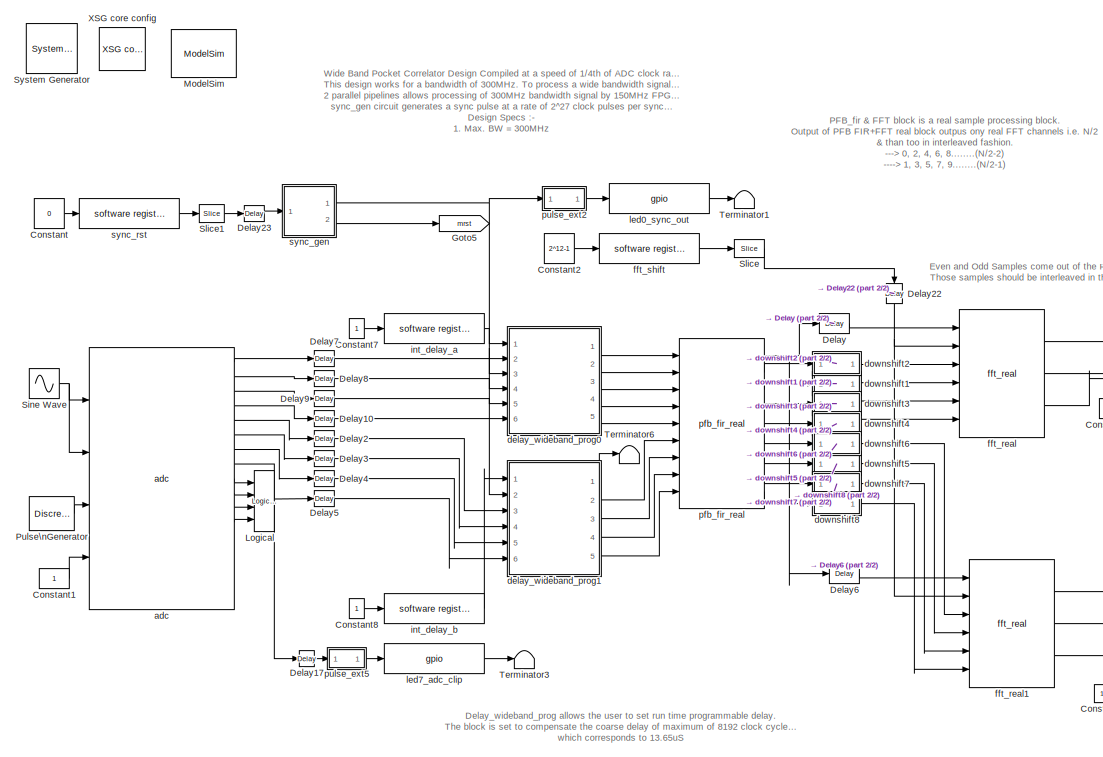
[diagram: root canvas - part 1/2, left side, full height]
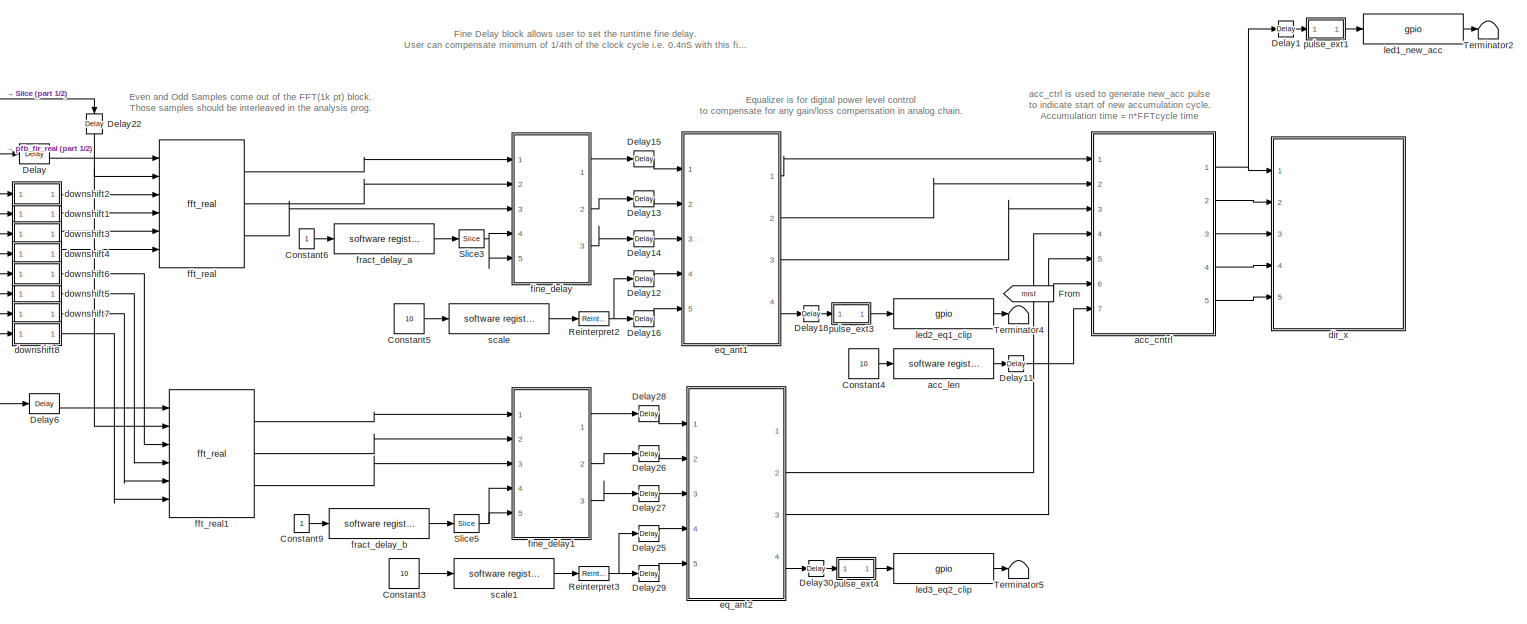
[diagram: root canvas - part 2/2, right side, full height]
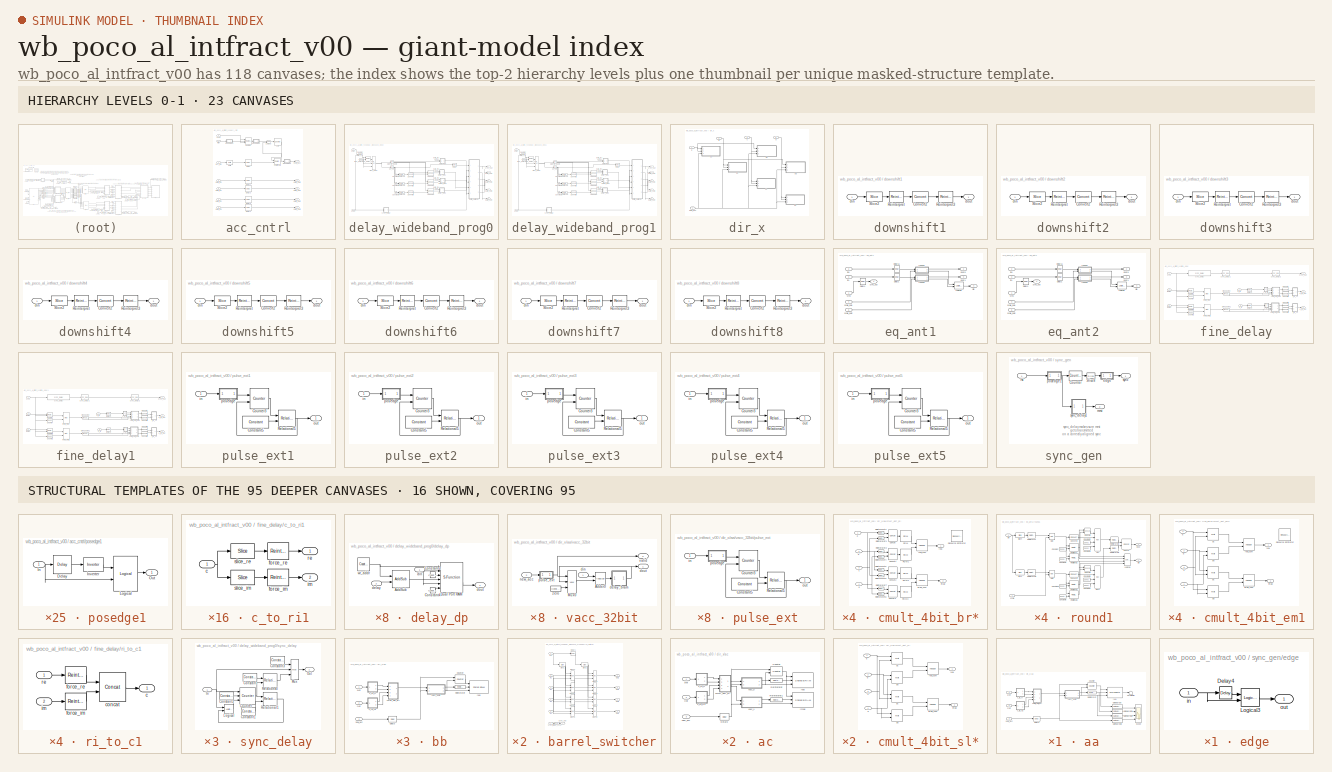
[diagram: thumbnail index - top-2 hierarchy levels (23 canvases) + 16 structural-template representatives of the remaining 95 canvases]
MODEL wb_poco_al_intfract_v00
KIND model
BLOCK [Reference]  System Generator  REF=xbsIndex_r3/ System Generator
  AttributesFormatString = System\\nGenerator
  Ports = []
  ShowPortLabels = on
  SourceBlock = xbsIndex_r3/ System Generator
  SourceType = Xilinx System Generator
  Tag = genX
  UserData = DataTag0
  UserDataPersistent = on
  core_generation = According to Block Masks
  dbl_ovrd = According to Block Masks
  deprecated_control = off
  directory = ./wb_poco_al_intfract_v00/sysgen
  eval_field = 0
  incr_netlist = off
  package = ff1152
  part = xc2vp50
  run_coregen = off
  simulink_period = 1
  speed = -7
  synthesis_tool = XST
  sysclk_period = 6.6225
  testbench = off
  trim_vbits = Everywhere in SubSystem
  xilinxfamily = Virtex2P
BLOCK [Constant] Constant
  Value = 0
BLOCK [Constant] Constant1
BLOCK [Constant] Constant2
  Value = 2^12-1
BLOCK [Constant] Constant3
  Value = 10
BLOCK [Constant] Constant4
  Value = 10
BLOCK [Constant] Constant5
  Value = 10
BLOCK [Constant] Constant6
BLOCK [Constant] Constant7
BLOCK [Constant] Constant8
BLOCK [Constant] Constant9
BLOCK [Reference] Delay  REF=xbsIndex_r3/Delay
  Ports = [1, 1]
  SourceBlock = xbsIndex_r3/Delay
  SourceType = Xilinx Delay Block
  accept_only_valid = off
  dbl_ovrd = off
  en = off
  explicit_period = off
  init_zero = on
  latency = 2
  period = 1
  reg_retiming = off
  show_param = off
  xl_area = [0, 0, 0, 0, 0, 0, 0]
  xl_use_area = off
BLOCK [Reference] Delay1  REF=xbsIndex_r3/Delay
  Ports = [1, 1]
  SourceBlock = xbsIndex_r3/Delay
  SourceType = Xilinx Delay Block
  accept_only_valid = off
  dbl_ovrd = off
  en = off
  explicit_period = off
  init_zero = on
  latency = 3
  period = 1
  reg_retiming = on
  show_param = off
  xl_area = [0, 0, 0, 0, 0, 0, 0]
  xl_use_area = off
BLOCK [Reference] Delay10  REF=xbsIndex_r3/Delay
  Ports = [1, 1]
  SourceBlock = xbsIndex_r3/Delay
  SourceType = Xilinx Delay Block
  accept_only_valid = off
  dbl_ovrd = off
  en = off
  explicit_period = off
  init_zero = on
  latency = 2
  period = 1
  reg_retiming = on
  show_param = off
  xl_area = [0, 0, 0, 0, 0, 0, 0]
  xl_use_area = off
BLOCK [Reference] Delay11  REF=xbsIndex_r3/Delay
  Ports = [1, 1]
  SourceBlock = xbsIndex_r3/Delay
  SourceType = Xilinx Delay Block
  accept_only_valid = off
  dbl_ovrd = off
  en = off
  explicit_period = off
  init_zero = on
  latency = 3
  period = 1
  reg_retiming = on
  show_param = off
  xl_area = [0, 0, 0, 0, 0, 0, 0]
  xl_use_area = off
BLOCK [Reference] Delay12  REF=xbsIndex_r3/Delay
  Ports = [1, 1]
  SourceBlock = xbsIndex_r3/Delay
  SourceType = Xilinx Delay Block
  accept_only_valid = off
  dbl_ovrd = off
  en = off
  explicit_period = off
  init_zero = on
  latency = 3
  period = 1
  reg_retiming = on
  show_param = off
  xl_area = [0, 0, 0, 0, 0, 0, 0]
  xl_use_area = off
BLOCK [Reference] Delay13  REF=xbsIndex_r3/Delay
  Ports = [1, 1]
  SourceBlock = xbsIndex_r3/Delay
  SourceType = Xilinx Delay Block
  accept_only_valid = off
  dbl_ovrd = off
  en = off
  explicit_period = off
  init_zero = on
  latency = 3
  period = 1
  reg_retiming = on
  show_param = off
  xl_area = [0, 0, 0, 0, 0, 0, 0]
  xl_use_area = off
BLOCK [Reference] Delay14  REF=xbsIndex_r3/Delay
  Ports = [1, 1]
  SourceBlock = xbsIndex_r3/Delay
  SourceType = Xilinx Delay Block
  accept_only_valid = off
  dbl_ovrd = off
  en = off
  explicit_period = off
  init_zero = on
  latency = 3
  period = 1
  reg_retiming = on
  show_param = off
  xl_area = [0, 0, 0, 0, 0, 0, 0]
  xl_use_area = off
BLOCK [Reference] Delay15  REF=xbsIndex_r3/Delay
  Ports = [1, 1]
  SourceBlock = xbsIndex_r3/Delay
  SourceType = Xilinx Delay Block
  accept_only_valid = off
  dbl_ovrd = off
  en = off
  explicit_period = off
  init_zero = on
  latency = 3
  period = 1
  reg_retiming = on
  show_param = off
  xl_area = [0, 0, 0, 0, 0, 0, 0]
  xl_use_area = off
BLOCK [Reference] Delay16  REF=xbsIndex_r3/Delay
  Ports = [1, 1]
  SourceBlock = xbsIndex_r3/Delay
  SourceType = Xilinx Delay Block
  accept_only_valid = off
  dbl_ovrd = off
  en = off
  explicit_period = off
  init_zero = on
  latency = 3
  period = 1
  reg_retiming = on
  show_param = off
  xl_area = [0, 0, 0, 0, 0, 0, 0]
  xl_use_area = off
BLOCK [Reference] Delay17  REF=xbsIndex_r3/Delay
  Ports = [1, 1]
  SourceBlock = xbsIndex_r3/Delay
  SourceType = Xilinx Delay Block
  accept_only_valid = off
  dbl_ovrd = off
  en = off
  explicit_period = off
  init_zero = on
  latency = 3
  period = 1
  reg_retiming = on
  show_param = off
  xl_area = [0, 0, 0, 0, 0, 0, 0]
  xl_use_area = off
BLOCK [Reference] Delay18  REF=xbsIndex_r3/Delay
  Ports = [1, 1]
  SourceBlock = xbsIndex_r3/Delay
  SourceType = Xilinx Delay Block
  accept_only_valid = off
  dbl_ovrd = off
  en = off
  explicit_period = off
  init_zero = on
  latency = 3
  period = 1
  reg_retiming = on
  show_param = off
  xl_area = [0, 0, 0, 0, 0, 0, 0]
  xl_use_area = off
BLOCK [Reference] Delay2  REF=xbsIndex_r3/Delay
  Ports = [1, 1]
  SourceBlock = xbsIndex_r3/Delay
  SourceType = Xilinx Delay Block
  accept_only_valid = off
  dbl_ovrd = off
  en = off
  explicit_period = off
  init_zero = on
  latency = 2
  period = 1
  reg_retiming = on
  show_param = off
  xl_area = [0, 0, 0, 0, 0, 0, 0]
  xl_use_area = off
BLOCK [Reference] Delay22  REF=xbsIndex_r3/Delay
  Ports = [1, 1]
  SourceBlock = xbsIndex_r3/Delay
  SourceType = Xilinx Delay Block
  accept_only_valid = off
  dbl_ovrd = off
  en = off
  explicit_period = off
  init_zero = on
  latency = 5
  period = 1
  reg_retiming = on
  show_param = off
  xl_area = [0, 0, 0, 0, 0, 0, 0]
  xl_use_area = off
BLOCK [Reference] Delay23  REF=xbsIndex_r3/Delay
  Ports = [1, 1]
  SourceBlock = xbsIndex_r3/Delay
  SourceType = Xilinx Delay Block
  accept_only_valid = off
  dbl_ovrd = off
  en = off
  explicit_period = off
  init_zero = on
  latency = 3
  period = 1
  reg_retiming = on
  show_param = off
  xl_area = [0, 0, 0, 0, 0, 0, 0]
  xl_use_area = off
BLOCK [Reference] Delay25  REF=xbsIndex_r3/Delay
  Ports = [1, 1]
  SourceBlock = xbsIndex_r3/Delay
  SourceType = Xilinx Delay Block
  accept_only_valid = off
  dbl_ovrd = off
  en = off
  explicit_period = off
  init_zero = on
  latency = 3
  period = 1
  reg_retiming = on
  show_param = off
  xl_area = [0, 0, 0, 0, 0, 0, 0]
  xl_use_area = off
BLOCK [Reference] Delay26  REF=xbsIndex_r3/Delay
  Ports = [1, 1]
  SourceBlock = xbsIndex_r3/Delay
  SourceType = Xilinx Delay Block
  accept_only_valid = off
  dbl_ovrd = off
  en = off
  explicit_period = off
  init_zero = on
  latency = 3
  period = 1
  reg_retiming = on
  show_param = off
  xl_area = [0, 0, 0, 0, 0, 0, 0]
  xl_use_area = off
BLOCK [Reference] Delay27  REF=xbsIndex_r3/Delay
  Ports = [1, 1]
  SourceBlock = xbsIndex_r3/Delay
  SourceType = Xilinx Delay Block
  accept_only_valid = off
  dbl_ovrd = off
  en = off
  explicit_period = off
  init_zero = on
  latency = 3
  period = 1
  reg_retiming = on
  show_param = off
  xl_area = [0, 0, 0, 0, 0, 0, 0]
  xl_use_area = off
BLOCK [Reference] Delay28  REF=xbsIndex_r3/Delay
  Ports = [1, 1]
  SourceBlock = xbsIndex_r3/Delay
  SourceType = Xilinx Delay Block
  accept_only_valid = off
  dbl_ovrd = off
  en = off
  explicit_period = off
  init_zero = on
  latency = 3
  period = 1
  reg_retiming = on
  show_param = off
  xl_area = [0, 0, 0, 0, 0, 0, 0]
  xl_use_area = off
BLOCK [Reference] Delay29  REF=xbsIndex_r3/Delay
  Ports = [1, 1]
  SourceBlock = xbsIndex_r3/Delay
  SourceType = Xilinx Delay Block
  accept_only_valid = off
  dbl_ovrd = off
  en = off
  explicit_period = off
  init_zero = on
  latency = 3
  period = 1
  reg_retiming = on
  show_param = off
  xl_area = [0, 0, 0, 0, 0, 0, 0]
  xl_use_area = off
BLOCK [Reference] Delay3  REF=xbsIndex_r3/Delay
  Ports = [1, 1]
  SourceBlock = xbsIndex_r3/Delay
  SourceType = Xilinx Delay Block
  accept_only_valid = off
  dbl_ovrd = off
  en = off
  explicit_period = off
  init_zero = on
  latency = 2
  period = 1
  reg_retiming = on
  show_param = off
  xl_area = [0, 0, 0, 0, 0, 0, 0]
  xl_use_area = off
BLOCK [Reference] Delay30  REF=xbsIndex_r3/Delay
  Ports = [1, 1]
  SourceBlock = xbsIndex_r3/Delay
  SourceType = Xilinx Delay Block
  accept_only_valid = off
  dbl_ovrd = off
  en = off
  explicit_period = off
  init_zero = on
  latency = 3
  period = 1
  reg_retiming = on
  show_param = off
  xl_area = [0, 0, 0, 0, 0, 0, 0]
  xl_use_area = off
BLOCK [Reference] Delay4  REF=xbsIndex_r3/Delay
  Ports = [1, 1]
  SourceBlock = xbsIndex_r3/Delay
  SourceType = Xilinx Delay Block
  accept_only_valid = off
  dbl_ovrd = off
  en = off
  explicit_period = off
  init_zero = on
  latency = 2
  period = 1
  reg_retiming = on
  show_param = off
  xl_area = [0, 0, 0, 0, 0, 0, 0]
  xl_use_area = off
BLOCK [Reference] Delay5  REF=xbsIndex_r3/Delay
  Ports = [1, 1]
  SourceBlock = xbsIndex_r3/Delay
  SourceType = Xilinx Delay Block
  accept_only_valid = off
  dbl_ovrd = off
  en = off
  explicit_period = off
  init_zero = on
  latency = 2
  period = 1
  reg_retiming = on
  show_param = off
  xl_area = [0, 0, 0, 0, 0, 0, 0]
  xl_use_area = off
BLOCK [Reference] Delay6  REF=xbsIndex_r3/Delay
  Ports = [1, 1]
  SourceBlock = xbsIndex_r3/Delay
  SourceType = Xilinx Delay Block
  accept_only_valid = off
  dbl_ovrd = off
  en = off
  explicit_period = off
  init_zero = on
  latency = 2
  period = 1
  reg_retiming = off
  show_param = off
  xl_area = [0, 0, 0, 0, 0, 0, 0]
  xl_use_area = off
BLOCK [Reference] Delay7  REF=xbsIndex_r3/Delay
  Ports = [1, 1]
  SourceBlock = xbsIndex_r3/Delay
  SourceType = Xilinx Delay Block
  accept_only_valid = off
  dbl_ovrd = off
  en = off
  explicit_period = off
  init_zero = on
  latency = 2
  period = 1
  reg_retiming = on
  show_param = off
  xl_area = [0, 0, 0, 0, 0, 0, 0]
  xl_use_area = off
BLOCK [Reference] Delay8  REF=xbsIndex_r3/Delay
  Ports = [1, 1]
  SourceBlock = xbsIndex_r3/Delay
  SourceType = Xilinx Delay Block
  accept_only_valid = off
  dbl_ovrd = off
  en = off
  explicit_period = off
  init_zero = on
  latency = 2
  period = 1
  reg_retiming = on
  show_param = off
  xl_area = [0, 0, 0, 0, 0, 0, 0]
  xl_use_area = off
BLOCK [Reference] Delay9  REF=xbsIndex_r3/Delay
  Ports = [1, 1]
  SourceBlock = xbsIndex_r3/Delay
  SourceType = Xilinx Delay Block
  accept_only_valid = off
  dbl_ovrd = off
  en = off
  explicit_period = off
  init_zero = on
  latency = 2
  period = 1
  reg_retiming = on
  show_param = off
  xl_area = [0, 0, 0, 0, 0, 0, 0]
  xl_use_area = off
BLOCK [From] From
  CloseFcn = tagdialog Close
  GotoTag = mrst
BLOCK [Goto] Goto5
  GotoTag = mrst
  TagVisibility = local
BLOCK [Reference] Logical  REF=xbsIndex_r3/Logical
  Ports = [4, 1]
  SourceBlock = xbsIndex_r3/Logical
  SourceType = Xilinx Logical Block
  align_bp = on
  arith_type = Unsigned
  bin_pt = 2
  dbl_ovrd = off
  en = off
  explicit_period = off
  inputs = 4
  latency = 0
  logical_function = OR
  n_bits = 8
  period = 1
  precision = Full
  show_param = off
  xl_area = [0, 0, 0, 0, 0, 0, 0]
  xl_use_area = off
BLOCK [Reference] ModelSim  REF=xbsIndex_r3/ModelSim
  Ports = []
  SourceBlock = xbsIndex_r3/ModelSim
  SourceType = ModelSim HDL Co-Simulation Interface
  custom_scripts = off
  dir = ./modelsim
  leave_open = on
  skip_compile = off
  startup_timeout = 40
  waveform = on
BLOCK [DiscretePulseGenerator] Pulse\nGenerator
  Period = 2^27
  Ports = [0, 1]
BLOCK [Reference] Reinterpret2  REF=xbsIndex_r3/Reinterpret
  Ports = [1, 1]
  SourceBlock = xbsIndex_r3/Reinterpret
  SourceType = Xilinx Type Reinterpreting Block
  arith_type = Unsigned
  bin_pt = 3
  force_arith_type = on
  force_bin_pt = on
  force_valid = on
BLOCK [Reference] Reinterpret3  REF=xbsIndex_r3/Reinterpret
  Ports = [1, 1]
  SourceBlock = xbsIndex_r3/Reinterpret
  SourceType = Xilinx Type Reinterpreting Block
  arith_type = Unsigned
  bin_pt = 3
  force_arith_type = on
  force_bin_pt = on
  force_valid = on
BLOCK [Sin] Sine Wave
  Frequency = 1/4
  Ports = [0, 1]
  SampleTime = 0.25
  Samples = 16
  SineType = Sample based
BLOCK [Reference] Slice  REF=xbsIndex_r3/Slice
  Ports = [1, 1]
  SourceBlock = xbsIndex_r3/Slice
  SourceType = Xilinx Slice Block
  base0 = LSB of Input
  base1 = MSB of Input
  bit0 = 0
  bit1 = 0
  boolean_output = off
  dbl_ovrd = off
  explicit_period = off
  mode = Upper Bit Location + Width
  nbits = 12
  period = 1
BLOCK [Reference] Slice1  REF=xbsIndex_r3/Slice
  Ports = [1, 1]
  SourceBlock = xbsIndex_r3/Slice
  SourceType = Xilinx Slice Block
  base0 = LSB of Input
  base1 = MSB of Input
  bit0 = 0
  bit1 = 0
  boolean_output = on
  dbl_ovrd = off
  explicit_period = off
  mode = Lower Bit Location + Width
  nbits = 1
  period = 1
BLOCK [Reference] Slice3  REF=xbsIndex_r3/Slice
  Ports = [1, 1]
  SourceBlock = xbsIndex_r3/Slice
  SourceType = Xilinx Slice Block
  base0 = LSB of Input
  base1 = MSB of Input
  bit0 = 0
  bit1 = 0
  boolean_output = off
  dbl_ovrd = off
  explicit_period = off
  mode = Lower Bit Location + Width
  nbits = 8
  period = 1
BLOCK [Reference] Slice5  REF=xbsIndex_r3/Slice
  Ports = [1, 1]
  SourceBlock = xbsIndex_r3/Slice
  SourceType = Xilinx Slice Block
  base0 = LSB of Input
  base1 = MSB of Input
  bit0 = 0
  bit1 = 0
  boolean_output = off
  dbl_ovrd = off
  explicit_period = off
  mode = Lower Bit Location + Width
  nbits = 8
  period = 1
BLOCK [Terminator] Terminator1
BLOCK [Terminator] Terminator2
BLOCK [Terminator] Terminator3
BLOCK [Terminator] Terminator4
BLOCK [Terminator] Terminator5
BLOCK [Terminator] Terminator6
BLOCK [Reference] XSG core config  REF=xps_library/XSG core config  (lib defined in mdl_00b5cec29cd0, mdl_02ab6ecaa3d1, +5 more)
  Ports = []
  ShowPortLabels = on
  SourceBlock = xps_library/XSG core config
  SourceType = xsg core config
  Tag = xps:xsg
  clk_rate = 151
  clk_src = adc1_clk
  gpio_clk_bit_index = 0
  gpio_clk_io_group = iBOB:sma
  hw_sys = iBOB
  ibob_linux = off
  mpc_type = powerpc405
  sample_period = 1
  synthesis_tool = XST
BLOCK [SubSystem] acc_cntrl
  MaskEnableString = on
  MaskIconFrame = on
  MaskIconOpaque = on
  MaskIconRotate = none
  MaskIconUnits = autoscale
  MaskPromptString = Number of Channels (2^?)
  MaskStyleString = edit
  MaskToolTipString = on
  MaskTunableValueString = on
  MaskValueString = 8
  MaskVariables = chan_bits=@1;
  MaskVisibilityString = on
  MinAlgLoopOccurrences = off
  Ports = [7, 5]
  RTWSystemCode = Auto
  TreatAsAtomicUnit = off
BLOCK [Reference] acc_cntrl/Delay  REF=xbsIndex_r3/Delay
  Ports = [1, 1]
  SourceBlock = xbsIndex_r3/Delay
  SourceType = Xilinx Delay Block
  accept_only_valid = off
  dbl_ovrd = off
  en = off
  explicit_period = off
  init_zero = on
  latency = 1
  period = 1
  reg_retiming = on
  show_param = off
  xl_area = [0, 0, 0, 0, 0, 0, 0]
  xl_use_area = off
BLOCK [Reference] acc_cntrl/Delay1  REF=xbsIndex_r3/Delay
  Ports = [1, 1]
  SourceBlock = xbsIndex_r3/Delay
  SourceType = Xilinx Delay Block
  accept_only_valid = off
  dbl_ovrd = off
  en = off
  explicit_period = off
  init_zero = on
  latency = 1
  period = 1
  reg_retiming = on
  show_param = off
  xl_area = [0, 0, 0, 0, 0, 0, 0]
  xl_use_area = off
BLOCK [Reference] acc_cntrl/Delay2  REF=xbsIndex_r3/Delay
  Ports = [1, 1]
  SourceBlock = xbsIndex_r3/Delay
  SourceType = Xilinx Delay Block
  accept_only_valid = off
  dbl_ovrd = off
  en = off
  explicit_period = off
  init_zero = on
  latency = 1
  period = 1
  reg_retiming = on
  show_param = off
  xl_area = [0, 0, 0, 0, 0, 0, 0]
  xl_use_area = off
BLOCK [Reference] acc_cntrl/Delay3  REF=xbsIndex_r3/Delay
  Ports = [1, 1]
  SourceBlock = xbsIndex_r3/Delay
  SourceType = Xilinx Delay Block
  accept_only_valid = off
  dbl_ovrd = off
  en = off
  explicit_period = off
  init_zero = on
  latency = 1
  period = 1
  reg_retiming = on
  show_param = off
  xl_area = [0, 0, 0, 0, 0, 0, 0]
  xl_use_area = off
BLOCK [Reference] acc_cntrl/Delay4  REF=xbsIndex_r3/Delay
  Ports = [1, 1]
  SourceBlock = xbsIndex_r3/Delay
  SourceType = Xilinx Delay Block
  accept_only_valid = off
  dbl_ovrd = off
  en = off
  explicit_period = off
  init_zero = on
  latency = 1
  period = 1
  reg_retiming = on
  show_param = off
  xl_area = [0, 0, 0, 0, 0, 0, 0]
  xl_use_area = off
BLOCK [Reference] acc_cntrl/Logical  REF=xbsIndex_r3/Logical
  Ports = [2, 1]
  SourceBlock = xbsIndex_r3/Logical
  SourceType = Xilinx Logical Block
  align_bp = on
  arith_type = Unsigned
  bin_pt = 2
  dbl_ovrd = off
  en = off
  explicit_period = off
  inputs = 2
  latency = 0
  logical_function = OR
  n_bits = 8
  period = 1
  precision = Full
  show_param = off
  xl_area = [0, 0, 0, 0, 0, 0, 0]
  xl_use_area = off
BLOCK [Reference] acc_cntrl/Register  REF=xbsIndex_r3/Register
  Ports = [3, 1]
  SourceBlock = xbsIndex_r3/Register
  SourceType = Xilinx Register Block
  dbl_ovrd = off
  en = on
  explicit_period = off
  init = 0
  out_en = off
  period = 1
  reg_only_valid = off
  rst = on
  show_param = off
  xl_area = [0, 0, 0, 0, 0, 0, 0]
  xl_use_area = off
BLOCK [Reference] acc_cntrl/Relational5  REF=xbsIndex_r3/Relational
  Ports = [2, 1]
  SourceBlock = xbsIndex_r3/Relational
  SourceType = Xilinx Relational Block
  dbl_ovrd = off
  en = off
  explicit_period = on
  latency = 0
  mode = a>=b
  period = 1
  show_param = off
  xl_area = [0, 0, 0, 0, 0, 0, 0]
  xl_use_area = off
BLOCK [Reference] acc_cntrl/Shift  REF=xbsIndex_r3/Shift
  Ports = [1, 1]
  SourceBlock = xbsIndex_r3/Shift
  SourceType = Xilinx Shift Block
  arith_type = Signed  (2's comp)
  bin_pt = 2
  dbl_ovrd = off
  en = off
  explicit_period = off
  latency = 0
  n_bits = 8
  overflow = Wrap
  period = 1
  precision = Full
  quantization = Truncate
  shift_bits = chan_bits
  shift_dir = Left
  show_param = off
  xl_area = [0, 0, 0, 0, 0, 0, 0]
  xl_use_area = off
BLOCK [Inport] acc_cntrl/acc_len
  IconDisplay = Port number
  LatchInput = off
  Port = 7
BLOCK [Reference] acc_cntrl/cntr  REF=xbsIndex_r3/Counter
  Ports = [1, 1]
  SourceBlock = xbsIndex_r3/Counter
  SourceType = Xilinx Counter Block
  arith_type = Unsigned
  bin_pt = 0
  cnt_by_val = 1
  cnt_to = Inf
  cnt_type = Free Running
  dbl_ovrd = off
  en = off
  explicit_period = on
  gen_core = off
  load_pin = off
  n_bits = 32
  operation = Up
  period = 1
  rst = on
  show_param = off
  start_count = 1
  use_rpm = on
  xl_area = [0, 0, 0, 0, 0, 0, 0]
  xl_use_area = off
BLOCK [Inport] acc_cntrl/data_in0
  IconDisplay = Port number
  LatchInput = off
  Port = 2
BLOCK [Inport] acc_cntrl/data_in1
  IconDisplay = Port number
  LatchInput = off
  Port = 3
BLOCK [Inport] acc_cntrl/data_in2
  IconDisplay = Port number
  LatchInput = off
  Port = 4
BLOCK [Inport] acc_cntrl/data_in3
  IconDisplay = Port number
  LatchInput = off
  Port = 5
BLOCK [Outport] acc_cntrl/data_out0
  BusOutputAsStruct = off
  IconDisplay = Port number
  Port = 2
BLOCK [Outport] acc_cntrl/data_out1
  BusOutputAsStruct = off
  IconDisplay = Port number
  Port = 3
BLOCK [Outport] acc_cntrl/data_out2
  BusOutputAsStruct = off
  IconDisplay = Port number
  Port = 4
BLOCK [Outport] acc_cntrl/data_out3
  BusOutputAsStruct = off
  IconDisplay = Port number
  Port = 5
BLOCK [Inport] acc_cntrl/mrst
  IconDisplay = Port number
  LatchInput = off
  Port = 6
BLOCK [Outport] acc_cntrl/new_acc
  BusOutputAsStruct = off
  IconDisplay = Port number
BLOCK [SubSystem] acc_cntrl/posedge1
  MinAlgLoopOccurrences = off
  Ports = [1, 1]
  RTWSystemCode = Auto
  Tag = Rising Edge Detector
  TreatAsAtomicUnit = off
BLOCK [Reference] acc_cntrl/posedge1/Delay  REF=xbsIndex_r3/Delay
  Ports = [1, 1]
  SourceBlock = xbsIndex_r3/Delay
  SourceType = Xilinx Delay Block
  accept_only_valid = off
  dbl_ovrd = off
  en = off
  explicit_period = off
  init_zero = on
  latency = 1
  period = 1
  reg_retiming = off
  show_param = off
  xl_area = [0, 0, 0, 0, 0, 0, 0]
  xl_use_area = off
BLOCK [Inport] acc_cntrl/posedge1/In
  IconDisplay = Port number
  LatchInput = off
  Port = 1
BLOCK [Reference] acc_cntrl/posedge1/Inverter  REF=xbsIndex_r3/Inverter
  Ports = [1, 1]
  SourceBlock = xbsIndex_r3/Inverter
  SourceType = Xilinx Inverter
  dbl_ovrd = off
  en = off
  explicit_period = off
  latency = 0
  period = 1
  show_param = off
  xl_area = [0, 0, 0, 0, 0, 0, 0]
  xl_use_area = off
BLOCK [Reference] acc_cntrl/posedge1/Logical  REF=xbsIndex_r3/Logical
  Ports = [2, 1]
  SourceBlock = xbsIndex_r3/Logical
  SourceType = Xilinx Logical Block
  align_bp = on
  arith_type = Unsigned
  bin_pt = 2
  dbl_ovrd = off
  en = off
  explicit_period = off
  inputs = 2
  latency = 0
  logical_function = AND
  n_bits = 8
  period = 1
  precision = Full
  show_param = off
  xl_area = [0, 0, 0, 0, 0, 0, 0]
  xl_use_area = off
BLOCK [Outport] acc_cntrl/posedge1/Out
  BusOutputAsStruct = off
  IconDisplay = Port number
BLOCK [SubSystem] acc_cntrl/posedge2
  MinAlgLoopOccurrences = off
  Ports = [1, 1]
  RTWSystemCode = Auto
  Tag = Rising Edge Detector
  TreatAsAtomicUnit = off
BLOCK [Reference] acc_cntrl/posedge2/Delay  REF=xbsIndex_r3/Delay
  Ports = [1, 1]
  SourceBlock = xbsIndex_r3/Delay
  SourceType = Xilinx Delay Block
  accept_only_valid = off
  dbl_ovrd = off
  en = off
  explicit_period = off
  init_zero = on
  latency = 1
  period = 1
  reg_retiming = off
  show_param = off
  xl_area = [0, 0, 0, 0, 0, 0, 0]
  xl_use_area = off
BLOCK [Inport] acc_cntrl/posedge2/In
  IconDisplay = Port number
  LatchInput = off
  Port = 1
BLOCK [Reference] acc_cntrl/posedge2/Inverter  REF=xbsIndex_r3/Inverter
  Ports = [1, 1]
  SourceBlock = xbsIndex_r3/Inverter
  SourceType = Xilinx Inverter
  dbl_ovrd = off
  en = off
  explicit_period = off
  latency = 0
  period = 1
  show_param = off
  xl_area = [0, 0, 0, 0, 0, 0, 0]
  xl_use_area = off
BLOCK [Reference] acc_cntrl/posedge2/Logical  REF=xbsIndex_r3/Logical
  Ports = [2, 1]
  SourceBlock = xbsIndex_r3/Logical
  SourceType = Xilinx Logical Block
  align_bp = on
  arith_type = Unsigned
  bin_pt = 2
  dbl_ovrd = off
  en = off
  explicit_period = off
  inputs = 2
  latency = 0
  logical_function = AND
  n_bits = 8
  period = 1
  precision = Full
  show_param = off
  xl_area = [0, 0, 0, 0, 0, 0, 0]
  xl_use_area = off
BLOCK [Outport] acc_cntrl/posedge2/Out
  BusOutputAsStruct = off
  IconDisplay = Port number
BLOCK [SubSystem] acc_cntrl/posedge3
  MinAlgLoopOccurrences = off
  Ports = [1, 1]
  RTWSystemCode = Auto
  Tag = Rising Edge Detector
  TreatAsAtomicUnit = off
BLOCK [Reference] acc_cntrl/posedge3/Delay  REF=xbsIndex_r3/Delay
  Ports = [1, 1]
  SourceBlock = xbsIndex_r3/Delay
  SourceType = Xilinx Delay Block
  accept_only_valid = off
  dbl_ovrd = off
  en = off
  explicit_period = off
  init_zero = on
  latency = 1
  period = 1
  reg_retiming = off
  show_param = off
  xl_area = [0, 0, 0, 0, 0, 0, 0]
  xl_use_area = off
BLOCK [Inport] acc_cntrl/posedge3/In
  IconDisplay = Port number
  LatchInput = off
  Port = 1
BLOCK [Reference] acc_cntrl/posedge3/Inverter  REF=xbsIndex_r3/Inverter
  Ports = [1, 1]
  SourceBlock = xbsIndex_r3/Inverter
  SourceType = Xilinx Inverter
  dbl_ovrd = off
  en = off
  explicit_period = off
  latency = 0
  period = 1
  show_param = off
  xl_area = [0, 0, 0, 0, 0, 0, 0]
  xl_use_area = off
BLOCK [Reference] acc_cntrl/posedge3/Logical  REF=xbsIndex_r3/Logical
  Ports = [2, 1]
  SourceBlock = xbsIndex_r3/Logical
  SourceType = Xilinx Logical Block
  align_bp = on
  arith_type = Unsigned
  bin_pt = 2
  dbl_ovrd = off
  en = off
  explicit_period = off
  inputs = 2
  latency = 0
  logical_function = AND
  n_bits = 8
  period = 1
  precision = Full
  show_param = off
  xl_area = [0, 0, 0, 0, 0, 0, 0]
  xl_use_area = off
BLOCK [Outport] acc_cntrl/posedge3/Out
  BusOutputAsStruct = off
  IconDisplay = Port number
BLOCK [Inport] acc_cntrl/sync
  IconDisplay = Port number
  LatchInput = off
  Port = 1
BLOCK [Reference] acc_len  REF=xps_library/software register  (lib defined in mdl_00b5cec29cd0, mdl_02ab6ecaa3d1, +5 more)
  Ports = [1, 1]
  ShowPortLabels = on
  SourceBlock = xps_library/software register
  Tag = xps:sw_reg
  arith_type = Unsigned
  bin_pt = 0
  bitwidth = 32
  gw_name = wb_poco_al_intfract_v00_acc_len_user_data_out
  io_dir = From Processor
  sample_period = 1
BLOCK [Reference] adc  REF=xps_library/adc  (lib defined in mdl_00b5cec29cd0, mdl_02ab6ecaa3d1, +5 more)
  Ports = [4, 17]
  ShowPortLabels = on
  SourceBlock = xps_library/adc
  SourceType = adc
  Tag = xps:adc
  adc_brd = iBOB:adc1
  adc_clk_rate = 601
  adc_interleave = off
  sample_period = 1
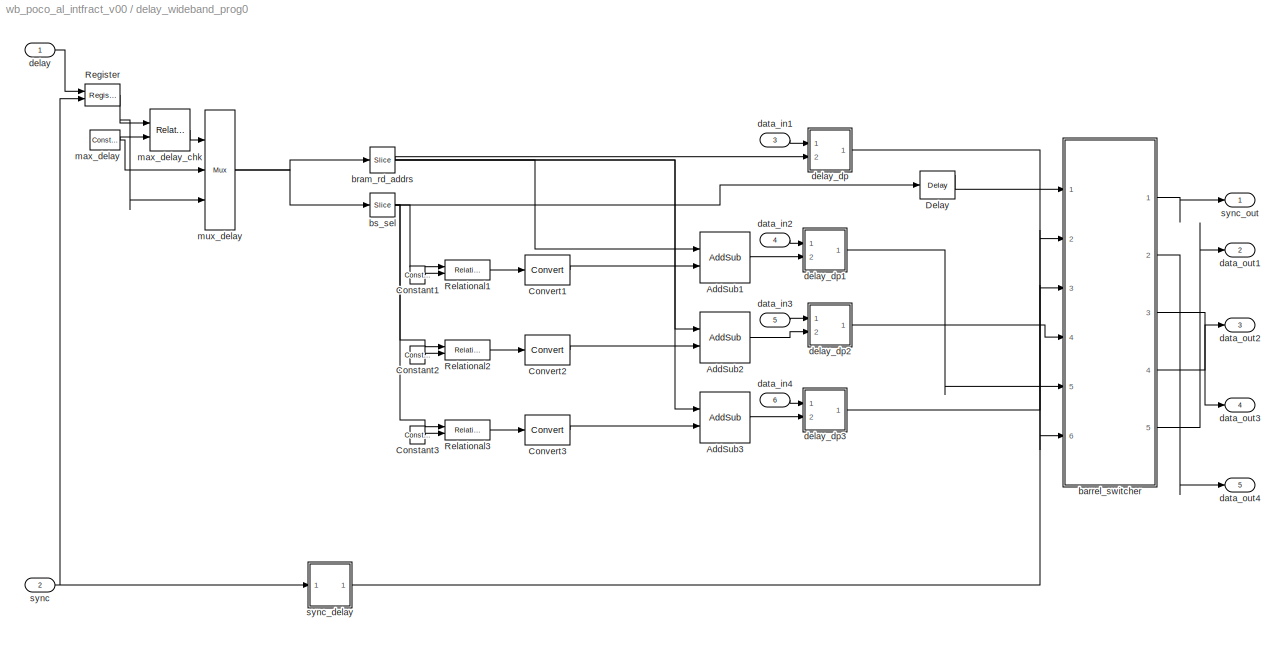
BLOCK [SubSystem] delay_wideband_prog0
  AttributesFormatString = Min Delay=28
  MinAlgLoopOccurrences = off
  Ports = [6, 5]
  RTWSystemCode = Auto
  TreatAsAtomicUnit = off
  UserData = DataTag1
  UserDataPersistent = on
BLOCK [Reference] delay_wideband_prog0/AddSub1  REF=xbsIndex_r3/AddSub
  Ports = [2, 1]
  SourceBlock = xbsIndex_r3/AddSub
  SourceType = Xilinx Adder/Subtractor
  arith_type = Unsigned
  bin_pt = 0
  dbl_ovrd = off
  en = off
  explicit_period = off
  gen_core = off
  latency = 0
  mode = Addition
  n_bits = 11
  overflow = Wrap
  period = 1
  pipeline = off
  precision = Full
  quantization = Truncate
  show_param = off
  use_carryin = off
  use_carryout = off
  use_core = on
  use_rpm = on
  xl_area = [0, 0, 0, 0, 0, 0, 0]
  xl_use_area = off
BLOCK [Reference] delay_wideband_prog0/AddSub2  REF=xbsIndex_r3/AddSub
  Ports = [2, 1]
  SourceBlock = xbsIndex_r3/AddSub
  SourceType = Xilinx Adder/Subtractor
  arith_type = Unsigned
  bin_pt = 0
  dbl_ovrd = off
  en = off
  explicit_period = off
  gen_core = off
  latency = 0
  mode = Addition
  n_bits = 11
  overflow = Wrap
  period = 1
  pipeline = off
  precision = Full
  quantization = Truncate
  show_param = off
  use_carryin = off
  use_carryout = off
  use_core = on
  use_rpm = on
  xl_area = [0, 0, 0, 0, 0, 0, 0]
  xl_use_area = off
BLOCK [Reference] delay_wideband_prog0/AddSub3  REF=xbsIndex_r3/AddSub
  Ports = [2, 1]
  SourceBlock = xbsIndex_r3/AddSub
  SourceType = Xilinx Adder/Subtractor
  arith_type = Unsigned
  bin_pt = 0
  dbl_ovrd = off
  en = off
  explicit_period = off
  gen_core = off
  latency = 0
  mode = Addition
  n_bits = 11
  overflow = Wrap
  period = 1
  pipeline = off
  precision = Full
  quantization = Truncate
  show_param = off
  use_carryin = off
  use_carryout = off
  use_core = on
  use_rpm = on
  xl_area = [0, 0, 0, 0, 0, 0, 0]
  xl_use_area = off
BLOCK [Reference] delay_wideband_prog0/Constant1  REF=xbsIndex_r3/Constant
  Ports = [0, 1]
  SourceBlock = xbsIndex_r3/Constant
  SourceType = Xilinx Constant Block
  arith_type = Unsigned
  bin_pt = 0
  carry = CIN
  const = 2
  dbl_ovrd = off
  equ = P=C
  explicit_period = on
  inp1 = P
  inp2 = PCIN>>17
  iostate = 0
  n_bits = 2
  opr = +
  opselect = C
  period = 1
BLOCK [Reference] delay_wideband_prog0/Constant2  REF=xbsIndex_r3/Constant
  Ports = [0, 1]
  SourceBlock = xbsIndex_r3/Constant
  SourceType = Xilinx Constant Block
  arith_type = Unsigned
  bin_pt = 0
  carry = CIN
  const = 1
  dbl_ovrd = off
  equ = P=C
  explicit_period = on
  inp1 = P
  inp2 = PCIN>>17
  iostate = 0
  n_bits = 2
  opr = +
  opselect = C
  period = 1
BLOCK [Reference] delay_wideband_prog0/Constant3  REF=xbsIndex_r3/Constant
  Ports = [0, 1]
  SourceBlock = xbsIndex_r3/Constant
  SourceType = Xilinx Constant Block
  arith_type = Unsigned
  bin_pt = 0
  carry = CIN
  const = 0
  dbl_ovrd = off
  equ = P=C
  explicit_period = on
  inp1 = P
  inp2 = PCIN>>17
  iostate = 0
  n_bits = 2
  opr = +
  opselect = C
  period = 1
BLOCK [Reference] delay_wideband_prog0/Convert1  REF=xbsIndex_r3/Convert
  Ports = [1, 1]
  SourceBlock = xbsIndex_r3/Convert
  SourceType = Xilinx Converter Block
  arith_type = Unsigned
  bin_pt = 0
  dbl_ovrd = off
  explicit_period = off
  inserted_by_tool = off
  latency = 0
  n_bits = 1
  overflow = Wrap
  period = 1
  pipeline = off
  quantization = Truncate
  show_param = off
  xl_area = [0, 0, 0, 0, 0, 0, 0]
  xl_use_area = off
BLOCK [Reference] delay_wideband_prog0/Convert2  REF=xbsIndex_r3/Convert
  Ports = [1, 1]
  SourceBlock = xbsIndex_r3/Convert
  SourceType = Xilinx Converter Block
  arith_type = Unsigned
  bin_pt = 0
  dbl_ovrd = off
  explicit_period = off
  inserted_by_tool = off
  latency = 0
  n_bits = 1
  overflow = Wrap
  period = 1
  pipeline = off
  quantization = Truncate
  show_param = off
  xl_area = [0, 0, 0, 0, 0, 0, 0]
  xl_use_area = off
BLOCK [Reference] delay_wideband_prog0/Convert3  REF=xbsIndex_r3/Convert
  Ports = [1, 1]
  SourceBlock = xbsIndex_r3/Convert
  SourceType = Xilinx Converter Block
  arith_type = Unsigned
  bin_pt = 0
  dbl_ovrd = off
  explicit_period = off
  inserted_by_tool = off
  latency = 0
  n_bits = 1
  overflow = Wrap
  period = 1
  pipeline = off
  quantization = Truncate
  show_param = off
  xl_area = [0, 0, 0, 0, 0, 0, 0]
  xl_use_area = off
BLOCK [Reference] delay_wideband_prog0/Delay  REF=xbsIndex_r3/Delay
  Ports = [1, 1]
  SourceBlock = xbsIndex_r3/Delay
  SourceType = Xilinx Delay Block
  accept_only_valid = off
  dbl_ovrd = off
  en = off
  explicit_period = off
  init_zero = on
  latency = 5
  period = 1
  reg_retiming = off
  show_param = off
  xl_area = [0, 0, 0, 0, 0, 0, 0]
  xl_use_area = off
BLOCK [Reference] delay_wideband_prog0/Register  REF=xbsIndex_r3/Register
  Ports = [2, 1]
  SourceBlock = xbsIndex_r3/Register
  SourceType = Xilinx Register Block
  dbl_ovrd = off
  en = on
  explicit_period = off
  init = 0
  out_en = off
  period = 1
  reg_only_valid = off
  rst = off
  show_param = off
  xl_area = [0, 0, 0, 0, 0, 0, 0]
  xl_use_area = off
BLOCK [Reference] delay_wideband_prog0/Relational1  REF=xbsIndex_r3/Relational
  Ports = [2, 1]
  SourceBlock = xbsIndex_r3/Relational
  SourceType = Xilinx Relational Block
  dbl_ovrd = off
  en = off
  explicit_period = off
  latency = 0
  mode = a>b
  period = 1
  show_param = off
  xl_area = [0, 0, 0, 0, 0, 0, 0]
  xl_use_area = off
BLOCK [Reference] delay_wideband_prog0/Relational2  REF=xbsIndex_r3/Relational
  Ports = [2, 1]
  SourceBlock = xbsIndex_r3/Relational
  SourceType = Xilinx Relational Block
  dbl_ovrd = off
  en = off
  explicit_period = off
  latency = 0
  mode = a>b
  period = 1
  show_param = off
  xl_area = [0, 0, 0, 0, 0, 0, 0]
  xl_use_area = off
BLOCK [Reference] delay_wideband_prog0/Relational3  REF=xbsIndex_r3/Relational
  Ports = [2, 1]
  SourceBlock = xbsIndex_r3/Relational
  SourceType = Xilinx Relational Block
  dbl_ovrd = off
  en = off
  explicit_period = off
  latency = 0
  mode = a>b
  period = 1
  show_param = off
  xl_area = [0, 0, 0, 0, 0, 0, 0]
  xl_use_area = off
BLOCK [SubSystem] delay_wideband_prog0/barrel_switcher
  AttributesFormatString = n_inputs=2
  MinAlgLoopOccurrences = off
  Ports = [6, 5]
  RTWSystemCode = Auto
  TreatAsAtomicUnit = off
  UserData = DataTag2
  UserDataPersistent = on
BLOCK [Reference] delay_wideband_prog0/barrel_switcher/Delay1  REF=xbsIndex_r3/Delay
  Ports = [1, 1]
  SourceBlock = xbsIndex_r3/Delay
  SourceType = Xilinx Delay Block
  accept_only_valid = off
  dbl_ovrd = off
  en = off
  explicit_period = off
  init_zero = on
  latency = 1
  period = 1
  reg_retiming = off
  show_param = off
  xl_area = [0, 0, 0, 0, 0, 0, 0]
  xl_use_area = off
BLOCK [Reference] delay_wideband_prog0/barrel_switcher/Delay_sync  REF=xbsIndex_r3/Delay
  Ports = [1, 1]
  SourceBlock = xbsIndex_r3/Delay
  SourceType = Xilinx Delay Block
  accept_only_valid = off
  dbl_ovrd = off
  en = off
  explicit_period = off
  init_zero = on
  latency = 2
  period = 1
  reg_retiming = off
  show_param = off
  xl_area = [0, 0, 0, 0, 0, 0, 0]
  xl_use_area = off
BLOCK [Inport] delay_wideband_prog0/barrel_switcher/In1
  IconDisplay = Port number
  LatchInput = off
  Port = 3
BLOCK [Inport] delay_wideband_prog0/barrel_switcher/In2
  IconDisplay = Port number
  LatchInput = off
  Port = 4
BLOCK [Inport] delay_wideband_prog0/barrel_switcher/In3
  IconDisplay = Port number
  LatchInput = off
  Port = 5
BLOCK [Inport] delay_wideband_prog0/barrel_switcher/In4
  IconDisplay = Port number
  LatchInput = off
  Port = 6
BLOCK [Reference] delay_wideband_prog0/barrel_switcher/Mux11  REF=xbsIndex_r3/Mux
  Ports = [3, 1]
  SourceBlock = xbsIndex_r3/Mux
  SourceType = Xilinx Multiplexer Block
  arith_type = Signed  (2's comp)
  bin_pt = 2
  dbl_ovrd = off
  en = off
  explicit_period = off
  gen_core = off
  inputs = 2
  latency = 1
  mux_type = off
  n_bits = 8
  overflow = Wrap
  period = 1
  precision = Full
  quantization = Truncate
  show_param = off
  use_rpm = off
  xl_area = [0, 0, 0, 0, 0, 0, 0]
  xl_use_area = off
BLOCK [Reference] delay_wideband_prog0/barrel_switcher/Mux12  REF=xbsIndex_r3/Mux
  Ports = [3, 1]
  SourceBlock = xbsIndex_r3/Mux
  SourceType = Xilinx Multiplexer Block
  arith_type = Signed  (2's comp)
  bin_pt = 2
  dbl_ovrd = off
  en = off
  explicit_period = off
  gen_core = off
  inputs = 2
  latency = 1
  mux_type = off
  n_bits = 8
  overflow = Wrap
  period = 1
  precision = Full
  quantization = Truncate
  show_param = off
  use_rpm = off
  xl_area = [0, 0, 0, 0, 0, 0, 0]
  xl_use_area = off
BLOCK [Reference] delay_wideband_prog0/barrel_switcher/Mux21  REF=xbsIndex_r3/Mux
  Ports = [3, 1]
  SourceBlock = xbsIndex_r3/Mux
  SourceType = Xilinx Multiplexer Block
  arith_type = Signed  (2's comp)
  bin_pt = 2
  dbl_ovrd = off
  en = off
  explicit_period = off
  gen_core = off
  inputs = 2
  latency = 1
  mux_type = off
  n_bits = 8
  overflow = Wrap
  period = 1
  precision = Full
  quantization = Truncate
  show_param = off
  use_rpm = off
  xl_area = [0, 0, 0, 0, 0, 0, 0]
  xl_use_area = off
BLOCK [Reference] delay_wideband_prog0/barrel_switcher/Mux22  REF=xbsIndex_r3/Mux
  Ports = [3, 1]
  SourceBlock = xbsIndex_r3/Mux
  SourceType = Xilinx Multiplexer Block
  arith_type = Signed  (2's comp)
  bin_pt = 2
  dbl_ovrd = off
  en = off
  explicit_period = off
  gen_core = off
  inputs = 2
  latency = 1
  mux_type = off
  n_bits = 8
  overflow = Wrap
  period = 1
  precision = Full
  quantization = Truncate
  show_param = off
  use_rpm = off
  xl_area = [0, 0, 0, 0, 0, 0, 0]
  xl_use_area = off
BLOCK [Reference] delay_wideband_prog0/barrel_switcher/Mux31  REF=xbsIndex_r3/Mux
  Ports = [3, 1]
  SourceBlock = xbsIndex_r3/Mux
  SourceType = Xilinx Multiplexer Block
  arith_type = Signed  (2's comp)
  bin_pt = 2
  dbl_ovrd = off
  en = off
  explicit_period = off
  gen_core = off
  inputs = 2
  latency = 1
  mux_type = off
  n_bits = 8
  overflow = Wrap
  period = 1
  precision = Full
  quantization = Truncate
  show_param = off
  use_rpm = off
  xl_area = [0, 0, 0, 0, 0, 0, 0]
  xl_use_area = off
BLOCK [Reference] delay_wideband_prog0/barrel_switcher/Mux32  REF=xbsIndex_r3/Mux
  Ports = [3, 1]
  SourceBlock = xbsIndex_r3/Mux
  SourceType = Xilinx Multiplexer Block
  arith_type = Signed  (2's comp)
  bin_pt = 2
  dbl_ovrd = off
  en = off
  explicit_period = off
  gen_core = off
  inputs = 2
  latency = 1
  mux_type = off
  n_bits = 8
  overflow = Wrap
  period = 1
  precision = Full
  quantization = Truncate
  show_param = off
  use_rpm = off
  xl_area = [0, 0, 0, 0, 0, 0, 0]
  xl_use_area = off
BLOCK [Reference] delay_wideband_prog0/barrel_switcher/Mux41  REF=xbsIndex_r3/Mux
  Ports = [3, 1]
  SourceBlock = xbsIndex_r3/Mux
  SourceType = Xilinx Multiplexer Block
  arith_type = Signed  (2's comp)
  bin_pt = 2
  dbl_ovrd = off
  en = off
  explicit_period = off
  gen_core = off
  inputs = 2
  latency = 1
  mux_type = off
  n_bits = 8
  overflow = Wrap
  period = 1
  precision = Full
  quantization = Truncate
  show_param = off
  use_rpm = off
  xl_area = [0, 0, 0, 0, 0, 0, 0]
  xl_use_area = off
BLOCK [Reference] delay_wideband_prog0/barrel_switcher/Mux42  REF=xbsIndex_r3/Mux
  Ports = [3, 1]
  SourceBlock = xbsIndex_r3/Mux
  SourceType = Xilinx Multiplexer Block
  arith_type = Signed  (2's comp)
  bin_pt = 2
  dbl_ovrd = off
  en = off
  explicit_period = off
  gen_core = off
  inputs = 2
  latency = 1
  mux_type = off
  n_bits = 8
  overflow = Wrap
  period = 1
  precision = Full
  quantization = Truncate
  show_param = off
  use_rpm = off
  xl_area = [0, 0, 0, 0, 0, 0, 0]
  xl_use_area = off
BLOCK [Outport] delay_wideband_prog0/barrel_switcher/Out1
  BusOutputAsStruct = off
  IconDisplay = Port number
  Port = 2
BLOCK [Outport] delay_wideband_prog0/barrel_switcher/Out2
  BusOutputAsStruct = off
  IconDisplay = Port number
  Port = 3
BLOCK [Outport] delay_wideband_prog0/barrel_switcher/Out3
  BusOutputAsStruct = off
  IconDisplay = Port number
  Port = 4
BLOCK [Outport] delay_wideband_prog0/barrel_switcher/Out4
  BusOutputAsStruct = off
  IconDisplay = Port number
  Port = 5
BLOCK [Reference] delay_wideband_prog0/barrel_switcher/Slice1  REF=xbsIndex_r3/Slice
  Ports = [1, 1]
  SourceBlock = xbsIndex_r3/Slice
  SourceType = Xilinx Slice Block
  base0 = LSB of Input
  base1 = MSB of Input
  bit0 = 0
  bit1 = -0
  boolean_output = off
  dbl_ovrd = off
  explicit_period = off
  mode = Upper Bit Location + Width
  nbits = 1
  period = 1
BLOCK [Reference] delay_wideband_prog0/barrel_switcher/Slice2  REF=xbsIndex_r3/Slice
  Ports = [1, 1]
  SourceBlock = xbsIndex_r3/Slice
  SourceType = Xilinx Slice Block
  base0 = LSB of Input
  base1 = MSB of Input
  bit0 = 0
  bit1 = -1
  boolean_output = off
  dbl_ovrd = off
  explicit_period = off
  mode = Upper Bit Location + Width
  nbits = 1
  period = 1
BLOCK [Inport] delay_wideband_prog0/barrel_switcher/sel
  IconDisplay = Port number
  LatchInput = off
  Port = 1
BLOCK [Inport] delay_wideband_prog0/barrel_switcher/sync_in
  IconDisplay = Port number
  LatchInput = off
  Port = 2
BLOCK [Outport] delay_wideband_prog0/barrel_switcher/sync_out
  BusOutputAsStruct = off
  IconDisplay = Port number
BLOCK [Reference] delay_wideband_prog0/bram_rd_addrs  REF=xbsIndex_r3/Slice
  Ports = [1, 1]
  SourceBlock = xbsIndex_r3/Slice
  SourceType = Xilinx Slice Block
  base0 = LSB of Input
  base1 = MSB of Input
  bit0 = 2
  bit1 = 0
  boolean_output = off
  dbl_ovrd = off
  explicit_period = off
  mode = Lower Bit Location + Width
  nbits = 11
  period = 1
BLOCK [Reference] delay_wideband_prog0/bs_sel  REF=xbsIndex_r3/Slice
  Ports = [1, 1]
  SourceBlock = xbsIndex_r3/Slice
  SourceType = Xilinx Slice Block
  base0 = LSB of Input
  base1 = MSB of Input
  bit0 = 0
  bit1 = 0
  boolean_output = off
  dbl_ovrd = off
  explicit_period = off
  mode = Lower Bit Location + Width
  nbits = 2
  period = 1
BLOCK [Inport] delay_wideband_prog0/data_in1
  IconDisplay = Port number
  LatchInput = off
  Port = 3
BLOCK [Inport] delay_wideband_prog0/data_in2
  IconDisplay = Port number
  LatchInput = off
  Port = 4
BLOCK [Inport] delay_wideband_prog0/data_in3
  IconDisplay = Port number
  LatchInput = off
  Port = 5
BLOCK [Inport] delay_wideband_prog0/data_in4
  IconDisplay = Port number
  LatchInput = off
  Port = 6
BLOCK [Outport] delay_wideband_prog0/data_out1
  BusOutputAsStruct = off
  IconDisplay = Port number
  Port = 2
BLOCK [Outport] delay_wideband_prog0/data_out2
  BusOutputAsStruct = off
  IconDisplay = Port number
  Port = 3
BLOCK [Outport] delay_wideband_prog0/data_out3
  BusOutputAsStruct = off
  IconDisplay = Port number
  Port = 4
BLOCK [Outport] delay_wideband_prog0/data_out4
  BusOutputAsStruct = off
  IconDisplay = Port number
  Port = 5
BLOCK [Inport] delay_wideband_prog0/delay
  IconDisplay = Port number
  LatchInput = off
  Port = 1
BLOCK [SubSystem] delay_wideband_prog0/delay_dp
  MaskCallbackString = |
  MaskEnableString = on,on
  MaskIconFrame = on
  MaskIconOpaque = on
  MaskIconRotate = none
  MaskIconUnits = autoscale
  MaskPromptString = Max Delay (2^?)|BRAM Latency
  MaskStyleString = edit,edit
  MaskTabNameString = ,
  MaskToolTipString = on,on
  MaskTunableValueString = on,on
  MaskValueString = 11|4
  MaskVarAliasString = ,
  MaskVariables = ram_bits=@1;bram_latency=@2;
  MaskVisibilityString = on,on
  MinAlgLoopOccurrences = off
  Ports = [2, 1]
  RTWSystemCode = Auto
  TreatAsAtomicUnit = off
BLOCK [Reference] delay_wideband_prog0/delay_dp/AddSub  REF=xbsIndex_r3/AddSub
  Ports = [2, 1]
  SourceBlock = xbsIndex_r3/AddSub
  SourceType = Xilinx Adder/Subtractor
  arith_type = Unsigned
  bin_pt = 0
  dbl_ovrd = off
  en = off
  explicit_period = off
  gen_core = off
  latency = 1
  mode = Subtraction
  n_bits = 11
  overflow = Wrap
  period = 1
  pipeline = off
  precision = User Defined
  quantization = Truncate
  show_param = off
  use_carryin = off
  use_carryout = off
  use_core = on
  use_rpm = on
  xl_area = [0, 0, 0, 0, 0, 0, 0]
  xl_use_area = off
BLOCK [Reference] delay_wideband_prog0/delay_dp/Constant2  REF=xbsIndex_r3/Constant
  Ports = [0, 1]
  SourceBlock = xbsIndex_r3/Constant
  SourceType = Xilinx Constant Block
  arith_type = Boolean
  bin_pt = 0
  carry = CIN
  const = 1
  dbl_ovrd = off
  equ = P=C
  explicit_period = on
  inp1 = P
  inp2 = PCIN>>17
  iostate = 0
  n_bits = 1
  opr = +
  opselect = C
  period = 1
BLOCK [Reference] delay_wideband_prog0/delay_dp/Constant4  REF=xbsIndex_r3/Constant
  Ports = [0, 1]
  SourceBlock = xbsIndex_r3/Constant
  SourceType = Xilinx Constant Block
  arith_type = Boolean
  bin_pt = 0
  carry = CIN
  const = 0
  dbl_ovrd = off
  equ = P=C
  explicit_period = on
  inp1 = P
  inp2 = PCIN>>17
  iostate = 0
  n_bits = 1
  opr = +
  opselect = C
  period = 1
BLOCK [S-Function] delay_wideband_prog0/delay_dp/Dual Port RAM
  AncestorBlock = xbsIndex_r3/Dual Port RAM
  FunctionName = xldpram
  MaskCallbackString = |||||||xldpramCallback|||xldpramCallback||xldpramCallback||xldpramCallback|xldpramCallback||||
  MaskDescription = Dual port random access memory (RAM). Independent address, data and write enable ports allow shared access to a single memory space. Dual ports enable simultaneous access to the memory space at different sample rates using multiple data widths.  <repeated x8 — deduplicated; at blocks: Dual Port RAM>
  MaskDisplay = patch([0 iWidth iWidth 0],[0 0 iHeight iHeight] ,bg);\npatch([0 iWidth iWidth 0],[iCy-2 iCy-2 iCy+2 iCy+2] , .9* bg);\npatch(logoX,logoY , fg);\nport_label('input',1,'addr_A');\nport_label('input',2,'data_A');\nport_label('input',3,'we_A');\nport_label('input',4,'addr_B');\nport_label('input',dataBPNum,dataBStr);\nport_label('input',weBPNum,weBStr);\nport_label('input',rstAPNum,rstAStr);\nport_lab...<+237ch>  <repeated x8 — deduplicated; at blocks: Dual Port RAM>
  MaskEnableString = on,on,on,on,on,on,on,on,on,on,on,on,on,on,on,on,on,on,on,on
  MaskHelp = eval('xlWeb(xlhtmldoclink(''Dual Port RAM''))');
  MaskIconFrame = off
  MaskIconOpaque = off
  MaskIconRotate = none
  MaskIconUnits = autoscale
  MaskInitialization = [designRoot, family, part, speed, package, simulinkPeriod, sysclkPeriod, dbl_ovrd, trimVbit] = xlSysgenSettings(gcb,1,1);\nif isempty(family)\n	family = 'Virtex2';\nend;\ndbl_ovrdStr = '';\n[bg,fg] = xlcmap('XBlock',dbl_ovrd);\niPos = get_param(gcb,'Position');\niWidth=iPos(3)-iPos(1); iHeight=iPos(4)-iPos(2);\niCx=iWidth/2;\niCy=iHeight/2;\n[logoX, logoY] = xlogo(iPos);\n[memX,memY] = memplot(iPo...<+1143ch>  <repeated x8 — deduplicated; at blocks: Dual Port RAM>
  MaskPromptString = Depth|Initial Value Vector|Write Mode:  Port A|Write Mode:  Port B|Latency|Provide Output Valid Port|Zero Initial Output  (otherwise NaN)|Use Explicit Sample Period|Sample Period  (use -1 to inherit first known input period)|Override with Doubles|Provide Reset Port for Port A Output Register|Initial Value for Port A Output Register|Provide Reset Port for Port B Output Register|Initial Value for Po...<+345ch>  <repeated x8 — deduplicated; at blocks: Dual Port RAM>
  MaskSelfModifiable = on
  MaskStyleString = edit,edit,popup(Read After Write|Read Before Write|No Read On Write),popup(Read After Write|Read Before Write|No Read On Write),edit,checkbox,checkbox,checkbox,edit,checkbox,checkbox,edit,checkbox,edit,checkbox,checkbox,checkbox,checkbox,edit,checkbox  <repeated x8 — deduplicated; at blocks: Dual Port RAM>
  MaskTabNameString = ,,,,,,,,,,,,,,,,,,,
  MaskToolTipString = on,on,on,on,on,on,on,on,on,on,on,on,on,on,on,on,on,on,on,on
  MaskTunableValueString = off,off,off,off,off,off,off,off,off,off,off,off,off,off,off,off,off,off,on,on
  MaskType = Xilinx Dual Port Random Access Memory
  MaskValueString = 2048|0|Read After Write|Read After Write|4|off|on|off|1|off|off|0|off|0|off|off|off|off|[0, 0, 0, 0, 0, 0, 0]|off
  MaskVarAliasString = ,,,,,,,,,,,,,,,,,,,
  MaskVariables = depth=@1;initVector=@2;write_mode_A=@3;write_mode_B=@4;latency=@5;mem_collision=@6;init_zero=@7;explicit_period=@8;period=@9;dbl_ovrd=@10;rst_a=@11;init_a=@12;rst_b=@13;init_b=@14;show_param=@15;distributed_mem=@16;use_rpm=@17;gen_core=@18;xl_area=@19;xl_use_area=@20;  <repeated x8 — deduplicated; at blocks: Dual Port RAM>
  MaskVisibilityString = on,on,on,on,on,on,off,on,off,on,on,off,on,off,on,off,off,off,off,off
  Parameters = sfcn_mwsv__
  Ports = [6, 2]
BLOCK [Inport] delay_wideband_prog0/delay_dp/delay
  IconDisplay = Port number
  LatchInput = off
  Port = 2
BLOCK [Inport] delay_wideband_prog0/delay_dp/din
  IconDisplay = Port number
  LatchInput = off
  Port = 1
BLOCK [Outport] delay_wideband_prog0/delay_dp/dout
  BusOutputAsStruct = off
  IconDisplay = Port number
BLOCK [Reference] delay_wideband_prog0/delay_dp/wr_addr  REF=xbsIndex_r3/Counter
  Ports = [0, 1]
  SourceBlock = xbsIndex_r3/Counter
  SourceType = Xilinx Counter Block
  arith_type = Unsigned
  bin_pt = 0
  cnt_by_val = 1
  cnt_to = Inf
  cnt_type = Free Running
  dbl_ovrd = off
  en = off
  explicit_period = off
  gen_core = off
  load_pin = off
  n_bits = 11
  operation = Up
  period = 1
  rst = off
  show_param = off
  start_count = 0
  use_rpm = on
  xl_area = [0, 0, 0, 0, 0, 0, 0]
  xl_use_area = off
BLOCK [SubSystem] delay_wideband_prog0/delay_dp1
  MaskCallbackString = |
  MaskEnableString = on,on
  MaskIconFrame = on
  MaskIconOpaque = on
  MaskIconRotate = none
  MaskIconUnits = autoscale
  MaskPromptString = Max Delay (2^?)|BRAM Latency
  MaskStyleString = edit,edit
  MaskTabNameString = ,
  MaskToolTipString = on,on
  MaskTunableValueString = on,on
  MaskValueString = 11|4
  MaskVarAliasString = ,
  MaskVariables = ram_bits=@1;bram_latency=@2;
  MaskVisibilityString = on,on
  MinAlgLoopOccurrences = off
  Ports = [2, 1]
  RTWSystemCode = Auto
  TreatAsAtomicUnit = off
BLOCK [Reference] delay_wideband_prog0/delay_dp1/AddSub  REF=xbsIndex_r3/AddSub
  Ports = [2, 1]
  SourceBlock = xbsIndex_r3/AddSub
  SourceType = Xilinx Adder/Subtractor
  arith_type = Unsigned
  bin_pt = 0
  dbl_ovrd = off
  en = off
  explicit_period = off
  gen_core = off
  latency = 1
  mode = Subtraction
  n_bits = 11
  overflow = Wrap
  period = 1
  pipeline = off
  precision = User Defined
  quantization = Truncate
  show_param = off
  use_carryin = off
  use_carryout = off
  use_core = on
  use_rpm = on
  xl_area = [0, 0, 0, 0, 0, 0, 0]
  xl_use_area = off
BLOCK [Reference] delay_wideband_prog0/delay_dp1/Constant2  REF=xbsIndex_r3/Constant
  Ports = [0, 1]
  SourceBlock = xbsIndex_r3/Constant
  SourceType = Xilinx Constant Block
  arith_type = Boolean
  bin_pt = 0
  carry = CIN
  const = 1
  dbl_ovrd = off
  equ = P=C
  explicit_period = on
  inp1 = P
  inp2 = PCIN>>17
  iostate = 0
  n_bits = 1
  opr = +
  opselect = C
  period = 1
BLOCK [Reference] delay_wideband_prog0/delay_dp1/Constant4  REF=xbsIndex_r3/Constant
  Ports = [0, 1]
  SourceBlock = xbsIndex_r3/Constant
  SourceType = Xilinx Constant Block
  arith_type = Boolean
  bin_pt = 0
  carry = CIN
  const = 0
  dbl_ovrd = off
  equ = P=C
  explicit_period = on
  inp1 = P
  inp2 = PCIN>>17
  iostate = 0
  n_bits = 1
  opr = +
  opselect = C
  period = 1
BLOCK [S-Function] delay_wideband_prog0/delay_dp1/Dual Port RAM
  AncestorBlock = xbsIndex_r3/Dual Port RAM
  FunctionName = xldpram
  MaskCallbackString = |||||||xldpramCallback|||xldpramCallback||xldpramCallback||xldpramCallback|xldpramCallback||||
  MaskEnableString = on,on,on,on,on,on,on,on,on,on,on,on,on,on,on,on,on,on,on,on
  MaskHelp = eval('xlWeb(xlhtmldoclink(''Dual Port RAM''))');
  MaskIconFrame = off
  MaskIconOpaque = off
  MaskIconRotate = none
  MaskIconUnits = autoscale
  MaskSelfModifiable = on
  MaskTabNameString = ,,,,,,,,,,,,,,,,,,,
  MaskToolTipString = on,on,on,on,on,on,on,on,on,on,on,on,on,on,on,on,on,on,on,on
  MaskTunableValueString = off,off,off,off,off,off,off,off,off,off,off,off,off,off,off,off,off,off,on,on
  MaskType = Xilinx Dual Port Random Access Memory
  MaskValueString = 2048|0|Read After Write|Read After Write|4|off|on|off|1|off|off|0|off|0|off|off|off|off|[0, 0, 0, 0, 0, 0, 0]|off
  MaskVarAliasString = ,,,,,,,,,,,,,,,,,,,
  MaskVisibilityString = on,on,on,on,on,on,off,on,off,on,on,off,on,off,on,off,off,off,off,off
  Parameters = sfcn_mwsv__
  Ports = [6, 2]
BLOCK [Inport] delay_wideband_prog0/delay_dp1/delay
  IconDisplay = Port number
  LatchInput = off
  Port = 2
BLOCK [Inport] delay_wideband_prog0/delay_dp1/din
  IconDisplay = Port number
  LatchInput = off
  Port = 1
BLOCK [Outport] delay_wideband_prog0/delay_dp1/dout
  BusOutputAsStruct = off
  IconDisplay = Port number
BLOCK [Reference] delay_wideband_prog0/delay_dp1/wr_addr  REF=xbsIndex_r3/Counter
  Ports = [0, 1]
  SourceBlock = xbsIndex_r3/Counter
  SourceType = Xilinx Counter Block
  arith_type = Unsigned
  bin_pt = 0
  cnt_by_val = 1
  cnt_to = Inf
  cnt_type = Free Running
  dbl_ovrd = off
  en = off
  explicit_period = off
  gen_core = off
  load_pin = off
  n_bits = 11
  operation = Up
  period = 1
  rst = off
  show_param = off
  start_count = 0
  use_rpm = on
  xl_area = [0, 0, 0, 0, 0, 0, 0]
  xl_use_area = off
BLOCK [SubSystem] delay_wideband_prog0/delay_dp2
  MaskCallbackString = |
  MaskEnableString = on,on
  MaskIconFrame = on
  MaskIconOpaque = on
  MaskIconRotate = none
  MaskIconUnits = autoscale
  MaskPromptString = Max Delay (2^?)|BRAM Latency
  MaskStyleString = edit,edit
  MaskTabNameString = ,
  MaskToolTipString = on,on
  MaskTunableValueString = on,on
  MaskValueString = 11|4
  MaskVarAliasString = ,
  MaskVariables = ram_bits=@1;bram_latency=@2;
  MaskVisibilityString = on,on
  MinAlgLoopOccurrences = off
  Ports = [2, 1]
  RTWSystemCode = Auto
  TreatAsAtomicUnit = off
BLOCK [Reference] delay_wideband_prog0/delay_dp2/AddSub  REF=xbsIndex_r3/AddSub
  Ports = [2, 1]
  SourceBlock = xbsIndex_r3/AddSub
  SourceType = Xilinx Adder/Subtractor
  arith_type = Unsigned
  bin_pt = 0
  dbl_ovrd = off
  en = off
  explicit_period = off
  gen_core = off
  latency = 1
  mode = Subtraction
  n_bits = 11
  overflow = Wrap
  period = 1
  pipeline = off
  precision = User Defined
  quantization = Truncate
  show_param = off
  use_carryin = off
  use_carryout = off
  use_core = on
  use_rpm = on
  xl_area = [0, 0, 0, 0, 0, 0, 0]
  xl_use_area = off
BLOCK [Reference] delay_wideband_prog0/delay_dp2/Constant2  REF=xbsIndex_r3/Constant
  Ports = [0, 1]
  SourceBlock = xbsIndex_r3/Constant
  SourceType = Xilinx Constant Block
  arith_type = Boolean
  bin_pt = 0
  carry = CIN
  const = 1
  dbl_ovrd = off
  equ = P=C
  explicit_period = on
  inp1 = P
  inp2 = PCIN>>17
  iostate = 0
  n_bits = 1
  opr = +
  opselect = C
  period = 1
BLOCK [Reference] delay_wideband_prog0/delay_dp2/Constant4  REF=xbsIndex_r3/Constant
  Ports = [0, 1]
  SourceBlock = xbsIndex_r3/Constant
  SourceType = Xilinx Constant Block
  arith_type = Boolean
  bin_pt = 0
  carry = CIN
  const = 0
  dbl_ovrd = off
  equ = P=C
  explicit_period = on
  inp1 = P
  inp2 = PCIN>>17
  iostate = 0
  n_bits = 1
  opr = +
  opselect = C
  period = 1
BLOCK [S-Function] delay_wideband_prog0/delay_dp2/Dual Port RAM
  AncestorBlock = xbsIndex_r3/Dual Port RAM
  FunctionName = xldpram
  MaskCallbackString = |||||||xldpramCallback|||xldpramCallback||xldpramCallback||xldpramCallback|xldpramCallback||||
  MaskEnableString = on,on,on,on,on,on,on,on,on,on,on,on,on,on,on,on,on,on,on,on
  MaskHelp = eval('xlWeb(xlhtmldoclink(''Dual Port RAM''))');
  MaskIconFrame = off
  MaskIconOpaque = off
  MaskIconRotate = none
  MaskIconUnits = autoscale
  MaskSelfModifiable = on
  MaskTabNameString = ,,,,,,,,,,,,,,,,,,,
  MaskToolTipString = on,on,on,on,on,on,on,on,on,on,on,on,on,on,on,on,on,on,on,on
  MaskTunableValueString = off,off,off,off,off,off,off,off,off,off,off,off,off,off,off,off,off,off,on,on
  MaskType = Xilinx Dual Port Random Access Memory
  MaskValueString = 2048|0|Read After Write|Read After Write|4|off|on|off|1|off|off|0|off|0|off|off|off|off|[0, 0, 0, 0, 0, 0, 0]|off
  MaskVarAliasString = ,,,,,,,,,,,,,,,,,,,
  MaskVisibilityString = on,on,on,on,on,on,off,on,off,on,on,off,on,off,on,off,off,off,off,off
  Parameters = sfcn_mwsv__
  Ports = [6, 2]
BLOCK [Inport] delay_wideband_prog0/delay_dp2/delay
  IconDisplay = Port number
  LatchInput = off
  Port = 2
BLOCK [Inport] delay_wideband_prog0/delay_dp2/din
  IconDisplay = Port number
  LatchInput = off
  Port = 1
BLOCK [Outport] delay_wideband_prog0/delay_dp2/dout
  BusOutputAsStruct = off
  IconDisplay = Port number
BLOCK [Reference] delay_wideband_prog0/delay_dp2/wr_addr  REF=xbsIndex_r3/Counter
  Ports = [0, 1]
  SourceBlock = xbsIndex_r3/Counter
  SourceType = Xilinx Counter Block
  arith_type = Unsigned
  bin_pt = 0
  cnt_by_val = 1
  cnt_to = Inf
  cnt_type = Free Running
  dbl_ovrd = off
  en = off
  explicit_period = off
  gen_core = off
  load_pin = off
  n_bits = 11
  operation = Up
  period = 1
  rst = off
  show_param = off
  start_count = 0
  use_rpm = on
  xl_area = [0, 0, 0, 0, 0, 0, 0]
  xl_use_area = off
BLOCK [SubSystem] delay_wideband_prog0/delay_dp3
  MaskCallbackString = |
  MaskEnableString = on,on
  MaskIconFrame = on
  MaskIconOpaque = on
  MaskIconRotate = none
  MaskIconUnits = autoscale
  MaskPromptString = Max Delay (2^?)|BRAM Latency
  MaskStyleString = edit,edit
  MaskTabNameString = ,
  MaskToolTipString = on,on
  MaskTunableValueString = on,on
  MaskValueString = 11|4
  MaskVarAliasString = ,
  MaskVariables = ram_bits=@1;bram_latency=@2;
  MaskVisibilityString = on,on
  MinAlgLoopOccurrences = off
  Ports = [2, 1]
  RTWSystemCode = Auto
  TreatAsAtomicUnit = off
BLOCK [Reference] delay_wideband_prog0/delay_dp3/AddSub  REF=xbsIndex_r3/AddSub
  Ports = [2, 1]
  SourceBlock = xbsIndex_r3/AddSub
  SourceType = Xilinx Adder/Subtractor
  arith_type = Unsigned
  bin_pt = 0
  dbl_ovrd = off
  en = off
  explicit_period = off
  gen_core = off
  latency = 1
  mode = Subtraction
  n_bits = 11
  overflow = Wrap
  period = 1
  pipeline = off
  precision = User Defined
  quantization = Truncate
  show_param = off
  use_carryin = off
  use_carryout = off
  use_core = on
  use_rpm = on
  xl_area = [0, 0, 0, 0, 0, 0, 0]
  xl_use_area = off
BLOCK [Reference] delay_wideband_prog0/delay_dp3/Constant2  REF=xbsIndex_r3/Constant
  Ports = [0, 1]
  SourceBlock = xbsIndex_r3/Constant
  SourceType = Xilinx Constant Block
  arith_type = Boolean
  bin_pt = 0
  carry = CIN
  const = 1
  dbl_ovrd = off
  equ = P=C
  explicit_period = on
  inp1 = P
  inp2 = PCIN>>17
  iostate = 0
  n_bits = 1
  opr = +
  opselect = C
  period = 1
BLOCK [Reference] delay_wideband_prog0/delay_dp3/Constant4  REF=xbsIndex_r3/Constant
  Ports = [0, 1]
  SourceBlock = xbsIndex_r3/Constant
  SourceType = Xilinx Constant Block
  arith_type = Boolean
  bin_pt = 0
  carry = CIN
  const = 0
  dbl_ovrd = off
  equ = P=C
  explicit_period = on
  inp1 = P
  inp2 = PCIN>>17
  iostate = 0
  n_bits = 1
  opr = +
  opselect = C
  period = 1
BLOCK [S-Function] delay_wideband_prog0/delay_dp3/Dual Port RAM
  AncestorBlock = xbsIndex_r3/Dual Port RAM
  FunctionName = xldpram
  MaskCallbackString = |||||||xldpramCallback|||xldpramCallback||xldpramCallback||xldpramCallback|xldpramCallback||||
  MaskEnableString = on,on,on,on,on,on,on,on,on,on,on,on,on,on,on,on,on,on,on,on
  MaskHelp = eval('xlWeb(xlhtmldoclink(''Dual Port RAM''))');
  MaskIconFrame = off
  MaskIconOpaque = off
  MaskIconRotate = none
  MaskIconUnits = autoscale
  MaskSelfModifiable = on
  MaskTabNameString = ,,,,,,,,,,,,,,,,,,,
  MaskToolTipString = on,on,on,on,on,on,on,on,on,on,on,on,on,on,on,on,on,on,on,on
  MaskTunableValueString = off,off,off,off,off,off,off,off,off,off,off,off,off,off,off,off,off,off,on,on
  MaskType = Xilinx Dual Port Random Access Memory
  MaskValueString = 2048|0|Read After Write|Read After Write|4|off|on|off|1|off|off|0|off|0|off|off|off|off|[0, 0, 0, 0, 0, 0, 0]|off
  MaskVarAliasString = ,,,,,,,,,,,,,,,,,,,
  MaskVisibilityString = on,on,on,on,on,on,off,on,off,on,on,off,on,off,on,off,off,off,off,off
  Parameters = sfcn_mwsv__
  Ports = [6, 2]
BLOCK [Inport] delay_wideband_prog0/delay_dp3/delay
  IconDisplay = Port number
  LatchInput = off
  Port = 2
BLOCK [Inport] delay_wideband_prog0/delay_dp3/din
  IconDisplay = Port number
  LatchInput = off
  Port = 1
BLOCK [Outport] delay_wideband_prog0/delay_dp3/dout
  BusOutputAsStruct = off
  IconDisplay = Port number
BLOCK [Reference] delay_wideband_prog0/delay_dp3/wr_addr  REF=xbsIndex_r3/Counter
  Ports = [0, 1]
  SourceBlock = xbsIndex_r3/Counter
  SourceType = Xilinx Counter Block
  arith_type = Unsigned
  bin_pt = 0
  cnt_by_val = 1
  cnt_to = Inf
  cnt_type = Free Running
  dbl_ovrd = off
  en = off
  explicit_period = off
  gen_core = off
  load_pin = off
  n_bits = 11
  operation = Up
  period = 1
  rst = off
  show_param = off
  start_count = 0
  use_rpm = on
  xl_area = [0, 0, 0, 0, 0, 0, 0]
  xl_use_area = off
BLOCK [Reference] delay_wideband_prog0/max_delay  REF=xbsIndex_r3/Constant
  Ports = [0, 1]
  SourceBlock = xbsIndex_r3/Constant
  SourceType = Xilinx Constant Block
  arith_type = Unsigned
  bin_pt = 0
  carry = CIN
  const = 8192
  dbl_ovrd = off
  equ = P=C
  explicit_period = on
  inp1 = P
  inp2 = PCIN>>17
  iostate = 0
  n_bits = 32
  opr = +
  opselect = C
  period = 1
BLOCK [Reference] delay_wideband_prog0/max_delay_chk  REF=xbsIndex_r3/Relational
  Ports = [2, 1]
  SourceBlock = xbsIndex_r3/Relational
  SourceType = Xilinx Relational Block
  dbl_ovrd = off
  en = off
  explicit_period = off
  latency = 1
  mode = a<=b
  period = 1
  show_param = off
  xl_area = [0, 0, 0, 0, 0, 0, 0]
  xl_use_area = off
BLOCK [Reference] delay_wideband_prog0/mux_delay  REF=xbsIndex_r3/Mux
  Ports = [3, 1]
  SourceBlock = xbsIndex_r3/Mux
  SourceType = Xilinx Multiplexer Block
  arith_type = Signed  (2's comp)
  bin_pt = 2
  dbl_ovrd = off
  en = off
  explicit_period = off
  gen_core = off
  inputs = 2
  latency = 0
  mux_type = off
  n_bits = 8
  overflow = Wrap
  period = 1
  precision = Full
  quantization = Truncate
  show_param = off
  use_rpm = off
  xl_area = [0, 0, 0, 0, 0, 0, 0]
  xl_use_area = off
BLOCK [Inport] delay_wideband_prog0/sync
  IconDisplay = Port number
  LatchInput = off
  Port = 2
BLOCK [SubSystem] delay_wideband_prog0/sync_delay
  MaskDescription = Delay an infrequent boolean pulse by the specified number of clocks.
  MaskDisplay = fprintf('Z^-%d', DelayLen)
  MaskEnableString = on
  MaskHelp = eval('xlWeb([getenv(''MLIB_ROOT''), ''<path>''])')
  MaskIconFrame = on
  MaskIconOpaque = on
  MaskIconRotate = none
  MaskIconUnits = autoscale
  MaskInitialization = BitWidth = max(2, ceil(log2(DelayLen+1)));\nUseCounter = 1;\nif DelayLen == 0,\n	UseCounter = 0;\nend
  MaskPromptString = Delay Length:
  MaskSelfModifiable = on
  MaskStyleString = edit
  MaskToolTipString = on
  MaskTunableValueString = on
  MaskType = sync_delay
  MaskValueString = 5
  MaskVariables = DelayLen=@1;
  MaskVisibilityString = on
  MinAlgLoopOccurrences = off
  Ports = [1, 1]
  RTWSystemCode = Auto
  TreatAsAtomicUnit = off
BLOCK [Reference] delay_wideband_prog0/sync_delay/Constant  REF=xbsIndex_r3/Constant
  Ports = [0, 1]
  SourceBlock = xbsIndex_r3/Constant
  SourceType = Xilinx Constant Block
  arith_type = Unsigned
  bin_pt = 0
  carry = CIN
  const = 1
  dbl_ovrd = off
  equ = P=C
  explicit_period = on
  inp1 = P
  inp2 = PCIN>>17
  iostate = 0
  n_bits = BitWidth
  opr = +
  opselect = C
  period = 1
BLOCK [Reference] delay_wideband_prog0/sync_delay/Constant1  REF=xbsIndex_r3/Constant
  Ports = [0, 1]
  SourceBlock = xbsIndex_r3/Constant
  SourceType = Xilinx Constant Block
  arith_type = Unsigned
  bin_pt = 0
  carry = CIN
  const = 0
  dbl_ovrd = off
  equ = P=C
  explicit_period = on
  inp1 = P
  inp2 = PCIN>>17
  iostate = 0
  n_bits = BitWidth
  opr = +
  opselect = C
  period = 1
BLOCK [Reference] delay_wideband_prog0/sync_delay/Constant2  REF=xbsIndex_r3/Constant
  Ports = [0, 1]
  SourceBlock = xbsIndex_r3/Constant
  SourceType = Xilinx Constant Block
  arith_type = Unsigned
  bin_pt = 0
  carry = CIN
  const = DelayLen
  dbl_ovrd = off
  equ = P=C
  explicit_period = on
  inp1 = P
  inp2 = PCIN>>17
  iostate = 0
  n_bits = BitWidth
  opr = +
  opselect = C
  period = 1
BLOCK [Reference] delay_wideband_prog0/sync_delay/Constant3  REF=xbsIndex_r3/Constant
  Ports = [0, 1]
  SourceBlock = xbsIndex_r3/Constant
  SourceType = Xilinx Constant Block
  arith_type = Unsigned
  bin_pt = 0
  carry = CIN
  const = UseCounter
  dbl_ovrd = off
  equ = P=C
  explicit_period = on
  inp1 = P
  inp2 = PCIN>>17
  iostate = 0
  n_bits = 1
  opr = +
  opselect = C
  period = 1
BLOCK [Reference] delay_wideband_prog0/sync_delay/Counter  REF=xbsIndex_r3/Counter
  Ports = [3, 1]
  SourceBlock = xbsIndex_r3/Counter
  SourceType = Xilinx Counter Block
  arith_type = Unsigned
  bin_pt = 0
  cnt_by_val = 1
  cnt_to = Inf
  cnt_type = Free Running
  dbl_ovrd = off
  en = on
  explicit_period = on
  gen_core = off
  load_pin = on
  n_bits = BitWidth
  operation = Down
  period = 1
  rst = off
  show_param = off
  start_count = 0
  use_rpm = on
  xl_area = [0, 0, 0, 0, 0, 0, 0]
  xl_use_area = off
BLOCK [Inport] delay_wideband_prog0/sync_delay/In
  IconDisplay = Port number
  LatchInput = off
  Port = 1
BLOCK [Reference] delay_wideband_prog0/sync_delay/Logical  REF=xbsIndex_r3/Logical
  Ports = [2, 1]
  SourceBlock = xbsIndex_r3/Logical
  SourceType = Xilinx Logical Block
  align_bp = on
  arith_type = Unsigned
  bin_pt = 2
  dbl_ovrd = off
  en = off
  explicit_period = on
  inputs = 2
  latency = 0
  logical_function = OR
  n_bits = 8
  period = 1
  precision = Full
  show_param = off
  xl_area = [0, 0, 0, 0, 0, 0, 0]
  xl_use_area = off
BLOCK [Reference] delay_wideband_prog0/sync_delay/Mux  REF=xbsIndex_r3/Mux
  Ports = [3, 1]
  SourceBlock = xbsIndex_r3/Mux
  SourceType = Xilinx Multiplexer Block
  arith_type = Signed  (2's comp)
  bin_pt = 2
  dbl_ovrd = off
  en = off
  explicit_period = off
  gen_core = off
  inputs = 2
  latency = 0
  mux_type = off
  n_bits = 8
  overflow = Wrap
  period = 1
  precision = Full
  quantization = Truncate
  show_param = off
  use_rpm = off
  xl_area = [0, 0, 0, 0, 0, 0, 0]
  xl_use_area = off
BLOCK [Outport] delay_wideband_prog0/sync_delay/Out
  BusOutputAsStruct = off
  IconDisplay = Port number
BLOCK [Reference] delay_wideband_prog0/sync_delay/Relational  REF=xbsIndex_r3/Relational
  Ports = [2, 1]
  SourceBlock = xbsIndex_r3/Relational
  SourceType = Xilinx Relational Block
  dbl_ovrd = off
  en = off
  explicit_period = off
  latency = 0
  mode = a=b
  period = 1
  show_param = off
  xl_area = [0, 0, 0, 0, 0, 0, 0]
  xl_use_area = off
BLOCK [Reference] delay_wideband_prog0/sync_delay/Relational1  REF=xbsIndex_r3/Relational
  Ports = [2, 1]
  SourceBlock = xbsIndex_r3/Relational
  SourceType = Xilinx Relational Block
  dbl_ovrd = off
  en = off
  explicit_period = on
  latency = 0
  mode = a!=b
  period = 1
  show_param = off
  xl_area = [0, 0, 0, 0, 0, 0, 0]
  xl_use_area = off
BLOCK [Outport] delay_wideband_prog0/sync_out
  BusOutputAsStruct = off
  IconDisplay = Port number
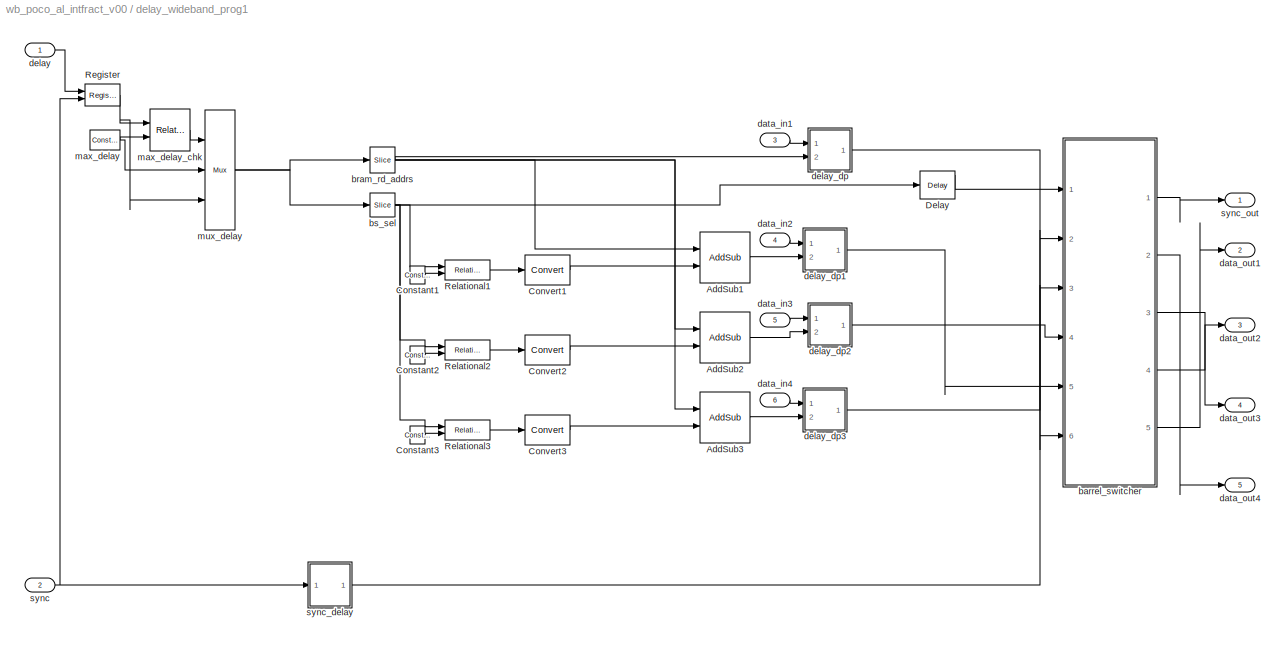
BLOCK [SubSystem] delay_wideband_prog1
  AttributesFormatString = Min Delay=28
  MinAlgLoopOccurrences = off
  Ports = [6, 5]
  RTWSystemCode = Auto
  TreatAsAtomicUnit = off
  UserData = DataTag3
  UserDataPersistent = on
BLOCK [Reference] delay_wideband_prog1/AddSub1  REF=xbsIndex_r3/AddSub
  Ports = [2, 1]
  SourceBlock = xbsIndex_r3/AddSub
  SourceType = Xilinx Adder/Subtractor
  arith_type = Unsigned
  bin_pt = 0
  dbl_ovrd = off
  en = off
  explicit_period = off
  gen_core = off
  latency = 0
  mode = Addition
  n_bits = 11
  overflow = Wrap
  period = 1
  pipeline = off
  precision = Full
  quantization = Truncate
  show_param = off
  use_carryin = off
  use_carryout = off
  use_core = on
  use_rpm = on
  xl_area = [0, 0, 0, 0, 0, 0, 0]
  xl_use_area = off
BLOCK [Reference] delay_wideband_prog1/AddSub2  REF=xbsIndex_r3/AddSub
  Ports = [2, 1]
  SourceBlock = xbsIndex_r3/AddSub
  SourceType = Xilinx Adder/Subtractor
  arith_type = Unsigned
  bin_pt = 0
  dbl_ovrd = off
  en = off
  explicit_period = off
  gen_core = off
  latency = 0
  mode = Addition
  n_bits = 11
  overflow = Wrap
  period = 1
  pipeline = off
  precision = Full
  quantization = Truncate
  show_param = off
  use_carryin = off
  use_carryout = off
  use_core = on
  use_rpm = on
  xl_area = [0, 0, 0, 0, 0, 0, 0]
  xl_use_area = off
BLOCK [Reference] delay_wideband_prog1/AddSub3  REF=xbsIndex_r3/AddSub
  Ports = [2, 1]
  SourceBlock = xbsIndex_r3/AddSub
  SourceType = Xilinx Adder/Subtractor
  arith_type = Unsigned
  bin_pt = 0
  dbl_ovrd = off
  en = off
  explicit_period = off
  gen_core = off
  latency = 0
  mode = Addition
  n_bits = 11
  overflow = Wrap
  period = 1
  pipeline = off
  precision = Full
  quantization = Truncate
  show_param = off
  use_carryin = off
  use_carryout = off
  use_core = on
  use_rpm = on
  xl_area = [0, 0, 0, 0, 0, 0, 0]
  xl_use_area = off
BLOCK [Reference] delay_wideband_prog1/Constant1  REF=xbsIndex_r3/Constant
  Ports = [0, 1]
  SourceBlock = xbsIndex_r3/Constant
  SourceType = Xilinx Constant Block
  arith_type = Unsigned
  bin_pt = 0
  carry = CIN
  const = 2
  dbl_ovrd = off
  equ = P=C
  explicit_period = on
  inp1 = P
  inp2 = PCIN>>17
  iostate = 0
  n_bits = 2
  opr = +
  opselect = C
  period = 1
BLOCK [Reference] delay_wideband_prog1/Constant2  REF=xbsIndex_r3/Constant
  Ports = [0, 1]
  SourceBlock = xbsIndex_r3/Constant
  SourceType = Xilinx Constant Block
  arith_type = Unsigned
  bin_pt = 0
  carry = CIN
  const = 1
  dbl_ovrd = off
  equ = P=C
  explicit_period = on
  inp1 = P
  inp2 = PCIN>>17
  iostate = 0
  n_bits = 2
  opr = +
  opselect = C
  period = 1
BLOCK [Reference] delay_wideband_prog1/Constant3  REF=xbsIndex_r3/Constant
  Ports = [0, 1]
  SourceBlock = xbsIndex_r3/Constant
  SourceType = Xilinx Constant Block
  arith_type = Unsigned
  bin_pt = 0
  carry = CIN
  const = 0
  dbl_ovrd = off
  equ = P=C
  explicit_period = on
  inp1 = P
  inp2 = PCIN>>17
  iostate = 0
  n_bits = 2
  opr = +
  opselect = C
  period = 1
BLOCK [Reference] delay_wideband_prog1/Convert1  REF=xbsIndex_r3/Convert
  Ports = [1, 1]
  SourceBlock = xbsIndex_r3/Convert
  SourceType = Xilinx Converter Block
  arith_type = Unsigned
  bin_pt = 0
  dbl_ovrd = off
  explicit_period = off
  inserted_by_tool = off
  latency = 0
  n_bits = 1
  overflow = Wrap
  period = 1
  pipeline = off
  quantization = Truncate
  show_param = off
  xl_area = [0, 0, 0, 0, 0, 0, 0]
  xl_use_area = off
BLOCK [Reference] delay_wideband_prog1/Convert2  REF=xbsIndex_r3/Convert
  Ports = [1, 1]
  SourceBlock = xbsIndex_r3/Convert
  SourceType = Xilinx Converter Block
  arith_type = Unsigned
  bin_pt = 0
  dbl_ovrd = off
  explicit_period = off
  inserted_by_tool = off
  latency = 0
  n_bits = 1
  overflow = Wrap
  period = 1
  pipeline = off
  quantization = Truncate
  show_param = off
  xl_area = [0, 0, 0, 0, 0, 0, 0]
  xl_use_area = off
BLOCK [Reference] delay_wideband_prog1/Convert3  REF=xbsIndex_r3/Convert
  Ports = [1, 1]
  SourceBlock = xbsIndex_r3/Convert
  SourceType = Xilinx Converter Block
  arith_type = Unsigned
  bin_pt = 0
  dbl_ovrd = off
  explicit_period = off
  inserted_by_tool = off
  latency = 0
  n_bits = 1
  overflow = Wrap
  period = 1
  pipeline = off
  quantization = Truncate
  show_param = off
  xl_area = [0, 0, 0, 0, 0, 0, 0]
  xl_use_area = off
BLOCK [Reference] delay_wideband_prog1/Delay  REF=xbsIndex_r3/Delay
  Ports = [1, 1]
  SourceBlock = xbsIndex_r3/Delay
  SourceType = Xilinx Delay Block
  accept_only_valid = off
  dbl_ovrd = off
  en = off
  explicit_period = off
  init_zero = on
  latency = 5
  period = 1
  reg_retiming = off
  show_param = off
  xl_area = [0, 0, 0, 0, 0, 0, 0]
  xl_use_area = off
BLOCK [Reference] delay_wideband_prog1/Register  REF=xbsIndex_r3/Register
  Ports = [2, 1]
  SourceBlock = xbsIndex_r3/Register
  SourceType = Xilinx Register Block
  dbl_ovrd = off
  en = on
  explicit_period = off
  init = 0
  out_en = off
  period = 1
  reg_only_valid = off
  rst = off
  show_param = off
  xl_area = [0, 0, 0, 0, 0, 0, 0]
  xl_use_area = off
BLOCK [Reference] delay_wideband_prog1/Relational1  REF=xbsIndex_r3/Relational
  Ports = [2, 1]
  SourceBlock = xbsIndex_r3/Relational
  SourceType = Xilinx Relational Block
  dbl_ovrd = off
  en = off
  explicit_period = off
  latency = 0
  mode = a>b
  period = 1
  show_param = off
  xl_area = [0, 0, 0, 0, 0, 0, 0]
  xl_use_area = off
BLOCK [Reference] delay_wideband_prog1/Relational2  REF=xbsIndex_r3/Relational
  Ports = [2, 1]
  SourceBlock = xbsIndex_r3/Relational
  SourceType = Xilinx Relational Block
  dbl_ovrd = off
  en = off
  explicit_period = off
  latency = 0
  mode = a>b
  period = 1
  show_param = off
  xl_area = [0, 0, 0, 0, 0, 0, 0]
  xl_use_area = off
BLOCK [Reference] delay_wideband_prog1/Relational3  REF=xbsIndex_r3/Relational
  Ports = [2, 1]
  SourceBlock = xbsIndex_r3/Relational
  SourceType = Xilinx Relational Block
  dbl_ovrd = off
  en = off
  explicit_period = off
  latency = 0
  mode = a>b
  period = 1
  show_param = off
  xl_area = [0, 0, 0, 0, 0, 0, 0]
  xl_use_area = off
BLOCK [SubSystem] delay_wideband_prog1/barrel_switcher
  AttributesFormatString = n_inputs=2
  MinAlgLoopOccurrences = off
  Ports = [6, 5]
  RTWSystemCode = Auto
  TreatAsAtomicUnit = off
  UserData = DataTag4
  UserDataPersistent = on
BLOCK [Reference] delay_wideband_prog1/barrel_switcher/Delay1  REF=xbsIndex_r3/Delay
  Ports = [1, 1]
  SourceBlock = xbsIndex_r3/Delay
  SourceType = Xilinx Delay Block
  accept_only_valid = off
  dbl_ovrd = off
  en = off
  explicit_period = off
  init_zero = on
  latency = 1
  period = 1
  reg_retiming = off
  show_param = off
  xl_area = [0, 0, 0, 0, 0, 0, 0]
  xl_use_area = off
BLOCK [Reference] delay_wideband_prog1/barrel_switcher/Delay_sync  REF=xbsIndex_r3/Delay
  Ports = [1, 1]
  SourceBlock = xbsIndex_r3/Delay
  SourceType = Xilinx Delay Block
  accept_only_valid = off
  dbl_ovrd = off
  en = off
  explicit_period = off
  init_zero = on
  latency = 2
  period = 1
  reg_retiming = off
  show_param = off
  xl_area = [0, 0, 0, 0, 0, 0, 0]
  xl_use_area = off
BLOCK [Inport] delay_wideband_prog1/barrel_switcher/In1
  IconDisplay = Port number
  LatchInput = off
  Port = 3
BLOCK [Inport] delay_wideband_prog1/barrel_switcher/In2
  IconDisplay = Port number
  LatchInput = off
  Port = 4
BLOCK [Inport] delay_wideband_prog1/barrel_switcher/In3
  IconDisplay = Port number
  LatchInput = off
  Port = 5
BLOCK [Inport] delay_wideband_prog1/barrel_switcher/In4
  IconDisplay = Port number
  LatchInput = off
  Port = 6
BLOCK [Reference] delay_wideband_prog1/barrel_switcher/Mux11  REF=xbsIndex_r3/Mux
  Ports = [3, 1]
  SourceBlock = xbsIndex_r3/Mux
  SourceType = Xilinx Multiplexer Block
  arith_type = Signed  (2's comp)
  bin_pt = 2
  dbl_ovrd = off
  en = off
  explicit_period = off
  gen_core = off
  inputs = 2
  latency = 1
  mux_type = off
  n_bits = 8
  overflow = Wrap
  period = 1
  precision = Full
  quantization = Truncate
  show_param = off
  use_rpm = off
  xl_area = [0, 0, 0, 0, 0, 0, 0]
  xl_use_area = off
BLOCK [Reference] delay_wideband_prog1/barrel_switcher/Mux12  REF=xbsIndex_r3/Mux
  Ports = [3, 1]
  SourceBlock = xbsIndex_r3/Mux
  SourceType = Xilinx Multiplexer Block
  arith_type = Signed  (2's comp)
  bin_pt = 2
  dbl_ovrd = off
  en = off
  explicit_period = off
  gen_core = off
  inputs = 2
  latency = 1
  mux_type = off
  n_bits = 8
  overflow = Wrap
  period = 1
  precision = Full
  quantization = Truncate
  show_param = off
  use_rpm = off
  xl_area = [0, 0, 0, 0, 0, 0, 0]
  xl_use_area = off
BLOCK [Reference] delay_wideband_prog1/barrel_switcher/Mux21  REF=xbsIndex_r3/Mux
  Ports = [3, 1]
  SourceBlock = xbsIndex_r3/Mux
  SourceType = Xilinx Multiplexer Block
  arith_type = Signed  (2's comp)
  bin_pt = 2
  dbl_ovrd = off
  en = off
  explicit_period = off
  gen_core = off
  inputs = 2
  latency = 1
  mux_type = off
  n_bits = 8
  overflow = Wrap
  period = 1
  precision = Full
  quantization = Truncate
  show_param = off
  use_rpm = off
  xl_area = [0, 0, 0, 0, 0, 0, 0]
  xl_use_area = off
BLOCK [Reference] delay_wideband_prog1/barrel_switcher/Mux22  REF=xbsIndex_r3/Mux
  Ports = [3, 1]
  SourceBlock = xbsIndex_r3/Mux
  SourceType = Xilinx Multiplexer Block
  arith_type = Signed  (2's comp)
  bin_pt = 2
  dbl_ovrd = off
  en = off
  explicit_period = off
  gen_core = off
  inputs = 2
  latency = 1
  mux_type = off
  n_bits = 8
  overflow = Wrap
  period = 1
  precision = Full
  quantization = Truncate
  show_param = off
  use_rpm = off
  xl_area = [0, 0, 0, 0, 0, 0, 0]
  xl_use_area = off
BLOCK [Reference] delay_wideband_prog1/barrel_switcher/Mux31  REF=xbsIndex_r3/Mux
  Ports = [3, 1]
  SourceBlock = xbsIndex_r3/Mux
  SourceType = Xilinx Multiplexer Block
  arith_type = Signed  (2's comp)
  bin_pt = 2
  dbl_ovrd = off
  en = off
  explicit_period = off
  gen_core = off
  inputs = 2
  latency = 1
  mux_type = off
  n_bits = 8
  overflow = Wrap
  period = 1
  precision = Full
  quantization = Truncate
  show_param = off
  use_rpm = off
  xl_area = [0, 0, 0, 0, 0, 0, 0]
  xl_use_area = off
BLOCK [Reference] delay_wideband_prog1/barrel_switcher/Mux32  REF=xbsIndex_r3/Mux
  Ports = [3, 1]
  SourceBlock = xbsIndex_r3/Mux
  SourceType = Xilinx Multiplexer Block
  arith_type = Signed  (2's comp)
  bin_pt = 2
  dbl_ovrd = off
  en = off
  explicit_period = off
  gen_core = off
  inputs = 2
  latency = 1
  mux_type = off
  n_bits = 8
  overflow = Wrap
  period = 1
  precision = Full
  quantization = Truncate
  show_param = off
  use_rpm = off
  xl_area = [0, 0, 0, 0, 0, 0, 0]
  xl_use_area = off
BLOCK [Reference] delay_wideband_prog1/barrel_switcher/Mux41  REF=xbsIndex_r3/Mux
  Ports = [3, 1]
  SourceBlock = xbsIndex_r3/Mux
  SourceType = Xilinx Multiplexer Block
  arith_type = Signed  (2's comp)
  bin_pt = 2
  dbl_ovrd = off
  en = off
  explicit_period = off
  gen_core = off
  inputs = 2
  latency = 1
  mux_type = off
  n_bits = 8
  overflow = Wrap
  period = 1
  precision = Full
  quantization = Truncate
  show_param = off
  use_rpm = off
  xl_area = [0, 0, 0, 0, 0, 0, 0]
  xl_use_area = off
BLOCK [Reference] delay_wideband_prog1/barrel_switcher/Mux42  REF=xbsIndex_r3/Mux
  Ports = [3, 1]
  SourceBlock = xbsIndex_r3/Mux
  SourceType = Xilinx Multiplexer Block
  arith_type = Signed  (2's comp)
  bin_pt = 2
  dbl_ovrd = off
  en = off
  explicit_period = off
  gen_core = off
  inputs = 2
  latency = 1
  mux_type = off
  n_bits = 8
  overflow = Wrap
  period = 1
  precision = Full
  quantization = Truncate
  show_param = off
  use_rpm = off
  xl_area = [0, 0, 0, 0, 0, 0, 0]
  xl_use_area = off
BLOCK [Outport] delay_wideband_prog1/barrel_switcher/Out1
  BusOutputAsStruct = off
  IconDisplay = Port number
  Port = 2
BLOCK [Outport] delay_wideband_prog1/barrel_switcher/Out2
  BusOutputAsStruct = off
  IconDisplay = Port number
  Port = 3
BLOCK [Outport] delay_wideband_prog1/barrel_switcher/Out3
  BusOutputAsStruct = off
  IconDisplay = Port number
  Port = 4
BLOCK [Outport] delay_wideband_prog1/barrel_switcher/Out4
  BusOutputAsStruct = off
  IconDisplay = Port number
  Port = 5
BLOCK [Reference] delay_wideband_prog1/barrel_switcher/Slice1  REF=xbsIndex_r3/Slice
  Ports = [1, 1]
  SourceBlock = xbsIndex_r3/Slice
  SourceType = Xilinx Slice Block
  base0 = LSB of Input
  base1 = MSB of Input
  bit0 = 0
  bit1 = -0
  boolean_output = off
  dbl_ovrd = off
  explicit_period = off
  mode = Upper Bit Location + Width
  nbits = 1
  period = 1
BLOCK [Reference] delay_wideband_prog1/barrel_switcher/Slice2  REF=xbsIndex_r3/Slice
  Ports = [1, 1]
  SourceBlock = xbsIndex_r3/Slice
  SourceType = Xilinx Slice Block
  base0 = LSB of Input
  base1 = MSB of Input
  bit0 = 0
  bit1 = -1
  boolean_output = off
  dbl_ovrd = off
  explicit_period = off
  mode = Upper Bit Location + Width
  nbits = 1
  period = 1
BLOCK [Inport] delay_wideband_prog1/barrel_switcher/sel
  IconDisplay = Port number
  LatchInput = off
  Port = 1
BLOCK [Inport] delay_wideband_prog1/barrel_switcher/sync_in
  IconDisplay = Port number
  LatchInput = off
  Port = 2
BLOCK [Outport] delay_wideband_prog1/barrel_switcher/sync_out
  BusOutputAsStruct = off
  IconDisplay = Port number
BLOCK [Reference] delay_wideband_prog1/bram_rd_addrs  REF=xbsIndex_r3/Slice
  Ports = [1, 1]
  SourceBlock = xbsIndex_r3/Slice
  SourceType = Xilinx Slice Block
  base0 = LSB of Input
  base1 = MSB of Input
  bit0 = 2
  bit1 = 0
  boolean_output = off
  dbl_ovrd = off
  explicit_period = off
  mode = Lower Bit Location + Width
  nbits = 11
  period = 1
BLOCK [Reference] delay_wideband_prog1/bs_sel  REF=xbsIndex_r3/Slice
  Ports = [1, 1]
  SourceBlock = xbsIndex_r3/Slice
  SourceType = Xilinx Slice Block
  base0 = LSB of Input
  base1 = MSB of Input
  bit0 = 0
  bit1 = 0
  boolean_output = off
  dbl_ovrd = off
  explicit_period = off
  mode = Lower Bit Location + Width
  nbits = 2
  period = 1
BLOCK [Inport] delay_wideband_prog1/data_in1
  IconDisplay = Port number
  LatchInput = off
  Port = 3
BLOCK [Inport] delay_wideband_prog1/data_in2
  IconDisplay = Port number
  LatchInput = off
  Port = 4
BLOCK [Inport] delay_wideband_prog1/data_in3
  IconDisplay = Port number
  LatchInput = off
  Port = 5
BLOCK [Inport] delay_wideband_prog1/data_in4
  IconDisplay = Port number
  LatchInput = off
  Port = 6
BLOCK [Outport] delay_wideband_prog1/data_out1
  BusOutputAsStruct = off
  IconDisplay = Port number
  Port = 2
BLOCK [Outport] delay_wideband_prog1/data_out2
  BusOutputAsStruct = off
  IconDisplay = Port number
  Port = 3
BLOCK [Outport] delay_wideband_prog1/data_out3
  BusOutputAsStruct = off
  IconDisplay = Port number
  Port = 4
BLOCK [Outport] delay_wideband_prog1/data_out4
  BusOutputAsStruct = off
  IconDisplay = Port number
  Port = 5
BLOCK [Inport] delay_wideband_prog1/delay
  IconDisplay = Port number
  LatchInput = off
  Port = 1
BLOCK [SubSystem] delay_wideband_prog1/delay_dp
  MaskCallbackString = |
  MaskEnableString = on,on
  MaskIconFrame = on
  MaskIconOpaque = on
  MaskIconRotate = none
  MaskIconUnits = autoscale
  MaskPromptString = Max Delay (2^?)|BRAM Latency
  MaskStyleString = edit,edit
  MaskTabNameString = ,
  MaskToolTipString = on,on
  MaskTunableValueString = on,on
  MaskValueString = 11|4
  MaskVarAliasString = ,
  MaskVariables = ram_bits=@1;bram_latency=@2;
  MaskVisibilityString = on,on
  MinAlgLoopOccurrences = off
  Ports = [2, 1]
  RTWSystemCode = Auto
  TreatAsAtomicUnit = off
BLOCK [Reference] delay_wideband_prog1/delay_dp/AddSub  REF=xbsIndex_r3/AddSub
  Ports = [2, 1]
  SourceBlock = xbsIndex_r3/AddSub
  SourceType = Xilinx Adder/Subtractor
  arith_type = Unsigned
  bin_pt = 0
  dbl_ovrd = off
  en = off
  explicit_period = off
  gen_core = off
  latency = 1
  mode = Subtraction
  n_bits = 11
  overflow = Wrap
  period = 1
  pipeline = off
  precision = User Defined
  quantization = Truncate
  show_param = off
  use_carryin = off
  use_carryout = off
  use_core = on
  use_rpm = on
  xl_area = [0, 0, 0, 0, 0, 0, 0]
  xl_use_area = off
BLOCK [Reference] delay_wideband_prog1/delay_dp/Constant2  REF=xbsIndex_r3/Constant
  Ports = [0, 1]
  SourceBlock = xbsIndex_r3/Constant
  SourceType = Xilinx Constant Block
  arith_type = Boolean
  bin_pt = 0
  carry = CIN
  const = 1
  dbl_ovrd = off
  equ = P=C
  explicit_period = on
  inp1 = P
  inp2 = PCIN>>17
  iostate = 0
  n_bits = 1
  opr = +
  opselect = C
  period = 1
BLOCK [Reference] delay_wideband_prog1/delay_dp/Constant4  REF=xbsIndex_r3/Constant
  Ports = [0, 1]
  SourceBlock = xbsIndex_r3/Constant
  SourceType = Xilinx Constant Block
  arith_type = Boolean
  bin_pt = 0
  carry = CIN
  const = 0
  dbl_ovrd = off
  equ = P=C
  explicit_period = on
  inp1 = P
  inp2 = PCIN>>17
  iostate = 0
  n_bits = 1
  opr = +
  opselect = C
  period = 1
BLOCK [S-Function] delay_wideband_prog1/delay_dp/Dual Port RAM
  AncestorBlock = xbsIndex_r3/Dual Port RAM
  FunctionName = xldpram
  MaskCallbackString = |||||||xldpramCallback|||xldpramCallback||xldpramCallback||xldpramCallback|xldpramCallback||||
  MaskEnableString = on,on,on,on,on,on,on,on,on,on,on,on,on,on,on,on,on,on,on,on
  MaskHelp = eval('xlWeb(xlhtmldoclink(''Dual Port RAM''))');
  MaskIconFrame = off
  MaskIconOpaque = off
  MaskIconRotate = none
  MaskIconUnits = autoscale
  MaskSelfModifiable = on
  MaskTabNameString = ,,,,,,,,,,,,,,,,,,,
  MaskToolTipString = on,on,on,on,on,on,on,on,on,on,on,on,on,on,on,on,on,on,on,on
  MaskTunableValueString = off,off,off,off,off,off,off,off,off,off,off,off,off,off,off,off,off,off,on,on
  MaskType = Xilinx Dual Port Random Access Memory
  MaskValueString = 2048|0|Read After Write|Read After Write|4|off|on|off|1|off|off|0|off|0|off|off|off|off|[0, 0, 0, 0, 0, 0, 0]|off
  MaskVarAliasString = ,,,,,,,,,,,,,,,,,,,
  MaskVisibilityString = on,on,on,on,on,on,off,on,off,on,on,off,on,off,on,off,off,off,off,off
  Parameters = sfcn_mwsv__
  Ports = [6, 2]
BLOCK [Inport] delay_wideband_prog1/delay_dp/delay
  IconDisplay = Port number
  LatchInput = off
  Port = 2
BLOCK [Inport] delay_wideband_prog1/delay_dp/din
  IconDisplay = Port number
  LatchInput = off
  Port = 1
BLOCK [Outport] delay_wideband_prog1/delay_dp/dout
  BusOutputAsStruct = off
  IconDisplay = Port number
BLOCK [Reference] delay_wideband_prog1/delay_dp/wr_addr  REF=xbsIndex_r3/Counter
  Ports = [0, 1]
  SourceBlock = xbsIndex_r3/Counter
  SourceType = Xilinx Counter Block
  arith_type = Unsigned
  bin_pt = 0
  cnt_by_val = 1
  cnt_to = Inf
  cnt_type = Free Running
  dbl_ovrd = off
  en = off
  explicit_period = off
  gen_core = off
  load_pin = off
  n_bits = 11
  operation = Up
  period = 1
  rst = off
  show_param = off
  start_count = 0
  use_rpm = on
  xl_area = [0, 0, 0, 0, 0, 0, 0]
  xl_use_area = off
BLOCK [SubSystem] delay_wideband_prog1/delay_dp1
  MaskCallbackString = |
  MaskEnableString = on,on
  MaskIconFrame = on
  MaskIconOpaque = on
  MaskIconRotate = none
  MaskIconUnits = autoscale
  MaskPromptString = Max Delay (2^?)|BRAM Latency
  MaskStyleString = edit,edit
  MaskTabNameString = ,
  MaskToolTipString = on,on
  MaskTunableValueString = on,on
  MaskValueString = 11|4
  MaskVarAliasString = ,
  MaskVariables = ram_bits=@1;bram_latency=@2;
  MaskVisibilityString = on,on
  MinAlgLoopOccurrences = off
  Ports = [2, 1]
  RTWSystemCode = Auto
  TreatAsAtomicUnit = off
BLOCK [Reference] delay_wideband_prog1/delay_dp1/AddSub  REF=xbsIndex_r3/AddSub
  Ports = [2, 1]
  SourceBlock = xbsIndex_r3/AddSub
  SourceType = Xilinx Adder/Subtractor
  arith_type = Unsigned
  bin_pt = 0
  dbl_ovrd = off
  en = off
  explicit_period = off
  gen_core = off
  latency = 1
  mode = Subtraction
  n_bits = 11
  overflow = Wrap
  period = 1
  pipeline = off
  precision = User Defined
  quantization = Truncate
  show_param = off
  use_carryin = off
  use_carryout = off
  use_core = on
  use_rpm = on
  xl_area = [0, 0, 0, 0, 0, 0, 0]
  xl_use_area = off
BLOCK [Reference] delay_wideband_prog1/delay_dp1/Constant2  REF=xbsIndex_r3/Constant
  Ports = [0, 1]
  SourceBlock = xbsIndex_r3/Constant
  SourceType = Xilinx Constant Block
  arith_type = Boolean
  bin_pt = 0
  carry = CIN
  const = 1
  dbl_ovrd = off
  equ = P=C
  explicit_period = on
  inp1 = P
  inp2 = PCIN>>17
  iostate = 0
  n_bits = 1
  opr = +
  opselect = C
  period = 1
BLOCK [Reference] delay_wideband_prog1/delay_dp1/Constant4  REF=xbsIndex_r3/Constant
  Ports = [0, 1]
  SourceBlock = xbsIndex_r3/Constant
  SourceType = Xilinx Constant Block
  arith_type = Boolean
  bin_pt = 0
  carry = CIN
  const = 0
  dbl_ovrd = off
  equ = P=C
  explicit_period = on
  inp1 = P
  inp2 = PCIN>>17
  iostate = 0
  n_bits = 1
  opr = +
  opselect = C
  period = 1
BLOCK [S-Function] delay_wideband_prog1/delay_dp1/Dual Port RAM
  AncestorBlock = xbsIndex_r3/Dual Port RAM
  FunctionName = xldpram
  MaskCallbackString = |||||||xldpramCallback|||xldpramCallback||xldpramCallback||xldpramCallback|xldpramCallback||||
  MaskEnableString = on,on,on,on,on,on,on,on,on,on,on,on,on,on,on,on,on,on,on,on
  MaskHelp = eval('xlWeb(xlhtmldoclink(''Dual Port RAM''))');
  MaskIconFrame = off
  MaskIconOpaque = off
  MaskIconRotate = none
  MaskIconUnits = autoscale
  MaskSelfModifiable = on
  MaskTabNameString = ,,,,,,,,,,,,,,,,,,,
  MaskToolTipString = on,on,on,on,on,on,on,on,on,on,on,on,on,on,on,on,on,on,on,on
  MaskTunableValueString = off,off,off,off,off,off,off,off,off,off,off,off,off,off,off,off,off,off,on,on
  MaskType = Xilinx Dual Port Random Access Memory
  MaskValueString = 2048|0|Read After Write|Read After Write|4|off|on|off|1|off|off|0|off|0|off|off|off|off|[0, 0, 0, 0, 0, 0, 0]|off
  MaskVarAliasString = ,,,,,,,,,,,,,,,,,,,
  MaskVisibilityString = on,on,on,on,on,on,off,on,off,on,on,off,on,off,on,off,off,off,off,off
  Parameters = sfcn_mwsv__
  Ports = [6, 2]
BLOCK [Inport] delay_wideband_prog1/delay_dp1/delay
  IconDisplay = Port number
  LatchInput = off
  Port = 2
BLOCK [Inport] delay_wideband_prog1/delay_dp1/din
  IconDisplay = Port number
  LatchInput = off
  Port = 1
BLOCK [Outport] delay_wideband_prog1/delay_dp1/dout
  BusOutputAsStruct = off
  IconDisplay = Port number
BLOCK [Reference] delay_wideband_prog1/delay_dp1/wr_addr  REF=xbsIndex_r3/Counter
  Ports = [0, 1]
  SourceBlock = xbsIndex_r3/Counter
  SourceType = Xilinx Counter Block
  arith_type = Unsigned
  bin_pt = 0
  cnt_by_val = 1
  cnt_to = Inf
  cnt_type = Free Running
  dbl_ovrd = off
  en = off
  explicit_period = off
  gen_core = off
  load_pin = off
  n_bits = 11
  operation = Up
  period = 1
  rst = off
  show_param = off
  start_count = 0
  use_rpm = on
  xl_area = [0, 0, 0, 0, 0, 0, 0]
  xl_use_area = off
BLOCK [SubSystem] delay_wideband_prog1/delay_dp2
  MaskCallbackString = |
  MaskEnableString = on,on
  MaskIconFrame = on
  MaskIconOpaque = on
  MaskIconRotate = none
  MaskIconUnits = autoscale
  MaskPromptString = Max Delay (2^?)|BRAM Latency
  MaskStyleString = edit,edit
  MaskTabNameString = ,
  MaskToolTipString = on,on
  MaskTunableValueString = on,on
  MaskValueString = 11|4
  MaskVarAliasString = ,
  MaskVariables = ram_bits=@1;bram_latency=@2;
  MaskVisibilityString = on,on
  MinAlgLoopOccurrences = off
  Ports = [2, 1]
  RTWSystemCode = Auto
  TreatAsAtomicUnit = off
BLOCK [Reference] delay_wideband_prog1/delay_dp2/AddSub  REF=xbsIndex_r3/AddSub
  Ports = [2, 1]
  SourceBlock = xbsIndex_r3/AddSub
  SourceType = Xilinx Adder/Subtractor
  arith_type = Unsigned
  bin_pt = 0
  dbl_ovrd = off
  en = off
  explicit_period = off
  gen_core = off
  latency = 1
  mode = Subtraction
  n_bits = 11
  overflow = Wrap
  period = 1
  pipeline = off
  precision = User Defined
  quantization = Truncate
  show_param = off
  use_carryin = off
  use_carryout = off
  use_core = on
  use_rpm = on
  xl_area = [0, 0, 0, 0, 0, 0, 0]
  xl_use_area = off
BLOCK [Reference] delay_wideband_prog1/delay_dp2/Constant2  REF=xbsIndex_r3/Constant
  Ports = [0, 1]
  SourceBlock = xbsIndex_r3/Constant
  SourceType = Xilinx Constant Block
  arith_type = Boolean
  bin_pt = 0
  carry = CIN
  const = 1
  dbl_ovrd = off
  equ = P=C
  explicit_period = on
  inp1 = P
  inp2 = PCIN>>17
  iostate = 0
  n_bits = 1
  opr = +
  opselect = C
  period = 1
BLOCK [Reference] delay_wideband_prog1/delay_dp2/Constant4  REF=xbsIndex_r3/Constant
  Ports = [0, 1]
  SourceBlock = xbsIndex_r3/Constant
  SourceType = Xilinx Constant Block
  arith_type = Boolean
  bin_pt = 0
  carry = CIN
  const = 0
  dbl_ovrd = off
  equ = P=C
  explicit_period = on
  inp1 = P
  inp2 = PCIN>>17
  iostate = 0
  n_bits = 1
  opr = +
  opselect = C
  period = 1
BLOCK [S-Function] delay_wideband_prog1/delay_dp2/Dual Port RAM
  AncestorBlock = xbsIndex_r3/Dual Port RAM
  FunctionName = xldpram
  MaskCallbackString = |||||||xldpramCallback|||xldpramCallback||xldpramCallback||xldpramCallback|xldpramCallback||||
  MaskEnableString = on,on,on,on,on,on,on,on,on,on,on,on,on,on,on,on,on,on,on,on
  MaskHelp = eval('xlWeb(xlhtmldoclink(''Dual Port RAM''))');
  MaskIconFrame = off
  MaskIconOpaque = off
  MaskIconRotate = none
  MaskIconUnits = autoscale
  MaskSelfModifiable = on
  MaskTabNameString = ,,,,,,,,,,,,,,,,,,,
  MaskToolTipString = on,on,on,on,on,on,on,on,on,on,on,on,on,on,on,on,on,on,on,on
  MaskTunableValueString = off,off,off,off,off,off,off,off,off,off,off,off,off,off,off,off,off,off,on,on
  MaskType = Xilinx Dual Port Random Access Memory
  MaskValueString = 2048|0|Read After Write|Read After Write|4|off|on|off|1|off|off|0|off|0|off|off|off|off|[0, 0, 0, 0, 0, 0, 0]|off
  MaskVarAliasString = ,,,,,,,,,,,,,,,,,,,
  MaskVisibilityString = on,on,on,on,on,on,off,on,off,on,on,off,on,off,on,off,off,off,off,off
  Parameters = sfcn_mwsv__
  Ports = [6, 2]
BLOCK [Inport] delay_wideband_prog1/delay_dp2/delay
  IconDisplay = Port number
  LatchInput = off
  Port = 2
BLOCK [Inport] delay_wideband_prog1/delay_dp2/din
  IconDisplay = Port number
  LatchInput = off
  Port = 1
BLOCK [Outport] delay_wideband_prog1/delay_dp2/dout
  BusOutputAsStruct = off
  IconDisplay = Port number
BLOCK [Reference] delay_wideband_prog1/delay_dp2/wr_addr  REF=xbsIndex_r3/Counter
  Ports = [0, 1]
  SourceBlock = xbsIndex_r3/Counter
  SourceType = Xilinx Counter Block
  arith_type = Unsigned
  bin_pt = 0
  cnt_by_val = 1
  cnt_to = Inf
  cnt_type = Free Running
  dbl_ovrd = off
  en = off
  explicit_period = off
  gen_core = off
  load_pin = off
  n_bits = 11
  operation = Up
  period = 1
  rst = off
  show_param = off
  start_count = 0
  use_rpm = on
  xl_area = [0, 0, 0, 0, 0, 0, 0]
  xl_use_area = off
BLOCK [SubSystem] delay_wideband_prog1/delay_dp3
  MaskCallbackString = |
  MaskEnableString = on,on
  MaskIconFrame = on
  MaskIconOpaque = on
  MaskIconRotate = none
  MaskIconUnits = autoscale
  MaskPromptString = Max Delay (2^?)|BRAM Latency
  MaskStyleString = edit,edit
  MaskTabNameString = ,
  MaskToolTipString = on,on
  MaskTunableValueString = on,on
  MaskValueString = 11|4
  MaskVarAliasString = ,
  MaskVariables = ram_bits=@1;bram_latency=@2;
  MaskVisibilityString = on,on
  MinAlgLoopOccurrences = off
  Ports = [2, 1]
  RTWSystemCode = Auto
  TreatAsAtomicUnit = off
BLOCK [Reference] delay_wideband_prog1/delay_dp3/AddSub  REF=xbsIndex_r3/AddSub
  Ports = [2, 1]
  SourceBlock = xbsIndex_r3/AddSub
  SourceType = Xilinx Adder/Subtractor
  arith_type = Unsigned
  bin_pt = 0
  dbl_ovrd = off
  en = off
  explicit_period = off
  gen_core = off
  latency = 1
  mode = Subtraction
  n_bits = 11
  overflow = Wrap
  period = 1
  pipeline = off
  precision = User Defined
  quantization = Truncate
  show_param = off
  use_carryin = off
  use_carryout = off
  use_core = on
  use_rpm = on
  xl_area = [0, 0, 0, 0, 0, 0, 0]
  xl_use_area = off
BLOCK [Reference] delay_wideband_prog1/delay_dp3/Constant2  REF=xbsIndex_r3/Constant
  Ports = [0, 1]
  SourceBlock = xbsIndex_r3/Constant
  SourceType = Xilinx Constant Block
  arith_type = Boolean
  bin_pt = 0
  carry = CIN
  const = 1
  dbl_ovrd = off
  equ = P=C
  explicit_period = on
  inp1 = P
  inp2 = PCIN>>17
  iostate = 0
  n_bits = 1
  opr = +
  opselect = C
  period = 1
BLOCK [Reference] delay_wideband_prog1/delay_dp3/Constant4  REF=xbsIndex_r3/Constant
  Ports = [0, 1]
  SourceBlock = xbsIndex_r3/Constant
  SourceType = Xilinx Constant Block
  arith_type = Boolean
  bin_pt = 0
  carry = CIN
  const = 0
  dbl_ovrd = off
  equ = P=C
  explicit_period = on
  inp1 = P
  inp2 = PCIN>>17
  iostate = 0
  n_bits = 1
  opr = +
  opselect = C
  period = 1
BLOCK [S-Function] delay_wideband_prog1/delay_dp3/Dual Port RAM
  AncestorBlock = xbsIndex_r3/Dual Port RAM
  FunctionName = xldpram
  MaskCallbackString = |||||||xldpramCallback|||xldpramCallback||xldpramCallback||xldpramCallback|xldpramCallback||||
  MaskEnableString = on,on,on,on,on,on,on,on,on,on,on,on,on,on,on,on,on,on,on,on
  MaskHelp = eval('xlWeb(xlhtmldoclink(''Dual Port RAM''))');
  MaskIconFrame = off
  MaskIconOpaque = off
  MaskIconRotate = none
  MaskIconUnits = autoscale
  MaskSelfModifiable = on
  MaskTabNameString = ,,,,,,,,,,,,,,,,,,,
  MaskToolTipString = on,on,on,on,on,on,on,on,on,on,on,on,on,on,on,on,on,on,on,on
  MaskTunableValueString = off,off,off,off,off,off,off,off,off,off,off,off,off,off,off,off,off,off,on,on
  MaskType = Xilinx Dual Port Random Access Memory
  MaskValueString = 2048|0|Read After Write|Read After Write|4|off|on|off|1|off|off|0|off|0|off|off|off|off|[0, 0, 0, 0, 0, 0, 0]|off
  MaskVarAliasString = ,,,,,,,,,,,,,,,,,,,
  MaskVisibilityString = on,on,on,on,on,on,off,on,off,on,on,off,on,off,on,off,off,off,off,off
  Parameters = sfcn_mwsv__
  Ports = [6, 2]
BLOCK [Inport] delay_wideband_prog1/delay_dp3/delay
  IconDisplay = Port number
  LatchInput = off
  Port = 2
BLOCK [Inport] delay_wideband_prog1/delay_dp3/din
  IconDisplay = Port number
  LatchInput = off
  Port = 1
BLOCK [Outport] delay_wideband_prog1/delay_dp3/dout
  BusOutputAsStruct = off
  IconDisplay = Port number
BLOCK [Reference] delay_wideband_prog1/delay_dp3/wr_addr  REF=xbsIndex_r3/Counter
  Ports = [0, 1]
  SourceBlock = xbsIndex_r3/Counter
  SourceType = Xilinx Counter Block
  arith_type = Unsigned
  bin_pt = 0
  cnt_by_val = 1
  cnt_to = Inf
  cnt_type = Free Running
  dbl_ovrd = off
  en = off
  explicit_period = off
  gen_core = off
  load_pin = off
  n_bits = 11
  operation = Up
  period = 1
  rst = off
  show_param = off
  start_count = 0
  use_rpm = on
  xl_area = [0, 0, 0, 0, 0, 0, 0]
  xl_use_area = off
BLOCK [Reference] delay_wideband_prog1/max_delay  REF=xbsIndex_r3/Constant
  Ports = [0, 1]
  SourceBlock = xbsIndex_r3/Constant
  SourceType = Xilinx Constant Block
  arith_type = Unsigned
  bin_pt = 0
  carry = CIN
  const = 8192
  dbl_ovrd = off
  equ = P=C
  explicit_period = on
  inp1 = P
  inp2 = PCIN>>17
  iostate = 0
  n_bits = 32
  opr = +
  opselect = C
  period = 1
BLOCK [Reference] delay_wideband_prog1/max_delay_chk  REF=xbsIndex_r3/Relational
  Ports = [2, 1]
  SourceBlock = xbsIndex_r3/Relational
  SourceType = Xilinx Relational Block
  dbl_ovrd = off
  en = off
  explicit_period = off
  latency = 1
  mode = a<=b
  period = 1
  show_param = off
  xl_area = [0, 0, 0, 0, 0, 0, 0]
  xl_use_area = off
BLOCK [Reference] delay_wideband_prog1/mux_delay  REF=xbsIndex_r3/Mux
  Ports = [3, 1]
  SourceBlock = xbsIndex_r3/Mux
  SourceType = Xilinx Multiplexer Block
  arith_type = Signed  (2's comp)
  bin_pt = 2
  dbl_ovrd = off
  en = off
  explicit_period = off
  gen_core = off
  inputs = 2
  latency = 0
  mux_type = off
  n_bits = 8
  overflow = Wrap
  period = 1
  precision = Full
  quantization = Truncate
  show_param = off
  use_rpm = off
  xl_area = [0, 0, 0, 0, 0, 0, 0]
  xl_use_area = off
BLOCK [Inport] delay_wideband_prog1/sync
  IconDisplay = Port number
  LatchInput = off
  Port = 2
BLOCK [SubSystem] delay_wideband_prog1/sync_delay
  MaskDescription = Delay an infrequent boolean pulse by the specified number of clocks.
  MaskDisplay = fprintf('Z^-%d', DelayLen)
  MaskEnableString = on
  MaskHelp = eval('xlWeb([getenv(''MLIB_ROOT''), ''<path>''])')
  MaskIconFrame = on
  MaskIconOpaque = on
  MaskIconRotate = none
  MaskIconUnits = autoscale
  MaskInitialization = BitWidth = max(2, ceil(log2(DelayLen+1)));\nUseCounter = 1;\nif DelayLen == 0,\n	UseCounter = 0;\nend
  MaskPromptString = Delay Length:
  MaskSelfModifiable = on
  MaskStyleString = edit
  MaskToolTipString = on
  MaskTunableValueString = on
  MaskType = sync_delay
  MaskValueString = 5
  MaskVariables = DelayLen=@1;
  MaskVisibilityString = on
  MinAlgLoopOccurrences = off
  Ports = [1, 1]
  RTWSystemCode = Auto
  TreatAsAtomicUnit = off
BLOCK [Reference] delay_wideband_prog1/sync_delay/Constant  REF=xbsIndex_r3/Constant
  Ports = [0, 1]
  SourceBlock = xbsIndex_r3/Constant
  SourceType = Xilinx Constant Block
  arith_type = Unsigned
  bin_pt = 0
  carry = CIN
  const = 1
  dbl_ovrd = off
  equ = P=C
  explicit_period = on
  inp1 = P
  inp2 = PCIN>>17
  iostate = 0
  n_bits = BitWidth
  opr = +
  opselect = C
  period = 1
BLOCK [Reference] delay_wideband_prog1/sync_delay/Constant1  REF=xbsIndex_r3/Constant
  Ports = [0, 1]
  SourceBlock = xbsIndex_r3/Constant
  SourceType = Xilinx Constant Block
  arith_type = Unsigned
  bin_pt = 0
  carry = CIN
  const = 0
  dbl_ovrd = off
  equ = P=C
  explicit_period = on
  inp1 = P
  inp2 = PCIN>>17
  iostate = 0
  n_bits = BitWidth
  opr = +
  opselect = C
  period = 1
BLOCK [Reference] delay_wideband_prog1/sync_delay/Constant2  REF=xbsIndex_r3/Constant
  Ports = [0, 1]
  SourceBlock = xbsIndex_r3/Constant
  SourceType = Xilinx Constant Block
  arith_type = Unsigned
  bin_pt = 0
  carry = CIN
  const = DelayLen
  dbl_ovrd = off
  equ = P=C
  explicit_period = on
  inp1 = P
  inp2 = PCIN>>17
  iostate = 0
  n_bits = BitWidth
  opr = +
  opselect = C
  period = 1
BLOCK [Reference] delay_wideband_prog1/sync_delay/Constant3  REF=xbsIndex_r3/Constant
  Ports = [0, 1]
  SourceBlock = xbsIndex_r3/Constant
  SourceType = Xilinx Constant Block
  arith_type = Unsigned
  bin_pt = 0
  carry = CIN
  const = UseCounter
  dbl_ovrd = off
  equ = P=C
  explicit_period = on
  inp1 = P
  inp2 = PCIN>>17
  iostate = 0
  n_bits = 1
  opr = +
  opselect = C
  period = 1
BLOCK [Reference] delay_wideband_prog1/sync_delay/Counter  REF=xbsIndex_r3/Counter
  Ports = [3, 1]
  SourceBlock = xbsIndex_r3/Counter
  SourceType = Xilinx Counter Block
  arith_type = Unsigned
  bin_pt = 0
  cnt_by_val = 1
  cnt_to = Inf
  cnt_type = Free Running
  dbl_ovrd = off
  en = on
  explicit_period = on
  gen_core = off
  load_pin = on
  n_bits = BitWidth
  operation = Down
  period = 1
  rst = off
  show_param = off
  start_count = 0
  use_rpm = on
  xl_area = [0, 0, 0, 0, 0, 0, 0]
  xl_use_area = off
BLOCK [Inport] delay_wideband_prog1/sync_delay/In
  IconDisplay = Port number
  LatchInput = off
  Port = 1
BLOCK [Reference] delay_wideband_prog1/sync_delay/Logical  REF=xbsIndex_r3/Logical
  Ports = [2, 1]
  SourceBlock = xbsIndex_r3/Logical
  SourceType = Xilinx Logical Block
  align_bp = on
  arith_type = Unsigned
  bin_pt = 2
  dbl_ovrd = off
  en = off
  explicit_period = on
  inputs = 2
  latency = 0
  logical_function = OR
  n_bits = 8
  period = 1
  precision = Full
  show_param = off
  xl_area = [0, 0, 0, 0, 0, 0, 0]
  xl_use_area = off
BLOCK [Reference] delay_wideband_prog1/sync_delay/Mux  REF=xbsIndex_r3/Mux
  Ports = [3, 1]
  SourceBlock = xbsIndex_r3/Mux
  SourceType = Xilinx Multiplexer Block
  arith_type = Signed  (2's comp)
  bin_pt = 2
  dbl_ovrd = off
  en = off
  explicit_period = off
  gen_core = off
  inputs = 2
  latency = 0
  mux_type = off
  n_bits = 8
  overflow = Wrap
  period = 1
  precision = Full
  quantization = Truncate
  show_param = off
  use_rpm = off
  xl_area = [0, 0, 0, 0, 0, 0, 0]
  xl_use_area = off
BLOCK [Outport] delay_wideband_prog1/sync_delay/Out
  BusOutputAsStruct = off
  IconDisplay = Port number
BLOCK [Reference] delay_wideband_prog1/sync_delay/Relational  REF=xbsIndex_r3/Relational
  Ports = [2, 1]
  SourceBlock = xbsIndex_r3/Relational
  SourceType = Xilinx Relational Block
  dbl_ovrd = off
  en = off
  explicit_period = off
  latency = 0
  mode = a=b
  period = 1
  show_param = off
  xl_area = [0, 0, 0, 0, 0, 0, 0]
  xl_use_area = off
BLOCK [Reference] delay_wideband_prog1/sync_delay/Relational1  REF=xbsIndex_r3/Relational
  Ports = [2, 1]
  SourceBlock = xbsIndex_r3/Relational
  SourceType = Xilinx Relational Block
  dbl_ovrd = off
  en = off
  explicit_period = on
  latency = 0
  mode = a!=b
  period = 1
  show_param = off
  xl_area = [0, 0, 0, 0, 0, 0, 0]
  xl_use_area = off
BLOCK [Outport] delay_wideband_prog1/sync_out
  BusOutputAsStruct = off
  IconDisplay = Port number
BLOCK [SubSystem] dir_x
  MaskEnableString = on
  MaskIconFrame = on
  MaskIconOpaque = on
  MaskIconRotate = none
  MaskIconUnits = autoscale
  MaskPromptString = Number of Channels
  MaskStyleString = edit
  MaskToolTipString = on
  MaskTunableValueString = on
  MaskValueString = 1024
  MaskVariables = n_chans=@1;
  MaskVisibilityString = on
  MinAlgLoopOccurrences = off
  Ports = [5]
  RTWSystemCode = Auto
  TreatAsAtomicUnit = off
BLOCK [Inport] dir_x/a
  IconDisplay = Port number
  LatchInput = off
  Port = 2
BLOCK [SubSystem] dir_x/aa
  MaskEnableString = on
  MaskIconFrame = on
  MaskIconOpaque = on
  MaskIconRotate = none
  MaskIconUnits = autoscale
  MaskInitialization = chan_bits=ceil(log2(n_chans))
  MaskPromptString = Number of channels
  MaskStyleString = edit
  MaskToolTipString = on
  MaskTunableValueString = on
  MaskValueString = n_chans
  MaskVariables = n_chans=@1;
  MaskVisibilityString = on
  MinAlgLoopOccurrences = off
  Ports = [3]
  RTWSystemCode = Auto
  TreatAsAtomicUnit = off
BLOCK [Reference] dir_x/aa/Counter  REF=xbsIndex_r3/Counter
  Ports = [2, 1]
  SourceBlock = xbsIndex_r3/Counter
  SourceType = Xilinx Counter Block
  arith_type = Unsigned
  bin_pt = 0
  cnt_by_val = 1
  cnt_to = Inf
  cnt_type = Free Running
  dbl_ovrd = off
  en = on
  explicit_period = off
  gen_core = off
  load_pin = off
  n_bits = chan_bits
  operation = Up
  period = 1
  rst = on
  show_param = off
  start_count = 0
  use_rpm = on
  xl_area = [0, 0, 0, 0, 0, 0, 0]
  xl_use_area = off
BLOCK [Reference] dir_x/aa/Delay3  REF=xbsIndex_r3/Delay
  Ports = [1, 1]
  SourceBlock = xbsIndex_r3/Delay
  SourceType = Xilinx Delay Block
  accept_only_valid = off
  dbl_ovrd = off
  en = off
  explicit_period = off
  init_zero = on
  latency = 5
  period = 1
  reg_retiming = off
  show_param = off
  xl_area = [0, 0, 0, 0, 0, 0, 0]
  xl_use_area = off
BLOCK [Reference] dir_x/aa/Gateway Out  REF=xbsIndex_r3/Gateway Out
  LOCs = {}
  Ports = [1, 1]
  SourceBlock = xbsIndex_r3/Gateway Out
  SourceType = Xilinx Gateway Out
  arith_type = Boolean
  bin_pt = 6
  hdl_port = on
  locs_specified = off
  nbits = 8
  needs_fixed_name = off
  output_type = Double
  overflow = Wrap
  quantization = Truncate
  show_param = off
  timing_constraint = None
  xl_area = [0, 0, 0, 0, 0, 0, 0]
  xl_use_area = off
BLOCK [Reference] dir_x/aa/Gateway Out1  REF=xbsIndex_r3/Gateway Out
  LOCs = {}
  Ports = [1, 1]
  SourceBlock = xbsIndex_r3/Gateway Out
  SourceType = Xilinx Gateway Out
  arith_type = Boolean
  bin_pt = 6
  hdl_port = on
  locs_specified = off
  nbits = 8
  needs_fixed_name = off
  output_type = Double
  overflow = Wrap
  quantization = Truncate
  show_param = off
  timing_constraint = None
  xl_area = [0, 0, 0, 0, 0, 0, 0]
  xl_use_area = off
BLOCK [Reference] dir_x/aa/Gateway Out2  REF=xbsIndex_r3/Gateway Out
  LOCs = {}
  Ports = [1, 1]
  SourceBlock = xbsIndex_r3/Gateway Out
  SourceType = Xilinx Gateway Out
  arith_type = Boolean
  bin_pt = 6
  hdl_port = on
  locs_specified = off
  nbits = 8
  needs_fixed_name = off
  output_type = Double
  overflow = Wrap
  quantization = Truncate
  show_param = off
  timing_constraint = None
  xl_area = [0, 0, 0, 0, 0, 0, 0]
  xl_use_area = off
BLOCK [Reference] dir_x/aa/Gateway Out3  REF=xbsIndex_r3/Gateway Out
  LOCs = {}
  Ports = [1, 1]
  SourceBlock = xbsIndex_r3/Gateway Out
  SourceType = Xilinx Gateway Out
  arith_type = Boolean
  bin_pt = 6
  hdl_port = on
  locs_specified = off
  nbits = 8
  needs_fixed_name = off
  output_type = Double
  overflow = Wrap
  quantization = Truncate
  show_param = off
  timing_constraint = None
  xl_area = [0, 0, 0, 0, 0, 0, 0]
  xl_use_area = off
BLOCK [Reference] dir_x/aa/Reinterpret  REF=xbsIndex_r3/Reinterpret
  Ports = [1, 1]
  SourceBlock = xbsIndex_r3/Reinterpret
  SourceType = Xilinx Type Reinterpreting Block
  arith_type = Unsigned
  bin_pt = 0
  force_arith_type = on
  force_bin_pt = on
  force_valid = on
BLOCK [Scope] dir_x/aa/Scope
  DataFormat = StructureWithTime
  LimitDataPoints = off
  NumInputPorts = 4
  Ports = [4]
  YMax = 1~1~1~1
  YMin = -1~-1~-1~-1
  ZoomMode = yonly
BLOCK [Terminator] dir_x/aa/Terminator
BLOCK [Inport] dir_x/aa/a+bi
  IconDisplay = Port number
  LatchInput = off
  Port = 1
BLOCK [Inport] dir_x/aa/c+di
  IconDisplay = Port number
  LatchInput = off
  Port = 2
BLOCK [SubSystem] dir_x/aa/c_to_ri
  AttributesFormatString = 4_3 r/i
  MaskCallbackString = |
  MaskDescription = Outputs real and imaginary components of a complex input.
  MaskEnableString = on,on
  MaskHelp = <pre>\nDescription::\n\nOutputs real and imaginary components of a complex input.\nUseful for simplifying interconnects.\nSee also: Real-Imag to Complex (ri_to_c)\n\nMask Parameters::\n\nBit Width (n_bits): Specifies the width of the real/imaginary components.\nAssumed equal for both components.\n\nBinary Point (bin_pt): Specifies the binary point location in the real/imaginary components.\nAssume...<+36ch>  <repeated x12 — deduplicated; at blocks: c_to_ri, c_to_ri1>
  MaskIconFrame = on
  MaskIconOpaque = on
  MaskIconRotate = none
  MaskIconUnits = autoscale
  MaskInitialization = annotation=sprintf('%d_%d r/i',n_bits,bin_pt);\nset_param(gcb,'AttributesFormatString',annotation);
  MaskPromptString = Bit Width|Binary Point
  MaskSelfModifiable = on
  MaskStyleString = edit,edit
  MaskTabNameString = ,
  MaskToolTipString = on,on
  MaskTunableValueString = on,on
  MaskType = Complex to Real-Imag
  MaskValueString = 4|3
  MaskVarAliasString = ,
  MaskVariables = n_bits=@1;bin_pt=@2;
  MaskVisibilityString = on,on
  MinAlgLoopOccurrences = off
  Ports = [1, 2]
  RTWSystemCode = Auto
  TreatAsAtomicUnit = off
  UserData = DataTag5
  UserDataPersistent = on
BLOCK [Inport] dir_x/aa/c_to_ri/c
  IconDisplay = Port number
  LatchInput = off
  Port = 1
BLOCK [Reference] dir_x/aa/c_to_ri/force_im  REF=xbsIndex_r3/Reinterpret
  Ports = [1, 1]
  SourceBlock = xbsIndex_r3/Reinterpret
  SourceType = Xilinx Type Reinterpreting Block
  arith_type = Signed  (2's comp)
  bin_pt = bin_pt
  force_arith_type = on
  force_bin_pt = on
  force_valid = on
BLOCK [Reference] dir_x/aa/c_to_ri/force_re  REF=xbsIndex_r3/Reinterpret
  Ports = [1, 1]
  SourceBlock = xbsIndex_r3/Reinterpret
  SourceType = Xilinx Type Reinterpreting Block
  arith_type = Signed  (2's comp)
  bin_pt = bin_pt
  force_arith_type = on
  force_bin_pt = on
  force_valid = on
BLOCK [Outport] dir_x/aa/c_to_ri/im
  BusOutputAsStruct = off
  IconDisplay = Port number
  Port = 2
BLOCK [Outport] dir_x/aa/c_to_ri/re
  BusOutputAsStruct = off
  IconDisplay = Port number
BLOCK [Reference] dir_x/aa/c_to_ri/slice_im  REF=xbsIndex_r3/Slice
  Ports = [1, 1]
  SourceBlock = xbsIndex_r3/Slice
  SourceType = Xilinx Slice Block
  base0 = LSB of Input
  base1 = MSB of Input
  bit0 = 0
  bit1 = 0
  boolean_output = off
  dbl_ovrd = off
  explicit_period = off
  mode = Lower Bit Location + Width
  nbits = n_bits
  period = 1
BLOCK [Reference] dir_x/aa/c_to_ri/slice_re  REF=xbsIndex_r3/Slice
  Ports = [1, 1]
  SourceBlock = xbsIndex_r3/Slice
  SourceType = Xilinx Slice Block
  base0 = LSB of Input
  base1 = MSB of Input
  bit0 = 0
  bit1 = 0
  boolean_output = off
  dbl_ovrd = off
  explicit_period = off
  mode = Upper Bit Location + Width
  nbits = n_bits
  period = 1
BLOCK [SubSystem] dir_x/aa/c_to_ri1
  AttributesFormatString = 4_3 r/i
  MaskCallbackString = |
  MaskDescription = Outputs real and imaginary components of a complex input.
  MaskEnableString = on,on
  MaskIconFrame = on
  MaskIconOpaque = on
  MaskIconRotate = none
  MaskIconUnits = autoscale
  MaskInitialization = annotation=sprintf('%d_%d r/i',n_bits,bin_pt);\nset_param(gcb,'AttributesFormatString',annotation);
  MaskPromptString = Bit Width|Binary Point
  MaskSelfModifiable = on
  MaskStyleString = edit,edit
  MaskTabNameString = ,
  MaskToolTipString = on,on
  MaskTunableValueString = on,on
  MaskType = Complex to Real-Imag
  MaskValueString = 4|3
  MaskVarAliasString = ,
  MaskVariables = n_bits=@1;bin_pt=@2;
  MaskVisibilityString = on,on
  MinAlgLoopOccurrences = off
  Ports = [1, 2]
  RTWSystemCode = Auto
  TreatAsAtomicUnit = off
  UserData = DataTag6
  UserDataPersistent = on
BLOCK [Inport] dir_x/aa/c_to_ri1/c
  IconDisplay = Port number
  LatchInput = off
  Port = 1
BLOCK [Reference] dir_x/aa/c_to_ri1/force_im  REF=xbsIndex_r3/Reinterpret
  Ports = [1, 1]
  SourceBlock = xbsIndex_r3/Reinterpret
  SourceType = Xilinx Type Reinterpreting Block
  arith_type = Signed  (2's comp)
  bin_pt = bin_pt
  force_arith_type = on
  force_bin_pt = on
  force_valid = on
BLOCK [Reference] dir_x/aa/c_to_ri1/force_re  REF=xbsIndex_r3/Reinterpret
  Ports = [1, 1]
  SourceBlock = xbsIndex_r3/Reinterpret
  SourceType = Xilinx Type Reinterpreting Block
  arith_type = Signed  (2's comp)
  bin_pt = bin_pt
  force_arith_type = on
  force_bin_pt = on
  force_valid = on
BLOCK [Outport] dir_x/aa/c_to_ri1/im
  BusOutputAsStruct = off
  IconDisplay = Port number
  Port = 2
BLOCK [Outport] dir_x/aa/c_to_ri1/re
  BusOutputAsStruct = off
  IconDisplay = Port number
BLOCK [Reference] dir_x/aa/c_to_ri1/slice_im  REF=xbsIndex_r3/Slice
  Ports = [1, 1]
  SourceBlock = xbsIndex_r3/Slice
  SourceType = Xilinx Slice Block
  base0 = LSB of Input
  base1 = MSB of Input
  bit0 = 0
  bit1 = 0
  boolean_output = off
  dbl_ovrd = off
  explicit_period = off
  mode = Lower Bit Location + Width
  nbits = n_bits
  period = 1
BLOCK [Reference] dir_x/aa/c_to_ri1/slice_re  REF=xbsIndex_r3/Slice
  Ports = [1, 1]
  SourceBlock = xbsIndex_r3/Slice
  SourceType = Xilinx Slice Block
  base0 = LSB of Input
  base1 = MSB of Input
  bit0 = 0
  bit1 = 0
  boolean_output = off
  dbl_ovrd = off
  explicit_period = off
  mode = Upper Bit Location + Width
  nbits = n_bits
  period = 1
BLOCK [SubSystem] dir_x/aa/cmult_4bit_br*
  MaskCallbackString = |
  MaskDescription = Perform a conjugating complex multiplication (a+bi)(c-di)=(ac+bd)+(bc-ad)i. Implements the logic in Block RAM.
  MaskEnableString = on,on
  MaskHelp = eval('xlWeb([getenv(''MLIB_ROOT''), ''<path>''])')
  MaskIconFrame = on
  MaskIconOpaque = on
  MaskIconRotate = none
  MaskIconUnits = autoscale
  MaskPromptString = Mult Latency|Add Latency
  MaskStyleString = edit,edit
  MaskTabNameString = ,
  MaskToolTipString = on,on
  MaskTunableValueString = on,on
  MaskType = cmult_4bit_br*
  MaskValueString = 3|2
  MaskVarAliasString = ,
  MaskVariables = mult_latency=@1;add_latency=@2;
  MaskVisibilityString = on,on
  MinAlgLoopOccurrences = off
  Ports = [4, 2]
  RTWSystemCode = Auto
  TreatAsAtomicUnit = off
BLOCK [Reference] dir_x/aa/cmult_4bit_br*/Concat  REF=xbsIndex_r3/Concat
  Ports = [2, 1]
  SourceBlock = xbsIndex_r3/Concat
  SourceType = Xilinx Bus Concatenator
  dbl_ovrd = off
  explicit_period = off
  num_inputs = 2
  period = 1
BLOCK [Reference] dir_x/aa/cmult_4bit_br*/Concat1  REF=xbsIndex_r3/Concat
  Ports = [2, 1]
  SourceBlock = xbsIndex_r3/Concat
  SourceType = Xilinx Bus Concatenator
  dbl_ovrd = off
  explicit_period = off
  num_inputs = 2
  period = 1
BLOCK [Reference] dir_x/aa/cmult_4bit_br*/Concat2  REF=xbsIndex_r3/Concat
  Ports = [2, 1]
  SourceBlock = xbsIndex_r3/Concat
  SourceType = Xilinx Bus Concatenator
  dbl_ovrd = off
  explicit_period = off
  num_inputs = 2
  period = 1
BLOCK [Reference] dir_x/aa/cmult_4bit_br*/Concat3  REF=xbsIndex_r3/Concat
  Ports = [2, 1]
  SourceBlock = xbsIndex_r3/Concat
  SourceType = Xilinx Bus Concatenator
  dbl_ovrd = off
  explicit_period = off
  num_inputs = 2
  period = 1
BLOCK [Reference] dir_x/aa/cmult_4bit_br*/ROM  REF=xbsIndex_r3/ROM
  Ports = [1, 1]
  SourceBlock = xbsIndex_r3/ROM
  SourceType = Xilinx Single Port Read-Only Memory
  arith_type = Signed  (2's comp)
  bin_pt = 6
  dbl_ovrd = off
  depth = 256
  distributed_mem = off
  en = off
  explicit_period = off
  gen_core = off
  initVector = transpose(transpose([0:7 -8:-1]) * [0:7 -8:-1]) / 64
  init_reg = 0
  init_zero = on
  latency = mult_latency
  n_bits = 8
  period = 1
  rst = off
  show_param = off
  use_rpm = off
  xl_area = [0 0 1 0 0 0 0]
  xl_use_area = off
BLOCK [Reference] dir_x/aa/cmult_4bit_br*/ROM1  REF=xbsIndex_r3/ROM
  Ports = [1, 1]
  SourceBlock = xbsIndex_r3/ROM
  SourceType = Xilinx Single Port Read-Only Memory
  arith_type = Signed  (2's comp)
  bin_pt = 6
  dbl_ovrd = off
  depth = 256
  distributed_mem = off
  en = off
  explicit_period = off
  gen_core = off
  initVector = transpose([0:7 -8:-1]) * [0:7 -8:-1] / 64
  init_reg = 0
  init_zero = on
  latency = mult_latency
  n_bits = 8
  period = 1
  rst = off
  show_param = off
  use_rpm = off
  xl_area = [0 0 1 0 0 0 0]
  xl_use_area = off
BLOCK [Reference] dir_x/aa/cmult_4bit_br*/ROM2  REF=xbsIndex_r3/ROM
  Ports = [1, 1]
  SourceBlock = xbsIndex_r3/ROM
  SourceType = Xilinx Single Port Read-Only Memory
  arith_type = Signed  (2's comp)
  bin_pt = 6
  dbl_ovrd = off
  depth = 256
  distributed_mem = off
  en = off
  explicit_period = off
  gen_core = off
  initVector = transpose([0:7 -8:-1]) * [0:7 -8:-1] / 64
  init_reg = 0
  init_zero = on
  latency = mult_latency
  n_bits = 8
  period = 1
  rst = off
  show_param = off
  use_rpm = off
  xl_area = [0 0 1 0 0 0 0]
  xl_use_area = off
BLOCK [Reference] dir_x/aa/cmult_4bit_br*/ROM3  REF=xbsIndex_r3/ROM
  Ports = [1, 1]
  SourceBlock = xbsIndex_r3/ROM
  SourceType = Xilinx Single Port Read-Only Memory
  arith_type = Signed  (2's comp)
  bin_pt = 6
  dbl_ovrd = off
  depth = 256
  distributed_mem = off
  en = off
  explicit_period = off
  gen_core = off
  initVector = transpose([0:7 -8:-1]) * [0:7 -8:-1] / 64
  init_reg = 0
  init_zero = on
  latency = mult_latency
  n_bits = 8
  period = 1
  rst = off
  show_param = off
  use_rpm = off
  xl_area = [0 0 1 0 0 0 0]
  xl_use_area = off
BLOCK [Reference] dir_x/aa/cmult_4bit_br*/Reinterpret1  REF=xbsIndex_r3/Reinterpret
  Ports = [1, 1]
  SourceBlock = xbsIndex_r3/Reinterpret
  SourceType = Xilinx Type Reinterpreting Block
  arith_type = Unsigned
  bin_pt = 0
  force_arith_type = on
  force_bin_pt = on
  force_valid = on
BLOCK [Reference] dir_x/aa/cmult_4bit_br*/Reinterpret2  REF=xbsIndex_r3/Reinterpret
  Ports = [1, 1]
  SourceBlock = xbsIndex_r3/Reinterpret
  SourceType = Xilinx Type Reinterpreting Block
  arith_type = Unsigned
  bin_pt = 0
  force_arith_type = on
  force_bin_pt = on
  force_valid = on
BLOCK [Reference] dir_x/aa/cmult_4bit_br*/Reinterpret3  REF=xbsIndex_r3/Reinterpret
  Ports = [1, 1]
  SourceBlock = xbsIndex_r3/Reinterpret
  SourceType = Xilinx Type Reinterpreting Block
  arith_type = Unsigned
  bin_pt = 0
  force_arith_type = on
  force_bin_pt = on
  force_valid = on
BLOCK [Reference] dir_x/aa/cmult_4bit_br*/Reinterpret4  REF=xbsIndex_r3/Reinterpret
  Ports = [1, 1]
  SourceBlock = xbsIndex_r3/Reinterpret
  SourceType = Xilinx Type Reinterpreting Block
  arith_type = Unsigned
  bin_pt = 0
  force_arith_type = on
  force_bin_pt = on
  force_valid = on
BLOCK [Reference] dir_x/aa/cmult_4bit_br*/Reinterpret5  REF=xbsIndex_r3/Reinterpret
  Ports = [1, 1]
  SourceBlock = xbsIndex_r3/Reinterpret
  SourceType = Xilinx Type Reinterpreting Block
  arith_type = Unsigned
  bin_pt = 0
  force_arith_type = on
  force_bin_pt = on
  force_valid = on
BLOCK [Reference] dir_x/aa/cmult_4bit_br*/Reinterpret6  REF=xbsIndex_r3/Reinterpret
  Ports = [1, 1]
  SourceBlock = xbsIndex_r3/Reinterpret
  SourceType = Xilinx Type Reinterpreting Block
  arith_type = Unsigned
  bin_pt = 0
  force_arith_type = on
  force_bin_pt = on
  force_valid = on
BLOCK [Reference] dir_x/aa/cmult_4bit_br*/Reinterpret7  REF=xbsIndex_r3/Reinterpret
  Ports = [1, 1]
  SourceBlock = xbsIndex_r3/Reinterpret
  SourceType = Xilinx Type Reinterpreting Block
  arith_type = Unsigned
  bin_pt = 0
  force_arith_type = on
  force_bin_pt = on
  force_valid = on
BLOCK [Reference] dir_x/aa/cmult_4bit_br*/Reinterpret8  REF=xbsIndex_r3/Reinterpret
  Ports = [1, 1]
  SourceBlock = xbsIndex_r3/Reinterpret
  SourceType = Xilinx Type Reinterpreting Block
  arith_type = Unsigned
  bin_pt = 0
  force_arith_type = on
  force_bin_pt = on
  force_valid = on
BLOCK [Reference] dir_x/aa/cmult_4bit_br*/Resource Estimator  REF=xbsIndex_r3/Resource Estimator
  AttributesFormatString = Resource\\nEstimator
  Ports = []
  ShowPortLabels = on
  SourceBlock = xbsIndex_r3/Resource Estimator
  SourceType = Xilinx Resource Estimator Block
  Tag = resEstTag
  mrp_directory = <path>
  simulink_period = 1
  xl_estimator_area = [10 18 4 16 0 0 0]
  xl_use_estimator_area = off
BLOCK [Inport] dir_x/aa/cmult_4bit_br*/a
  IconDisplay = Port number
  LatchInput = off
  Port = 1
BLOCK [Inport] dir_x/aa/cmult_4bit_br*/b
  IconDisplay = Port number
  LatchInput = off
  Port = 2
BLOCK [Inport] dir_x/aa/cmult_4bit_br*/c
  IconDisplay = Port number
  LatchInput = off
  Port = 3
BLOCK [Inport] dir_x/aa/cmult_4bit_br*/d
  IconDisplay = Port number
  LatchInput = off
  Port = 4
BLOCK [Outport] dir_x/aa/cmult_4bit_br*/imag
  BusOutputAsStruct = off
  IconDisplay = Port number
  Port = 2
BLOCK [Reference] dir_x/aa/cmult_4bit_br*/imag_sum  REF=xbsIndex_r3/AddSub
  Ports = [2, 1]
  SourceBlock = xbsIndex_r3/AddSub
  SourceType = Xilinx Adder/Subtractor
  arith_type = Unsigned
  bin_pt = 2
  dbl_ovrd = off
  en = off
  explicit_period = off
  gen_core = off
  latency = add_latency
  mode = Subtraction
  n_bits = 8
  overflow = Wrap
  period = 1
  pipeline = off
  precision = Full
  quantization = Truncate
  show_param = off
  use_carryin = off
  use_carryout = off
  use_core = on
  use_rpm = on
  xl_area = [5 9 0 8 0 0 0]
  xl_use_area = off
BLOCK [Outport] dir_x/aa/cmult_4bit_br*/real
  BusOutputAsStruct = off
  IconDisplay = Port number
BLOCK [Reference] dir_x/aa/cmult_4bit_br*/real_sum  REF=xbsIndex_r3/AddSub
  Ports = [2, 1]
  SourceBlock = xbsIndex_r3/AddSub
  SourceType = Xilinx Adder/Subtractor
  arith_type = Unsigned
  bin_pt = 2
  dbl_ovrd = off
  en = off
  explicit_period = off
  gen_core = off
  latency = add_latency
  mode = Addition
  n_bits = 8
  overflow = Wrap
  period = 1
  pipeline = off
  precision = Full
  quantization = Truncate
  show_param = off
  use_carryin = off
  use_carryout = off
  use_core = on
  use_rpm = on
  xl_area = [5 9 0 8 0 0 0]
  xl_use_area = off
BLOCK [Inport] dir_x/aa/new_acc
  IconDisplay = Port number
  LatchInput = off
  Port = 3
BLOCK [Reference] dir_x/aa/real  REF=xps_library/Shared BRAM  (lib defined in mdl_00b5cec29cd0, mdl_02ab6ecaa3d1, +5 more)
  Ports = [3, 1]
  ShowPortLabels = on
  SourceBlock = xps_library/Shared BRAM
  SourceType = Unknown
  Tag = xps:bram
  addr_width = chan_bits+1
  arith_type = Unsigned
  data_bin_pt = 0
  data_width = 32
  init_vals = 0
  sample_rate = 1
BLOCK [SubSystem] dir_x/aa/vacc_32bit
  MaskEnableString = on
  MaskIconFrame = on
  MaskIconOpaque = on
  MaskIconRotate = none
  MaskIconUnits = autoscale
  MaskInitialization = chan_bits=ceil(log2(n_chans));
  MaskPromptString = Number of channels
  MaskStyleString = edit
  MaskToolTipString = on
  MaskTunableValueString = on
  MaskValueString = n_chans
  MaskVariables = n_chans=@1;
  MaskVisibilityString = on
  MinAlgLoopOccurrences = off
  Ports = [2, 2]
  RTWSystemCode = Auto
  TreatAsAtomicUnit = off
BLOCK [Reference] dir_x/aa/vacc_32bit/Adder0  REF=xbsIndex_r3/AddSub
  Ports = [2, 1]
  SourceBlock = xbsIndex_r3/AddSub
  SourceType = Xilinx Adder/Subtractor
  arith_type = Signed  (2's comp)
  bin_pt = 6
  dbl_ovrd = off
  en = off
  explicit_period = on
  gen_core = off
  latency = 2
  mode = Addition
  n_bits = 32
  overflow = Wrap
  period = 1
  pipeline = off
  precision = User Defined
  quantization = Truncate
  show_param = off
  use_carryin = off
  use_carryout = off
  use_core = on
  use_rpm = on
  xl_area = [0, 0, 0, 0, 0, 0, 0]
  xl_use_area = off
BLOCK [Reference] dir_x/aa/vacc_32bit/Mux0  REF=xbsIndex_r3/Mux
  Ports = [3, 1]
  SourceBlock = xbsIndex_r3/Mux
  SourceType = Xilinx Multiplexer Block
  arith_type = Signed  (2's comp)
  bin_pt = 2
  dbl_ovrd = off
  en = off
  explicit_period = off
  gen_core = off
  inputs = 2
  latency = 0
  mux_type = off
  n_bits = 8
  overflow = Wrap
  period = 1
  precision = Full
  quantization = Truncate
  show_param = off
  use_rpm = off
  xl_area = [0, 0, 0, 0, 0, 0, 0]
  xl_use_area = off
BLOCK [SubSystem] dir_x/aa/vacc_32bit/delay_bram
  MaskCallbackString = |
  MaskDescription = A delay block that uses BRAM for its storage.
  MaskEnableString = on,on
  MaskHelp = eval('xlWeb([getenv(''MLIB_ROOT''), ''<path>''])')
  MaskIconFrame = on
  MaskIconOpaque = on
  MaskIconRotate = none
  MaskIconUnits = autoscale
  MaskInitialization = if (DelayLen <= bram_latency)\n	error('delay value must be greater than BRAM Latency');\nend\nBitWidth = max(ceil(log2(DelayLen)), 2);
  MaskPromptString = Delay By:|BRAM Latency
  MaskSelfModifiable = on
  MaskStyleString = edit,edit
  MaskTabNameString = ,
  MaskToolTipString = on,on
  MaskTunableValueString = on,on
  MaskType = delay_bram
  MaskValueString = n_chans - 2|2
  MaskVarAliasString = ,
  MaskVariables = DelayLen=@1;bram_latency=@2;
  MaskVisibilityString = on,on
  MinAlgLoopOccurrences = off
  Ports = [1, 1]
  RTWSystemCode = Auto
  TreatAsAtomicUnit = off
BLOCK [Reference] dir_x/aa/vacc_32bit/delay_bram/Constant2  REF=xbsIndex_r3/Constant
  Ports = [0, 1]
  SourceBlock = xbsIndex_r3/Constant
  SourceType = Xilinx Constant Block
  arith_type = Boolean
  bin_pt = 0
  carry = CIN
  const = 1
  dbl_ovrd = off
  equ = P=C
  explicit_period = on
  inp1 = P
  inp2 = PCIN>>17
  iostate = 0
  n_bits = 1
  opr = +
  opselect = C
  period = 1
BLOCK [Reference] dir_x/aa/vacc_32bit/delay_bram/Counter  REF=xbsIndex_r3/Counter
  Ports = [0, 1]
  SourceBlock = xbsIndex_r3/Counter
  SourceType = Xilinx Counter Block
  arith_type = Unsigned
  bin_pt = 0
  cnt_by_val = 1
  cnt_to = DelayLen - bram_latency - 1
  cnt_type = Count Limited
  dbl_ovrd = off
  en = off
  explicit_period = off
  gen_core = on
  load_pin = off
  n_bits = BitWidth
  operation = Up
  period = 1
  rst = off
  show_param = off
  start_count = 0
  use_rpm = off
  xl_area = [0, 0, 0, 0, 0, 0, 0]
  xl_use_area = off
BLOCK [Inport] dir_x/aa/vacc_32bit/delay_bram/In1
  IconDisplay = Port number
  LatchInput = off
  Port = 1
BLOCK [Outport] dir_x/aa/vacc_32bit/delay_bram/Out1
  BusOutputAsStruct = off
  IconDisplay = Port number
BLOCK [Reference] dir_x/aa/vacc_32bit/delay_bram/Single Port RAM  REF=xbsIndex_r3/Single Port RAM
  Ports = [3, 1]
  SourceBlock = xbsIndex_r3/Single Port RAM
  SourceType = Xilinx Single Port Random Access Memory
  dbl_ovrd = off
  depth = 2^BitWidth
  distributed_mem = off
  en = off
  explicit_period = off
  gen_core = off
  initVector = 0
  init_reg = 0
  init_zero = on
  latency = bram_latency
  period = 1
  rst = off
  show_param = off
  use_rpm = off
  write_mode = Read Before Write
  xl_area = [0, 0, 0, 0, 0, 0, 0]
  xl_use_area = off
BLOCK [Inport] dir_x/aa/vacc_32bit/din
  IconDisplay = Port number
  LatchInput = off
  Port = 1
BLOCK [Outport] dir_x/aa/vacc_32bit/dout
  BusOutputAsStruct = off
  IconDisplay = Port number
BLOCK [Inport] dir_x/aa/vacc_32bit/new_acc
  IconDisplay = Port number
  LatchInput = off
  Port = 2
BLOCK [SubSystem] dir_x/aa/vacc_32bit/pulse_ext
  MaskDescription = Extends a boolean signal to be high for the specified number of clocks after\nthe last high input.
  MaskEnableString = on
  MaskHelp = eval('xlWeb([getenv(''MLIB_ROOT''), ''<path>''])')
  MaskIconFrame = on
  MaskIconOpaque = on
  MaskIconRotate = none
  MaskIconUnits = autoscale
  MaskInitialization = bits = ceil(log2(pulse_len+1));
  MaskPromptString = Length of Pulse
  MaskStyleString = edit
  MaskToolTipString = on
  MaskTunableValueString = on
  MaskType = pulse_ext
  MaskValueString = n_chans
  MaskVariables = pulse_len=@1;
  MaskVisibilityString = on
  MinAlgLoopOccurrences = off
  Ports = [1, 1]
  RTWSystemCode = Auto
  TreatAsAtomicUnit = off
BLOCK [Reference] dir_x/aa/vacc_32bit/pulse_ext/Constant5  REF=xbsIndex_r3/Constant
  Ports = [0, 1]
  SourceBlock = xbsIndex_r3/Constant
  SourceType = Xilinx Constant Block
  arith_type = Unsigned
  bin_pt = 0
  carry = CIN
  const = pulse_len
  dbl_ovrd = off
  equ = P=C
  explicit_period = off
  inp1 = P
  inp2 = PCIN>>17
  iostate = 0
  n_bits = bits
  opr = +
  opselect = C
  period = 1
BLOCK [Reference] dir_x/aa/vacc_32bit/pulse_ext/Counter3  REF=xbsIndex_r3/Counter
  Ports = [2, 1]
  SourceBlock = xbsIndex_r3/Counter
  SourceType = Xilinx Counter Block
  arith_type = Unsigned
  bin_pt = 0
  cnt_by_val = 1
  cnt_to = 1023
  cnt_type = Free Running
  dbl_ovrd = off
  en = on
  explicit_period = on
  gen_core = off
  load_pin = off
  n_bits = bits
  operation = Up
  period = 1
  rst = on
  show_param = off
  start_count = 0
  use_rpm = on
  xl_area = [0, 0, 0, 0, 0, 0, 0]
  xl_use_area = off
BLOCK [Reference] dir_x/aa/vacc_32bit/pulse_ext/Relational5  REF=xbsIndex_r3/Relational
  Ports = [2, 1]
  SourceBlock = xbsIndex_r3/Relational
  SourceType = Xilinx Relational Block
  dbl_ovrd = off
  en = off
  explicit_period = off
  latency = 0
  mode = a!=b
  period = 1
  show_param = off
  xl_area = [0, 0, 0, 0, 0, 0, 0]
  xl_use_area = off
BLOCK [Inport] dir_x/aa/vacc_32bit/pulse_ext/in
  IconDisplay = Port number
  LatchInput = off
  Port = 1
BLOCK [Outport] dir_x/aa/vacc_32bit/pulse_ext/out
  BusOutputAsStruct = off
  IconDisplay = Port number
BLOCK [SubSystem] dir_x/aa/vacc_32bit/pulse_ext/posedge
  MinAlgLoopOccurrences = off
  Ports = [1, 1]
  RTWSystemCode = Auto
  Tag = Rising Edge Detector
  TreatAsAtomicUnit = off
BLOCK [Reference] dir_x/aa/vacc_32bit/pulse_ext/posedge/Delay  REF=xbsIndex_r3/Delay
  Ports = [1, 1]
  SourceBlock = xbsIndex_r3/Delay
  SourceType = Xilinx Delay Block
  accept_only_valid = off
  dbl_ovrd = off
  en = off
  explicit_period = off
  init_zero = on
  latency = 1
  period = 1
  reg_retiming = off
  show_param = off
  xl_area = [0, 0, 0, 0, 0, 0, 0]
  xl_use_area = off
BLOCK [Inport] dir_x/aa/vacc_32bit/pulse_ext/posedge/In
  IconDisplay = Port number
  LatchInput = off
  Port = 1
BLOCK [Reference] dir_x/aa/vacc_32bit/pulse_ext/posedge/Inverter  REF=xbsIndex_r3/Inverter
  Ports = [1, 1]
  SourceBlock = xbsIndex_r3/Inverter
  SourceType = Xilinx Inverter
  dbl_ovrd = off
  en = off
  explicit_period = off
  latency = 0
  period = 1
  show_param = off
  xl_area = [0, 0, 0, 0, 0, 0, 0]
  xl_use_area = off
BLOCK [Reference] dir_x/aa/vacc_32bit/pulse_ext/posedge/Logical  REF=xbsIndex_r3/Logical
  Ports = [2, 1]
  SourceBlock = xbsIndex_r3/Logical
  SourceType = Xilinx Logical Block
  align_bp = on
  arith_type = Unsigned
  bin_pt = 2
  dbl_ovrd = off
  en = off
  explicit_period = off
  inputs = 2
  latency = 0
  logical_function = AND
  n_bits = 8
  period = 1
  precision = Full
  show_param = off
  xl_area = [0, 0, 0, 0, 0, 0, 0]
  xl_use_area = off
BLOCK [Outport] dir_x/aa/vacc_32bit/pulse_ext/posedge/Out
  BusOutputAsStruct = off
  IconDisplay = Port number
BLOCK [Outport] dir_x/aa/vacc_32bit/valid
  BusOutputAsStruct = off
  IconDisplay = Port number
  Port = 2
BLOCK [Reference] dir_x/aa/vacc_32bit/zero  REF=xbsIndex_r3/Constant
  Ports = [0, 1]
  SourceBlock = xbsIndex_r3/Constant
  SourceType = Xilinx Constant Block
  arith_type = Signed  (2's comp)
  bin_pt = 6
  carry = CIN
  const = 0
  dbl_ovrd = off
  equ = P=C
  explicit_period = on
  inp1 = P
  inp2 = PCIN>>17
  iostate = 0
  n_bits = 32
  opr = +
  opselect = C
  period = 1
BLOCK [SubSystem] dir_x/ac
  MaskEnableString = on
  MaskIconFrame = on
  MaskIconOpaque = on
  MaskIconRotate = none
  MaskIconUnits = autoscale
  MaskInitialization = chan_bits=ceil(log2(n_chans))
  MaskPromptString = Number of Channels
  MaskStyleString = edit
  MaskToolTipString = on
  MaskTunableValueString = on
  MaskValueString = n_chans
  MaskVariables = n_chans=@1;
  MaskVisibilityString = on
  MinAlgLoopOccurrences = off
  Ports = [3]
  RTWSystemCode = Auto
  TreatAsAtomicUnit = off
BLOCK [Reference] dir_x/ac/Counter  REF=xbsIndex_r3/Counter
  Ports = [2, 1]
  SourceBlock = xbsIndex_r3/Counter
  SourceType = Xilinx Counter Block
  arith_type = Unsigned
  bin_pt = 0
  cnt_by_val = 1
  cnt_to = Inf
  cnt_type = Free Running
  dbl_ovrd = off
  en = on
  explicit_period = off
  gen_core = off
  load_pin = off
  n_bits = 11
  operation = Up
  period = 1
  rst = on
  show_param = off
  start_count = 0
  use_rpm = on
  xl_area = [0, 0, 0, 0, 0, 0, 0]
  xl_use_area = off
BLOCK [Reference] dir_x/ac/Delay3  REF=xbsIndex_r3/Delay
  Ports = [1, 1]
  SourceBlock = xbsIndex_r3/Delay
  SourceType = Xilinx Delay Block
  accept_only_valid = off
  dbl_ovrd = off
  en = off
  explicit_period = off
  init_zero = on
  latency = 5
  period = 1
  reg_retiming = off
  show_param = off
  xl_area = [0, 0, 0, 0, 0, 0, 0]
  xl_use_area = off
BLOCK [Reference] dir_x/ac/Reinterpret  REF=xbsIndex_r3/Reinterpret
  Ports = [1, 1]
  SourceBlock = xbsIndex_r3/Reinterpret
  SourceType = Xilinx Type Reinterpreting Block
  arith_type = Unsigned
  bin_pt = 0
  force_arith_type = on
  force_bin_pt = on
  force_valid = on
BLOCK [Reference] dir_x/ac/Reinterpret1  REF=xbsIndex_r3/Reinterpret
  Ports = [1, 1]
  SourceBlock = xbsIndex_r3/Reinterpret
  SourceType = Xilinx Type Reinterpreting Block
  arith_type = Unsigned
  bin_pt = 0
  force_arith_type = on
  force_bin_pt = on
  force_valid = on
BLOCK [Inport] dir_x/ac/a+bi
  IconDisplay = Port number
  LatchInput = off
  Port = 1
BLOCK [Inport] dir_x/ac/c+di
  IconDisplay = Port number
  LatchInput = off
  Port = 2
BLOCK [SubSystem] dir_x/ac/c_to_ri
  AttributesFormatString = 4_3 r/i
  MaskCallbackString = |
  MaskDescription = Outputs real and imaginary components of a complex input.
  MaskEnableString = on,on
  MaskIconFrame = on
  MaskIconOpaque = on
  MaskIconRotate = none
  MaskIconUnits = autoscale
  MaskInitialization = annotation=sprintf('%d_%d r/i',n_bits,bin_pt);\nset_param(gcb,'AttributesFormatString',annotation);
  MaskPromptString = Bit Width|Binary Point
  MaskSelfModifiable = on
  MaskStyleString = edit,edit
  MaskTabNameString = ,
  MaskToolTipString = on,on
  MaskTunableValueString = on,on
  MaskType = Complex to Real-Imag
  MaskValueString = 4|3
  MaskVarAliasString = ,
  MaskVariables = n_bits=@1;bin_pt=@2;
  MaskVisibilityString = on,on
  MinAlgLoopOccurrences = off
  Ports = [1, 2]
  RTWSystemCode = Auto
  TreatAsAtomicUnit = off
  UserData = DataTag7
  UserDataPersistent = on
BLOCK [Inport] dir_x/ac/c_to_ri/c
  IconDisplay = Port number
  LatchInput = off
  Port = 1
BLOCK [Reference] dir_x/ac/c_to_ri/force_im  REF=xbsIndex_r3/Reinterpret
  Ports = [1, 1]
  SourceBlock = xbsIndex_r3/Reinterpret
  SourceType = Xilinx Type Reinterpreting Block
  arith_type = Signed  (2's comp)
  bin_pt = bin_pt
  force_arith_type = on
  force_bin_pt = on
  force_valid = on
BLOCK [Reference] dir_x/ac/c_to_ri/force_re  REF=xbsIndex_r3/Reinterpret
  Ports = [1, 1]
  SourceBlock = xbsIndex_r3/Reinterpret
  SourceType = Xilinx Type Reinterpreting Block
  arith_type = Signed  (2's comp)
  bin_pt = bin_pt
  force_arith_type = on
  force_bin_pt = on
  force_valid = on
BLOCK [Outport] dir_x/ac/c_to_ri/im
  BusOutputAsStruct = off
  IconDisplay = Port number
  Port = 2
BLOCK [Outport] dir_x/ac/c_to_ri/re
  BusOutputAsStruct = off
  IconDisplay = Port number
BLOCK [Reference] dir_x/ac/c_to_ri/slice_im  REF=xbsIndex_r3/Slice
  Ports = [1, 1]
  SourceBlock = xbsIndex_r3/Slice
  SourceType = Xilinx Slice Block
  base0 = LSB of Input
  base1 = MSB of Input
  bit0 = 0
  bit1 = 0
  boolean_output = off
  dbl_ovrd = off
  explicit_period = off
  mode = Lower Bit Location + Width
  nbits = n_bits
  period = 1
BLOCK [Reference] dir_x/ac/c_to_ri/slice_re  REF=xbsIndex_r3/Slice
  Ports = [1, 1]
  SourceBlock = xbsIndex_r3/Slice
  SourceType = Xilinx Slice Block
  base0 = LSB of Input
  base1 = MSB of Input
  bit0 = 0
  bit1 = 0
  boolean_output = off
  dbl_ovrd = off
  explicit_period = off
  mode = Upper Bit Location + Width
  nbits = n_bits
  period = 1
BLOCK [SubSystem] dir_x/ac/c_to_ri1
  AttributesFormatString = 4_3 r/i
  MaskCallbackString = |
  MaskDescription = Outputs real and imaginary components of a complex input.
  MaskEnableString = on,on
  MaskIconFrame = on
  MaskIconOpaque = on
  MaskIconRotate = none
  MaskIconUnits = autoscale
  MaskInitialization = annotation=sprintf('%d_%d r/i',n_bits,bin_pt);\nset_param(gcb,'AttributesFormatString',annotation);
  MaskPromptString = Bit Width|Binary Point
  MaskSelfModifiable = on
  MaskStyleString = edit,edit
  MaskTabNameString = ,
  MaskToolTipString = on,on
  MaskTunableValueString = on,on
  MaskType = Complex to Real-Imag
  MaskValueString = 4|3
  MaskVarAliasString = ,
  MaskVariables = n_bits=@1;bin_pt=@2;
  MaskVisibilityString = on,on
  MinAlgLoopOccurrences = off
  Ports = [1, 2]
  RTWSystemCode = Auto
  TreatAsAtomicUnit = off
  UserData = DataTag8
  UserDataPersistent = on
BLOCK [Inport] dir_x/ac/c_to_ri1/c
  IconDisplay = Port number
  LatchInput = off
  Port = 1
BLOCK [Reference] dir_x/ac/c_to_ri1/force_im  REF=xbsIndex_r3/Reinterpret
  Ports = [1, 1]
  SourceBlock = xbsIndex_r3/Reinterpret
  SourceType = Xilinx Type Reinterpreting Block
  arith_type = Signed  (2's comp)
  bin_pt = bin_pt
  force_arith_type = on
  force_bin_pt = on
  force_valid = on
BLOCK [Reference] dir_x/ac/c_to_ri1/force_re  REF=xbsIndex_r3/Reinterpret
  Ports = [1, 1]
  SourceBlock = xbsIndex_r3/Reinterpret
  SourceType = Xilinx Type Reinterpreting Block
  arith_type = Signed  (2's comp)
  bin_pt = bin_pt
  force_arith_type = on
  force_bin_pt = on
  force_valid = on
BLOCK [Outport] dir_x/ac/c_to_ri1/im
  BusOutputAsStruct = off
  IconDisplay = Port number
  Port = 2
BLOCK [Outport] dir_x/ac/c_to_ri1/re
  BusOutputAsStruct = off
  IconDisplay = Port number
BLOCK [Reference] dir_x/ac/c_to_ri1/slice_im  REF=xbsIndex_r3/Slice
  Ports = [1, 1]
  SourceBlock = xbsIndex_r3/Slice
  SourceType = Xilinx Slice Block
  base0 = LSB of Input
  base1 = MSB of Input
  bit0 = 0
  bit1 = 0
  boolean_output = off
  dbl_ovrd = off
  explicit_period = off
  mode = Lower Bit Location + Width
  nbits = n_bits
  period = 1
BLOCK [Reference] dir_x/ac/c_to_ri1/slice_re  REF=xbsIndex_r3/Slice
  Ports = [1, 1]
  SourceBlock = xbsIndex_r3/Slice
  SourceType = Xilinx Slice Block
  base0 = LSB of Input
  base1 = MSB of Input
  bit0 = 0
  bit1 = 0
  boolean_output = off
  dbl_ovrd = off
  explicit_period = off
  mode = Upper Bit Location + Width
  nbits = n_bits
  period = 1
BLOCK [SubSystem] dir_x/ac/cmult_4bit_sl*
  MaskCallbackString = |
  MaskDescription = Perform a conjugating complex multiplication (a+bi)(c-di)=(ac+bd)+(bc-ad)i. Implements the logic in Slices.
  MaskEnableString = on,on
  MaskHelp = eval('xlWeb([getenv(''MLIB_ROOT''), ''<path>''])')
  MaskIconFrame = on
  MaskIconOpaque = on
  MaskIconRotate = none
  MaskIconUnits = autoscale
  MaskPromptString = Mult Latency|Add Latency
  MaskStyleString = edit,edit
  MaskTabNameString = ,
  MaskToolTipString = on,on
  MaskTunableValueString = on,on
  MaskType = cmult_4bit_sl*
  MaskValueString = 3|2
  MaskVarAliasString = ,
  MaskVariables = mult_latency=@1;add_latency=@2;
  MaskVisibilityString = on,on
  MinAlgLoopOccurrences = off
  Ports = [4, 2]
  RTWSystemCode = Auto
  TreatAsAtomicUnit = off
BLOCK [Inport] dir_x/ac/cmult_4bit_sl*/a
  IconDisplay = Port number
  LatchInput = off
  Port = 1
BLOCK [Reference] dir_x/ac/cmult_4bit_sl*/ac  REF=xbsIndex_r3/Mult
  Ports = [2, 1]
  SourceBlock = xbsIndex_r3/Mult
  SourceType = Xilinx Multiplier
  arith_type = Signed  (2's comp)
  bin_pt = 6
  dbl_ovrd = off
  en = off
  explicit_period = off
  gen_core = off
  latency = mult_latency
  mult_type = Parallel
  n_bits = 7
  overflow = Wrap
  oversample = 2
  period = 1
  pipeline = off
  placement_style = Rectangular Shape
  precision = Full
  quantization = Truncate
  show_param = on
  use_embedded = off
  use_rpm = on
  xl_area = [10 7 0 17 0 0 0]
  xl_use_area = off
BLOCK [Reference] dir_x/ac/cmult_4bit_sl*/ad  REF=xbsIndex_r3/Mult
  Ports = [2, 1]
  SourceBlock = xbsIndex_r3/Mult
  SourceType = Xilinx Multiplier
  arith_type = Signed  (2's comp)
  bin_pt = 6
  dbl_ovrd = off
  en = off
  explicit_period = off
  gen_core = off
  latency = mult_latency
  mult_type = Parallel
  n_bits = 7
  overflow = Wrap
  oversample = 2
  period = 1
  pipeline = off
  placement_style = Rectangular Shape
  precision = Full
  quantization = Truncate
  show_param = on
  use_embedded = off
  use_rpm = on
  xl_area = [10 7 0 17 0 0 0]
  xl_use_area = off
BLOCK [Inport] dir_x/ac/cmult_4bit_sl*/b
  IconDisplay = Port number
  LatchInput = off
  Port = 2
BLOCK [Reference] dir_x/ac/cmult_4bit_sl*/bc  REF=xbsIndex_r3/Mult
  Ports = [2, 1]
  SourceBlock = xbsIndex_r3/Mult
  SourceType = Xilinx Multiplier
  arith_type = Signed  (2's comp)
  bin_pt = 6
  dbl_ovrd = off
  en = off
  explicit_period = off
  gen_core = off
  latency = mult_latency
  mult_type = Parallel
  n_bits = 7
  overflow = Wrap
  oversample = 2
  period = 1
  pipeline = off
  placement_style = Rectangular Shape
  precision = Full
  quantization = Truncate
  show_param = on
  use_embedded = off
  use_rpm = on
  xl_area = [10 7 0 17 0 0 0]
  xl_use_area = off
BLOCK [Reference] dir_x/ac/cmult_4bit_sl*/bd  REF=xbsIndex_r3/Mult
  Ports = [2, 1]
  SourceBlock = xbsIndex_r3/Mult
  SourceType = Xilinx Multiplier
  arith_type = Signed  (2's comp)
  bin_pt = 6
  dbl_ovrd = off
  en = off
  explicit_period = off
  gen_core = off
  latency = mult_latency
  mult_type = Parallel
  n_bits = 7
  overflow = Wrap
  oversample = 2
  period = 1
  pipeline = off
  placement_style = Rectangular Shape
  precision = Full
  quantization = Truncate
  show_param = on
  use_embedded = off
  use_rpm = on
  xl_area = [10 7 0 17 0 0 0]
  xl_use_area = off
BLOCK [Inport] dir_x/ac/cmult_4bit_sl*/c
  IconDisplay = Port number
  LatchInput = off
  Port = 3
BLOCK [Inport] dir_x/ac/cmult_4bit_sl*/d
  IconDisplay = Port number
  LatchInput = off
  Port = 4
BLOCK [Outport] dir_x/ac/cmult_4bit_sl*/imag
  BusOutputAsStruct = off
  IconDisplay = Port number
  Port = 2
BLOCK [Reference] dir_x/ac/cmult_4bit_sl*/imag_sum  REF=xbsIndex_r3/AddSub
  Ports = [2, 1]
  SourceBlock = xbsIndex_r3/AddSub
  SourceType = Xilinx Adder/Subtractor
  arith_type = Unsigned
  bin_pt = 2
  dbl_ovrd = off
  en = off
  explicit_period = off
  gen_core = off
  latency = add_latency
  mode = Subtraction
  n_bits = 8
  overflow = Wrap
  period = 1
  pipeline = off
  precision = Full
  quantization = Truncate
  show_param = off
  use_carryin = off
  use_carryout = off
  use_core = on
  use_rpm = on
  xl_area = [4 8 0 7 0 0 0]
  xl_use_area = off
BLOCK [Outport] dir_x/ac/cmult_4bit_sl*/real
  BusOutputAsStruct = off
  IconDisplay = Port number
BLOCK [Reference] dir_x/ac/cmult_4bit_sl*/real_sum  REF=xbsIndex_r3/AddSub
  Ports = [2, 1]
  SourceBlock = xbsIndex_r3/AddSub
  SourceType = Xilinx Adder/Subtractor
  arith_type = Unsigned
  bin_pt = 2
  dbl_ovrd = off
  en = off
  explicit_period = off
  gen_core = off
  latency = add_latency
  mode = Addition
  n_bits = 8
  overflow = Wrap
  period = 1
  pipeline = off
  precision = Full
  quantization = Truncate
  show_param = off
  use_carryin = off
  use_carryout = off
  use_core = on
  use_rpm = on
  xl_area = [4 8 0 7 0 0 0]
  xl_use_area = off
BLOCK [Reference] dir_x/ac/imag  REF=xps_library/Shared BRAM  (lib defined in mdl_00b5cec29cd0, mdl_02ab6ecaa3d1, +5 more)
  Ports = [3, 1]
  ShowPortLabels = on
  SourceBlock = xps_library/Shared BRAM
  SourceType = Unknown
  Tag = xps:bram
  addr_width = chan_bits+1
  arith_type = Unsigned
  data_bin_pt = 0
  data_width = 32
  init_vals = 0
  sample_rate = 1
BLOCK [Inport] dir_x/ac/new_acc
  IconDisplay = Port number
  LatchInput = off
  Port = 3
BLOCK [Reference] dir_x/ac/real  REF=xps_library/Shared BRAM  (lib defined in mdl_00b5cec29cd0, mdl_02ab6ecaa3d1, +5 more)
  Ports = [3, 1]
  ShowPortLabels = on
  SourceBlock = xps_library/Shared BRAM
  SourceType = Unknown
  Tag = xps:bram
  addr_width = chan_bits+1
  arith_type = Unsigned
  data_bin_pt = 0
  data_width = 32
  init_vals = 0
  sample_rate = 1
BLOCK [SubSystem] dir_x/ac/vacc_0
  MaskEnableString = on
  MaskIconFrame = on
  MaskIconOpaque = on
  MaskIconRotate = none
  MaskIconUnits = autoscale
  MaskInitialization = chan_bits=ceil(log2(n_chans));
  MaskPromptString = Number of channels
  MaskStyleString = edit
  MaskToolTipString = on
  MaskTunableValueString = on
  MaskValueString = n_chans
  MaskVariables = n_chans=@1;
  MaskVisibilityString = on
  MinAlgLoopOccurrences = off
  Ports = [2, 2]
  RTWSystemCode = Auto
  TreatAsAtomicUnit = off
BLOCK [Reference] dir_x/ac/vacc_0/Adder0  REF=xbsIndex_r3/AddSub
  Ports = [2, 1]
  SourceBlock = xbsIndex_r3/AddSub
  SourceType = Xilinx Adder/Subtractor
  arith_type = Signed  (2's comp)
  bin_pt = 6
  dbl_ovrd = off
  en = off
  explicit_period = on
  gen_core = off
  latency = 2
  mode = Addition
  n_bits = 32
  overflow = Wrap
  period = 1
  pipeline = off
  precision = User Defined
  quantization = Truncate
  show_param = off
  use_carryin = off
  use_carryout = off
  use_core = on
  use_rpm = on
  xl_area = [0, 0, 0, 0, 0, 0, 0]
  xl_use_area = off
BLOCK [Reference] dir_x/ac/vacc_0/Mux0  REF=xbsIndex_r3/Mux
  Ports = [3, 1]
  SourceBlock = xbsIndex_r3/Mux
  SourceType = Xilinx Multiplexer Block
  arith_type = Signed  (2's comp)
  bin_pt = 2
  dbl_ovrd = off
  en = off
  explicit_period = off
  gen_core = off
  inputs = 2
  latency = 0
  mux_type = off
  n_bits = 8
  overflow = Wrap
  period = 1
  precision = Full
  quantization = Truncate
  show_param = off
  use_rpm = off
  xl_area = [0, 0, 0, 0, 0, 0, 0]
  xl_use_area = off
BLOCK [SubSystem] dir_x/ac/vacc_0/delay_bram
  MaskCallbackString = |
  MaskDescription = A delay block that uses BRAM for its storage.
  MaskEnableString = on,on
  MaskHelp = eval('xlWeb([getenv(''MLIB_ROOT''), ''<path>''])')
  MaskIconFrame = on
  MaskIconOpaque = on
  MaskIconRotate = none
  MaskIconUnits = autoscale
  MaskInitialization = if (DelayLen <= bram_latency)\n	error('delay value must be greater than BRAM Latency');\nend\nBitWidth = max(ceil(log2(DelayLen)), 2);
  MaskPromptString = Delay By:|BRAM Latency
  MaskSelfModifiable = on
  MaskStyleString = edit,edit
  MaskTabNameString = ,
  MaskToolTipString = on,on
  MaskTunableValueString = on,on
  MaskType = delay_bram
  MaskValueString = n_chans - 2|2
  MaskVarAliasString = ,
  MaskVariables = DelayLen=@1;bram_latency=@2;
  MaskVisibilityString = on,on
  MinAlgLoopOccurrences = off
  Ports = [1, 1]
  RTWSystemCode = Auto
  TreatAsAtomicUnit = off
BLOCK [Reference] dir_x/ac/vacc_0/delay_bram/Constant2  REF=xbsIndex_r3/Constant
  Ports = [0, 1]
  SourceBlock = xbsIndex_r3/Constant
  SourceType = Xilinx Constant Block
  arith_type = Boolean
  bin_pt = 0
  carry = CIN
  const = 1
  dbl_ovrd = off
  equ = P=C
  explicit_period = on
  inp1 = P
  inp2 = PCIN>>17
  iostate = 0
  n_bits = 1
  opr = +
  opselect = C
  period = 1
BLOCK [Reference] dir_x/ac/vacc_0/delay_bram/Counter  REF=xbsIndex_r3/Counter
  Ports = [0, 1]
  SourceBlock = xbsIndex_r3/Counter
  SourceType = Xilinx Counter Block
  arith_type = Unsigned
  bin_pt = 0
  cnt_by_val = 1
  cnt_to = DelayLen - bram_latency - 1
  cnt_type = Count Limited
  dbl_ovrd = off
  en = off
  explicit_period = off
  gen_core = on
  load_pin = off
  n_bits = BitWidth
  operation = Up
  period = 1
  rst = off
  show_param = off
  start_count = 0
  use_rpm = off
  xl_area = [0, 0, 0, 0, 0, 0, 0]
  xl_use_area = off
BLOCK [Inport] dir_x/ac/vacc_0/delay_bram/In1
  IconDisplay = Port number
  LatchInput = off
  Port = 1
BLOCK [Outport] dir_x/ac/vacc_0/delay_bram/Out1
  BusOutputAsStruct = off
  IconDisplay = Port number
BLOCK [Reference] dir_x/ac/vacc_0/delay_bram/Single Port RAM  REF=xbsIndex_r3/Single Port RAM
  Ports = [3, 1]
  SourceBlock = xbsIndex_r3/Single Port RAM
  SourceType = Xilinx Single Port Random Access Memory
  dbl_ovrd = off
  depth = 2^BitWidth
  distributed_mem = off
  en = off
  explicit_period = off
  gen_core = off
  initVector = 0
  init_reg = 0
  init_zero = on
  latency = bram_latency
  period = 1
  rst = off
  show_param = off
  use_rpm = off
  write_mode = Read Before Write
  xl_area = [0, 0, 0, 0, 0, 0, 0]
  xl_use_area = off
BLOCK [Inport] dir_x/ac/vacc_0/din
  IconDisplay = Port number
  LatchInput = off
  Port = 1
BLOCK [Outport] dir_x/ac/vacc_0/dout
  BusOutputAsStruct = off
  IconDisplay = Port number
BLOCK [Inport] dir_x/ac/vacc_0/new_acc
  IconDisplay = Port number
  LatchInput = off
  Port = 2
BLOCK [SubSystem] dir_x/ac/vacc_0/pulse_ext
  MaskDescription = Extends a boolean signal to be high for the specified number of clocks after\nthe last high input.
  MaskEnableString = on
  MaskHelp = eval('xlWeb([getenv(''MLIB_ROOT''), ''<path>''])')
  MaskIconFrame = on
  MaskIconOpaque = on
  MaskIconRotate = none
  MaskIconUnits = autoscale
  MaskInitialization = bits = ceil(log2(pulse_len+1));
  MaskPromptString = Length of Pulse
  MaskStyleString = edit
  MaskToolTipString = on
  MaskTunableValueString = on
  MaskType = pulse_ext
  MaskValueString = n_chans
  MaskVariables = pulse_len=@1;
  MaskVisibilityString = on
  MinAlgLoopOccurrences = off
  Ports = [1, 1]
  RTWSystemCode = Auto
  TreatAsAtomicUnit = off
BLOCK [Reference] dir_x/ac/vacc_0/pulse_ext/Constant5  REF=xbsIndex_r3/Constant
  Ports = [0, 1]
  SourceBlock = xbsIndex_r3/Constant
  SourceType = Xilinx Constant Block
  arith_type = Unsigned
  bin_pt = 0
  carry = CIN
  const = pulse_len
  dbl_ovrd = off
  equ = P=C
  explicit_period = off
  inp1 = P
  inp2 = PCIN>>17
  iostate = 0
  n_bits = bits
  opr = +
  opselect = C
  period = 1
BLOCK [Reference] dir_x/ac/vacc_0/pulse_ext/Counter3  REF=xbsIndex_r3/Counter
  Ports = [2, 1]
  SourceBlock = xbsIndex_r3/Counter
  SourceType = Xilinx Counter Block
  arith_type = Unsigned
  bin_pt = 0
  cnt_by_val = 1
  cnt_to = 1023
  cnt_type = Free Running
  dbl_ovrd = off
  en = on
  explicit_period = on
  gen_core = off
  load_pin = off
  n_bits = bits
  operation = Up
  period = 1
  rst = on
  show_param = off
  start_count = 0
  use_rpm = on
  xl_area = [0, 0, 0, 0, 0, 0, 0]
  xl_use_area = off
BLOCK [Reference] dir_x/ac/vacc_0/pulse_ext/Relational5  REF=xbsIndex_r3/Relational
  Ports = [2, 1]
  SourceBlock = xbsIndex_r3/Relational
  SourceType = Xilinx Relational Block
  dbl_ovrd = off
  en = off
  explicit_period = off
  latency = 0
  mode = a!=b
  period = 1
  show_param = off
  xl_area = [0, 0, 0, 0, 0, 0, 0]
  xl_use_area = off
BLOCK [Inport] dir_x/ac/vacc_0/pulse_ext/in
  IconDisplay = Port number
  LatchInput = off
  Port = 1
BLOCK [Outport] dir_x/ac/vacc_0/pulse_ext/out
  BusOutputAsStruct = off
  IconDisplay = Port number
BLOCK [SubSystem] dir_x/ac/vacc_0/pulse_ext/posedge
  MinAlgLoopOccurrences = off
  Ports = [1, 1]
  RTWSystemCode = Auto
  Tag = Rising Edge Detector
  TreatAsAtomicUnit = off
BLOCK [Reference] dir_x/ac/vacc_0/pulse_ext/posedge/Delay  REF=xbsIndex_r3/Delay
  Ports = [1, 1]
  SourceBlock = xbsIndex_r3/Delay
  SourceType = Xilinx Delay Block
  accept_only_valid = off
  dbl_ovrd = off
  en = off
  explicit_period = off
  init_zero = on
  latency = 1
  period = 1
  reg_retiming = off
  show_param = off
  xl_area = [0, 0, 0, 0, 0, 0, 0]
  xl_use_area = off
BLOCK [Inport] dir_x/ac/vacc_0/pulse_ext/posedge/In
  IconDisplay = Port number
  LatchInput = off
  Port = 1
BLOCK [Reference] dir_x/ac/vacc_0/pulse_ext/posedge/Inverter  REF=xbsIndex_r3/Inverter
  Ports = [1, 1]
  SourceBlock = xbsIndex_r3/Inverter
  SourceType = Xilinx Inverter
  dbl_ovrd = off
  en = off
  explicit_period = off
  latency = 0
  period = 1
  show_param = off
  xl_area = [0, 0, 0, 0, 0, 0, 0]
  xl_use_area = off
BLOCK [Reference] dir_x/ac/vacc_0/pulse_ext/posedge/Logical  REF=xbsIndex_r3/Logical
  Ports = [2, 1]
  SourceBlock = xbsIndex_r3/Logical
  SourceType = Xilinx Logical Block
  align_bp = on
  arith_type = Unsigned
  bin_pt = 2
  dbl_ovrd = off
  en = off
  explicit_period = off
  inputs = 2
  latency = 0
  logical_function = AND
  n_bits = 8
  period = 1
  precision = Full
  show_param = off
  xl_area = [0, 0, 0, 0, 0, 0, 0]
  xl_use_area = off
BLOCK [Outport] dir_x/ac/vacc_0/pulse_ext/posedge/Out
  BusOutputAsStruct = off
  IconDisplay = Port number
BLOCK [Outport] dir_x/ac/vacc_0/valid
  BusOutputAsStruct = off
  IconDisplay = Port number
  Port = 2
BLOCK [Reference] dir_x/ac/vacc_0/zero  REF=xbsIndex_r3/Constant
  Ports = [0, 1]
  SourceBlock = xbsIndex_r3/Constant
  SourceType = Xilinx Constant Block
  arith_type = Signed  (2's comp)
  bin_pt = 6
  carry = CIN
  const = 0
  dbl_ovrd = off
  equ = P=C
  explicit_period = on
  inp1 = P
  inp2 = PCIN>>17
  iostate = 0
  n_bits = 32
  opr = +
  opselect = C
  period = 1
BLOCK [SubSystem] dir_x/ac/vacc_1
  MaskEnableString = on
  MaskIconFrame = on
  MaskIconOpaque = on
  MaskIconRotate = none
  MaskIconUnits = autoscale
  MaskInitialization = chan_bits=ceil(log2(n_chans));
  MaskPromptString = Number of channels
  MaskStyleString = edit
  MaskToolTipString = on
  MaskTunableValueString = on
  MaskValueString = n_chans
  MaskVariables = n_chans=@1;
  MaskVisibilityString = on
  MinAlgLoopOccurrences = off
  Ports = [2, 2]
  RTWSystemCode = Auto
  TreatAsAtomicUnit = off
BLOCK [Reference] dir_x/ac/vacc_1/Adder0  REF=xbsIndex_r3/AddSub
  Ports = [2, 1]
  SourceBlock = xbsIndex_r3/AddSub
  SourceType = Xilinx Adder/Subtractor
  arith_type = Signed  (2's comp)
  bin_pt = 6
  dbl_ovrd = off
  en = off
  explicit_period = on
  gen_core = off
  latency = 2
  mode = Addition
  n_bits = 32
  overflow = Wrap
  period = 1
  pipeline = off
  precision = User Defined
  quantization = Truncate
  show_param = off
  use_carryin = off
  use_carryout = off
  use_core = on
  use_rpm = on
  xl_area = [0, 0, 0, 0, 0, 0, 0]
  xl_use_area = off
BLOCK [Reference] dir_x/ac/vacc_1/Mux0  REF=xbsIndex_r3/Mux
  Ports = [3, 1]
  SourceBlock = xbsIndex_r3/Mux
  SourceType = Xilinx Multiplexer Block
  arith_type = Signed  (2's comp)
  bin_pt = 2
  dbl_ovrd = off
  en = off
  explicit_period = off
  gen_core = off
  inputs = 2
  latency = 0
  mux_type = off
  n_bits = 8
  overflow = Wrap
  period = 1
  precision = Full
  quantization = Truncate
  show_param = off
  use_rpm = off
  xl_area = [0, 0, 0, 0, 0, 0, 0]
  xl_use_area = off
BLOCK [SubSystem] dir_x/ac/vacc_1/delay_bram
  MaskCallbackString = |
  MaskDescription = A delay block that uses BRAM for its storage.
  MaskEnableString = on,on
  MaskHelp = eval('xlWeb([getenv(''MLIB_ROOT''), ''<path>''])')
  MaskIconFrame = on
  MaskIconOpaque = on
  MaskIconRotate = none
  MaskIconUnits = autoscale
  MaskInitialization = if (DelayLen <= bram_latency)\n	error('delay value must be greater than BRAM Latency');\nend\nBitWidth = max(ceil(log2(DelayLen)), 2);
  MaskPromptString = Delay By:|BRAM Latency
  MaskSelfModifiable = on
  MaskStyleString = edit,edit
  MaskTabNameString = ,
  MaskToolTipString = on,on
  MaskTunableValueString = on,on
  MaskType = delay_bram
  MaskValueString = n_chans - 2|2
  MaskVarAliasString = ,
  MaskVariables = DelayLen=@1;bram_latency=@2;
  MaskVisibilityString = on,on
  MinAlgLoopOccurrences = off
  Ports = [1, 1]
  RTWSystemCode = Auto
  TreatAsAtomicUnit = off
BLOCK [Reference] dir_x/ac/vacc_1/delay_bram/Constant2  REF=xbsIndex_r3/Constant
  Ports = [0, 1]
  SourceBlock = xbsIndex_r3/Constant
  SourceType = Xilinx Constant Block
  arith_type = Boolean
  bin_pt = 0
  carry = CIN
  const = 1
  dbl_ovrd = off
  equ = P=C
  explicit_period = on
  inp1 = P
  inp2 = PCIN>>17
  iostate = 0
  n_bits = 1
  opr = +
  opselect = C
  period = 1
BLOCK [Reference] dir_x/ac/vacc_1/delay_bram/Counter  REF=xbsIndex_r3/Counter
  Ports = [0, 1]
  SourceBlock = xbsIndex_r3/Counter
  SourceType = Xilinx Counter Block
  arith_type = Unsigned
  bin_pt = 0
  cnt_by_val = 1
  cnt_to = DelayLen - bram_latency - 1
  cnt_type = Count Limited
  dbl_ovrd = off
  en = off
  explicit_period = off
  gen_core = on
  load_pin = off
  n_bits = BitWidth
  operation = Up
  period = 1
  rst = off
  show_param = off
  start_count = 0
  use_rpm = off
  xl_area = [0, 0, 0, 0, 0, 0, 0]
  xl_use_area = off
BLOCK [Inport] dir_x/ac/vacc_1/delay_bram/In1
  IconDisplay = Port number
  LatchInput = off
  Port = 1
BLOCK [Outport] dir_x/ac/vacc_1/delay_bram/Out1
  BusOutputAsStruct = off
  IconDisplay = Port number
BLOCK [Reference] dir_x/ac/vacc_1/delay_bram/Single Port RAM  REF=xbsIndex_r3/Single Port RAM
  Ports = [3, 1]
  SourceBlock = xbsIndex_r3/Single Port RAM
  SourceType = Xilinx Single Port Random Access Memory
  dbl_ovrd = off
  depth = 2^BitWidth
  distributed_mem = off
  en = off
  explicit_period = off
  gen_core = off
  initVector = 0
  init_reg = 0
  init_zero = on
  latency = bram_latency
  period = 1
  rst = off
  show_param = off
  use_rpm = off
  write_mode = Read Before Write
  xl_area = [0, 0, 0, 0, 0, 0, 0]
  xl_use_area = off
BLOCK [Inport] dir_x/ac/vacc_1/din
  IconDisplay = Port number
  LatchInput = off
  Port = 1
BLOCK [Outport] dir_x/ac/vacc_1/dout
  BusOutputAsStruct = off
  IconDisplay = Port number
BLOCK [Inport] dir_x/ac/vacc_1/new_acc
  IconDisplay = Port number
  LatchInput = off
  Port = 2
BLOCK [SubSystem] dir_x/ac/vacc_1/pulse_ext
  MaskDescription = Extends a boolean signal to be high for the specified number of clocks after\nthe last high input.
  MaskEnableString = on
  MaskHelp = eval('xlWeb([getenv(''MLIB_ROOT''), ''<path>''])')
  MaskIconFrame = on
  MaskIconOpaque = on
  MaskIconRotate = none
  MaskIconUnits = autoscale
  MaskInitialization = bits = ceil(log2(pulse_len+1));
  MaskPromptString = Length of Pulse
  MaskStyleString = edit
  MaskToolTipString = on
  MaskTunableValueString = on
  MaskType = pulse_ext
  MaskValueString = n_chans
  MaskVariables = pulse_len=@1;
  MaskVisibilityString = on
  MinAlgLoopOccurrences = off
  Ports = [1, 1]
  RTWSystemCode = Auto
  TreatAsAtomicUnit = off
BLOCK [Reference] dir_x/ac/vacc_1/pulse_ext/Constant5  REF=xbsIndex_r3/Constant
  Ports = [0, 1]
  SourceBlock = xbsIndex_r3/Constant
  SourceType = Xilinx Constant Block
  arith_type = Unsigned
  bin_pt = 0
  carry = CIN
  const = pulse_len
  dbl_ovrd = off
  equ = P=C
  explicit_period = off
  inp1 = P
  inp2 = PCIN>>17
  iostate = 0
  n_bits = bits
  opr = +
  opselect = C
  period = 1
BLOCK [Reference] dir_x/ac/vacc_1/pulse_ext/Counter3  REF=xbsIndex_r3/Counter
  Ports = [2, 1]
  SourceBlock = xbsIndex_r3/Counter
  SourceType = Xilinx Counter Block
  arith_type = Unsigned
  bin_pt = 0
  cnt_by_val = 1
  cnt_to = 1023
  cnt_type = Free Running
  dbl_ovrd = off
  en = on
  explicit_period = on
  gen_core = off
  load_pin = off
  n_bits = bits
  operation = Up
  period = 1
  rst = on
  show_param = off
  start_count = 0
  use_rpm = on
  xl_area = [0, 0, 0, 0, 0, 0, 0]
  xl_use_area = off
BLOCK [Reference] dir_x/ac/vacc_1/pulse_ext/Relational5  REF=xbsIndex_r3/Relational
  Ports = [2, 1]
  SourceBlock = xbsIndex_r3/Relational
  SourceType = Xilinx Relational Block
  dbl_ovrd = off
  en = off
  explicit_period = off
  latency = 0
  mode = a!=b
  period = 1
  show_param = off
  xl_area = [0, 0, 0, 0, 0, 0, 0]
  xl_use_area = off
BLOCK [Inport] dir_x/ac/vacc_1/pulse_ext/in
  IconDisplay = Port number
  LatchInput = off
  Port = 1
BLOCK [Outport] dir_x/ac/vacc_1/pulse_ext/out
  BusOutputAsStruct = off
  IconDisplay = Port number
BLOCK [SubSystem] dir_x/ac/vacc_1/pulse_ext/posedge
  MinAlgLoopOccurrences = off
  Ports = [1, 1]
  RTWSystemCode = Auto
  Tag = Rising Edge Detector
  TreatAsAtomicUnit = off
BLOCK [Reference] dir_x/ac/vacc_1/pulse_ext/posedge/Delay  REF=xbsIndex_r3/Delay
  Ports = [1, 1]
  SourceBlock = xbsIndex_r3/Delay
  SourceType = Xilinx Delay Block
  accept_only_valid = off
  dbl_ovrd = off
  en = off
  explicit_period = off
  init_zero = on
  latency = 1
  period = 1
  reg_retiming = off
  show_param = off
  xl_area = [0, 0, 0, 0, 0, 0, 0]
  xl_use_area = off
BLOCK [Inport] dir_x/ac/vacc_1/pulse_ext/posedge/In
  IconDisplay = Port number
  LatchInput = off
  Port = 1
BLOCK [Reference] dir_x/ac/vacc_1/pulse_ext/posedge/Inverter  REF=xbsIndex_r3/Inverter
  Ports = [1, 1]
  SourceBlock = xbsIndex_r3/Inverter
  SourceType = Xilinx Inverter
  dbl_ovrd = off
  en = off
  explicit_period = off
  latency = 0
  period = 1
  show_param = off
  xl_area = [0, 0, 0, 0, 0, 0, 0]
  xl_use_area = off
BLOCK [Reference] dir_x/ac/vacc_1/pulse_ext/posedge/Logical  REF=xbsIndex_r3/Logical
  Ports = [2, 1]
  SourceBlock = xbsIndex_r3/Logical
  SourceType = Xilinx Logical Block
  align_bp = on
  arith_type = Unsigned
  bin_pt = 2
  dbl_ovrd = off
  en = off
  explicit_period = off
  inputs = 2
  latency = 0
  logical_function = AND
  n_bits = 8
  period = 1
  precision = Full
  show_param = off
  xl_area = [0, 0, 0, 0, 0, 0, 0]
  xl_use_area = off
BLOCK [Outport] dir_x/ac/vacc_1/pulse_ext/posedge/Out
  BusOutputAsStruct = off
  IconDisplay = Port number
BLOCK [Outport] dir_x/ac/vacc_1/valid
  BusOutputAsStruct = off
  IconDisplay = Port number
  Port = 2
BLOCK [Reference] dir_x/ac/vacc_1/zero  REF=xbsIndex_r3/Constant
  Ports = [0, 1]
  SourceBlock = xbsIndex_r3/Constant
  SourceType = Xilinx Constant Block
  arith_type = Signed  (2's comp)
  bin_pt = 6
  carry = CIN
  const = 0
  dbl_ovrd = off
  equ = P=C
  explicit_period = on
  inp1 = P
  inp2 = PCIN>>17
  iostate = 0
  n_bits = 32
  opr = +
  opselect = C
  period = 1
BLOCK [Inport] dir_x/b
  IconDisplay = Port number
  LatchInput = off
  Port = 3
BLOCK [SubSystem] dir_x/bb
  MaskEnableString = on
  MaskIconFrame = on
  MaskIconOpaque = on
  MaskIconRotate = none
  MaskIconUnits = autoscale
  MaskInitialization = chan_bits=ceil(log2(n_chans))
  MaskPromptString = Number of channels
  MaskStyleString = edit
  MaskToolTipString = on
  MaskTunableValueString = on
  MaskValueString = n_chans
  MaskVariables = n_chans=@1;
  MaskVisibilityString = on
  MinAlgLoopOccurrences = off
  Ports = [3]
  RTWSystemCode = Auto
  TreatAsAtomicUnit = off
BLOCK [Reference] dir_x/bb/Counter  REF=xbsIndex_r3/Counter
  Ports = [2, 1]
  SourceBlock = xbsIndex_r3/Counter
  SourceType = Xilinx Counter Block
  arith_type = Unsigned
  bin_pt = 0
  cnt_by_val = 1
  cnt_to = Inf
  cnt_type = Free Running
  dbl_ovrd = off
  en = on
  explicit_period = off
  gen_core = off
  load_pin = off
  n_bits = 11
  operation = Up
  period = 1
  rst = on
  show_param = off
  start_count = 0
  use_rpm = on
  xl_area = [0, 0, 0, 0, 0, 0, 0]
  xl_use_area = off
BLOCK [Reference] dir_x/bb/Delay3  REF=xbsIndex_r3/Delay
  Ports = [1, 1]
  SourceBlock = xbsIndex_r3/Delay
  SourceType = Xilinx Delay Block
  accept_only_valid = off
  dbl_ovrd = off
  en = off
  explicit_period = off
  init_zero = on
  latency = 5
  period = 1
  reg_retiming = off
  show_param = off
  xl_area = [0, 0, 0, 0, 0, 0, 0]
  xl_use_area = off
BLOCK [Reference] dir_x/bb/Reinterpret  REF=xbsIndex_r3/Reinterpret
  Ports = [1, 1]
  SourceBlock = xbsIndex_r3/Reinterpret
  SourceType = Xilinx Type Reinterpreting Block
  arith_type = Unsigned
  bin_pt = 0
  force_arith_type = on
  force_bin_pt = on
  force_valid = on
BLOCK [Inport] dir_x/bb/a+bi
  IconDisplay = Port number
  LatchInput = off
  Port = 1
BLOCK [Inport] dir_x/bb/c+di
  IconDisplay = Port number
  LatchInput = off
  Port = 2
BLOCK [SubSystem] dir_x/bb/c_to_ri
  AttributesFormatString = 4_3 r/i
  MaskCallbackString = |
  MaskDescription = Outputs real and imaginary components of a complex input.
  MaskEnableString = on,on
  MaskIconFrame = on
  MaskIconOpaque = on
  MaskIconRotate = none
  MaskIconUnits = autoscale
  MaskInitialization = annotation=sprintf('%d_%d r/i',n_bits,bin_pt);\nset_param(gcb,'AttributesFormatString',annotation);
  MaskPromptString = Bit Width|Binary Point
  MaskSelfModifiable = on
  MaskStyleString = edit,edit
  MaskTabNameString = ,
  MaskToolTipString = on,on
  MaskTunableValueString = on,on
  MaskType = Complex to Real-Imag
  MaskValueString = 4|3
  MaskVarAliasString = ,
  MaskVariables = n_bits=@1;bin_pt=@2;
  MaskVisibilityString = on,on
  MinAlgLoopOccurrences = off
  Ports = [1, 2]
  RTWSystemCode = Auto
  TreatAsAtomicUnit = off
  UserData = DataTag9
  UserDataPersistent = on
BLOCK [Inport] dir_x/bb/c_to_ri/c
  IconDisplay = Port number
  LatchInput = off
  Port = 1
BLOCK [Reference] dir_x/bb/c_to_ri/force_im  REF=xbsIndex_r3/Reinterpret
  Ports = [1, 1]
  SourceBlock = xbsIndex_r3/Reinterpret
  SourceType = Xilinx Type Reinterpreting Block
  arith_type = Signed  (2's comp)
  bin_pt = bin_pt
  force_arith_type = on
  force_bin_pt = on
  force_valid = on
BLOCK [Reference] dir_x/bb/c_to_ri/force_re  REF=xbsIndex_r3/Reinterpret
  Ports = [1, 1]
  SourceBlock = xbsIndex_r3/Reinterpret
  SourceType = Xilinx Type Reinterpreting Block
  arith_type = Signed  (2's comp)
  bin_pt = bin_pt
  force_arith_type = on
  force_bin_pt = on
  force_valid = on
BLOCK [Outport] dir_x/bb/c_to_ri/im
  BusOutputAsStruct = off
  IconDisplay = Port number
  Port = 2
BLOCK [Outport] dir_x/bb/c_to_ri/re
  BusOutputAsStruct = off
  IconDisplay = Port number
BLOCK [Reference] dir_x/bb/c_to_ri/slice_im  REF=xbsIndex_r3/Slice
  Ports = [1, 1]
  SourceBlock = xbsIndex_r3/Slice
  SourceType = Xilinx Slice Block
  base0 = LSB of Input
  base1 = MSB of Input
  bit0 = 0
  bit1 = 0
  boolean_output = off
  dbl_ovrd = off
  explicit_period = off
  mode = Lower Bit Location + Width
  nbits = n_bits
  period = 1
BLOCK [Reference] dir_x/bb/c_to_ri/slice_re  REF=xbsIndex_r3/Slice
  Ports = [1, 1]
  SourceBlock = xbsIndex_r3/Slice
  SourceType = Xilinx Slice Block
  base0 = LSB of Input
  base1 = MSB of Input
  bit0 = 0
  bit1 = 0
  boolean_output = off
  dbl_ovrd = off
  explicit_period = off
  mode = Upper Bit Location + Width
  nbits = n_bits
  period = 1
BLOCK [SubSystem] dir_x/bb/c_to_ri1
  AttributesFormatString = 4_3 r/i
  MaskCallbackString = |
  MaskDescription = Outputs real and imaginary components of a complex input.
  MaskEnableString = on,on
  MaskIconFrame = on
  MaskIconOpaque = on
  MaskIconRotate = none
  MaskIconUnits = autoscale
  MaskInitialization = annotation=sprintf('%d_%d r/i',n_bits,bin_pt);\nset_param(gcb,'AttributesFormatString',annotation);
  MaskPromptString = Bit Width|Binary Point
  MaskSelfModifiable = on
  MaskStyleString = edit,edit
  MaskTabNameString = ,
  MaskToolTipString = on,on
  MaskTunableValueString = on,on
  MaskType = Complex to Real-Imag
  MaskValueString = 4|3
  MaskVarAliasString = ,
  MaskVariables = n_bits=@1;bin_pt=@2;
  MaskVisibilityString = on,on
  MinAlgLoopOccurrences = off
  Ports = [1, 2]
  RTWSystemCode = Auto
  TreatAsAtomicUnit = off
  UserData = DataTag10
  UserDataPersistent = on
BLOCK [Inport] dir_x/bb/c_to_ri1/c
  IconDisplay = Port number
  LatchInput = off
  Port = 1
BLOCK [Reference] dir_x/bb/c_to_ri1/force_im  REF=xbsIndex_r3/Reinterpret
  Ports = [1, 1]
  SourceBlock = xbsIndex_r3/Reinterpret
  SourceType = Xilinx Type Reinterpreting Block
  arith_type = Signed  (2's comp)
  bin_pt = bin_pt
  force_arith_type = on
  force_bin_pt = on
  force_valid = on
BLOCK [Reference] dir_x/bb/c_to_ri1/force_re  REF=xbsIndex_r3/Reinterpret
  Ports = [1, 1]
  SourceBlock = xbsIndex_r3/Reinterpret
  SourceType = Xilinx Type Reinterpreting Block
  arith_type = Signed  (2's comp)
  bin_pt = bin_pt
  force_arith_type = on
  force_bin_pt = on
  force_valid = on
BLOCK [Outport] dir_x/bb/c_to_ri1/im
  BusOutputAsStruct = off
  IconDisplay = Port number
  Port = 2
BLOCK [Outport] dir_x/bb/c_to_ri1/re
  BusOutputAsStruct = off
  IconDisplay = Port number
BLOCK [Reference] dir_x/bb/c_to_ri1/slice_im  REF=xbsIndex_r3/Slice
  Ports = [1, 1]
  SourceBlock = xbsIndex_r3/Slice
  SourceType = Xilinx Slice Block
  base0 = LSB of Input
  base1 = MSB of Input
  bit0 = 0
  bit1 = 0
  boolean_output = off
  dbl_ovrd = off
  explicit_period = off
  mode = Lower Bit Location + Width
  nbits = n_bits
  period = 1
BLOCK [Reference] dir_x/bb/c_to_ri1/slice_re  REF=xbsIndex_r3/Slice
  Ports = [1, 1]
  SourceBlock = xbsIndex_r3/Slice
  SourceType = Xilinx Slice Block
  base0 = LSB of Input
  base1 = MSB of Input
  bit0 = 0
  bit1 = 0
  boolean_output = off
  dbl_ovrd = off
  explicit_period = off
  mode = Upper Bit Location + Width
  nbits = n_bits
  period = 1
BLOCK [SubSystem] dir_x/bb/cmult_4bit_br*
  MaskCallbackString = |
  MaskDescription = Perform a conjugating complex multiplication (a+bi)(c-di)=(ac+bd)+(bc-ad)i. Implements the logic in Block RAM.
  MaskEnableString = on,on
  MaskHelp = eval('xlWeb([getenv(''MLIB_ROOT''), ''<path>''])')
  MaskIconFrame = on
  MaskIconOpaque = on
  MaskIconRotate = none
  MaskIconUnits = autoscale
  MaskPromptString = Mult Latency|Add Latency
  MaskStyleString = edit,edit
  MaskTabNameString = ,
  MaskToolTipString = on,on
  MaskTunableValueString = on,on
  MaskType = cmult_4bit_br*
  MaskValueString = 3|2
  MaskVarAliasString = ,
  MaskVariables = mult_latency=@1;add_latency=@2;
  MaskVisibilityString = on,on
  MinAlgLoopOccurrences = off
  Ports = [4, 2]
  RTWSystemCode = Auto
  TreatAsAtomicUnit = off
BLOCK [Reference] dir_x/bb/cmult_4bit_br*/Concat  REF=xbsIndex_r3/Concat
  Ports = [2, 1]
  SourceBlock = xbsIndex_r3/Concat
  SourceType = Xilinx Bus Concatenator
  dbl_ovrd = off
  explicit_period = off
  num_inputs = 2
  period = 1
BLOCK [Reference] dir_x/bb/cmult_4bit_br*/Concat1  REF=xbsIndex_r3/Concat
  Ports = [2, 1]
  SourceBlock = xbsIndex_r3/Concat
  SourceType = Xilinx Bus Concatenator
  dbl_ovrd = off
  explicit_period = off
  num_inputs = 2
  period = 1
BLOCK [Reference] dir_x/bb/cmult_4bit_br*/Concat2  REF=xbsIndex_r3/Concat
  Ports = [2, 1]
  SourceBlock = xbsIndex_r3/Concat
  SourceType = Xilinx Bus Concatenator
  dbl_ovrd = off
  explicit_period = off
  num_inputs = 2
  period = 1
BLOCK [Reference] dir_x/bb/cmult_4bit_br*/Concat3  REF=xbsIndex_r3/Concat
  Ports = [2, 1]
  SourceBlock = xbsIndex_r3/Concat
  SourceType = Xilinx Bus Concatenator
  dbl_ovrd = off
  explicit_period = off
  num_inputs = 2
  period = 1
BLOCK [Reference] dir_x/bb/cmult_4bit_br*/ROM  REF=xbsIndex_r3/ROM
  Ports = [1, 1]
  SourceBlock = xbsIndex_r3/ROM
  SourceType = Xilinx Single Port Read-Only Memory
  arith_type = Signed  (2's comp)
  bin_pt = 6
  dbl_ovrd = off
  depth = 256
  distributed_mem = off
  en = off
  explicit_period = off
  gen_core = off
  initVector = transpose(transpose([0:7 -8:-1]) * [0:7 -8:-1]) / 64
  init_reg = 0
  init_zero = on
  latency = mult_latency
  n_bits = 8
  period = 1
  rst = off
  show_param = off
  use_rpm = off
  xl_area = [0 0 1 0 0 0 0]
  xl_use_area = off
BLOCK [Reference] dir_x/bb/cmult_4bit_br*/ROM1  REF=xbsIndex_r3/ROM
  Ports = [1, 1]
  SourceBlock = xbsIndex_r3/ROM
  SourceType = Xilinx Single Port Read-Only Memory
  arith_type = Signed  (2's comp)
  bin_pt = 6
  dbl_ovrd = off
  depth = 256
  distributed_mem = off
  en = off
  explicit_period = off
  gen_core = off
  initVector = transpose([0:7 -8:-1]) * [0:7 -8:-1] / 64
  init_reg = 0
  init_zero = on
  latency = mult_latency
  n_bits = 8
  period = 1
  rst = off
  show_param = off
  use_rpm = off
  xl_area = [0 0 1 0 0 0 0]
  xl_use_area = off
BLOCK [Reference] dir_x/bb/cmult_4bit_br*/ROM2  REF=xbsIndex_r3/ROM
  Ports = [1, 1]
  SourceBlock = xbsIndex_r3/ROM
  SourceType = Xilinx Single Port Read-Only Memory
  arith_type = Signed  (2's comp)
  bin_pt = 6
  dbl_ovrd = off
  depth = 256
  distributed_mem = off
  en = off
  explicit_period = off
  gen_core = off
  initVector = transpose([0:7 -8:-1]) * [0:7 -8:-1] / 64
  init_reg = 0
  init_zero = on
  latency = mult_latency
  n_bits = 8
  period = 1
  rst = off
  show_param = off
  use_rpm = off
  xl_area = [0 0 1 0 0 0 0]
  xl_use_area = off
BLOCK [Reference] dir_x/bb/cmult_4bit_br*/ROM3  REF=xbsIndex_r3/ROM
  Ports = [1, 1]
  SourceBlock = xbsIndex_r3/ROM
  SourceType = Xilinx Single Port Read-Only Memory
  arith_type = Signed  (2's comp)
  bin_pt = 6
  dbl_ovrd = off
  depth = 256
  distributed_mem = off
  en = off
  explicit_period = off
  gen_core = off
  initVector = transpose([0:7 -8:-1]) * [0:7 -8:-1] / 64
  init_reg = 0
  init_zero = on
  latency = mult_latency
  n_bits = 8
  period = 1
  rst = off
  show_param = off
  use_rpm = off
  xl_area = [0 0 1 0 0 0 0]
  xl_use_area = off
BLOCK [Reference] dir_x/bb/cmult_4bit_br*/Reinterpret1  REF=xbsIndex_r3/Reinterpret
  Ports = [1, 1]
  SourceBlock = xbsIndex_r3/Reinterpret
  SourceType = Xilinx Type Reinterpreting Block
  arith_type = Unsigned
  bin_pt = 0
  force_arith_type = on
  force_bin_pt = on
  force_valid = on
BLOCK [Reference] dir_x/bb/cmult_4bit_br*/Reinterpret2  REF=xbsIndex_r3/Reinterpret
  Ports = [1, 1]
  SourceBlock = xbsIndex_r3/Reinterpret
  SourceType = Xilinx Type Reinterpreting Block
  arith_type = Unsigned
  bin_pt = 0
  force_arith_type = on
  force_bin_pt = on
  force_valid = on
BLOCK [Reference] dir_x/bb/cmult_4bit_br*/Reinterpret3  REF=xbsIndex_r3/Reinterpret
  Ports = [1, 1]
  SourceBlock = xbsIndex_r3/Reinterpret
  SourceType = Xilinx Type Reinterpreting Block
  arith_type = Unsigned
  bin_pt = 0
  force_arith_type = on
  force_bin_pt = on
  force_valid = on
BLOCK [Reference] dir_x/bb/cmult_4bit_br*/Reinterpret4  REF=xbsIndex_r3/Reinterpret
  Ports = [1, 1]
  SourceBlock = xbsIndex_r3/Reinterpret
  SourceType = Xilinx Type Reinterpreting Block
  arith_type = Unsigned
  bin_pt = 0
  force_arith_type = on
  force_bin_pt = on
  force_valid = on
BLOCK [Reference] dir_x/bb/cmult_4bit_br*/Reinterpret5  REF=xbsIndex_r3/Reinterpret
  Ports = [1, 1]
  SourceBlock = xbsIndex_r3/Reinterpret
  SourceType = Xilinx Type Reinterpreting Block
  arith_type = Unsigned
  bin_pt = 0
  force_arith_type = on
  force_bin_pt = on
  force_valid = on
BLOCK [Reference] dir_x/bb/cmult_4bit_br*/Reinterpret6  REF=xbsIndex_r3/Reinterpret
  Ports = [1, 1]
  SourceBlock = xbsIndex_r3/Reinterpret
  SourceType = Xilinx Type Reinterpreting Block
  arith_type = Unsigned
  bin_pt = 0
  force_arith_type = on
  force_bin_pt = on
  force_valid = on
BLOCK [Reference] dir_x/bb/cmult_4bit_br*/Reinterpret7  REF=xbsIndex_r3/Reinterpret
  Ports = [1, 1]
  SourceBlock = xbsIndex_r3/Reinterpret
  SourceType = Xilinx Type Reinterpreting Block
  arith_type = Unsigned
  bin_pt = 0
  force_arith_type = on
  force_bin_pt = on
  force_valid = on
BLOCK [Reference] dir_x/bb/cmult_4bit_br*/Reinterpret8  REF=xbsIndex_r3/Reinterpret
  Ports = [1, 1]
  SourceBlock = xbsIndex_r3/Reinterpret
  SourceType = Xilinx Type Reinterpreting Block
  arith_type = Unsigned
  bin_pt = 0
  force_arith_type = on
  force_bin_pt = on
  force_valid = on
BLOCK [Reference] dir_x/bb/cmult_4bit_br*/Resource Estimator  REF=xbsIndex_r3/Resource Estimator
  AttributesFormatString = Resource\\nEstimator
  Ports = []
  ShowPortLabels = on
  SourceBlock = xbsIndex_r3/Resource Estimator
  SourceType = Xilinx Resource Estimator Block
  Tag = resEstTag
  mrp_directory = <path>
  simulink_period = 1
  xl_estimator_area = [10 18 4 16 0 0 0]
  xl_use_estimator_area = off
BLOCK [Inport] dir_x/bb/cmult_4bit_br*/a
  IconDisplay = Port number
  LatchInput = off
  Port = 1
BLOCK [Inport] dir_x/bb/cmult_4bit_br*/b
  IconDisplay = Port number
  LatchInput = off
  Port = 2
BLOCK [Inport] dir_x/bb/cmult_4bit_br*/c
  IconDisplay = Port number
  LatchInput = off
  Port = 3
BLOCK [Inport] dir_x/bb/cmult_4bit_br*/d
  IconDisplay = Port number
  LatchInput = off
  Port = 4
BLOCK [Outport] dir_x/bb/cmult_4bit_br*/imag
  BusOutputAsStruct = off
  IconDisplay = Port number
  Port = 2
BLOCK [Reference] dir_x/bb/cmult_4bit_br*/imag_sum  REF=xbsIndex_r3/AddSub
  Ports = [2, 1]
  SourceBlock = xbsIndex_r3/AddSub
  SourceType = Xilinx Adder/Subtractor
  arith_type = Unsigned
  bin_pt = 2
  dbl_ovrd = off
  en = off
  explicit_period = off
  gen_core = off
  latency = add_latency
  mode = Subtraction
  n_bits = 8
  overflow = Wrap
  period = 1
  pipeline = off
  precision = Full
  quantization = Truncate
  show_param = off
  use_carryin = off
  use_carryout = off
  use_core = on
  use_rpm = on
  xl_area = [5 9 0 8 0 0 0]
  xl_use_area = off
BLOCK [Outport] dir_x/bb/cmult_4bit_br*/real
  BusOutputAsStruct = off
  IconDisplay = Port number
BLOCK [Reference] dir_x/bb/cmult_4bit_br*/real_sum  REF=xbsIndex_r3/AddSub
  Ports = [2, 1]
  SourceBlock = xbsIndex_r3/AddSub
  SourceType = Xilinx Adder/Subtractor
  arith_type = Unsigned
  bin_pt = 2
  dbl_ovrd = off
  en = off
  explicit_period = off
  gen_core = off
  latency = add_latency
  mode = Addition
  n_bits = 8
  overflow = Wrap
  period = 1
  pipeline = off
  precision = Full
  quantization = Truncate
  show_param = off
  use_carryin = off
  use_carryout = off
  use_core = on
  use_rpm = on
  xl_area = [5 9 0 8 0 0 0]
  xl_use_area = off
BLOCK [Inport] dir_x/bb/new_acc
  IconDisplay = Port number
  LatchInput = off
  Port = 3
BLOCK [Reference] dir_x/bb/real  REF=xps_library/Shared BRAM  (lib defined in mdl_00b5cec29cd0, mdl_02ab6ecaa3d1, +5 more)
  Ports = [3, 1]
  ShowPortLabels = on
  SourceBlock = xps_library/Shared BRAM
  SourceType = Unknown
  Tag = xps:bram
  addr_width = chan_bits+1
  arith_type = Unsigned
  data_bin_pt = 0
  data_width = 32
  init_vals = 0
  sample_rate = 1
BLOCK [SubSystem] dir_x/bb/vacc_32bit
  MaskEnableString = on
  MaskIconFrame = on
  MaskIconOpaque = on
  MaskIconRotate = none
  MaskIconUnits = autoscale
  MaskInitialization = chan_bits=ceil(log2(n_chans));
  MaskPromptString = Number of channels
  MaskStyleString = edit
  MaskToolTipString = on
  MaskTunableValueString = on
  MaskValueString = n_chans
  MaskVariables = n_chans=@1;
  MaskVisibilityString = on
  MinAlgLoopOccurrences = off
  Ports = [2, 2]
  RTWSystemCode = Auto
  TreatAsAtomicUnit = off
BLOCK [Reference] dir_x/bb/vacc_32bit/Adder0  REF=xbsIndex_r3/AddSub
  Ports = [2, 1]
  SourceBlock = xbsIndex_r3/AddSub
  SourceType = Xilinx Adder/Subtractor
  arith_type = Signed  (2's comp)
  bin_pt = 6
  dbl_ovrd = off
  en = off
  explicit_period = on
  gen_core = off
  latency = 2
  mode = Addition
  n_bits = 32
  overflow = Wrap
  period = 1
  pipeline = off
  precision = User Defined
  quantization = Truncate
  show_param = off
  use_carryin = off
  use_carryout = off
  use_core = on
  use_rpm = on
  xl_area = [0, 0, 0, 0, 0, 0, 0]
  xl_use_area = off
BLOCK [Reference] dir_x/bb/vacc_32bit/Mux0  REF=xbsIndex_r3/Mux
  Ports = [3, 1]
  SourceBlock = xbsIndex_r3/Mux
  SourceType = Xilinx Multiplexer Block
  arith_type = Signed  (2's comp)
  bin_pt = 2
  dbl_ovrd = off
  en = off
  explicit_period = off
  gen_core = off
  inputs = 2
  latency = 0
  mux_type = off
  n_bits = 8
  overflow = Wrap
  period = 1
  precision = Full
  quantization = Truncate
  show_param = off
  use_rpm = off
  xl_area = [0, 0, 0, 0, 0, 0, 0]
  xl_use_area = off
BLOCK [SubSystem] dir_x/bb/vacc_32bit/delay_bram
  MaskCallbackString = |
  MaskDescription = A delay block that uses BRAM for its storage.
  MaskEnableString = on,on
  MaskHelp = eval('xlWeb([getenv(''MLIB_ROOT''), ''<path>''])')
  MaskIconFrame = on
  MaskIconOpaque = on
  MaskIconRotate = none
  MaskIconUnits = autoscale
  MaskInitialization = if (DelayLen <= bram_latency)\n	error('delay value must be greater than BRAM Latency');\nend\nBitWidth = max(ceil(log2(DelayLen)), 2);
  MaskPromptString = Delay By:|BRAM Latency
  MaskSelfModifiable = on
  MaskStyleString = edit,edit
  MaskTabNameString = ,
  MaskToolTipString = on,on
  MaskTunableValueString = on,on
  MaskType = delay_bram
  MaskValueString = n_chans - 2|2
  MaskVarAliasString = ,
  MaskVariables = DelayLen=@1;bram_latency=@2;
  MaskVisibilityString = on,on
  MinAlgLoopOccurrences = off
  Ports = [1, 1]
  RTWSystemCode = Auto
  TreatAsAtomicUnit = off
BLOCK [Reference] dir_x/bb/vacc_32bit/delay_bram/Constant2  REF=xbsIndex_r3/Constant
  Ports = [0, 1]
  SourceBlock = xbsIndex_r3/Constant
  SourceType = Xilinx Constant Block
  arith_type = Boolean
  bin_pt = 0
  carry = CIN
  const = 1
  dbl_ovrd = off
  equ = P=C
  explicit_period = on
  inp1 = P
  inp2 = PCIN>>17
  iostate = 0
  n_bits = 1
  opr = +
  opselect = C
  period = 1
BLOCK [Reference] dir_x/bb/vacc_32bit/delay_bram/Counter  REF=xbsIndex_r3/Counter
  Ports = [0, 1]
  SourceBlock = xbsIndex_r3/Counter
  SourceType = Xilinx Counter Block
  arith_type = Unsigned
  bin_pt = 0
  cnt_by_val = 1
  cnt_to = DelayLen - bram_latency - 1
  cnt_type = Count Limited
  dbl_ovrd = off
  en = off
  explicit_period = off
  gen_core = on
  load_pin = off
  n_bits = BitWidth
  operation = Up
  period = 1
  rst = off
  show_param = off
  start_count = 0
  use_rpm = off
  xl_area = [0, 0, 0, 0, 0, 0, 0]
  xl_use_area = off
BLOCK [Inport] dir_x/bb/vacc_32bit/delay_bram/In1
  IconDisplay = Port number
  LatchInput = off
  Port = 1
BLOCK [Outport] dir_x/bb/vacc_32bit/delay_bram/Out1
  BusOutputAsStruct = off
  IconDisplay = Port number
BLOCK [Reference] dir_x/bb/vacc_32bit/delay_bram/Single Port RAM  REF=xbsIndex_r3/Single Port RAM
  Ports = [3, 1]
  SourceBlock = xbsIndex_r3/Single Port RAM
  SourceType = Xilinx Single Port Random Access Memory
  dbl_ovrd = off
  depth = 2^BitWidth
  distributed_mem = off
  en = off
  explicit_period = off
  gen_core = off
  initVector = 0
  init_reg = 0
  init_zero = on
  latency = bram_latency
  period = 1
  rst = off
  show_param = off
  use_rpm = off
  write_mode = Read Before Write
  xl_area = [0, 0, 0, 0, 0, 0, 0]
  xl_use_area = off
BLOCK [Inport] dir_x/bb/vacc_32bit/din
  IconDisplay = Port number
  LatchInput = off
  Port = 1
BLOCK [Outport] dir_x/bb/vacc_32bit/dout
  BusOutputAsStruct = off
  IconDisplay = Port number
BLOCK [Inport] dir_x/bb/vacc_32bit/new_acc
  IconDisplay = Port number
  LatchInput = off
  Port = 2
BLOCK [SubSystem] dir_x/bb/vacc_32bit/pulse_ext
  MaskDescription = Extends a boolean signal to be high for the specified number of clocks after\nthe last high input.
  MaskEnableString = on
  MaskHelp = eval('xlWeb([getenv(''MLIB_ROOT''), ''<path>''])')
  MaskIconFrame = on
  MaskIconOpaque = on
  MaskIconRotate = none
  MaskIconUnits = autoscale
  MaskInitialization = bits = ceil(log2(pulse_len+1));
  MaskPromptString = Length of Pulse
  MaskStyleString = edit
  MaskToolTipString = on
  MaskTunableValueString = on
  MaskType = pulse_ext
  MaskValueString = n_chans
  MaskVariables = pulse_len=@1;
  MaskVisibilityString = on
  MinAlgLoopOccurrences = off
  Ports = [1, 1]
  RTWSystemCode = Auto
  TreatAsAtomicUnit = off
BLOCK [Reference] dir_x/bb/vacc_32bit/pulse_ext/Constant5  REF=xbsIndex_r3/Constant
  Ports = [0, 1]
  SourceBlock = xbsIndex_r3/Constant
  SourceType = Xilinx Constant Block
  arith_type = Unsigned
  bin_pt = 0
  carry = CIN
  const = pulse_len
  dbl_ovrd = off
  equ = P=C
  explicit_period = off
  inp1 = P
  inp2 = PCIN>>17
  iostate = 0
  n_bits = bits
  opr = +
  opselect = C
  period = 1
BLOCK [Reference] dir_x/bb/vacc_32bit/pulse_ext/Counter3  REF=xbsIndex_r3/Counter
  Ports = [2, 1]
  SourceBlock = xbsIndex_r3/Counter
  SourceType = Xilinx Counter Block
  arith_type = Unsigned
  bin_pt = 0
  cnt_by_val = 1
  cnt_to = 1023
  cnt_type = Free Running
  dbl_ovrd = off
  en = on
  explicit_period = on
  gen_core = off
  load_pin = off
  n_bits = bits
  operation = Up
  period = 1
  rst = on
  show_param = off
  start_count = 0
  use_rpm = on
  xl_area = [0, 0, 0, 0, 0, 0, 0]
  xl_use_area = off
BLOCK [Reference] dir_x/bb/vacc_32bit/pulse_ext/Relational5  REF=xbsIndex_r3/Relational
  Ports = [2, 1]
  SourceBlock = xbsIndex_r3/Relational
  SourceType = Xilinx Relational Block
  dbl_ovrd = off
  en = off
  explicit_period = off
  latency = 0
  mode = a!=b
  period = 1
  show_param = off
  xl_area = [0, 0, 0, 0, 0, 0, 0]
  xl_use_area = off
BLOCK [Inport] dir_x/bb/vacc_32bit/pulse_ext/in
  IconDisplay = Port number
  LatchInput = off
  Port = 1
BLOCK [Outport] dir_x/bb/vacc_32bit/pulse_ext/out
  BusOutputAsStruct = off
  IconDisplay = Port number
BLOCK [SubSystem] dir_x/bb/vacc_32bit/pulse_ext/posedge
  MinAlgLoopOccurrences = off
  Ports = [1, 1]
  RTWSystemCode = Auto
  Tag = Rising Edge Detector
  TreatAsAtomicUnit = off
BLOCK [Reference] dir_x/bb/vacc_32bit/pulse_ext/posedge/Delay  REF=xbsIndex_r3/Delay
  Ports = [1, 1]
  SourceBlock = xbsIndex_r3/Delay
  SourceType = Xilinx Delay Block
  accept_only_valid = off
  dbl_ovrd = off
  en = off
  explicit_period = off
  init_zero = on
  latency = 1
  period = 1
  reg_retiming = off
  show_param = off
  xl_area = [0, 0, 0, 0, 0, 0, 0]
  xl_use_area = off
BLOCK [Inport] dir_x/bb/vacc_32bit/pulse_ext/posedge/In
  IconDisplay = Port number
  LatchInput = off
  Port = 1
BLOCK [Reference] dir_x/bb/vacc_32bit/pulse_ext/posedge/Inverter  REF=xbsIndex_r3/Inverter
  Ports = [1, 1]
  SourceBlock = xbsIndex_r3/Inverter
  SourceType = Xilinx Inverter
  dbl_ovrd = off
  en = off
  explicit_period = off
  latency = 0
  period = 1
  show_param = off
  xl_area = [0, 0, 0, 0, 0, 0, 0]
  xl_use_area = off
BLOCK [Reference] dir_x/bb/vacc_32bit/pulse_ext/posedge/Logical  REF=xbsIndex_r3/Logical
  Ports = [2, 1]
  SourceBlock = xbsIndex_r3/Logical
  SourceType = Xilinx Logical Block
  align_bp = on
  arith_type = Unsigned
  bin_pt = 2
  dbl_ovrd = off
  en = off
  explicit_period = off
  inputs = 2
  latency = 0
  logical_function = AND
  n_bits = 8
  period = 1
  precision = Full
  show_param = off
  xl_area = [0, 0, 0, 0, 0, 0, 0]
  xl_use_area = off
BLOCK [Outport] dir_x/bb/vacc_32bit/pulse_ext/posedge/Out
  BusOutputAsStruct = off
  IconDisplay = Port number
BLOCK [Outport] dir_x/bb/vacc_32bit/valid
  BusOutputAsStruct = off
  IconDisplay = Port number
  Port = 2
BLOCK [Reference] dir_x/bb/vacc_32bit/zero  REF=xbsIndex_r3/Constant
  Ports = [0, 1]
  SourceBlock = xbsIndex_r3/Constant
  SourceType = Xilinx Constant Block
  arith_type = Signed  (2's comp)
  bin_pt = 6
  carry = CIN
  const = 0
  dbl_ovrd = off
  equ = P=C
  explicit_period = on
  inp1 = P
  inp2 = PCIN>>17
  iostate = 0
  n_bits = 32
  opr = +
  opselect = C
  period = 1
BLOCK [SubSystem] dir_x/bd
  MaskEnableString = on
  MaskIconFrame = on
  MaskIconOpaque = on
  MaskIconRotate = none
  MaskIconUnits = autoscale
  MaskInitialization = chan_bits=ceil(log2(n_chans))
  MaskPromptString = Number of Channels
  MaskStyleString = edit
  MaskToolTipString = on
  MaskTunableValueString = on
  MaskValueString = n_chans
  MaskVariables = n_chans=@1;
  MaskVisibilityString = on
  MinAlgLoopOccurrences = off
  Ports = [3]
  RTWSystemCode = Auto
  TreatAsAtomicUnit = off
BLOCK [Reference] dir_x/bd/Counter  REF=xbsIndex_r3/Counter
  Ports = [2, 1]
  SourceBlock = xbsIndex_r3/Counter
  SourceType = Xilinx Counter Block
  arith_type = Unsigned
  bin_pt = 0
  cnt_by_val = 1
  cnt_to = Inf
  cnt_type = Free Running
  dbl_ovrd = off
  en = on
  explicit_period = off
  gen_core = off
  load_pin = off
  n_bits = 11
  operation = Up
  period = 1
  rst = on
  show_param = off
  start_count = 0
  use_rpm = on
  xl_area = [0, 0, 0, 0, 0, 0, 0]
  xl_use_area = off
BLOCK [Reference] dir_x/bd/Delay3  REF=xbsIndex_r3/Delay
  Ports = [1, 1]
  SourceBlock = xbsIndex_r3/Delay
  SourceType = Xilinx Delay Block
  accept_only_valid = off
  dbl_ovrd = off
  en = off
  explicit_period = off
  init_zero = on
  latency = 5
  period = 1
  reg_retiming = off
  show_param = off
  xl_area = [0, 0, 0, 0, 0, 0, 0]
  xl_use_area = off
BLOCK [Reference] dir_x/bd/Reinterpret  REF=xbsIndex_r3/Reinterpret
  Ports = [1, 1]
  SourceBlock = xbsIndex_r3/Reinterpret
  SourceType = Xilinx Type Reinterpreting Block
  arith_type = Unsigned
  bin_pt = 0
  force_arith_type = on
  force_bin_pt = on
  force_valid = on
BLOCK [Reference] dir_x/bd/Reinterpret1  REF=xbsIndex_r3/Reinterpret
  Ports = [1, 1]
  SourceBlock = xbsIndex_r3/Reinterpret
  SourceType = Xilinx Type Reinterpreting Block
  arith_type = Unsigned
  bin_pt = 0
  force_arith_type = on
  force_bin_pt = on
  force_valid = on
BLOCK [Inport] dir_x/bd/a+bi
  IconDisplay = Port number
  LatchInput = off
  Port = 1
BLOCK [Inport] dir_x/bd/c+di
  IconDisplay = Port number
  LatchInput = off
  Port = 2
BLOCK [SubSystem] dir_x/bd/c_to_ri
  AttributesFormatString = 4_3 r/i
  MaskCallbackString = |
  MaskDescription = Outputs real and imaginary components of a complex input.
  MaskEnableString = on,on
  MaskIconFrame = on
  MaskIconOpaque = on
  MaskIconRotate = none
  MaskIconUnits = autoscale
  MaskInitialization = annotation=sprintf('%d_%d r/i',n_bits,bin_pt);\nset_param(gcb,'AttributesFormatString',annotation);
  MaskPromptString = Bit Width|Binary Point
  MaskSelfModifiable = on
  MaskStyleString = edit,edit
  MaskTabNameString = ,
  MaskToolTipString = on,on
  MaskTunableValueString = on,on
  MaskType = Complex to Real-Imag
  MaskValueString = 4|3
  MaskVarAliasString = ,
  MaskVariables = n_bits=@1;bin_pt=@2;
  MaskVisibilityString = on,on
  MinAlgLoopOccurrences = off
  Ports = [1, 2]
  RTWSystemCode = Auto
  TreatAsAtomicUnit = off
  UserData = DataTag11
  UserDataPersistent = on
BLOCK [Inport] dir_x/bd/c_to_ri/c
  IconDisplay = Port number
  LatchInput = off
  Port = 1
BLOCK [Reference] dir_x/bd/c_to_ri/force_im  REF=xbsIndex_r3/Reinterpret
  Ports = [1, 1]
  SourceBlock = xbsIndex_r3/Reinterpret
  SourceType = Xilinx Type Reinterpreting Block
  arith_type = Signed  (2's comp)
  bin_pt = bin_pt
  force_arith_type = on
  force_bin_pt = on
  force_valid = on
BLOCK [Reference] dir_x/bd/c_to_ri/force_re  REF=xbsIndex_r3/Reinterpret
  Ports = [1, 1]
  SourceBlock = xbsIndex_r3/Reinterpret
  SourceType = Xilinx Type Reinterpreting Block
  arith_type = Signed  (2's comp)
  bin_pt = bin_pt
  force_arith_type = on
  force_bin_pt = on
  force_valid = on
BLOCK [Outport] dir_x/bd/c_to_ri/im
  BusOutputAsStruct = off
  IconDisplay = Port number
  Port = 2
BLOCK [Outport] dir_x/bd/c_to_ri/re
  BusOutputAsStruct = off
  IconDisplay = Port number
BLOCK [Reference] dir_x/bd/c_to_ri/slice_im  REF=xbsIndex_r3/Slice
  Ports = [1, 1]
  SourceBlock = xbsIndex_r3/Slice
  SourceType = Xilinx Slice Block
  base0 = LSB of Input
  base1 = MSB of Input
  bit0 = 0
  bit1 = 0
  boolean_output = off
  dbl_ovrd = off
  explicit_period = off
  mode = Lower Bit Location + Width
  nbits = n_bits
  period = 1
BLOCK [Reference] dir_x/bd/c_to_ri/slice_re  REF=xbsIndex_r3/Slice
  Ports = [1, 1]
  SourceBlock = xbsIndex_r3/Slice
  SourceType = Xilinx Slice Block
  base0 = LSB of Input
  base1 = MSB of Input
  bit0 = 0
  bit1 = 0
  boolean_output = off
  dbl_ovrd = off
  explicit_period = off
  mode = Upper Bit Location + Width
  nbits = n_bits
  period = 1
BLOCK [SubSystem] dir_x/bd/c_to_ri1
  AttributesFormatString = 4_3 r/i
  MaskCallbackString = |
  MaskDescription = Outputs real and imaginary components of a complex input.
  MaskEnableString = on,on
  MaskIconFrame = on
  MaskIconOpaque = on
  MaskIconRotate = none
  MaskIconUnits = autoscale
  MaskInitialization = annotation=sprintf('%d_%d r/i',n_bits,bin_pt);\nset_param(gcb,'AttributesFormatString',annotation);
  MaskPromptString = Bit Width|Binary Point
  MaskSelfModifiable = on
  MaskStyleString = edit,edit
  MaskTabNameString = ,
  MaskToolTipString = on,on
  MaskTunableValueString = on,on
  MaskType = Complex to Real-Imag
  MaskValueString = 4|3
  MaskVarAliasString = ,
  MaskVariables = n_bits=@1;bin_pt=@2;
  MaskVisibilityString = on,on
  MinAlgLoopOccurrences = off
  Ports = [1, 2]
  RTWSystemCode = Auto
  TreatAsAtomicUnit = off
  UserData = DataTag12
  UserDataPersistent = on
BLOCK [Inport] dir_x/bd/c_to_ri1/c
  IconDisplay = Port number
  LatchInput = off
  Port = 1
BLOCK [Reference] dir_x/bd/c_to_ri1/force_im  REF=xbsIndex_r3/Reinterpret
  Ports = [1, 1]
  SourceBlock = xbsIndex_r3/Reinterpret
  SourceType = Xilinx Type Reinterpreting Block
  arith_type = Signed  (2's comp)
  bin_pt = bin_pt
  force_arith_type = on
  force_bin_pt = on
  force_valid = on
BLOCK [Reference] dir_x/bd/c_to_ri1/force_re  REF=xbsIndex_r3/Reinterpret
  Ports = [1, 1]
  SourceBlock = xbsIndex_r3/Reinterpret
  SourceType = Xilinx Type Reinterpreting Block
  arith_type = Signed  (2's comp)
  bin_pt = bin_pt
  force_arith_type = on
  force_bin_pt = on
  force_valid = on
BLOCK [Outport] dir_x/bd/c_to_ri1/im
  BusOutputAsStruct = off
  IconDisplay = Port number
  Port = 2
BLOCK [Outport] dir_x/bd/c_to_ri1/re
  BusOutputAsStruct = off
  IconDisplay = Port number
BLOCK [Reference] dir_x/bd/c_to_ri1/slice_im  REF=xbsIndex_r3/Slice
  Ports = [1, 1]
  SourceBlock = xbsIndex_r3/Slice
  SourceType = Xilinx Slice Block
  base0 = LSB of Input
  base1 = MSB of Input
  bit0 = 0
  bit1 = 0
  boolean_output = off
  dbl_ovrd = off
  explicit_period = off
  mode = Lower Bit Location + Width
  nbits = n_bits
  period = 1
BLOCK [Reference] dir_x/bd/c_to_ri1/slice_re  REF=xbsIndex_r3/Slice
  Ports = [1, 1]
  SourceBlock = xbsIndex_r3/Slice
  SourceType = Xilinx Slice Block
  base0 = LSB of Input
  base1 = MSB of Input
  bit0 = 0
  bit1 = 0
  boolean_output = off
  dbl_ovrd = off
  explicit_period = off
  mode = Upper Bit Location + Width
  nbits = n_bits
  period = 1
BLOCK [SubSystem] dir_x/bd/cmult_4bit_sl*
  MaskCallbackString = |
  MaskDescription = Perform a conjugating complex multiplication (a+bi)(c-di)=(ac+bd)+(bc-ad)i. Implements the logic in Slices.
  MaskEnableString = on,on
  MaskHelp = eval('xlWeb([getenv(''MLIB_ROOT''), ''<path>''])')
  MaskIconFrame = on
  MaskIconOpaque = on
  MaskIconRotate = none
  MaskIconUnits = autoscale
  MaskPromptString = Mult Latency|Add Latency
  MaskStyleString = edit,edit
  MaskTabNameString = ,
  MaskToolTipString = on,on
  MaskTunableValueString = on,on
  MaskType = cmult_4bit_sl*
  MaskValueString = 3|2
  MaskVarAliasString = ,
  MaskVariables = mult_latency=@1;add_latency=@2;
  MaskVisibilityString = on,on
  MinAlgLoopOccurrences = off
  Ports = [4, 2]
  RTWSystemCode = Auto
  TreatAsAtomicUnit = off
BLOCK [Inport] dir_x/bd/cmult_4bit_sl*/a
  IconDisplay = Port number
  LatchInput = off
  Port = 1
BLOCK [Reference] dir_x/bd/cmult_4bit_sl*/ac  REF=xbsIndex_r3/Mult
  Ports = [2, 1]
  SourceBlock = xbsIndex_r3/Mult
  SourceType = Xilinx Multiplier
  arith_type = Signed  (2's comp)
  bin_pt = 6
  dbl_ovrd = off
  en = off
  explicit_period = off
  gen_core = off
  latency = mult_latency
  mult_type = Parallel
  n_bits = 7
  overflow = Wrap
  oversample = 2
  period = 1
  pipeline = off
  placement_style = Rectangular Shape
  precision = Full
  quantization = Truncate
  show_param = on
  use_embedded = off
  use_rpm = on
  xl_area = [10 7 0 17 0 0 0]
  xl_use_area = off
BLOCK [Reference] dir_x/bd/cmult_4bit_sl*/ad  REF=xbsIndex_r3/Mult
  Ports = [2, 1]
  SourceBlock = xbsIndex_r3/Mult
  SourceType = Xilinx Multiplier
  arith_type = Signed  (2's comp)
  bin_pt = 6
  dbl_ovrd = off
  en = off
  explicit_period = off
  gen_core = off
  latency = mult_latency
  mult_type = Parallel
  n_bits = 7
  overflow = Wrap
  oversample = 2
  period = 1
  pipeline = off
  placement_style = Rectangular Shape
  precision = Full
  quantization = Truncate
  show_param = on
  use_embedded = off
  use_rpm = on
  xl_area = [10 7 0 17 0 0 0]
  xl_use_area = off
BLOCK [Inport] dir_x/bd/cmult_4bit_sl*/b
  IconDisplay = Port number
  LatchInput = off
  Port = 2
BLOCK [Reference] dir_x/bd/cmult_4bit_sl*/bc  REF=xbsIndex_r3/Mult
  Ports = [2, 1]
  SourceBlock = xbsIndex_r3/Mult
  SourceType = Xilinx Multiplier
  arith_type = Signed  (2's comp)
  bin_pt = 6
  dbl_ovrd = off
  en = off
  explicit_period = off
  gen_core = off
  latency = mult_latency
  mult_type = Parallel
  n_bits = 7
  overflow = Wrap
  oversample = 2
  period = 1
  pipeline = off
  placement_style = Rectangular Shape
  precision = Full
  quantization = Truncate
  show_param = on
  use_embedded = off
  use_rpm = on
  xl_area = [10 7 0 17 0 0 0]
  xl_use_area = off
BLOCK [Reference] dir_x/bd/cmult_4bit_sl*/bd  REF=xbsIndex_r3/Mult
  Ports = [2, 1]
  SourceBlock = xbsIndex_r3/Mult
  SourceType = Xilinx Multiplier
  arith_type = Signed  (2's comp)
  bin_pt = 6
  dbl_ovrd = off
  en = off
  explicit_period = off
  gen_core = off
  latency = mult_latency
  mult_type = Parallel
  n_bits = 7
  overflow = Wrap
  oversample = 2
  period = 1
  pipeline = off
  placement_style = Rectangular Shape
  precision = Full
  quantization = Truncate
  show_param = on
  use_embedded = off
  use_rpm = on
  xl_area = [10 7 0 17 0 0 0]
  xl_use_area = off
BLOCK [Inport] dir_x/bd/cmult_4bit_sl*/c
  IconDisplay = Port number
  LatchInput = off
  Port = 3
BLOCK [Inport] dir_x/bd/cmult_4bit_sl*/d
  IconDisplay = Port number
  LatchInput = off
  Port = 4
BLOCK [Outport] dir_x/bd/cmult_4bit_sl*/imag
  BusOutputAsStruct = off
  IconDisplay = Port number
  Port = 2
BLOCK [Reference] dir_x/bd/cmult_4bit_sl*/imag_sum  REF=xbsIndex_r3/AddSub
  Ports = [2, 1]
  SourceBlock = xbsIndex_r3/AddSub
  SourceType = Xilinx Adder/Subtractor
  arith_type = Unsigned
  bin_pt = 2
  dbl_ovrd = off
  en = off
  explicit_period = off
  gen_core = off
  latency = add_latency
  mode = Subtraction
  n_bits = 8
  overflow = Wrap
  period = 1
  pipeline = off
  precision = Full
  quantization = Truncate
  show_param = off
  use_carryin = off
  use_carryout = off
  use_core = on
  use_rpm = on
  xl_area = [4 8 0 7 0 0 0]
  xl_use_area = off
BLOCK [Outport] dir_x/bd/cmult_4bit_sl*/real
  BusOutputAsStruct = off
  IconDisplay = Port number
BLOCK [Reference] dir_x/bd/cmult_4bit_sl*/real_sum  REF=xbsIndex_r3/AddSub
  Ports = [2, 1]
  SourceBlock = xbsIndex_r3/AddSub
  SourceType = Xilinx Adder/Subtractor
  arith_type = Unsigned
  bin_pt = 2
  dbl_ovrd = off
  en = off
  explicit_period = off
  gen_core = off
  latency = add_latency
  mode = Addition
  n_bits = 8
  overflow = Wrap
  period = 1
  pipeline = off
  precision = Full
  quantization = Truncate
  show_param = off
  use_carryin = off
  use_carryout = off
  use_core = on
  use_rpm = on
  xl_area = [4 8 0 7 0 0 0]
  xl_use_area = off
BLOCK [Reference] dir_x/bd/imag  REF=xps_library/Shared BRAM  (lib defined in mdl_00b5cec29cd0, mdl_02ab6ecaa3d1, +5 more)
  Ports = [3, 1]
  ShowPortLabels = on
  SourceBlock = xps_library/Shared BRAM
  SourceType = Unknown
  Tag = xps:bram
  addr_width = chan_bits+1
  arith_type = Unsigned
  data_bin_pt = 0
  data_width = 32
  init_vals = 0
  sample_rate = 1
BLOCK [Inport] dir_x/bd/new_acc
  IconDisplay = Port number
  LatchInput = off
  Port = 3
BLOCK [Reference] dir_x/bd/real  REF=xps_library/Shared BRAM  (lib defined in mdl_00b5cec29cd0, mdl_02ab6ecaa3d1, +5 more)
  Ports = [3, 1]
  ShowPortLabels = on
  SourceBlock = xps_library/Shared BRAM
  SourceType = Unknown
  Tag = xps:bram
  addr_width = chan_bits+1
  arith_type = Unsigned
  data_bin_pt = 0
  data_width = 32
  init_vals = 0
  sample_rate = 1
BLOCK [SubSystem] dir_x/bd/vacc_0
  MaskEnableString = on
  MaskIconFrame = on
  MaskIconOpaque = on
  MaskIconRotate = none
  MaskIconUnits = autoscale
  MaskInitialization = chan_bits=ceil(log2(n_chans));
  MaskPromptString = Number of channels
  MaskStyleString = edit
  MaskToolTipString = on
  MaskTunableValueString = on
  MaskValueString = n_chans
  MaskVariables = n_chans=@1;
  MaskVisibilityString = on
  MinAlgLoopOccurrences = off
  Ports = [2, 2]
  RTWSystemCode = Auto
  TreatAsAtomicUnit = off
BLOCK [Reference] dir_x/bd/vacc_0/Adder0  REF=xbsIndex_r3/AddSub
  Ports = [2, 1]
  SourceBlock = xbsIndex_r3/AddSub
  SourceType = Xilinx Adder/Subtractor
  arith_type = Signed  (2's comp)
  bin_pt = 6
  dbl_ovrd = off
  en = off
  explicit_period = on
  gen_core = off
  latency = 2
  mode = Addition
  n_bits = 32
  overflow = Wrap
  period = 1
  pipeline = off
  precision = User Defined
  quantization = Truncate
  show_param = off
  use_carryin = off
  use_carryout = off
  use_core = on
  use_rpm = on
  xl_area = [0, 0, 0, 0, 0, 0, 0]
  xl_use_area = off
BLOCK [Reference] dir_x/bd/vacc_0/Mux0  REF=xbsIndex_r3/Mux
  Ports = [3, 1]
  SourceBlock = xbsIndex_r3/Mux
  SourceType = Xilinx Multiplexer Block
  arith_type = Signed  (2's comp)
  bin_pt = 2
  dbl_ovrd = off
  en = off
  explicit_period = off
  gen_core = off
  inputs = 2
  latency = 0
  mux_type = off
  n_bits = 8
  overflow = Wrap
  period = 1
  precision = Full
  quantization = Truncate
  show_param = off
  use_rpm = off
  xl_area = [0, 0, 0, 0, 0, 0, 0]
  xl_use_area = off
BLOCK [SubSystem] dir_x/bd/vacc_0/delay_bram
  MaskCallbackString = |
  MaskDescription = A delay block that uses BRAM for its storage.
  MaskEnableString = on,on
  MaskHelp = eval('xlWeb([getenv(''MLIB_ROOT''), ''<path>''])')
  MaskIconFrame = on
  MaskIconOpaque = on
  MaskIconRotate = none
  MaskIconUnits = autoscale
  MaskInitialization = if (DelayLen <= bram_latency)\n	error('delay value must be greater than BRAM Latency');\nend\nBitWidth = max(ceil(log2(DelayLen)), 2);
  MaskPromptString = Delay By:|BRAM Latency
  MaskSelfModifiable = on
  MaskStyleString = edit,edit
  MaskTabNameString = ,
  MaskToolTipString = on,on
  MaskTunableValueString = on,on
  MaskType = delay_bram
  MaskValueString = n_chans - 2|2
  MaskVarAliasString = ,
  MaskVariables = DelayLen=@1;bram_latency=@2;
  MaskVisibilityString = on,on
  MinAlgLoopOccurrences = off
  Ports = [1, 1]
  RTWSystemCode = Auto
  TreatAsAtomicUnit = off
BLOCK [Reference] dir_x/bd/vacc_0/delay_bram/Constant2  REF=xbsIndex_r3/Constant
  Ports = [0, 1]
  SourceBlock = xbsIndex_r3/Constant
  SourceType = Xilinx Constant Block
  arith_type = Boolean
  bin_pt = 0
  carry = CIN
  const = 1
  dbl_ovrd = off
  equ = P=C
  explicit_period = on
  inp1 = P
  inp2 = PCIN>>17
  iostate = 0
  n_bits = 1
  opr = +
  opselect = C
  period = 1
BLOCK [Reference] dir_x/bd/vacc_0/delay_bram/Counter  REF=xbsIndex_r3/Counter
  Ports = [0, 1]
  SourceBlock = xbsIndex_r3/Counter
  SourceType = Xilinx Counter Block
  arith_type = Unsigned
  bin_pt = 0
  cnt_by_val = 1
  cnt_to = DelayLen - bram_latency - 1
  cnt_type = Count Limited
  dbl_ovrd = off
  en = off
  explicit_period = off
  gen_core = on
  load_pin = off
  n_bits = BitWidth
  operation = Up
  period = 1
  rst = off
  show_param = off
  start_count = 0
  use_rpm = off
  xl_area = [0, 0, 0, 0, 0, 0, 0]
  xl_use_area = off
BLOCK [Inport] dir_x/bd/vacc_0/delay_bram/In1
  IconDisplay = Port number
  LatchInput = off
  Port = 1
BLOCK [Outport] dir_x/bd/vacc_0/delay_bram/Out1
  BusOutputAsStruct = off
  IconDisplay = Port number
BLOCK [Reference] dir_x/bd/vacc_0/delay_bram/Single Port RAM  REF=xbsIndex_r3/Single Port RAM
  Ports = [3, 1]
  SourceBlock = xbsIndex_r3/Single Port RAM
  SourceType = Xilinx Single Port Random Access Memory
  dbl_ovrd = off
  depth = 2^BitWidth
  distributed_mem = off
  en = off
  explicit_period = off
  gen_core = off
  initVector = 0
  init_reg = 0
  init_zero = on
  latency = bram_latency
  period = 1
  rst = off
  show_param = off
  use_rpm = off
  write_mode = Read Before Write
  xl_area = [0, 0, 0, 0, 0, 0, 0]
  xl_use_area = off
BLOCK [Inport] dir_x/bd/vacc_0/din
  IconDisplay = Port number
  LatchInput = off
  Port = 1
BLOCK [Outport] dir_x/bd/vacc_0/dout
  BusOutputAsStruct = off
  IconDisplay = Port number
BLOCK [Inport] dir_x/bd/vacc_0/new_acc
  IconDisplay = Port number
  LatchInput = off
  Port = 2
BLOCK [SubSystem] dir_x/bd/vacc_0/pulse_ext
  MaskDescription = Extends a boolean signal to be high for the specified number of clocks after\nthe last high input.
  MaskEnableString = on
  MaskHelp = eval('xlWeb([getenv(''MLIB_ROOT''), ''<path>''])')
  MaskIconFrame = on
  MaskIconOpaque = on
  MaskIconRotate = none
  MaskIconUnits = autoscale
  MaskInitialization = bits = ceil(log2(pulse_len+1));
  MaskPromptString = Length of Pulse
  MaskStyleString = edit
  MaskToolTipString = on
  MaskTunableValueString = on
  MaskType = pulse_ext
  MaskValueString = n_chans
  MaskVariables = pulse_len=@1;
  MaskVisibilityString = on
  MinAlgLoopOccurrences = off
  Ports = [1, 1]
  RTWSystemCode = Auto
  TreatAsAtomicUnit = off
BLOCK [Reference] dir_x/bd/vacc_0/pulse_ext/Constant5  REF=xbsIndex_r3/Constant
  Ports = [0, 1]
  SourceBlock = xbsIndex_r3/Constant
  SourceType = Xilinx Constant Block
  arith_type = Unsigned
  bin_pt = 0
  carry = CIN
  const = pulse_len
  dbl_ovrd = off
  equ = P=C
  explicit_period = off
  inp1 = P
  inp2 = PCIN>>17
  iostate = 0
  n_bits = bits
  opr = +
  opselect = C
  period = 1
BLOCK [Reference] dir_x/bd/vacc_0/pulse_ext/Counter3  REF=xbsIndex_r3/Counter
  Ports = [2, 1]
  SourceBlock = xbsIndex_r3/Counter
  SourceType = Xilinx Counter Block
  arith_type = Unsigned
  bin_pt = 0
  cnt_by_val = 1
  cnt_to = 1023
  cnt_type = Free Running
  dbl_ovrd = off
  en = on
  explicit_period = on
  gen_core = off
  load_pin = off
  n_bits = bits
  operation = Up
  period = 1
  rst = on
  show_param = off
  start_count = 0
  use_rpm = on
  xl_area = [0, 0, 0, 0, 0, 0, 0]
  xl_use_area = off
BLOCK [Reference] dir_x/bd/vacc_0/pulse_ext/Relational5  REF=xbsIndex_r3/Relational
  Ports = [2, 1]
  SourceBlock = xbsIndex_r3/Relational
  SourceType = Xilinx Relational Block
  dbl_ovrd = off
  en = off
  explicit_period = off
  latency = 0
  mode = a!=b
  period = 1
  show_param = off
  xl_area = [0, 0, 0, 0, 0, 0, 0]
  xl_use_area = off
BLOCK [Inport] dir_x/bd/vacc_0/pulse_ext/in
  IconDisplay = Port number
  LatchInput = off
  Port = 1
BLOCK [Outport] dir_x/bd/vacc_0/pulse_ext/out
  BusOutputAsStruct = off
  IconDisplay = Port number
BLOCK [SubSystem] dir_x/bd/vacc_0/pulse_ext/posedge
  MinAlgLoopOccurrences = off
  Ports = [1, 1]
  RTWSystemCode = Auto
  Tag = Rising Edge Detector
  TreatAsAtomicUnit = off
BLOCK [Reference] dir_x/bd/vacc_0/pulse_ext/posedge/Delay  REF=xbsIndex_r3/Delay
  Ports = [1, 1]
  SourceBlock = xbsIndex_r3/Delay
  SourceType = Xilinx Delay Block
  accept_only_valid = off
  dbl_ovrd = off
  en = off
  explicit_period = off
  init_zero = on
  latency = 1
  period = 1
  reg_retiming = off
  show_param = off
  xl_area = [0, 0, 0, 0, 0, 0, 0]
  xl_use_area = off
BLOCK [Inport] dir_x/bd/vacc_0/pulse_ext/posedge/In
  IconDisplay = Port number
  LatchInput = off
  Port = 1
BLOCK [Reference] dir_x/bd/vacc_0/pulse_ext/posedge/Inverter  REF=xbsIndex_r3/Inverter
  Ports = [1, 1]
  SourceBlock = xbsIndex_r3/Inverter
  SourceType = Xilinx Inverter
  dbl_ovrd = off
  en = off
  explicit_period = off
  latency = 0
  period = 1
  show_param = off
  xl_area = [0, 0, 0, 0, 0, 0, 0]
  xl_use_area = off
BLOCK [Reference] dir_x/bd/vacc_0/pulse_ext/posedge/Logical  REF=xbsIndex_r3/Logical
  Ports = [2, 1]
  SourceBlock = xbsIndex_r3/Logical
  SourceType = Xilinx Logical Block
  align_bp = on
  arith_type = Unsigned
  bin_pt = 2
  dbl_ovrd = off
  en = off
  explicit_period = off
  inputs = 2
  latency = 0
  logical_function = AND
  n_bits = 8
  period = 1
  precision = Full
  show_param = off
  xl_area = [0, 0, 0, 0, 0, 0, 0]
  xl_use_area = off
BLOCK [Outport] dir_x/bd/vacc_0/pulse_ext/posedge/Out
  BusOutputAsStruct = off
  IconDisplay = Port number
BLOCK [Outport] dir_x/bd/vacc_0/valid
  BusOutputAsStruct = off
  IconDisplay = Port number
  Port = 2
BLOCK [Reference] dir_x/bd/vacc_0/zero  REF=xbsIndex_r3/Constant
  Ports = [0, 1]
  SourceBlock = xbsIndex_r3/Constant
  SourceType = Xilinx Constant Block
  arith_type = Signed  (2's comp)
  bin_pt = 6
  carry = CIN
  const = 0
  dbl_ovrd = off
  equ = P=C
  explicit_period = on
  inp1 = P
  inp2 = PCIN>>17
  iostate = 0
  n_bits = 32
  opr = +
  opselect = C
  period = 1
BLOCK [SubSystem] dir_x/bd/vacc_1
  MaskEnableString = on
  MaskIconFrame = on
  MaskIconOpaque = on
  MaskIconRotate = none
  MaskIconUnits = autoscale
  MaskInitialization = chan_bits=ceil(log2(n_chans));
  MaskPromptString = Number of channels
  MaskStyleString = edit
  MaskToolTipString = on
  MaskTunableValueString = on
  MaskValueString = n_chans
  MaskVariables = n_chans=@1;
  MaskVisibilityString = on
  MinAlgLoopOccurrences = off
  Ports = [2, 2]
  RTWSystemCode = Auto
  TreatAsAtomicUnit = off
BLOCK [Reference] dir_x/bd/vacc_1/Adder0  REF=xbsIndex_r3/AddSub
  Ports = [2, 1]
  SourceBlock = xbsIndex_r3/AddSub
  SourceType = Xilinx Adder/Subtractor
  arith_type = Signed  (2's comp)
  bin_pt = 6
  dbl_ovrd = off
  en = off
  explicit_period = on
  gen_core = off
  latency = 2
  mode = Addition
  n_bits = 32
  overflow = Wrap
  period = 1
  pipeline = off
  precision = User Defined
  quantization = Truncate
  show_param = off
  use_carryin = off
  use_carryout = off
  use_core = on
  use_rpm = on
  xl_area = [0, 0, 0, 0, 0, 0, 0]
  xl_use_area = off
BLOCK [Reference] dir_x/bd/vacc_1/Mux0  REF=xbsIndex_r3/Mux
  Ports = [3, 1]
  SourceBlock = xbsIndex_r3/Mux
  SourceType = Xilinx Multiplexer Block
  arith_type = Signed  (2's comp)
  bin_pt = 2
  dbl_ovrd = off
  en = off
  explicit_period = off
  gen_core = off
  inputs = 2
  latency = 0
  mux_type = off
  n_bits = 8
  overflow = Wrap
  period = 1
  precision = Full
  quantization = Truncate
  show_param = off
  use_rpm = off
  xl_area = [0, 0, 0, 0, 0, 0, 0]
  xl_use_area = off
BLOCK [SubSystem] dir_x/bd/vacc_1/delay_bram
  MaskCallbackString = |
  MaskDescription = A delay block that uses BRAM for its storage.
  MaskEnableString = on,on
  MaskHelp = eval('xlWeb([getenv(''MLIB_ROOT''), ''<path>''])')
  MaskIconFrame = on
  MaskIconOpaque = on
  MaskIconRotate = none
  MaskIconUnits = autoscale
  MaskInitialization = if (DelayLen <= bram_latency)\n	error('delay value must be greater than BRAM Latency');\nend\nBitWidth = max(ceil(log2(DelayLen)), 2);
  MaskPromptString = Delay By:|BRAM Latency
  MaskSelfModifiable = on
  MaskStyleString = edit,edit
  MaskTabNameString = ,
  MaskToolTipString = on,on
  MaskTunableValueString = on,on
  MaskType = delay_bram
  MaskValueString = n_chans - 2|2
  MaskVarAliasString = ,
  MaskVariables = DelayLen=@1;bram_latency=@2;
  MaskVisibilityString = on,on
  MinAlgLoopOccurrences = off
  Ports = [1, 1]
  RTWSystemCode = Auto
  TreatAsAtomicUnit = off
BLOCK [Reference] dir_x/bd/vacc_1/delay_bram/Constant2  REF=xbsIndex_r3/Constant
  Ports = [0, 1]
  SourceBlock = xbsIndex_r3/Constant
  SourceType = Xilinx Constant Block
  arith_type = Boolean
  bin_pt = 0
  carry = CIN
  const = 1
  dbl_ovrd = off
  equ = P=C
  explicit_period = on
  inp1 = P
  inp2 = PCIN>>17
  iostate = 0
  n_bits = 1
  opr = +
  opselect = C
  period = 1
BLOCK [Reference] dir_x/bd/vacc_1/delay_bram/Counter  REF=xbsIndex_r3/Counter
  Ports = [0, 1]
  SourceBlock = xbsIndex_r3/Counter
  SourceType = Xilinx Counter Block
  arith_type = Unsigned
  bin_pt = 0
  cnt_by_val = 1
  cnt_to = DelayLen - bram_latency - 1
  cnt_type = Count Limited
  dbl_ovrd = off
  en = off
  explicit_period = off
  gen_core = on
  load_pin = off
  n_bits = BitWidth
  operation = Up
  period = 1
  rst = off
  show_param = off
  start_count = 0
  use_rpm = off
  xl_area = [0, 0, 0, 0, 0, 0, 0]
  xl_use_area = off
BLOCK [Inport] dir_x/bd/vacc_1/delay_bram/In1
  IconDisplay = Port number
  LatchInput = off
  Port = 1
BLOCK [Outport] dir_x/bd/vacc_1/delay_bram/Out1
  BusOutputAsStruct = off
  IconDisplay = Port number
BLOCK [Reference] dir_x/bd/vacc_1/delay_bram/Single Port RAM  REF=xbsIndex_r3/Single Port RAM
  Ports = [3, 1]
  SourceBlock = xbsIndex_r3/Single Port RAM
  SourceType = Xilinx Single Port Random Access Memory
  dbl_ovrd = off
  depth = 2^BitWidth
  distributed_mem = off
  en = off
  explicit_period = off
  gen_core = off
  initVector = 0
  init_reg = 0
  init_zero = on
  latency = bram_latency
  period = 1
  rst = off
  show_param = off
  use_rpm = off
  write_mode = Read Before Write
  xl_area = [0, 0, 0, 0, 0, 0, 0]
  xl_use_area = off
BLOCK [Inport] dir_x/bd/vacc_1/din
  IconDisplay = Port number
  LatchInput = off
  Port = 1
BLOCK [Outport] dir_x/bd/vacc_1/dout
  BusOutputAsStruct = off
  IconDisplay = Port number
BLOCK [Inport] dir_x/bd/vacc_1/new_acc
  IconDisplay = Port number
  LatchInput = off
  Port = 2
BLOCK [SubSystem] dir_x/bd/vacc_1/pulse_ext
  MaskDescription = Extends a boolean signal to be high for the specified number of clocks after\nthe last high input.
  MaskEnableString = on
  MaskHelp = eval('xlWeb([getenv(''MLIB_ROOT''), ''<path>''])')
  MaskIconFrame = on
  MaskIconOpaque = on
  MaskIconRotate = none
  MaskIconUnits = autoscale
  MaskInitialization = bits = ceil(log2(pulse_len+1));
  MaskPromptString = Length of Pulse
  MaskStyleString = edit
  MaskToolTipString = on
  MaskTunableValueString = on
  MaskType = pulse_ext
  MaskValueString = n_chans
  MaskVariables = pulse_len=@1;
  MaskVisibilityString = on
  MinAlgLoopOccurrences = off
  Ports = [1, 1]
  RTWSystemCode = Auto
  TreatAsAtomicUnit = off
BLOCK [Reference] dir_x/bd/vacc_1/pulse_ext/Constant5  REF=xbsIndex_r3/Constant
  Ports = [0, 1]
  SourceBlock = xbsIndex_r3/Constant
  SourceType = Xilinx Constant Block
  arith_type = Unsigned
  bin_pt = 0
  carry = CIN
  const = pulse_len
  dbl_ovrd = off
  equ = P=C
  explicit_period = off
  inp1 = P
  inp2 = PCIN>>17
  iostate = 0
  n_bits = bits
  opr = +
  opselect = C
  period = 1
BLOCK [Reference] dir_x/bd/vacc_1/pulse_ext/Counter3  REF=xbsIndex_r3/Counter
  Ports = [2, 1]
  SourceBlock = xbsIndex_r3/Counter
  SourceType = Xilinx Counter Block
  arith_type = Unsigned
  bin_pt = 0
  cnt_by_val = 1
  cnt_to = 1023
  cnt_type = Free Running
  dbl_ovrd = off
  en = on
  explicit_period = on
  gen_core = off
  load_pin = off
  n_bits = bits
  operation = Up
  period = 1
  rst = on
  show_param = off
  start_count = 0
  use_rpm = on
  xl_area = [0, 0, 0, 0, 0, 0, 0]
  xl_use_area = off
BLOCK [Reference] dir_x/bd/vacc_1/pulse_ext/Relational5  REF=xbsIndex_r3/Relational
  Ports = [2, 1]
  SourceBlock = xbsIndex_r3/Relational
  SourceType = Xilinx Relational Block
  dbl_ovrd = off
  en = off
  explicit_period = off
  latency = 0
  mode = a!=b
  period = 1
  show_param = off
  xl_area = [0, 0, 0, 0, 0, 0, 0]
  xl_use_area = off
BLOCK [Inport] dir_x/bd/vacc_1/pulse_ext/in
  IconDisplay = Port number
  LatchInput = off
  Port = 1
BLOCK [Outport] dir_x/bd/vacc_1/pulse_ext/out
  BusOutputAsStruct = off
  IconDisplay = Port number
BLOCK [SubSystem] dir_x/bd/vacc_1/pulse_ext/posedge
  MinAlgLoopOccurrences = off
  Ports = [1, 1]
  RTWSystemCode = Auto
  Tag = Rising Edge Detector
  TreatAsAtomicUnit = off
BLOCK [Reference] dir_x/bd/vacc_1/pulse_ext/posedge/Delay  REF=xbsIndex_r3/Delay
  Ports = [1, 1]
  SourceBlock = xbsIndex_r3/Delay
  SourceType = Xilinx Delay Block
  accept_only_valid = off
  dbl_ovrd = off
  en = off
  explicit_period = off
  init_zero = on
  latency = 1
  period = 1
  reg_retiming = off
  show_param = off
  xl_area = [0, 0, 0, 0, 0, 0, 0]
  xl_use_area = off
BLOCK [Inport] dir_x/bd/vacc_1/pulse_ext/posedge/In
  IconDisplay = Port number
  LatchInput = off
  Port = 1
BLOCK [Reference] dir_x/bd/vacc_1/pulse_ext/posedge/Inverter  REF=xbsIndex_r3/Inverter
  Ports = [1, 1]
  SourceBlock = xbsIndex_r3/Inverter
  SourceType = Xilinx Inverter
  dbl_ovrd = off
  en = off
  explicit_period = off
  latency = 0
  period = 1
  show_param = off
  xl_area = [0, 0, 0, 0, 0, 0, 0]
  xl_use_area = off
BLOCK [Reference] dir_x/bd/vacc_1/pulse_ext/posedge/Logical  REF=xbsIndex_r3/Logical
  Ports = [2, 1]
  SourceBlock = xbsIndex_r3/Logical
  SourceType = Xilinx Logical Block
  align_bp = on
  arith_type = Unsigned
  bin_pt = 2
  dbl_ovrd = off
  en = off
  explicit_period = off
  inputs = 2
  latency = 0
  logical_function = AND
  n_bits = 8
  period = 1
  precision = Full
  show_param = off
  xl_area = [0, 0, 0, 0, 0, 0, 0]
  xl_use_area = off
BLOCK [Outport] dir_x/bd/vacc_1/pulse_ext/posedge/Out
  BusOutputAsStruct = off
  IconDisplay = Port number
BLOCK [Outport] dir_x/bd/vacc_1/valid
  BusOutputAsStruct = off
  IconDisplay = Port number
  Port = 2
BLOCK [Reference] dir_x/bd/vacc_1/zero  REF=xbsIndex_r3/Constant
  Ports = [0, 1]
  SourceBlock = xbsIndex_r3/Constant
  SourceType = Xilinx Constant Block
  arith_type = Signed  (2's comp)
  bin_pt = 6
  carry = CIN
  const = 0
  dbl_ovrd = off
  equ = P=C
  explicit_period = on
  inp1 = P
  inp2 = PCIN>>17
  iostate = 0
  n_bits = 32
  opr = +
  opselect = C
  period = 1
BLOCK [Inport] dir_x/c
  IconDisplay = Port number
  LatchInput = off
  Port = 4
BLOCK [SubSystem] dir_x/cc
  MaskEnableString = on
  MaskIconFrame = on
  MaskIconOpaque = on
  MaskIconRotate = none
  MaskIconUnits = autoscale
  MaskInitialization = chan_bits=ceil(log2(n_chans))
  MaskPromptString = Number of channels
  MaskStyleString = edit
  MaskToolTipString = on
  MaskTunableValueString = on
  MaskValueString = n_chans
  MaskVariables = n_chans=@1;
  MaskVisibilityString = on
  MinAlgLoopOccurrences = off
  Ports = [3]
  RTWSystemCode = Auto
  TreatAsAtomicUnit = off
BLOCK [Reference] dir_x/cc/Counter  REF=xbsIndex_r3/Counter
  Ports = [2, 1]
  SourceBlock = xbsIndex_r3/Counter
  SourceType = Xilinx Counter Block
  arith_type = Unsigned
  bin_pt = 0
  cnt_by_val = 1
  cnt_to = Inf
  cnt_type = Free Running
  dbl_ovrd = off
  en = on
  explicit_period = off
  gen_core = off
  load_pin = off
  n_bits = 11
  operation = Up
  period = 1
  rst = on
  show_param = off
  start_count = 0
  use_rpm = on
  xl_area = [0, 0, 0, 0, 0, 0, 0]
  xl_use_area = off
BLOCK [Reference] dir_x/cc/Delay3  REF=xbsIndex_r3/Delay
  Ports = [1, 1]
  SourceBlock = xbsIndex_r3/Delay
  SourceType = Xilinx Delay Block
  accept_only_valid = off
  dbl_ovrd = off
  en = off
  explicit_period = off
  init_zero = on
  latency = 5
  period = 1
  reg_retiming = off
  show_param = off
  xl_area = [0, 0, 0, 0, 0, 0, 0]
  xl_use_area = off
BLOCK [Reference] dir_x/cc/Reinterpret  REF=xbsIndex_r3/Reinterpret
  Ports = [1, 1]
  SourceBlock = xbsIndex_r3/Reinterpret
  SourceType = Xilinx Type Reinterpreting Block
  arith_type = Unsigned
  bin_pt = 0
  force_arith_type = on
  force_bin_pt = on
  force_valid = on
BLOCK [Inport] dir_x/cc/a+bi
  IconDisplay = Port number
  LatchInput = off
  Port = 1
BLOCK [Inport] dir_x/cc/c+di
  IconDisplay = Port number
  LatchInput = off
  Port = 2
BLOCK [SubSystem] dir_x/cc/c_to_ri
  AttributesFormatString = 4_3 r/i
  MaskCallbackString = |
  MaskDescription = Outputs real and imaginary components of a complex input.
  MaskEnableString = on,on
  MaskIconFrame = on
  MaskIconOpaque = on
  MaskIconRotate = none
  MaskIconUnits = autoscale
  MaskInitialization = annotation=sprintf('%d_%d r/i',n_bits,bin_pt);\nset_param(gcb,'AttributesFormatString',annotation);
  MaskPromptString = Bit Width|Binary Point
  MaskSelfModifiable = on
  MaskStyleString = edit,edit
  MaskTabNameString = ,
  MaskToolTipString = on,on
  MaskTunableValueString = on,on
  MaskType = Complex to Real-Imag
  MaskValueString = 4|3
  MaskVarAliasString = ,
  MaskVariables = n_bits=@1;bin_pt=@2;
  MaskVisibilityString = on,on
  MinAlgLoopOccurrences = off
  Ports = [1, 2]
  RTWSystemCode = Auto
  TreatAsAtomicUnit = off
  UserData = DataTag13
  UserDataPersistent = on
BLOCK [Inport] dir_x/cc/c_to_ri/c
  IconDisplay = Port number
  LatchInput = off
  Port = 1
BLOCK [Reference] dir_x/cc/c_to_ri/force_im  REF=xbsIndex_r3/Reinterpret
  Ports = [1, 1]
  SourceBlock = xbsIndex_r3/Reinterpret
  SourceType = Xilinx Type Reinterpreting Block
  arith_type = Signed  (2's comp)
  bin_pt = bin_pt
  force_arith_type = on
  force_bin_pt = on
  force_valid = on
BLOCK [Reference] dir_x/cc/c_to_ri/force_re  REF=xbsIndex_r3/Reinterpret
  Ports = [1, 1]
  SourceBlock = xbsIndex_r3/Reinterpret
  SourceType = Xilinx Type Reinterpreting Block
  arith_type = Signed  (2's comp)
  bin_pt = bin_pt
  force_arith_type = on
  force_bin_pt = on
  force_valid = on
BLOCK [Outport] dir_x/cc/c_to_ri/im
  BusOutputAsStruct = off
  IconDisplay = Port number
  Port = 2
BLOCK [Outport] dir_x/cc/c_to_ri/re
  BusOutputAsStruct = off
  IconDisplay = Port number
BLOCK [Reference] dir_x/cc/c_to_ri/slice_im  REF=xbsIndex_r3/Slice
  Ports = [1, 1]
  SourceBlock = xbsIndex_r3/Slice
  SourceType = Xilinx Slice Block
  base0 = LSB of Input
  base1 = MSB of Input
  bit0 = 0
  bit1 = 0
  boolean_output = off
  dbl_ovrd = off
  explicit_period = off
  mode = Lower Bit Location + Width
  nbits = n_bits
  period = 1
BLOCK [Reference] dir_x/cc/c_to_ri/slice_re  REF=xbsIndex_r3/Slice
  Ports = [1, 1]
  SourceBlock = xbsIndex_r3/Slice
  SourceType = Xilinx Slice Block
  base0 = LSB of Input
  base1 = MSB of Input
  bit0 = 0
  bit1 = 0
  boolean_output = off
  dbl_ovrd = off
  explicit_period = off
  mode = Upper Bit Location + Width
  nbits = n_bits
  period = 1
BLOCK [SubSystem] dir_x/cc/c_to_ri1
  AttributesFormatString = 4_3 r/i
  MaskCallbackString = |
  MaskDescription = Outputs real and imaginary components of a complex input.
  MaskEnableString = on,on
  MaskIconFrame = on
  MaskIconOpaque = on
  MaskIconRotate = none
  MaskIconUnits = autoscale
  MaskInitialization = annotation=sprintf('%d_%d r/i',n_bits,bin_pt);\nset_param(gcb,'AttributesFormatString',annotation);
  MaskPromptString = Bit Width|Binary Point
  MaskSelfModifiable = on
  MaskStyleString = edit,edit
  MaskTabNameString = ,
  MaskToolTipString = on,on
  MaskTunableValueString = on,on
  MaskType = Complex to Real-Imag
  MaskValueString = 4|3
  MaskVarAliasString = ,
  MaskVariables = n_bits=@1;bin_pt=@2;
  MaskVisibilityString = on,on
  MinAlgLoopOccurrences = off
  Ports = [1, 2]
  RTWSystemCode = Auto
  TreatAsAtomicUnit = off
  UserData = DataTag14
  UserDataPersistent = on
BLOCK [Inport] dir_x/cc/c_to_ri1/c
  IconDisplay = Port number
  LatchInput = off
  Port = 1
BLOCK [Reference] dir_x/cc/c_to_ri1/force_im  REF=xbsIndex_r3/Reinterpret
  Ports = [1, 1]
  SourceBlock = xbsIndex_r3/Reinterpret
  SourceType = Xilinx Type Reinterpreting Block
  arith_type = Signed  (2's comp)
  bin_pt = bin_pt
  force_arith_type = on
  force_bin_pt = on
  force_valid = on
BLOCK [Reference] dir_x/cc/c_to_ri1/force_re  REF=xbsIndex_r3/Reinterpret
  Ports = [1, 1]
  SourceBlock = xbsIndex_r3/Reinterpret
  SourceType = Xilinx Type Reinterpreting Block
  arith_type = Signed  (2's comp)
  bin_pt = bin_pt
  force_arith_type = on
  force_bin_pt = on
  force_valid = on
BLOCK [Outport] dir_x/cc/c_to_ri1/im
  BusOutputAsStruct = off
  IconDisplay = Port number
  Port = 2
BLOCK [Outport] dir_x/cc/c_to_ri1/re
  BusOutputAsStruct = off
  IconDisplay = Port number
BLOCK [Reference] dir_x/cc/c_to_ri1/slice_im  REF=xbsIndex_r3/Slice
  Ports = [1, 1]
  SourceBlock = xbsIndex_r3/Slice
  SourceType = Xilinx Slice Block
  base0 = LSB of Input
  base1 = MSB of Input
  bit0 = 0
  bit1 = 0
  boolean_output = off
  dbl_ovrd = off
  explicit_period = off
  mode = Lower Bit Location + Width
  nbits = n_bits
  period = 1
BLOCK [Reference] dir_x/cc/c_to_ri1/slice_re  REF=xbsIndex_r3/Slice
  Ports = [1, 1]
  SourceBlock = xbsIndex_r3/Slice
  SourceType = Xilinx Slice Block
  base0 = LSB of Input
  base1 = MSB of Input
  bit0 = 0
  bit1 = 0
  boolean_output = off
  dbl_ovrd = off
  explicit_period = off
  mode = Upper Bit Location + Width
  nbits = n_bits
  period = 1
BLOCK [SubSystem] dir_x/cc/cmult_4bit_br*
  MaskCallbackString = |
  MaskDescription = Perform a conjugating complex multiplication (a+bi)(c-di)=(ac+bd)+(bc-ad)i. Implements the logic in Block RAM.
  MaskEnableString = on,on
  MaskHelp = eval('xlWeb([getenv(''MLIB_ROOT''), ''<path>''])')
  MaskIconFrame = on
  MaskIconOpaque = on
  MaskIconRotate = none
  MaskIconUnits = autoscale
  MaskPromptString = Mult Latency|Add Latency
  MaskStyleString = edit,edit
  MaskTabNameString = ,
  MaskToolTipString = on,on
  MaskTunableValueString = on,on
  MaskType = cmult_4bit_br*
  MaskValueString = 3|2
  MaskVarAliasString = ,
  MaskVariables = mult_latency=@1;add_latency=@2;
  MaskVisibilityString = on,on
  MinAlgLoopOccurrences = off
  Ports = [4, 2]
  RTWSystemCode = Auto
  TreatAsAtomicUnit = off
BLOCK [Reference] dir_x/cc/cmult_4bit_br*/Concat  REF=xbsIndex_r3/Concat
  Ports = [2, 1]
  SourceBlock = xbsIndex_r3/Concat
  SourceType = Xilinx Bus Concatenator
  dbl_ovrd = off
  explicit_period = off
  num_inputs = 2
  period = 1
BLOCK [Reference] dir_x/cc/cmult_4bit_br*/Concat1  REF=xbsIndex_r3/Concat
  Ports = [2, 1]
  SourceBlock = xbsIndex_r3/Concat
  SourceType = Xilinx Bus Concatenator
  dbl_ovrd = off
  explicit_period = off
  num_inputs = 2
  period = 1
BLOCK [Reference] dir_x/cc/cmult_4bit_br*/Concat2  REF=xbsIndex_r3/Concat
  Ports = [2, 1]
  SourceBlock = xbsIndex_r3/Concat
  SourceType = Xilinx Bus Concatenator
  dbl_ovrd = off
  explicit_period = off
  num_inputs = 2
  period = 1
BLOCK [Reference] dir_x/cc/cmult_4bit_br*/Concat3  REF=xbsIndex_r3/Concat
  Ports = [2, 1]
  SourceBlock = xbsIndex_r3/Concat
  SourceType = Xilinx Bus Concatenator
  dbl_ovrd = off
  explicit_period = off
  num_inputs = 2
  period = 1
BLOCK [Reference] dir_x/cc/cmult_4bit_br*/ROM  REF=xbsIndex_r3/ROM
  Ports = [1, 1]
  SourceBlock = xbsIndex_r3/ROM
  SourceType = Xilinx Single Port Read-Only Memory
  arith_type = Signed  (2's comp)
  bin_pt = 6
  dbl_ovrd = off
  depth = 256
  distributed_mem = off
  en = off
  explicit_period = off
  gen_core = off
  initVector = transpose(transpose([0:7 -8:-1]) * [0:7 -8:-1]) / 64
  init_reg = 0
  init_zero = on
  latency = mult_latency
  n_bits = 8
  period = 1
  rst = off
  show_param = off
  use_rpm = off
  xl_area = [0 0 1 0 0 0 0]
  xl_use_area = off
BLOCK [Reference] dir_x/cc/cmult_4bit_br*/ROM1  REF=xbsIndex_r3/ROM
  Ports = [1, 1]
  SourceBlock = xbsIndex_r3/ROM
  SourceType = Xilinx Single Port Read-Only Memory
  arith_type = Signed  (2's comp)
  bin_pt = 6
  dbl_ovrd = off
  depth = 256
  distributed_mem = off
  en = off
  explicit_period = off
  gen_core = off
  initVector = transpose([0:7 -8:-1]) * [0:7 -8:-1] / 64
  init_reg = 0
  init_zero = on
  latency = mult_latency
  n_bits = 8
  period = 1
  rst = off
  show_param = off
  use_rpm = off
  xl_area = [0 0 1 0 0 0 0]
  xl_use_area = off
BLOCK [Reference] dir_x/cc/cmult_4bit_br*/ROM2  REF=xbsIndex_r3/ROM
  Ports = [1, 1]
  SourceBlock = xbsIndex_r3/ROM
  SourceType = Xilinx Single Port Read-Only Memory
  arith_type = Signed  (2's comp)
  bin_pt = 6
  dbl_ovrd = off
  depth = 256
  distributed_mem = off
  en = off
  explicit_period = off
  gen_core = off
  initVector = transpose([0:7 -8:-1]) * [0:7 -8:-1] / 64
  init_reg = 0
  init_zero = on
  latency = mult_latency
  n_bits = 8
  period = 1
  rst = off
  show_param = off
  use_rpm = off
  xl_area = [0 0 1 0 0 0 0]
  xl_use_area = off
BLOCK [Reference] dir_x/cc/cmult_4bit_br*/ROM3  REF=xbsIndex_r3/ROM
  Ports = [1, 1]
  SourceBlock = xbsIndex_r3/ROM
  SourceType = Xilinx Single Port Read-Only Memory
  arith_type = Signed  (2's comp)
  bin_pt = 6
  dbl_ovrd = off
  depth = 256
  distributed_mem = off
  en = off
  explicit_period = off
  gen_core = off
  initVector = transpose([0:7 -8:-1]) * [0:7 -8:-1] / 64
  init_reg = 0
  init_zero = on
  latency = mult_latency
  n_bits = 8
  period = 1
  rst = off
  show_param = off
  use_rpm = off
  xl_area = [0 0 1 0 0 0 0]
  xl_use_area = off
BLOCK [Reference] dir_x/cc/cmult_4bit_br*/Reinterpret1  REF=xbsIndex_r3/Reinterpret
  Ports = [1, 1]
  SourceBlock = xbsIndex_r3/Reinterpret
  SourceType = Xilinx Type Reinterpreting Block
  arith_type = Unsigned
  bin_pt = 0
  force_arith_type = on
  force_bin_pt = on
  force_valid = on
BLOCK [Reference] dir_x/cc/cmult_4bit_br*/Reinterpret2  REF=xbsIndex_r3/Reinterpret
  Ports = [1, 1]
  SourceBlock = xbsIndex_r3/Reinterpret
  SourceType = Xilinx Type Reinterpreting Block
  arith_type = Unsigned
  bin_pt = 0
  force_arith_type = on
  force_bin_pt = on
  force_valid = on
BLOCK [Reference] dir_x/cc/cmult_4bit_br*/Reinterpret3  REF=xbsIndex_r3/Reinterpret
  Ports = [1, 1]
  SourceBlock = xbsIndex_r3/Reinterpret
  SourceType = Xilinx Type Reinterpreting Block
  arith_type = Unsigned
  bin_pt = 0
  force_arith_type = on
  force_bin_pt = on
  force_valid = on
BLOCK [Reference] dir_x/cc/cmult_4bit_br*/Reinterpret4  REF=xbsIndex_r3/Reinterpret
  Ports = [1, 1]
  SourceBlock = xbsIndex_r3/Reinterpret
  SourceType = Xilinx Type Reinterpreting Block
  arith_type = Unsigned
  bin_pt = 0
  force_arith_type = on
  force_bin_pt = on
  force_valid = on
BLOCK [Reference] dir_x/cc/cmult_4bit_br*/Reinterpret5  REF=xbsIndex_r3/Reinterpret
  Ports = [1, 1]
  SourceBlock = xbsIndex_r3/Reinterpret
  SourceType = Xilinx Type Reinterpreting Block
  arith_type = Unsigned
  bin_pt = 0
  force_arith_type = on
  force_bin_pt = on
  force_valid = on
BLOCK [Reference] dir_x/cc/cmult_4bit_br*/Reinterpret6  REF=xbsIndex_r3/Reinterpret
  Ports = [1, 1]
  SourceBlock = xbsIndex_r3/Reinterpret
  SourceType = Xilinx Type Reinterpreting Block
  arith_type = Unsigned
  bin_pt = 0
  force_arith_type = on
  force_bin_pt = on
  force_valid = on
BLOCK [Reference] dir_x/cc/cmult_4bit_br*/Reinterpret7  REF=xbsIndex_r3/Reinterpret
  Ports = [1, 1]
  SourceBlock = xbsIndex_r3/Reinterpret
  SourceType = Xilinx Type Reinterpreting Block
  arith_type = Unsigned
  bin_pt = 0
  force_arith_type = on
  force_bin_pt = on
  force_valid = on
BLOCK [Reference] dir_x/cc/cmult_4bit_br*/Reinterpret8  REF=xbsIndex_r3/Reinterpret
  Ports = [1, 1]
  SourceBlock = xbsIndex_r3/Reinterpret
  SourceType = Xilinx Type Reinterpreting Block
  arith_type = Unsigned
  bin_pt = 0
  force_arith_type = on
  force_bin_pt = on
  force_valid = on
BLOCK [Reference] dir_x/cc/cmult_4bit_br*/Resource Estimator  REF=xbsIndex_r3/Resource Estimator
  AttributesFormatString = Resource\\nEstimator
  Ports = []
  ShowPortLabels = on
  SourceBlock = xbsIndex_r3/Resource Estimator
  SourceType = Xilinx Resource Estimator Block
  Tag = resEstTag
  mrp_directory = <path>
  simulink_period = 1
  xl_estimator_area = [10 18 4 16 0 0 0]
  xl_use_estimator_area = off
BLOCK [Inport] dir_x/cc/cmult_4bit_br*/a
  IconDisplay = Port number
  LatchInput = off
  Port = 1
BLOCK [Inport] dir_x/cc/cmult_4bit_br*/b
  IconDisplay = Port number
  LatchInput = off
  Port = 2
BLOCK [Inport] dir_x/cc/cmult_4bit_br*/c
  IconDisplay = Port number
  LatchInput = off
  Port = 3
BLOCK [Inport] dir_x/cc/cmult_4bit_br*/d
  IconDisplay = Port number
  LatchInput = off
  Port = 4
BLOCK [Outport] dir_x/cc/cmult_4bit_br*/imag
  BusOutputAsStruct = off
  IconDisplay = Port number
  Port = 2
BLOCK [Reference] dir_x/cc/cmult_4bit_br*/imag_sum  REF=xbsIndex_r3/AddSub
  Ports = [2, 1]
  SourceBlock = xbsIndex_r3/AddSub
  SourceType = Xilinx Adder/Subtractor
  arith_type = Unsigned
  bin_pt = 2
  dbl_ovrd = off
  en = off
  explicit_period = off
  gen_core = off
  latency = add_latency
  mode = Subtraction
  n_bits = 8
  overflow = Wrap
  period = 1
  pipeline = off
  precision = Full
  quantization = Truncate
  show_param = off
  use_carryin = off
  use_carryout = off
  use_core = on
  use_rpm = on
  xl_area = [5 9 0 8 0 0 0]
  xl_use_area = off
BLOCK [Outport] dir_x/cc/cmult_4bit_br*/real
  BusOutputAsStruct = off
  IconDisplay = Port number
BLOCK [Reference] dir_x/cc/cmult_4bit_br*/real_sum  REF=xbsIndex_r3/AddSub
  Ports = [2, 1]
  SourceBlock = xbsIndex_r3/AddSub
  SourceType = Xilinx Adder/Subtractor
  arith_type = Unsigned
  bin_pt = 2
  dbl_ovrd = off
  en = off
  explicit_period = off
  gen_core = off
  latency = add_latency
  mode = Addition
  n_bits = 8
  overflow = Wrap
  period = 1
  pipeline = off
  precision = Full
  quantization = Truncate
  show_param = off
  use_carryin = off
  use_carryout = off
  use_core = on
  use_rpm = on
  xl_area = [5 9 0 8 0 0 0]
  xl_use_area = off
BLOCK [Inport] dir_x/cc/new_acc
  IconDisplay = Port number
  LatchInput = off
  Port = 3
BLOCK [Reference] dir_x/cc/real  REF=xps_library/Shared BRAM  (lib defined in mdl_00b5cec29cd0, mdl_02ab6ecaa3d1, +5 more)
  Ports = [3, 1]
  ShowPortLabels = on
  SourceBlock = xps_library/Shared BRAM
  SourceType = Unknown
  Tag = xps:bram
  addr_width = chan_bits+1
  arith_type = Unsigned
  data_bin_pt = 0
  data_width = 32
  init_vals = 0
  sample_rate = 1
BLOCK [SubSystem] dir_x/cc/vacc_32bit
  MaskEnableString = on
  MaskIconFrame = on
  MaskIconOpaque = on
  MaskIconRotate = none
  MaskIconUnits = autoscale
  MaskInitialization = chan_bits=ceil(log2(n_chans));
  MaskPromptString = Number of channels
  MaskStyleString = edit
  MaskToolTipString = on
  MaskTunableValueString = on
  MaskValueString = n_chans
  MaskVariables = n_chans=@1;
  MaskVisibilityString = on
  MinAlgLoopOccurrences = off
  Ports = [2, 2]
  RTWSystemCode = Auto
  TreatAsAtomicUnit = off
BLOCK [Reference] dir_x/cc/vacc_32bit/Adder0  REF=xbsIndex_r3/AddSub
  Ports = [2, 1]
  SourceBlock = xbsIndex_r3/AddSub
  SourceType = Xilinx Adder/Subtractor
  arith_type = Signed  (2's comp)
  bin_pt = 6
  dbl_ovrd = off
  en = off
  explicit_period = on
  gen_core = off
  latency = 2
  mode = Addition
  n_bits = 32
  overflow = Wrap
  period = 1
  pipeline = off
  precision = User Defined
  quantization = Truncate
  show_param = off
  use_carryin = off
  use_carryout = off
  use_core = on
  use_rpm = on
  xl_area = [0, 0, 0, 0, 0, 0, 0]
  xl_use_area = off
BLOCK [Reference] dir_x/cc/vacc_32bit/Mux0  REF=xbsIndex_r3/Mux
  Ports = [3, 1]
  SourceBlock = xbsIndex_r3/Mux
  SourceType = Xilinx Multiplexer Block
  arith_type = Signed  (2's comp)
  bin_pt = 2
  dbl_ovrd = off
  en = off
  explicit_period = off
  gen_core = off
  inputs = 2
  latency = 0
  mux_type = off
  n_bits = 8
  overflow = Wrap
  period = 1
  precision = Full
  quantization = Truncate
  show_param = off
  use_rpm = off
  xl_area = [0, 0, 0, 0, 0, 0, 0]
  xl_use_area = off
BLOCK [SubSystem] dir_x/cc/vacc_32bit/delay_bram
  MaskCallbackString = |
  MaskDescription = A delay block that uses BRAM for its storage.
  MaskEnableString = on,on
  MaskHelp = eval('xlWeb([getenv(''MLIB_ROOT''), ''<path>''])')
  MaskIconFrame = on
  MaskIconOpaque = on
  MaskIconRotate = none
  MaskIconUnits = autoscale
  MaskInitialization = if (DelayLen <= bram_latency)\n	error('delay value must be greater than BRAM Latency');\nend\nBitWidth = max(ceil(log2(DelayLen)), 2);
  MaskPromptString = Delay By:|BRAM Latency
  MaskSelfModifiable = on
  MaskStyleString = edit,edit
  MaskTabNameString = ,
  MaskToolTipString = on,on
  MaskTunableValueString = on,on
  MaskType = delay_bram
  MaskValueString = n_chans - 2|2
  MaskVarAliasString = ,
  MaskVariables = DelayLen=@1;bram_latency=@2;
  MaskVisibilityString = on,on
  MinAlgLoopOccurrences = off
  Ports = [1, 1]
  RTWSystemCode = Auto
  TreatAsAtomicUnit = off
BLOCK [Reference] dir_x/cc/vacc_32bit/delay_bram/Constant2  REF=xbsIndex_r3/Constant
  Ports = [0, 1]
  SourceBlock = xbsIndex_r3/Constant
  SourceType = Xilinx Constant Block
  arith_type = Boolean
  bin_pt = 0
  carry = CIN
  const = 1
  dbl_ovrd = off
  equ = P=C
  explicit_period = on
  inp1 = P
  inp2 = PCIN>>17
  iostate = 0
  n_bits = 1
  opr = +
  opselect = C
  period = 1
BLOCK [Reference] dir_x/cc/vacc_32bit/delay_bram/Counter  REF=xbsIndex_r3/Counter
  Ports = [0, 1]
  SourceBlock = xbsIndex_r3/Counter
  SourceType = Xilinx Counter Block
  arith_type = Unsigned
  bin_pt = 0
  cnt_by_val = 1
  cnt_to = DelayLen - bram_latency - 1
  cnt_type = Count Limited
  dbl_ovrd = off
  en = off
  explicit_period = off
  gen_core = on
  load_pin = off
  n_bits = BitWidth
  operation = Up
  period = 1
  rst = off
  show_param = off
  start_count = 0
  use_rpm = off
  xl_area = [0, 0, 0, 0, 0, 0, 0]
  xl_use_area = off
BLOCK [Inport] dir_x/cc/vacc_32bit/delay_bram/In1
  IconDisplay = Port number
  LatchInput = off
  Port = 1
BLOCK [Outport] dir_x/cc/vacc_32bit/delay_bram/Out1
  BusOutputAsStruct = off
  IconDisplay = Port number
BLOCK [Reference] dir_x/cc/vacc_32bit/delay_bram/Single Port RAM  REF=xbsIndex_r3/Single Port RAM
  Ports = [3, 1]
  SourceBlock = xbsIndex_r3/Single Port RAM
  SourceType = Xilinx Single Port Random Access Memory
  dbl_ovrd = off
  depth = 2^BitWidth
  distributed_mem = off
  en = off
  explicit_period = off
  gen_core = off
  initVector = 0
  init_reg = 0
  init_zero = on
  latency = bram_latency
  period = 1
  rst = off
  show_param = off
  use_rpm = off
  write_mode = Read Before Write
  xl_area = [0, 0, 0, 0, 0, 0, 0]
  xl_use_area = off
BLOCK [Inport] dir_x/cc/vacc_32bit/din
  IconDisplay = Port number
  LatchInput = off
  Port = 1
BLOCK [Outport] dir_x/cc/vacc_32bit/dout
  BusOutputAsStruct = off
  IconDisplay = Port number
BLOCK [Inport] dir_x/cc/vacc_32bit/new_acc
  IconDisplay = Port number
  LatchInput = off
  Port = 2
BLOCK [SubSystem] dir_x/cc/vacc_32bit/pulse_ext
  MaskDescription = Extends a boolean signal to be high for the specified number of clocks after\nthe last high input.
  MaskEnableString = on
  MaskHelp = eval('xlWeb([getenv(''MLIB_ROOT''), ''<path>''])')
  MaskIconFrame = on
  MaskIconOpaque = on
  MaskIconRotate = none
  MaskIconUnits = autoscale
  MaskInitialization = bits = ceil(log2(pulse_len+1));
  MaskPromptString = Length of Pulse
  MaskStyleString = edit
  MaskToolTipString = on
  MaskTunableValueString = on
  MaskType = pulse_ext
  MaskValueString = n_chans
  MaskVariables = pulse_len=@1;
  MaskVisibilityString = on
  MinAlgLoopOccurrences = off
  Ports = [1, 1]
  RTWSystemCode = Auto
  TreatAsAtomicUnit = off
BLOCK [Reference] dir_x/cc/vacc_32bit/pulse_ext/Constant5  REF=xbsIndex_r3/Constant
  Ports = [0, 1]
  SourceBlock = xbsIndex_r3/Constant
  SourceType = Xilinx Constant Block
  arith_type = Unsigned
  bin_pt = 0
  carry = CIN
  const = pulse_len
  dbl_ovrd = off
  equ = P=C
  explicit_period = off
  inp1 = P
  inp2 = PCIN>>17
  iostate = 0
  n_bits = bits
  opr = +
  opselect = C
  period = 1
BLOCK [Reference] dir_x/cc/vacc_32bit/pulse_ext/Counter3  REF=xbsIndex_r3/Counter
  Ports = [2, 1]
  SourceBlock = xbsIndex_r3/Counter
  SourceType = Xilinx Counter Block
  arith_type = Unsigned
  bin_pt = 0
  cnt_by_val = 1
  cnt_to = 1023
  cnt_type = Free Running
  dbl_ovrd = off
  en = on
  explicit_period = on
  gen_core = off
  load_pin = off
  n_bits = bits
  operation = Up
  period = 1
  rst = on
  show_param = off
  start_count = 0
  use_rpm = on
  xl_area = [0, 0, 0, 0, 0, 0, 0]
  xl_use_area = off
BLOCK [Reference] dir_x/cc/vacc_32bit/pulse_ext/Relational5  REF=xbsIndex_r3/Relational
  Ports = [2, 1]
  SourceBlock = xbsIndex_r3/Relational
  SourceType = Xilinx Relational Block
  dbl_ovrd = off
  en = off
  explicit_period = off
  latency = 0
  mode = a!=b
  period = 1
  show_param = off
  xl_area = [0, 0, 0, 0, 0, 0, 0]
  xl_use_area = off
BLOCK [Inport] dir_x/cc/vacc_32bit/pulse_ext/in
  IconDisplay = Port number
  LatchInput = off
  Port = 1
BLOCK [Outport] dir_x/cc/vacc_32bit/pulse_ext/out
  BusOutputAsStruct = off
  IconDisplay = Port number
BLOCK [SubSystem] dir_x/cc/vacc_32bit/pulse_ext/posedge
  MinAlgLoopOccurrences = off
  Ports = [1, 1]
  RTWSystemCode = Auto
  Tag = Rising Edge Detector
  TreatAsAtomicUnit = off
BLOCK [Reference] dir_x/cc/vacc_32bit/pulse_ext/posedge/Delay  REF=xbsIndex_r3/Delay
  Ports = [1, 1]
  SourceBlock = xbsIndex_r3/Delay
  SourceType = Xilinx Delay Block
  accept_only_valid = off
  dbl_ovrd = off
  en = off
  explicit_period = off
  init_zero = on
  latency = 1
  period = 1
  reg_retiming = off
  show_param = off
  xl_area = [0, 0, 0, 0, 0, 0, 0]
  xl_use_area = off
BLOCK [Inport] dir_x/cc/vacc_32bit/pulse_ext/posedge/In
  IconDisplay = Port number
  LatchInput = off
  Port = 1
BLOCK [Reference] dir_x/cc/vacc_32bit/pulse_ext/posedge/Inverter  REF=xbsIndex_r3/Inverter
  Ports = [1, 1]
  SourceBlock = xbsIndex_r3/Inverter
  SourceType = Xilinx Inverter
  dbl_ovrd = off
  en = off
  explicit_period = off
  latency = 0
  period = 1
  show_param = off
  xl_area = [0, 0, 0, 0, 0, 0, 0]
  xl_use_area = off
BLOCK [Reference] dir_x/cc/vacc_32bit/pulse_ext/posedge/Logical  REF=xbsIndex_r3/Logical
  Ports = [2, 1]
  SourceBlock = xbsIndex_r3/Logical
  SourceType = Xilinx Logical Block
  align_bp = on
  arith_type = Unsigned
  bin_pt = 2
  dbl_ovrd = off
  en = off
  explicit_period = off
  inputs = 2
  latency = 0
  logical_function = AND
  n_bits = 8
  period = 1
  precision = Full
  show_param = off
  xl_area = [0, 0, 0, 0, 0, 0, 0]
  xl_use_area = off
BLOCK [Outport] dir_x/cc/vacc_32bit/pulse_ext/posedge/Out
  BusOutputAsStruct = off
  IconDisplay = Port number
BLOCK [Outport] dir_x/cc/vacc_32bit/valid
  BusOutputAsStruct = off
  IconDisplay = Port number
  Port = 2
BLOCK [Reference] dir_x/cc/vacc_32bit/zero  REF=xbsIndex_r3/Constant
  Ports = [0, 1]
  SourceBlock = xbsIndex_r3/Constant
  SourceType = Xilinx Constant Block
  arith_type = Signed  (2's comp)
  bin_pt = 6
  carry = CIN
  const = 0
  dbl_ovrd = off
  equ = P=C
  explicit_period = on
  inp1 = P
  inp2 = PCIN>>17
  iostate = 0
  n_bits = 32
  opr = +
  opselect = C
  period = 1
BLOCK [Inport] dir_x/d
  IconDisplay = Port number
  LatchInput = off
  Port = 5
BLOCK [SubSystem] dir_x/dd
  MaskEnableString = on
  MaskIconFrame = on
  MaskIconOpaque = on
  MaskIconRotate = none
  MaskIconUnits = autoscale
  MaskInitialization = chan_bits=ceil(log2(n_chans))
  MaskPromptString = Number of channels
  MaskStyleString = edit
  MaskToolTipString = on
  MaskTunableValueString = on
  MaskValueString = n_chans
  MaskVariables = n_chans=@1;
  MaskVisibilityString = on
  MinAlgLoopOccurrences = off
  Ports = [3]
  RTWSystemCode = Auto
  TreatAsAtomicUnit = off
BLOCK [Reference] dir_x/dd/Counter  REF=xbsIndex_r3/Counter
  Ports = [2, 1]
  SourceBlock = xbsIndex_r3/Counter
  SourceType = Xilinx Counter Block
  arith_type = Unsigned
  bin_pt = 0
  cnt_by_val = 1
  cnt_to = Inf
  cnt_type = Free Running
  dbl_ovrd = off
  en = on
  explicit_period = off
  gen_core = off
  load_pin = off
  n_bits = 11
  operation = Up
  period = 1
  rst = on
  show_param = off
  start_count = 0
  use_rpm = on
  xl_area = [0, 0, 0, 0, 0, 0, 0]
  xl_use_area = off
BLOCK [Reference] dir_x/dd/Delay3  REF=xbsIndex_r3/Delay
  Ports = [1, 1]
  SourceBlock = xbsIndex_r3/Delay
  SourceType = Xilinx Delay Block
  accept_only_valid = off
  dbl_ovrd = off
  en = off
  explicit_period = off
  init_zero = on
  latency = 5
  period = 1
  reg_retiming = off
  show_param = off
  xl_area = [0, 0, 0, 0, 0, 0, 0]
  xl_use_area = off
BLOCK [Reference] dir_x/dd/Reinterpret  REF=xbsIndex_r3/Reinterpret
  Ports = [1, 1]
  SourceBlock = xbsIndex_r3/Reinterpret
  SourceType = Xilinx Type Reinterpreting Block
  arith_type = Unsigned
  bin_pt = 0
  force_arith_type = on
  force_bin_pt = on
  force_valid = on
BLOCK [Inport] dir_x/dd/a+bi
  IconDisplay = Port number
  LatchInput = off
  Port = 1
BLOCK [Inport] dir_x/dd/c+di
  IconDisplay = Port number
  LatchInput = off
  Port = 2
BLOCK [SubSystem] dir_x/dd/c_to_ri
  AttributesFormatString = 4_3 r/i
  MaskCallbackString = |
  MaskDescription = Outputs real and imaginary components of a complex input.
  MaskEnableString = on,on
  MaskIconFrame = on
  MaskIconOpaque = on
  MaskIconRotate = none
  MaskIconUnits = autoscale
  MaskInitialization = annotation=sprintf('%d_%d r/i',n_bits,bin_pt);\nset_param(gcb,'AttributesFormatString',annotation);
  MaskPromptString = Bit Width|Binary Point
  MaskSelfModifiable = on
  MaskStyleString = edit,edit
  MaskTabNameString = ,
  MaskToolTipString = on,on
  MaskTunableValueString = on,on
  MaskType = Complex to Real-Imag
  MaskValueString = 4|3
  MaskVarAliasString = ,
  MaskVariables = n_bits=@1;bin_pt=@2;
  MaskVisibilityString = on,on
  MinAlgLoopOccurrences = off
  Ports = [1, 2]
  RTWSystemCode = Auto
  TreatAsAtomicUnit = off
  UserData = DataTag15
  UserDataPersistent = on
BLOCK [Inport] dir_x/dd/c_to_ri/c
  IconDisplay = Port number
  LatchInput = off
  Port = 1
BLOCK [Reference] dir_x/dd/c_to_ri/force_im  REF=xbsIndex_r3/Reinterpret
  Ports = [1, 1]
  SourceBlock = xbsIndex_r3/Reinterpret
  SourceType = Xilinx Type Reinterpreting Block
  arith_type = Signed  (2's comp)
  bin_pt = bin_pt
  force_arith_type = on
  force_bin_pt = on
  force_valid = on
BLOCK [Reference] dir_x/dd/c_to_ri/force_re  REF=xbsIndex_r3/Reinterpret
  Ports = [1, 1]
  SourceBlock = xbsIndex_r3/Reinterpret
  SourceType = Xilinx Type Reinterpreting Block
  arith_type = Signed  (2's comp)
  bin_pt = bin_pt
  force_arith_type = on
  force_bin_pt = on
  force_valid = on
BLOCK [Outport] dir_x/dd/c_to_ri/im
  BusOutputAsStruct = off
  IconDisplay = Port number
  Port = 2
BLOCK [Outport] dir_x/dd/c_to_ri/re
  BusOutputAsStruct = off
  IconDisplay = Port number
BLOCK [Reference] dir_x/dd/c_to_ri/slice_im  REF=xbsIndex_r3/Slice
  Ports = [1, 1]
  SourceBlock = xbsIndex_r3/Slice
  SourceType = Xilinx Slice Block
  base0 = LSB of Input
  base1 = MSB of Input
  bit0 = 0
  bit1 = 0
  boolean_output = off
  dbl_ovrd = off
  explicit_period = off
  mode = Lower Bit Location + Width
  nbits = n_bits
  period = 1
BLOCK [Reference] dir_x/dd/c_to_ri/slice_re  REF=xbsIndex_r3/Slice
  Ports = [1, 1]
  SourceBlock = xbsIndex_r3/Slice
  SourceType = Xilinx Slice Block
  base0 = LSB of Input
  base1 = MSB of Input
  bit0 = 0
  bit1 = 0
  boolean_output = off
  dbl_ovrd = off
  explicit_period = off
  mode = Upper Bit Location + Width
  nbits = n_bits
  period = 1
BLOCK [SubSystem] dir_x/dd/c_to_ri1
  AttributesFormatString = 4_3 r/i
  MaskCallbackString = |
  MaskDescription = Outputs real and imaginary components of a complex input.
  MaskEnableString = on,on
  MaskIconFrame = on
  MaskIconOpaque = on
  MaskIconRotate = none
  MaskIconUnits = autoscale
  MaskInitialization = annotation=sprintf('%d_%d r/i',n_bits,bin_pt);\nset_param(gcb,'AttributesFormatString',annotation);
  MaskPromptString = Bit Width|Binary Point
  MaskSelfModifiable = on
  MaskStyleString = edit,edit
  MaskTabNameString = ,
  MaskToolTipString = on,on
  MaskTunableValueString = on,on
  MaskType = Complex to Real-Imag
  MaskValueString = 4|3
  MaskVarAliasString = ,
  MaskVariables = n_bits=@1;bin_pt=@2;
  MaskVisibilityString = on,on
  MinAlgLoopOccurrences = off
  Ports = [1, 2]
  RTWSystemCode = Auto
  TreatAsAtomicUnit = off
  UserData = DataTag16
  UserDataPersistent = on
BLOCK [Inport] dir_x/dd/c_to_ri1/c
  IconDisplay = Port number
  LatchInput = off
  Port = 1
BLOCK [Reference] dir_x/dd/c_to_ri1/force_im  REF=xbsIndex_r3/Reinterpret
  Ports = [1, 1]
  SourceBlock = xbsIndex_r3/Reinterpret
  SourceType = Xilinx Type Reinterpreting Block
  arith_type = Signed  (2's comp)
  bin_pt = bin_pt
  force_arith_type = on
  force_bin_pt = on
  force_valid = on
BLOCK [Reference] dir_x/dd/c_to_ri1/force_re  REF=xbsIndex_r3/Reinterpret
  Ports = [1, 1]
  SourceBlock = xbsIndex_r3/Reinterpret
  SourceType = Xilinx Type Reinterpreting Block
  arith_type = Signed  (2's comp)
  bin_pt = bin_pt
  force_arith_type = on
  force_bin_pt = on
  force_valid = on
BLOCK [Outport] dir_x/dd/c_to_ri1/im
  BusOutputAsStruct = off
  IconDisplay = Port number
  Port = 2
BLOCK [Outport] dir_x/dd/c_to_ri1/re
  BusOutputAsStruct = off
  IconDisplay = Port number
BLOCK [Reference] dir_x/dd/c_to_ri1/slice_im  REF=xbsIndex_r3/Slice
  Ports = [1, 1]
  SourceBlock = xbsIndex_r3/Slice
  SourceType = Xilinx Slice Block
  base0 = LSB of Input
  base1 = MSB of Input
  bit0 = 0
  bit1 = 0
  boolean_output = off
  dbl_ovrd = off
  explicit_period = off
  mode = Lower Bit Location + Width
  nbits = n_bits
  period = 1
BLOCK [Reference] dir_x/dd/c_to_ri1/slice_re  REF=xbsIndex_r3/Slice
  Ports = [1, 1]
  SourceBlock = xbsIndex_r3/Slice
  SourceType = Xilinx Slice Block
  base0 = LSB of Input
  base1 = MSB of Input
  bit0 = 0
  bit1 = 0
  boolean_output = off
  dbl_ovrd = off
  explicit_period = off
  mode = Upper Bit Location + Width
  nbits = n_bits
  period = 1
BLOCK [SubSystem] dir_x/dd/cmult_4bit_br*
  MaskCallbackString = |
  MaskDescription = Perform a conjugating complex multiplication (a+bi)(c-di)=(ac+bd)+(bc-ad)i. Implements the logic in Block RAM.
  MaskEnableString = on,on
  MaskHelp = eval('xlWeb([getenv(''MLIB_ROOT''), ''<path>''])')
  MaskIconFrame = on
  MaskIconOpaque = on
  MaskIconRotate = none
  MaskIconUnits = autoscale
  MaskPromptString = Mult Latency|Add Latency
  MaskStyleString = edit,edit
  MaskTabNameString = ,
  MaskToolTipString = on,on
  MaskTunableValueString = on,on
  MaskType = cmult_4bit_br*
  MaskValueString = 3|2
  MaskVarAliasString = ,
  MaskVariables = mult_latency=@1;add_latency=@2;
  MaskVisibilityString = on,on
  MinAlgLoopOccurrences = off
  Ports = [4, 2]
  RTWSystemCode = Auto
  TreatAsAtomicUnit = off
BLOCK [Reference] dir_x/dd/cmult_4bit_br*/Concat  REF=xbsIndex_r3/Concat
  Ports = [2, 1]
  SourceBlock = xbsIndex_r3/Concat
  SourceType = Xilinx Bus Concatenator
  dbl_ovrd = off
  explicit_period = off
  num_inputs = 2
  period = 1
BLOCK [Reference] dir_x/dd/cmult_4bit_br*/Concat1  REF=xbsIndex_r3/Concat
  Ports = [2, 1]
  SourceBlock = xbsIndex_r3/Concat
  SourceType = Xilinx Bus Concatenator
  dbl_ovrd = off
  explicit_period = off
  num_inputs = 2
  period = 1
BLOCK [Reference] dir_x/dd/cmult_4bit_br*/Concat2  REF=xbsIndex_r3/Concat
  Ports = [2, 1]
  SourceBlock = xbsIndex_r3/Concat
  SourceType = Xilinx Bus Concatenator
  dbl_ovrd = off
  explicit_period = off
  num_inputs = 2
  period = 1
BLOCK [Reference] dir_x/dd/cmult_4bit_br*/Concat3  REF=xbsIndex_r3/Concat
  Ports = [2, 1]
  SourceBlock = xbsIndex_r3/Concat
  SourceType = Xilinx Bus Concatenator
  dbl_ovrd = off
  explicit_period = off
  num_inputs = 2
  period = 1
BLOCK [Reference] dir_x/dd/cmult_4bit_br*/ROM  REF=xbsIndex_r3/ROM
  Ports = [1, 1]
  SourceBlock = xbsIndex_r3/ROM
  SourceType = Xilinx Single Port Read-Only Memory
  arith_type = Signed  (2's comp)
  bin_pt = 6
  dbl_ovrd = off
  depth = 256
  distributed_mem = off
  en = off
  explicit_period = off
  gen_core = off
  initVector = transpose(transpose([0:7 -8:-1]) * [0:7 -8:-1]) / 64
  init_reg = 0
  init_zero = on
  latency = mult_latency
  n_bits = 8
  period = 1
  rst = off
  show_param = off
  use_rpm = off
  xl_area = [0 0 1 0 0 0 0]
  xl_use_area = off
BLOCK [Reference] dir_x/dd/cmult_4bit_br*/ROM1  REF=xbsIndex_r3/ROM
  Ports = [1, 1]
  SourceBlock = xbsIndex_r3/ROM
  SourceType = Xilinx Single Port Read-Only Memory
  arith_type = Signed  (2's comp)
  bin_pt = 6
  dbl_ovrd = off
  depth = 256
  distributed_mem = off
  en = off
  explicit_period = off
  gen_core = off
  initVector = transpose([0:7 -8:-1]) * [0:7 -8:-1] / 64
  init_reg = 0
  init_zero = on
  latency = mult_latency
  n_bits = 8
  period = 1
  rst = off
  show_param = off
  use_rpm = off
  xl_area = [0 0 1 0 0 0 0]
  xl_use_area = off
BLOCK [Reference] dir_x/dd/cmult_4bit_br*/ROM2  REF=xbsIndex_r3/ROM
  Ports = [1, 1]
  SourceBlock = xbsIndex_r3/ROM
  SourceType = Xilinx Single Port Read-Only Memory
  arith_type = Signed  (2's comp)
  bin_pt = 6
  dbl_ovrd = off
  depth = 256
  distributed_mem = off
  en = off
  explicit_period = off
  gen_core = off
  initVector = transpose([0:7 -8:-1]) * [0:7 -8:-1] / 64
  init_reg = 0
  init_zero = on
  latency = mult_latency
  n_bits = 8
  period = 1
  rst = off
  show_param = off
  use_rpm = off
  xl_area = [0 0 1 0 0 0 0]
  xl_use_area = off
BLOCK [Reference] dir_x/dd/cmult_4bit_br*/ROM3  REF=xbsIndex_r3/ROM
  Ports = [1, 1]
  SourceBlock = xbsIndex_r3/ROM
  SourceType = Xilinx Single Port Read-Only Memory
  arith_type = Signed  (2's comp)
  bin_pt = 6
  dbl_ovrd = off
  depth = 256
  distributed_mem = off
  en = off
  explicit_period = off
  gen_core = off
  initVector = transpose([0:7 -8:-1]) * [0:7 -8:-1] / 64
  init_reg = 0
  init_zero = on
  latency = mult_latency
  n_bits = 8
  period = 1
  rst = off
  show_param = off
  use_rpm = off
  xl_area = [0 0 1 0 0 0 0]
  xl_use_area = off
BLOCK [Reference] dir_x/dd/cmult_4bit_br*/Reinterpret1  REF=xbsIndex_r3/Reinterpret
  Ports = [1, 1]
  SourceBlock = xbsIndex_r3/Reinterpret
  SourceType = Xilinx Type Reinterpreting Block
  arith_type = Unsigned
  bin_pt = 0
  force_arith_type = on
  force_bin_pt = on
  force_valid = on
BLOCK [Reference] dir_x/dd/cmult_4bit_br*/Reinterpret2  REF=xbsIndex_r3/Reinterpret
  Ports = [1, 1]
  SourceBlock = xbsIndex_r3/Reinterpret
  SourceType = Xilinx Type Reinterpreting Block
  arith_type = Unsigned
  bin_pt = 0
  force_arith_type = on
  force_bin_pt = on
  force_valid = on
BLOCK [Reference] dir_x/dd/cmult_4bit_br*/Reinterpret3  REF=xbsIndex_r3/Reinterpret
  Ports = [1, 1]
  SourceBlock = xbsIndex_r3/Reinterpret
  SourceType = Xilinx Type Reinterpreting Block
  arith_type = Unsigned
  bin_pt = 0
  force_arith_type = on
  force_bin_pt = on
  force_valid = on
BLOCK [Reference] dir_x/dd/cmult_4bit_br*/Reinterpret4  REF=xbsIndex_r3/Reinterpret
  Ports = [1, 1]
  SourceBlock = xbsIndex_r3/Reinterpret
  SourceType = Xilinx Type Reinterpreting Block
  arith_type = Unsigned
  bin_pt = 0
  force_arith_type = on
  force_bin_pt = on
  force_valid = on
BLOCK [Reference] dir_x/dd/cmult_4bit_br*/Reinterpret5  REF=xbsIndex_r3/Reinterpret
  Ports = [1, 1]
  SourceBlock = xbsIndex_r3/Reinterpret
  SourceType = Xilinx Type Reinterpreting Block
  arith_type = Unsigned
  bin_pt = 0
  force_arith_type = on
  force_bin_pt = on
  force_valid = on
BLOCK [Reference] dir_x/dd/cmult_4bit_br*/Reinterpret6  REF=xbsIndex_r3/Reinterpret
  Ports = [1, 1]
  SourceBlock = xbsIndex_r3/Reinterpret
  SourceType = Xilinx Type Reinterpreting Block
  arith_type = Unsigned
  bin_pt = 0
  force_arith_type = on
  force_bin_pt = on
  force_valid = on
BLOCK [Reference] dir_x/dd/cmult_4bit_br*/Reinterpret7  REF=xbsIndex_r3/Reinterpret
  Ports = [1, 1]
  SourceBlock = xbsIndex_r3/Reinterpret
  SourceType = Xilinx Type Reinterpreting Block
  arith_type = Unsigned
  bin_pt = 0
  force_arith_type = on
  force_bin_pt = on
  force_valid = on
BLOCK [Reference] dir_x/dd/cmult_4bit_br*/Reinterpret8  REF=xbsIndex_r3/Reinterpret
  Ports = [1, 1]
  SourceBlock = xbsIndex_r3/Reinterpret
  SourceType = Xilinx Type Reinterpreting Block
  arith_type = Unsigned
  bin_pt = 0
  force_arith_type = on
  force_bin_pt = on
  force_valid = on
BLOCK [Reference] dir_x/dd/cmult_4bit_br*/Resource Estimator  REF=xbsIndex_r3/Resource Estimator
  AttributesFormatString = Resource\\nEstimator
  Ports = []
  ShowPortLabels = on
  SourceBlock = xbsIndex_r3/Resource Estimator
  SourceType = Xilinx Resource Estimator Block
  Tag = resEstTag
  mrp_directory = <path>
  simulink_period = 1
  xl_estimator_area = [10 18 4 16 0 0 0]
  xl_use_estimator_area = off
BLOCK [Inport] dir_x/dd/cmult_4bit_br*/a
  IconDisplay = Port number
  LatchInput = off
  Port = 1
BLOCK [Inport] dir_x/dd/cmult_4bit_br*/b
  IconDisplay = Port number
  LatchInput = off
  Port = 2
BLOCK [Inport] dir_x/dd/cmult_4bit_br*/c
  IconDisplay = Port number
  LatchInput = off
  Port = 3
BLOCK [Inport] dir_x/dd/cmult_4bit_br*/d
  IconDisplay = Port number
  LatchInput = off
  Port = 4
BLOCK [Outport] dir_x/dd/cmult_4bit_br*/imag
  BusOutputAsStruct = off
  IconDisplay = Port number
  Port = 2
BLOCK [Reference] dir_x/dd/cmult_4bit_br*/imag_sum  REF=xbsIndex_r3/AddSub
  Ports = [2, 1]
  SourceBlock = xbsIndex_r3/AddSub
  SourceType = Xilinx Adder/Subtractor
  arith_type = Unsigned
  bin_pt = 2
  dbl_ovrd = off
  en = off
  explicit_period = off
  gen_core = off
  latency = add_latency
  mode = Subtraction
  n_bits = 8
  overflow = Wrap
  period = 1
  pipeline = off
  precision = Full
  quantization = Truncate
  show_param = off
  use_carryin = off
  use_carryout = off
  use_core = on
  use_rpm = on
  xl_area = [5 9 0 8 0 0 0]
  xl_use_area = off
BLOCK [Outport] dir_x/dd/cmult_4bit_br*/real
  BusOutputAsStruct = off
  IconDisplay = Port number
BLOCK [Reference] dir_x/dd/cmult_4bit_br*/real_sum  REF=xbsIndex_r3/AddSub
  Ports = [2, 1]
  SourceBlock = xbsIndex_r3/AddSub
  SourceType = Xilinx Adder/Subtractor
  arith_type = Unsigned
  bin_pt = 2
  dbl_ovrd = off
  en = off
  explicit_period = off
  gen_core = off
  latency = add_latency
  mode = Addition
  n_bits = 8
  overflow = Wrap
  period = 1
  pipeline = off
  precision = Full
  quantization = Truncate
  show_param = off
  use_carryin = off
  use_carryout = off
  use_core = on
  use_rpm = on
  xl_area = [5 9 0 8 0 0 0]
  xl_use_area = off
BLOCK [Inport] dir_x/dd/new_acc
  IconDisplay = Port number
  LatchInput = off
  Port = 3
BLOCK [Reference] dir_x/dd/real  REF=xps_library/Shared BRAM  (lib defined in mdl_00b5cec29cd0, mdl_02ab6ecaa3d1, +5 more)
  Ports = [3, 1]
  ShowPortLabels = on
  SourceBlock = xps_library/Shared BRAM
  SourceType = Unknown
  Tag = xps:bram
  addr_width = chan_bits+1
  arith_type = Unsigned
  data_bin_pt = 0
  data_width = 32
  init_vals = 0
  sample_rate = 1
BLOCK [SubSystem] dir_x/dd/vacc_32bit
  MaskEnableString = on
  MaskIconFrame = on
  MaskIconOpaque = on
  MaskIconRotate = none
  MaskIconUnits = autoscale
  MaskInitialization = chan_bits=ceil(log2(n_chans));
  MaskPromptString = Number of channels
  MaskStyleString = edit
  MaskToolTipString = on
  MaskTunableValueString = on
  MaskValueString = n_chans
  MaskVariables = n_chans=@1;
  MaskVisibilityString = on
  MinAlgLoopOccurrences = off
  Ports = [2, 2]
  RTWSystemCode = Auto
  TreatAsAtomicUnit = off
BLOCK [Reference] dir_x/dd/vacc_32bit/Adder0  REF=xbsIndex_r3/AddSub
  Ports = [2, 1]
  SourceBlock = xbsIndex_r3/AddSub
  SourceType = Xilinx Adder/Subtractor
  arith_type = Signed  (2's comp)
  bin_pt = 6
  dbl_ovrd = off
  en = off
  explicit_period = on
  gen_core = off
  latency = 2
  mode = Addition
  n_bits = 32
  overflow = Wrap
  period = 1
  pipeline = off
  precision = User Defined
  quantization = Truncate
  show_param = off
  use_carryin = off
  use_carryout = off
  use_core = on
  use_rpm = on
  xl_area = [0, 0, 0, 0, 0, 0, 0]
  xl_use_area = off
BLOCK [Reference] dir_x/dd/vacc_32bit/Mux0  REF=xbsIndex_r3/Mux
  Ports = [3, 1]
  SourceBlock = xbsIndex_r3/Mux
  SourceType = Xilinx Multiplexer Block
  arith_type = Signed  (2's comp)
  bin_pt = 2
  dbl_ovrd = off
  en = off
  explicit_period = off
  gen_core = off
  inputs = 2
  latency = 0
  mux_type = off
  n_bits = 8
  overflow = Wrap
  period = 1
  precision = Full
  quantization = Truncate
  show_param = off
  use_rpm = off
  xl_area = [0, 0, 0, 0, 0, 0, 0]
  xl_use_area = off
BLOCK [SubSystem] dir_x/dd/vacc_32bit/delay_bram
  MaskCallbackString = |
  MaskDescription = A delay block that uses BRAM for its storage.
  MaskEnableString = on,on
  MaskHelp = eval('xlWeb([getenv(''MLIB_ROOT''), ''<path>''])')
  MaskIconFrame = on
  MaskIconOpaque = on
  MaskIconRotate = none
  MaskIconUnits = autoscale
  MaskInitialization = if (DelayLen <= bram_latency)\n	error('delay value must be greater than BRAM Latency');\nend\nBitWidth = max(ceil(log2(DelayLen)), 2);
  MaskPromptString = Delay By:|BRAM Latency
  MaskSelfModifiable = on
  MaskStyleString = edit,edit
  MaskTabNameString = ,
  MaskToolTipString = on,on
  MaskTunableValueString = on,on
  MaskType = delay_bram
  MaskValueString = n_chans - 2|2
  MaskVarAliasString = ,
  MaskVariables = DelayLen=@1;bram_latency=@2;
  MaskVisibilityString = on,on
  MinAlgLoopOccurrences = off
  Ports = [1, 1]
  RTWSystemCode = Auto
  TreatAsAtomicUnit = off
BLOCK [Reference] dir_x/dd/vacc_32bit/delay_bram/Constant2  REF=xbsIndex_r3/Constant
  Ports = [0, 1]
  SourceBlock = xbsIndex_r3/Constant
  SourceType = Xilinx Constant Block
  arith_type = Boolean
  bin_pt = 0
  carry = CIN
  const = 1
  dbl_ovrd = off
  equ = P=C
  explicit_period = on
  inp1 = P
  inp2 = PCIN>>17
  iostate = 0
  n_bits = 1
  opr = +
  opselect = C
  period = 1
BLOCK [Reference] dir_x/dd/vacc_32bit/delay_bram/Counter  REF=xbsIndex_r3/Counter
  Ports = [0, 1]
  SourceBlock = xbsIndex_r3/Counter
  SourceType = Xilinx Counter Block
  arith_type = Unsigned
  bin_pt = 0
  cnt_by_val = 1
  cnt_to = DelayLen - bram_latency - 1
  cnt_type = Count Limited
  dbl_ovrd = off
  en = off
  explicit_period = off
  gen_core = on
  load_pin = off
  n_bits = BitWidth
  operation = Up
  period = 1
  rst = off
  show_param = off
  start_count = 0
  use_rpm = off
  xl_area = [0, 0, 0, 0, 0, 0, 0]
  xl_use_area = off
BLOCK [Inport] dir_x/dd/vacc_32bit/delay_bram/In1
  IconDisplay = Port number
  LatchInput = off
  Port = 1
BLOCK [Outport] dir_x/dd/vacc_32bit/delay_bram/Out1
  BusOutputAsStruct = off
  IconDisplay = Port number
BLOCK [Reference] dir_x/dd/vacc_32bit/delay_bram/Single Port RAM  REF=xbsIndex_r3/Single Port RAM
  Ports = [3, 1]
  SourceBlock = xbsIndex_r3/Single Port RAM
  SourceType = Xilinx Single Port Random Access Memory
  dbl_ovrd = off
  depth = 2^BitWidth
  distributed_mem = off
  en = off
  explicit_period = off
  gen_core = off
  initVector = 0
  init_reg = 0
  init_zero = on
  latency = bram_latency
  period = 1
  rst = off
  show_param = off
  use_rpm = off
  write_mode = Read Before Write
  xl_area = [0, 0, 0, 0, 0, 0, 0]
  xl_use_area = off
BLOCK [Inport] dir_x/dd/vacc_32bit/din
  IconDisplay = Port number
  LatchInput = off
  Port = 1
BLOCK [Outport] dir_x/dd/vacc_32bit/dout
  BusOutputAsStruct = off
  IconDisplay = Port number
BLOCK [Inport] dir_x/dd/vacc_32bit/new_acc
  IconDisplay = Port number
  LatchInput = off
  Port = 2
BLOCK [SubSystem] dir_x/dd/vacc_32bit/pulse_ext
  MaskDescription = Extends a boolean signal to be high for the specified number of clocks after\nthe last high input.
  MaskEnableString = on
  MaskHelp = eval('xlWeb([getenv(''MLIB_ROOT''), ''<path>''])')
  MaskIconFrame = on
  MaskIconOpaque = on
  MaskIconRotate = none
  MaskIconUnits = autoscale
  MaskInitialization = bits = ceil(log2(pulse_len+1));
  MaskPromptString = Length of Pulse
  MaskStyleString = edit
  MaskToolTipString = on
  MaskTunableValueString = on
  MaskType = pulse_ext
  MaskValueString = n_chans
  MaskVariables = pulse_len=@1;
  MaskVisibilityString = on
  MinAlgLoopOccurrences = off
  Ports = [1, 1]
  RTWSystemCode = Auto
  TreatAsAtomicUnit = off
BLOCK [Reference] dir_x/dd/vacc_32bit/pulse_ext/Constant5  REF=xbsIndex_r3/Constant
  Ports = [0, 1]
  SourceBlock = xbsIndex_r3/Constant
  SourceType = Xilinx Constant Block
  arith_type = Unsigned
  bin_pt = 0
  carry = CIN
  const = pulse_len
  dbl_ovrd = off
  equ = P=C
  explicit_period = off
  inp1 = P
  inp2 = PCIN>>17
  iostate = 0
  n_bits = bits
  opr = +
  opselect = C
  period = 1
BLOCK [Reference] dir_x/dd/vacc_32bit/pulse_ext/Counter3  REF=xbsIndex_r3/Counter
  Ports = [2, 1]
  SourceBlock = xbsIndex_r3/Counter
  SourceType = Xilinx Counter Block
  arith_type = Unsigned
  bin_pt = 0
  cnt_by_val = 1
  cnt_to = 1023
  cnt_type = Free Running
  dbl_ovrd = off
  en = on
  explicit_period = on
  gen_core = off
  load_pin = off
  n_bits = bits
  operation = Up
  period = 1
  rst = on
  show_param = off
  start_count = 0
  use_rpm = on
  xl_area = [0, 0, 0, 0, 0, 0, 0]
  xl_use_area = off
BLOCK [Reference] dir_x/dd/vacc_32bit/pulse_ext/Relational5  REF=xbsIndex_r3/Relational
  Ports = [2, 1]
  SourceBlock = xbsIndex_r3/Relational
  SourceType = Xilinx Relational Block
  dbl_ovrd = off
  en = off
  explicit_period = off
  latency = 0
  mode = a!=b
  period = 1
  show_param = off
  xl_area = [0, 0, 0, 0, 0, 0, 0]
  xl_use_area = off
BLOCK [Inport] dir_x/dd/vacc_32bit/pulse_ext/in
  IconDisplay = Port number
  LatchInput = off
  Port = 1
BLOCK [Outport] dir_x/dd/vacc_32bit/pulse_ext/out
  BusOutputAsStruct = off
  IconDisplay = Port number
BLOCK [SubSystem] dir_x/dd/vacc_32bit/pulse_ext/posedge
  MinAlgLoopOccurrences = off
  Ports = [1, 1]
  RTWSystemCode = Auto
  Tag = Rising Edge Detector
  TreatAsAtomicUnit = off
BLOCK [Reference] dir_x/dd/vacc_32bit/pulse_ext/posedge/Delay  REF=xbsIndex_r3/Delay
  Ports = [1, 1]
  SourceBlock = xbsIndex_r3/Delay
  SourceType = Xilinx Delay Block
  accept_only_valid = off
  dbl_ovrd = off
  en = off
  explicit_period = off
  init_zero = on
  latency = 1
  period = 1
  reg_retiming = off
  show_param = off
  xl_area = [0, 0, 0, 0, 0, 0, 0]
  xl_use_area = off
BLOCK [Inport] dir_x/dd/vacc_32bit/pulse_ext/posedge/In
  IconDisplay = Port number
  LatchInput = off
  Port = 1
BLOCK [Reference] dir_x/dd/vacc_32bit/pulse_ext/posedge/Inverter  REF=xbsIndex_r3/Inverter
  Ports = [1, 1]
  SourceBlock = xbsIndex_r3/Inverter
  SourceType = Xilinx Inverter
  dbl_ovrd = off
  en = off
  explicit_period = off
  latency = 0
  period = 1
  show_param = off
  xl_area = [0, 0, 0, 0, 0, 0, 0]
  xl_use_area = off
BLOCK [Reference] dir_x/dd/vacc_32bit/pulse_ext/posedge/Logical  REF=xbsIndex_r3/Logical
  Ports = [2, 1]
  SourceBlock = xbsIndex_r3/Logical
  SourceType = Xilinx Logical Block
  align_bp = on
  arith_type = Unsigned
  bin_pt = 2
  dbl_ovrd = off
  en = off
  explicit_period = off
  inputs = 2
  latency = 0
  logical_function = AND
  n_bits = 8
  period = 1
  precision = Full
  show_param = off
  xl_area = [0, 0, 0, 0, 0, 0, 0]
  xl_use_area = off
BLOCK [Outport] dir_x/dd/vacc_32bit/pulse_ext/posedge/Out
  BusOutputAsStruct = off
  IconDisplay = Port number
BLOCK [Outport] dir_x/dd/vacc_32bit/valid
  BusOutputAsStruct = off
  IconDisplay = Port number
  Port = 2
BLOCK [Reference] dir_x/dd/vacc_32bit/zero  REF=xbsIndex_r3/Constant
  Ports = [0, 1]
  SourceBlock = xbsIndex_r3/Constant
  SourceType = Xilinx Constant Block
  arith_type = Signed  (2's comp)
  bin_pt = 6
  carry = CIN
  const = 0
  dbl_ovrd = off
  equ = P=C
  explicit_period = on
  inp1 = P
  inp2 = PCIN>>17
  iostate = 0
  n_bits = 32
  opr = +
  opselect = C
  period = 1
BLOCK [Inport] dir_x/new_acc
  IconDisplay = Port number
  LatchInput = off
  Port = 1
BLOCK [SubSystem] downshift1
  MinAlgLoopOccurrences = off
  Ports = [1, 1]
  RTWSystemCode = Auto
  TreatAsAtomicUnit = off
BLOCK [Reference] downshift1/Convert2  REF=xbsIndex_r3/Convert
  Ports = [1, 1]
  SourceBlock = xbsIndex_r3/Convert
  SourceType = Xilinx Converter Block
  arith_type = Signed  (2's comp)
  bin_pt = 15
  dbl_ovrd = off
  explicit_period = off
  inserted_by_tool = off
  latency = 2
  n_bits = 18
  overflow = Wrap
  period = 1
  pipeline = off
  quantization = Round  (unbiased: Even Values)
  show_param = off
  xl_area = [0, 0, 0, 0, 0, 0, 0]
  xl_use_area = off
BLOCK [Reference] downshift1/Reinterpret  REF=xbsIndex_r3/Reinterpret
  Ports = [1, 1]
  SourceBlock = xbsIndex_r3/Reinterpret
  SourceType = Xilinx Type Reinterpreting Block
  arith_type = Signed  (2's comp)
  bin_pt = 17
  force_arith_type = on
  force_bin_pt = on
  force_valid = on
BLOCK [Reference] downshift1/Reinterpret3  REF=xbsIndex_r3/Reinterpret
  Ports = [1, 1]
  SourceBlock = xbsIndex_r3/Reinterpret
  SourceType = Xilinx Type Reinterpreting Block
  arith_type = Unsigned
  bin_pt = 0
  force_arith_type = on
  force_bin_pt = on
  force_valid = on
BLOCK [Reference] downshift1/Slice2  REF=xbsIndex_r3/Slice
  Ports = [1, 1]
  SourceBlock = xbsIndex_r3/Slice
  SourceType = Xilinx Slice Block
  base0 = LSB of Input
  base1 = MSB of Input
  bit0 = 0
  bit1 = 0
  boolean_output = off
  dbl_ovrd = off
  explicit_period = off
  mode = Upper Bit Location + Width
  nbits = 18
  period = 1
BLOCK [Inport] downshift1/din
  IconDisplay = Port number
  LatchInput = off
  Port = 1
BLOCK [Outport] downshift1/dout
  BusOutputAsStruct = off
  IconDisplay = Port number
BLOCK [SubSystem] downshift2
  MinAlgLoopOccurrences = off
  Ports = [1, 1]
  RTWSystemCode = Auto
  TreatAsAtomicUnit = off
BLOCK [Reference] downshift2/Convert2  REF=xbsIndex_r3/Convert
  Ports = [1, 1]
  SourceBlock = xbsIndex_r3/Convert
  SourceType = Xilinx Converter Block
  arith_type = Signed  (2's comp)
  bin_pt = 15
  dbl_ovrd = off
  explicit_period = off
  inserted_by_tool = off
  latency = 2
  n_bits = 18
  overflow = Wrap
  period = 1
  pipeline = off
  quantization = Round  (unbiased: Even Values)
  show_param = off
  xl_area = [0, 0, 0, 0, 0, 0, 0]
  xl_use_area = off
BLOCK [Reference] downshift2/Reinterpret  REF=xbsIndex_r3/Reinterpret
  Ports = [1, 1]
  SourceBlock = xbsIndex_r3/Reinterpret
  SourceType = Xilinx Type Reinterpreting Block
  arith_type = Signed  (2's comp)
  bin_pt = 17
  force_arith_type = on
  force_bin_pt = on
  force_valid = on
BLOCK [Reference] downshift2/Reinterpret3  REF=xbsIndex_r3/Reinterpret
  Ports = [1, 1]
  SourceBlock = xbsIndex_r3/Reinterpret
  SourceType = Xilinx Type Reinterpreting Block
  arith_type = Unsigned
  bin_pt = 0
  force_arith_type = on
  force_bin_pt = on
  force_valid = on
BLOCK [Reference] downshift2/Slice2  REF=xbsIndex_r3/Slice
  Ports = [1, 1]
  SourceBlock = xbsIndex_r3/Slice
  SourceType = Xilinx Slice Block
  base0 = LSB of Input
  base1 = MSB of Input
  bit0 = 0
  bit1 = 0
  boolean_output = off
  dbl_ovrd = off
  explicit_period = off
  mode = Upper Bit Location + Width
  nbits = 18
  period = 1
BLOCK [Inport] downshift2/din
  IconDisplay = Port number
  LatchInput = off
  Port = 1
BLOCK [Outport] downshift2/dout
  BusOutputAsStruct = off
  IconDisplay = Port number
BLOCK [SubSystem] downshift3
  MinAlgLoopOccurrences = off
  Ports = [1, 1]
  RTWSystemCode = Auto
  TreatAsAtomicUnit = off
BLOCK [Reference] downshift3/Convert2  REF=xbsIndex_r3/Convert
  Ports = [1, 1]
  SourceBlock = xbsIndex_r3/Convert
  SourceType = Xilinx Converter Block
  arith_type = Signed  (2's comp)
  bin_pt = 15
  dbl_ovrd = off
  explicit_period = off
  inserted_by_tool = off
  latency = 2
  n_bits = 18
  overflow = Wrap
  period = 1
  pipeline = off
  quantization = Round  (unbiased: Even Values)
  show_param = off
  xl_area = [0, 0, 0, 0, 0, 0, 0]
  xl_use_area = off
BLOCK [Reference] downshift3/Reinterpret  REF=xbsIndex_r3/Reinterpret
  Ports = [1, 1]
  SourceBlock = xbsIndex_r3/Reinterpret
  SourceType = Xilinx Type Reinterpreting Block
  arith_type = Signed  (2's comp)
  bin_pt = 17
  force_arith_type = on
  force_bin_pt = on
  force_valid = on
BLOCK [Reference] downshift3/Reinterpret3  REF=xbsIndex_r3/Reinterpret
  Ports = [1, 1]
  SourceBlock = xbsIndex_r3/Reinterpret
  SourceType = Xilinx Type Reinterpreting Block
  arith_type = Unsigned
  bin_pt = 0
  force_arith_type = on
  force_bin_pt = on
  force_valid = on
BLOCK [Reference] downshift3/Slice2  REF=xbsIndex_r3/Slice
  Ports = [1, 1]
  SourceBlock = xbsIndex_r3/Slice
  SourceType = Xilinx Slice Block
  base0 = LSB of Input
  base1 = MSB of Input
  bit0 = 0
  bit1 = 0
  boolean_output = off
  dbl_ovrd = off
  explicit_period = off
  mode = Upper Bit Location + Width
  nbits = 18
  period = 1
BLOCK [Inport] downshift3/din
  IconDisplay = Port number
  LatchInput = off
  Port = 1
BLOCK [Outport] downshift3/dout
  BusOutputAsStruct = off
  IconDisplay = Port number
BLOCK [SubSystem] downshift4
  MinAlgLoopOccurrences = off
  Ports = [1, 1]
  RTWSystemCode = Auto
  TreatAsAtomicUnit = off
BLOCK [Reference] downshift4/Convert2  REF=xbsIndex_r3/Convert
  Ports = [1, 1]
  SourceBlock = xbsIndex_r3/Convert
  SourceType = Xilinx Converter Block
  arith_type = Signed  (2's comp)
  bin_pt = 15
  dbl_ovrd = off
  explicit_period = off
  inserted_by_tool = off
  latency = 2
  n_bits = 18
  overflow = Wrap
  period = 1
  pipeline = off
  quantization = Round  (unbiased: Even Values)
  show_param = off
  xl_area = [0, 0, 0, 0, 0, 0, 0]
  xl_use_area = off
BLOCK [Reference] downshift4/Reinterpret  REF=xbsIndex_r3/Reinterpret
  Ports = [1, 1]
  SourceBlock = xbsIndex_r3/Reinterpret
  SourceType = Xilinx Type Reinterpreting Block
  arith_type = Signed  (2's comp)
  bin_pt = 17
  force_arith_type = on
  force_bin_pt = on
  force_valid = on
BLOCK [Reference] downshift4/Reinterpret3  REF=xbsIndex_r3/Reinterpret
  Ports = [1, 1]
  SourceBlock = xbsIndex_r3/Reinterpret
  SourceType = Xilinx Type Reinterpreting Block
  arith_type = Unsigned
  bin_pt = 0
  force_arith_type = on
  force_bin_pt = on
  force_valid = on
BLOCK [Reference] downshift4/Slice2  REF=xbsIndex_r3/Slice
  Ports = [1, 1]
  SourceBlock = xbsIndex_r3/Slice
  SourceType = Xilinx Slice Block
  base0 = LSB of Input
  base1 = MSB of Input
  bit0 = 0
  bit1 = 0
  boolean_output = off
  dbl_ovrd = off
  explicit_period = off
  mode = Upper Bit Location + Width
  nbits = 18
  period = 1
BLOCK [Inport] downshift4/din
  IconDisplay = Port number
  LatchInput = off
  Port = 1
BLOCK [Outport] downshift4/dout
  BusOutputAsStruct = off
  IconDisplay = Port number
BLOCK [SubSystem] downshift5
  MinAlgLoopOccurrences = off
  Ports = [1, 1]
  RTWSystemCode = Auto
  TreatAsAtomicUnit = off
BLOCK [Reference] downshift5/Convert2  REF=xbsIndex_r3/Convert
  Ports = [1, 1]
  SourceBlock = xbsIndex_r3/Convert
  SourceType = Xilinx Converter Block
  arith_type = Signed  (2's comp)
  bin_pt = 15
  dbl_ovrd = off
  explicit_period = off
  inserted_by_tool = off
  latency = 2
  n_bits = 18
  overflow = Wrap
  period = 1
  pipeline = off
  quantization = Round  (unbiased: Even Values)
  show_param = off
  xl_area = [0, 0, 0, 0, 0, 0, 0]
  xl_use_area = off
BLOCK [Reference] downshift5/Reinterpret  REF=xbsIndex_r3/Reinterpret
  Ports = [1, 1]
  SourceBlock = xbsIndex_r3/Reinterpret
  SourceType = Xilinx Type Reinterpreting Block
  arith_type = Signed  (2's comp)
  bin_pt = 17
  force_arith_type = on
  force_bin_pt = on
  force_valid = on
BLOCK [Reference] downshift5/Reinterpret3  REF=xbsIndex_r3/Reinterpret
  Ports = [1, 1]
  SourceBlock = xbsIndex_r3/Reinterpret
  SourceType = Xilinx Type Reinterpreting Block
  arith_type = Unsigned
  bin_pt = 0
  force_arith_type = on
  force_bin_pt = on
  force_valid = on
BLOCK [Reference] downshift5/Slice2  REF=xbsIndex_r3/Slice
  Ports = [1, 1]
  SourceBlock = xbsIndex_r3/Slice
  SourceType = Xilinx Slice Block
  base0 = LSB of Input
  base1 = MSB of Input
  bit0 = 0
  bit1 = 0
  boolean_output = off
  dbl_ovrd = off
  explicit_period = off
  mode = Upper Bit Location + Width
  nbits = 18
  period = 1
BLOCK [Inport] downshift5/din
  IconDisplay = Port number
  LatchInput = off
  Port = 1
BLOCK [Outport] downshift5/dout
  BusOutputAsStruct = off
  IconDisplay = Port number
BLOCK [SubSystem] downshift6
  MinAlgLoopOccurrences = off
  Ports = [1, 1]
  RTWSystemCode = Auto
  TreatAsAtomicUnit = off
BLOCK [Reference] downshift6/Convert2  REF=xbsIndex_r3/Convert
  Ports = [1, 1]
  SourceBlock = xbsIndex_r3/Convert
  SourceType = Xilinx Converter Block
  arith_type = Signed  (2's comp)
  bin_pt = 15
  dbl_ovrd = off
  explicit_period = off
  inserted_by_tool = off
  latency = 2
  n_bits = 18
  overflow = Wrap
  period = 1
  pipeline = off
  quantization = Round  (unbiased: Even Values)
  show_param = off
  xl_area = [0, 0, 0, 0, 0, 0, 0]
  xl_use_area = off
BLOCK [Reference] downshift6/Reinterpret  REF=xbsIndex_r3/Reinterpret
  Ports = [1, 1]
  SourceBlock = xbsIndex_r3/Reinterpret
  SourceType = Xilinx Type Reinterpreting Block
  arith_type = Signed  (2's comp)
  bin_pt = 17
  force_arith_type = on
  force_bin_pt = on
  force_valid = on
BLOCK [Reference] downshift6/Reinterpret3  REF=xbsIndex_r3/Reinterpret
  Ports = [1, 1]
  SourceBlock = xbsIndex_r3/Reinterpret
  SourceType = Xilinx Type Reinterpreting Block
  arith_type = Unsigned
  bin_pt = 0
  force_arith_type = on
  force_bin_pt = on
  force_valid = on
BLOCK [Reference] downshift6/Slice2  REF=xbsIndex_r3/Slice
  Ports = [1, 1]
  SourceBlock = xbsIndex_r3/Slice
  SourceType = Xilinx Slice Block
  base0 = LSB of Input
  base1 = MSB of Input
  bit0 = 0
  bit1 = 0
  boolean_output = off
  dbl_ovrd = off
  explicit_period = off
  mode = Upper Bit Location + Width
  nbits = 18
  period = 1
BLOCK [Inport] downshift6/din
  IconDisplay = Port number
  LatchInput = off
  Port = 1
BLOCK [Outport] downshift6/dout
  BusOutputAsStruct = off
  IconDisplay = Port number
BLOCK [SubSystem] downshift7
  MinAlgLoopOccurrences = off
  Ports = [1, 1]
  RTWSystemCode = Auto
  TreatAsAtomicUnit = off
BLOCK [Reference] downshift7/Convert2  REF=xbsIndex_r3/Convert
  Ports = [1, 1]
  SourceBlock = xbsIndex_r3/Convert
  SourceType = Xilinx Converter Block
  arith_type = Signed  (2's comp)
  bin_pt = 15
  dbl_ovrd = off
  explicit_period = off
  inserted_by_tool = off
  latency = 2
  n_bits = 18
  overflow = Wrap
  period = 1
  pipeline = off
  quantization = Round  (unbiased: Even Values)
  show_param = off
  xl_area = [0, 0, 0, 0, 0, 0, 0]
  xl_use_area = off
BLOCK [Reference] downshift7/Reinterpret  REF=xbsIndex_r3/Reinterpret
  Ports = [1, 1]
  SourceBlock = xbsIndex_r3/Reinterpret
  SourceType = Xilinx Type Reinterpreting Block
  arith_type = Signed  (2's comp)
  bin_pt = 17
  force_arith_type = on
  force_bin_pt = on
  force_valid = on
BLOCK [Reference] downshift7/Reinterpret3  REF=xbsIndex_r3/Reinterpret
  Ports = [1, 1]
  SourceBlock = xbsIndex_r3/Reinterpret
  SourceType = Xilinx Type Reinterpreting Block
  arith_type = Unsigned
  bin_pt = 0
  force_arith_type = on
  force_bin_pt = on
  force_valid = on
BLOCK [Reference] downshift7/Slice2  REF=xbsIndex_r3/Slice
  Ports = [1, 1]
  SourceBlock = xbsIndex_r3/Slice
  SourceType = Xilinx Slice Block
  base0 = LSB of Input
  base1 = MSB of Input
  bit0 = 0
  bit1 = 0
  boolean_output = off
  dbl_ovrd = off
  explicit_period = off
  mode = Upper Bit Location + Width
  nbits = 18
  period = 1
BLOCK [Inport] downshift7/din
  IconDisplay = Port number
  LatchInput = off
  Port = 1
BLOCK [Outport] downshift7/dout
  BusOutputAsStruct = off
  IconDisplay = Port number
BLOCK [SubSystem] downshift8
  MinAlgLoopOccurrences = off
  Ports = [1, 1]
  RTWSystemCode = Auto
  TreatAsAtomicUnit = off
BLOCK [Reference] downshift8/Convert2  REF=xbsIndex_r3/Convert
  Ports = [1, 1]
  SourceBlock = xbsIndex_r3/Convert
  SourceType = Xilinx Converter Block
  arith_type = Signed  (2's comp)
  bin_pt = 15
  dbl_ovrd = off
  explicit_period = off
  inserted_by_tool = off
  latency = 2
  n_bits = 18
  overflow = Wrap
  period = 1
  pipeline = off
  quantization = Round  (unbiased: Even Values)
  show_param = off
  xl_area = [0, 0, 0, 0, 0, 0, 0]
  xl_use_area = off
BLOCK [Reference] downshift8/Reinterpret  REF=xbsIndex_r3/Reinterpret
  Ports = [1, 1]
  SourceBlock = xbsIndex_r3/Reinterpret
  SourceType = Xilinx Type Reinterpreting Block
  arith_type = Signed  (2's comp)
  bin_pt = 17
  force_arith_type = on
  force_bin_pt = on
  force_valid = on
BLOCK [Reference] downshift8/Reinterpret3  REF=xbsIndex_r3/Reinterpret
  Ports = [1, 1]
  SourceBlock = xbsIndex_r3/Reinterpret
  SourceType = Xilinx Type Reinterpreting Block
  arith_type = Unsigned
  bin_pt = 0
  force_arith_type = on
  force_bin_pt = on
  force_valid = on
BLOCK [Reference] downshift8/Slice2  REF=xbsIndex_r3/Slice
  Ports = [1, 1]
  SourceBlock = xbsIndex_r3/Slice
  SourceType = Xilinx Slice Block
  base0 = LSB of Input
  base1 = MSB of Input
  bit0 = 0
  bit1 = 0
  boolean_output = off
  dbl_ovrd = off
  explicit_period = off
  mode = Upper Bit Location + Width
  nbits = 18
  period = 1
BLOCK [Inport] downshift8/din
  IconDisplay = Port number
  LatchInput = off
  Port = 1
BLOCK [Outport] downshift8/dout
  BusOutputAsStruct = off
  IconDisplay = Port number
BLOCK [SubSystem] eq_ant1
  MaskEnableString = on
  MaskIconFrame = on
  MaskIconOpaque = on
  MaskIconRotate = none
  MaskIconUnits = autoscale
  MaskInitialization = chan_bits=ceil(log2(n_chans));
  MaskPromptString = Number of Channels
  MaskStyleString = edit
  MaskToolTipString = on
  MaskTunableValueString = on
  MaskValueString = 512
  MaskVariables = n_chans=@1;
  MaskVisibilityString = on
  MinAlgLoopOccurrences = off
  Ports = [5, 4]
  RTWSystemCode = Auto
  TreatAsAtomicUnit = off
BLOCK [Reference] eq_ant1/Delay1  REF=xbsIndex_r3/Delay
  Ports = [1, 1]
  SourceBlock = xbsIndex_r3/Delay
  SourceType = Xilinx Delay Block
  accept_only_valid = off
  dbl_ovrd = off
  en = off
  explicit_period = off
  init_zero = on
  latency = 1
  period = 1
  reg_retiming = off
  show_param = off
  xl_area = [0, 0, 0, 0, 0, 0, 0]
  xl_use_area = off
BLOCK [Reference] eq_ant1/Delay11  REF=xbsIndex_r3/Delay
  Ports = [1, 1]
  SourceBlock = xbsIndex_r3/Delay
  SourceType = Xilinx Delay Block
  accept_only_valid = off
  dbl_ovrd = off
  en = off
  explicit_period = off
  init_zero = on
  latency = 1
  period = 1
  reg_retiming = off
  show_param = off
  xl_area = [0, 0, 0, 0, 0, 0, 0]
  xl_use_area = off
BLOCK [Reference] eq_ant1/Delay4  REF=xbsIndex_r3/Delay
  Ports = [1, 1]
  SourceBlock = xbsIndex_r3/Delay
  SourceType = Xilinx Delay Block
  accept_only_valid = off
  dbl_ovrd = off
  en = off
  explicit_period = off
  init_zero = on
  latency = 5
  period = 1
  reg_retiming = off
  show_param = off
  xl_area = [0, 0, 0, 0, 0, 0, 0]
  xl_use_area = off
BLOCK [Reference] eq_ant1/Logical1  REF=xbsIndex_r3/Logical
  Ports = [2, 1]
  SourceBlock = xbsIndex_r3/Logical
  SourceType = Xilinx Logical Block
  align_bp = on
  arith_type = Unsigned
  bin_pt = 2
  dbl_ovrd = off
  en = off
  explicit_period = off
  inputs = 2
  latency = 1
  logical_function = OR
  n_bits = 8
  period = 1
  precision = Full
  show_param = off
  xl_area = [0, 0, 0, 0, 0, 0, 0]
  xl_use_area = off
BLOCK [Outport] eq_ant1/clip
  BusOutputAsStruct = off
  IconDisplay = Port number
  Port = 4
BLOCK [Outport] eq_ant1/dout0
  BusOutputAsStruct = off
  IconDisplay = Port number
  Port = 2
BLOCK [Outport] eq_ant1/dout1
  BusOutputAsStruct = off
  IconDisplay = Port number
  Port = 3
BLOCK [Inport] eq_ant1/in0
  IconDisplay = Port number
  LatchInput = off
  Port = 2
BLOCK [Inport] eq_ant1/in1
  IconDisplay = Port number
  LatchInput = off
  Port = 3
BLOCK [SubSystem] eq_ant1/round1
  MinAlgLoopOccurrences = off
  Ports = [2, 2]
  RTWSystemCode = Auto
  TreatAsAtomicUnit = off
BLOCK [Reference] eq_ant1/round1/Concat  REF=xbsIndex_r3/Concat
  Ports = [2, 1]
  SourceBlock = xbsIndex_r3/Concat
  SourceType = Xilinx Bus Concatenator
  dbl_ovrd = off
  explicit_period = off
  num_inputs = 2
  period = 1
BLOCK [Reference] eq_ant1/round1/Concat1  REF=xbsIndex_r3/Concat
  Ports = [2, 1]
  SourceBlock = xbsIndex_r3/Concat
  SourceType = Xilinx Bus Concatenator
  dbl_ovrd = off
  explicit_period = off
  num_inputs = 2
  period = 1
BLOCK [Reference] eq_ant1/round1/Concat2  REF=xbsIndex_r3/Concat
  Ports = [2, 1]
  SourceBlock = xbsIndex_r3/Concat
  SourceType = Xilinx Bus Concatenator
  dbl_ovrd = off
  explicit_period = off
  num_inputs = 2
  period = 1
BLOCK [Reference] eq_ant1/round1/Constant  REF=xbsIndex_r3/Constant
  Ports = [0, 1]
  SourceBlock = xbsIndex_r3/Constant
  SourceType = Xilinx Constant Block
  arith_type = Signed  (2's comp)
  bin_pt = 18
  carry = CIN
  const = 7/8
  dbl_ovrd = off
  equ = P=C
  explicit_period = on
  inp1 = P
  inp2 = PCIN>>17
  iostate = 0
  n_bits = 27
  opr = +
  opselect = C
  period = 1
BLOCK [Reference] eq_ant1/round1/Constant1  REF=xbsIndex_r3/Constant
  Ports = [0, 1]
  SourceBlock = xbsIndex_r3/Constant
  SourceType = Xilinx Constant Block
  arith_type = Signed  (2's comp)
  bin_pt = 18
  carry = CIN
  const = -7/8
  dbl_ovrd = off
  equ = P=C
  explicit_period = on
  inp1 = P
  inp2 = PCIN>>17
  iostate = 0
  n_bits = 27
  opr = +
  opselect = C
  period = 1
BLOCK [Reference] eq_ant1/round1/Constant2  REF=xbsIndex_r3/Constant
  Ports = [0, 1]
  SourceBlock = xbsIndex_r3/Constant
  SourceType = Xilinx Constant Block
  arith_type = Signed  (2's comp)
  bin_pt = 3
  carry = CIN
  const = 7/8
  dbl_ovrd = off
  equ = P=C
  explicit_period = on
  inp1 = P
  inp2 = PCIN>>17
  iostate = 0
  n_bits = 4
  opr = +
  opselect = C
  period = 1
BLOCK [Reference] eq_ant1/round1/Constant3  REF=xbsIndex_r3/Constant
  Ports = [0, 1]
  SourceBlock = xbsIndex_r3/Constant
  SourceType = Xilinx Constant Block
  arith_type = Signed  (2's comp)
  bin_pt = 3
  carry = CIN
  const = -7/8
  dbl_ovrd = off
  equ = P=C
  explicit_period = on
  inp1 = P
  inp2 = PCIN>>17
  iostate = 0
  n_bits = 4
  opr = +
  opselect = C
  period = 1
BLOCK [Reference] eq_ant1/round1/Constant4  REF=xbsIndex_r3/Constant
  Ports = [0, 1]
  SourceBlock = xbsIndex_r3/Constant
  SourceType = Xilinx Constant Block
  arith_type = Signed  (2's comp)
  bin_pt = 18
  carry = CIN
  const = 7/8
  dbl_ovrd = off
  equ = P=C
  explicit_period = on
  inp1 = P
  inp2 = PCIN>>17
  iostate = 0
  n_bits = 27
  opr = +
  opselect = C
  period = 1
BLOCK [Reference] eq_ant1/round1/Constant5  REF=xbsIndex_r3/Constant
  Ports = [0, 1]
  SourceBlock = xbsIndex_r3/Constant
  SourceType = Xilinx Constant Block
  arith_type = Signed  (2's comp)
  bin_pt = 18
  carry = CIN
  const = -7/8
  dbl_ovrd = off
  equ = P=C
  explicit_period = on
  inp1 = P
  inp2 = PCIN>>17
  iostate = 0
  n_bits = 27
  opr = +
  opselect = C
  period = 1
BLOCK [Reference] eq_ant1/round1/Constant6  REF=xbsIndex_r3/Constant
  Ports = [0, 1]
  SourceBlock = xbsIndex_r3/Constant
  SourceType = Xilinx Constant Block
  arith_type = Signed  (2's comp)
  bin_pt = 3
  carry = CIN
  const = 7/8
  dbl_ovrd = off
  equ = P=C
  explicit_period = on
  inp1 = P
  inp2 = PCIN>>17
  iostate = 0
  n_bits = 4
  opr = +
  opselect = C
  period = 1
BLOCK [Reference] eq_ant1/round1/Constant7  REF=xbsIndex_r3/Constant
  Ports = [0, 1]
  SourceBlock = xbsIndex_r3/Constant
  SourceType = Xilinx Constant Block
  arith_type = Signed  (2's comp)
  bin_pt = 3
  carry = CIN
  const = -7/8
  dbl_ovrd = off
  equ = P=C
  explicit_period = on
  inp1 = P
  inp2 = PCIN>>17
  iostate = 0
  n_bits = 4
  opr = +
  opselect = C
  period = 1
BLOCK [Reference] eq_ant1/round1/Convert2  REF=xbsIndex_r3/Convert
  Ports = [1, 1]
  SourceBlock = xbsIndex_r3/Convert
  SourceType = Xilinx Converter Block
  arith_type = Signed  (2's comp)
  bin_pt = 3
  dbl_ovrd = off
  explicit_period = off
  inserted_by_tool = off
  latency = 2
  n_bits = 4
  overflow = Wrap
  period = 1
  pipeline = off
  quantization = Round  (unbiased: Even Values)
  show_param = off
  xl_area = [0, 0, 0, 0, 0, 0, 0]
  xl_use_area = off
BLOCK [Reference] eq_ant1/round1/Convert3  REF=xbsIndex_r3/Convert
  Ports = [1, 1]
  SourceBlock = xbsIndex_r3/Convert
  SourceType = Xilinx Converter Block
  arith_type = Signed  (2's comp)
  bin_pt = 3
  dbl_ovrd = off
  explicit_period = off
  inserted_by_tool = off
  latency = 2
  n_bits = 4
  overflow = Wrap
  period = 1
  pipeline = off
  quantization = Round  (unbiased: Even Values)
  show_param = off
  xl_area = [0, 0, 0, 0, 0, 0, 0]
  xl_use_area = off
BLOCK [Reference] eq_ant1/round1/Logical1  REF=xbsIndex_r3/Logical
  Ports = [4, 1]
  SourceBlock = xbsIndex_r3/Logical
  SourceType = Xilinx Logical Block
  align_bp = on
  arith_type = Unsigned
  bin_pt = 2
  dbl_ovrd = off
  en = off
  explicit_period = off
  inputs = 4
  latency = 2
  logical_function = OR
  n_bits = 8
  period = 1
  precision = Full
  show_param = off
  xl_area = [0, 0, 0, 0, 0, 0, 0]
  xl_use_area = off
BLOCK [Reference] eq_ant1/round1/Mult  REF=xbsIndex_r3/Mult
  Ports = [2, 1]
  SourceBlock = xbsIndex_r3/Mult
  SourceType = Xilinx Multiplier
  arith_type = Signed  (2's comp)
  bin_pt = 2
  dbl_ovrd = off
  en = off
  explicit_period = off
  gen_core = off
  latency = 2
  mult_type = Parallel
  n_bits = 8
  overflow = Wrap
  oversample = 2
  period = 1
  pipeline = on
  placement_style = Rectangular Shape
  precision = Full
  quantization = Truncate
  show_param = on
  use_embedded = on
  use_rpm = on
  xl_area = [0, 0, 0, 0, 0, 0, 0]
  xl_use_area = off
BLOCK [Reference] eq_ant1/round1/Mult1  REF=xbsIndex_r3/Mult
  Ports = [2, 1]
  SourceBlock = xbsIndex_r3/Mult
  SourceType = Xilinx Multiplier
  arith_type = Signed  (2's comp)
  bin_pt = 2
  dbl_ovrd = off
  en = off
  explicit_period = off
  gen_core = off
  latency = 2
  mult_type = Parallel
  n_bits = 8
  overflow = Wrap
  oversample = 2
  period = 1
  pipeline = on
  placement_style = Rectangular Shape
  precision = Full
  quantization = Truncate
  show_param = on
  use_embedded = on
  use_rpm = on
  xl_area = [0, 0, 0, 0, 0, 0, 0]
  xl_use_area = off
BLOCK [Reference] eq_ant1/round1/Mux  REF=xbsIndex_r3/Mux
  Ports = [4, 1]
  SourceBlock = xbsIndex_r3/Mux
  SourceType = Xilinx Multiplexer Block
  arith_type = Signed  (2's comp)
  bin_pt = 2
  dbl_ovrd = off
  en = off
  explicit_period = off
  gen_core = off
  inputs = 3
  latency = 0
  mux_type = off
  n_bits = 8
  overflow = Wrap
  period = 1
  precision = Full
  quantization = Truncate
  show_param = off
  use_rpm = off
  xl_area = [0, 0, 0, 0, 0, 0, 0]
  xl_use_area = off
BLOCK [Reference] eq_ant1/round1/Mux1  REF=xbsIndex_r3/Mux
  Ports = [4, 1]
  SourceBlock = xbsIndex_r3/Mux
  SourceType = Xilinx Multiplexer Block
  arith_type = Signed  (2's comp)
  bin_pt = 2
  dbl_ovrd = off
  en = off
  explicit_period = off
  gen_core = off
  inputs = 3
  latency = 0
  mux_type = off
  n_bits = 8
  overflow = Wrap
  period = 1
  precision = Full
  quantization = Truncate
  show_param = off
  use_rpm = off
  xl_area = [0, 0, 0, 0, 0, 0, 0]
  xl_use_area = off
BLOCK [Reference] eq_ant1/round1/Reinterpret  REF=xbsIndex_r3/Reinterpret
  Ports = [1, 1]
  SourceBlock = xbsIndex_r3/Reinterpret
  SourceType = Xilinx Type Reinterpreting Block
  arith_type = Signed  (2's comp)
  bin_pt = 17
  force_arith_type = on
  force_bin_pt = on
  force_valid = on
BLOCK [Reference] eq_ant1/round1/Reinterpret1  REF=xbsIndex_r3/Reinterpret
  Ports = [1, 1]
  SourceBlock = xbsIndex_r3/Reinterpret
  SourceType = Xilinx Type Reinterpreting Block
  arith_type = Signed  (2's comp)
  bin_pt = 17
  force_arith_type = on
  force_bin_pt = on
  force_valid = on
BLOCK [Reference] eq_ant1/round1/Reinterpret2  REF=xbsIndex_r3/Reinterpret
  Ports = [1, 1]
  SourceBlock = xbsIndex_r3/Reinterpret
  SourceType = Xilinx Type Reinterpreting Block
  arith_type = Unsigned
  bin_pt = 0
  force_arith_type = on
  force_bin_pt = on
  force_valid = on
BLOCK [Reference] eq_ant1/round1/Reinterpret3  REF=xbsIndex_r3/Reinterpret
  Ports = [1, 1]
  SourceBlock = xbsIndex_r3/Reinterpret
  SourceType = Xilinx Type Reinterpreting Block
  arith_type = Unsigned
  bin_pt = 0
  force_arith_type = on
  force_bin_pt = on
  force_valid = on
BLOCK [Reference] eq_ant1/round1/Relational  REF=xbsIndex_r3/Relational
  Ports = [2, 1]
  SourceBlock = xbsIndex_r3/Relational
  SourceType = Xilinx Relational Block
  dbl_ovrd = off
  en = off
  explicit_period = off
  latency = 2
  mode = a>b
  period = 1
  show_param = off
  xl_area = [0, 0, 0, 0, 0, 0, 0]
  xl_use_area = off
BLOCK [Reference] eq_ant1/round1/Relational1  REF=xbsIndex_r3/Relational
  Ports = [2, 1]
  SourceBlock = xbsIndex_r3/Relational
  SourceType = Xilinx Relational Block
  dbl_ovrd = off
  en = off
  explicit_period = off
  latency = 2
  mode = a<b
  period = 1
  show_param = off
  xl_area = [0, 0, 0, 0, 0, 0, 0]
  xl_use_area = off
BLOCK [Reference] eq_ant1/round1/Relational2  REF=xbsIndex_r3/Relational
  Ports = [2, 1]
  SourceBlock = xbsIndex_r3/Relational
  SourceType = Xilinx Relational Block
  dbl_ovrd = off
  en = off
  explicit_period = off
  latency = 2
  mode = a>b
  period = 1
  show_param = off
  xl_area = [0, 0, 0, 0, 0, 0, 0]
  xl_use_area = off
BLOCK [Reference] eq_ant1/round1/Relational3  REF=xbsIndex_r3/Relational
  Ports = [2, 1]
  SourceBlock = xbsIndex_r3/Relational
  SourceType = Xilinx Relational Block
  dbl_ovrd = off
  en = off
  explicit_period = off
  latency = 2
  mode = a<b
  period = 1
  show_param = off
  xl_area = [0, 0, 0, 0, 0, 0, 0]
  xl_use_area = off
BLOCK [Reference] eq_ant1/round1/Slice4  REF=xbsIndex_r3/Slice
  Ports = [1, 1]
  SourceBlock = xbsIndex_r3/Slice
  SourceType = Xilinx Slice Block
  base0 = LSB of Input
  base1 = MSB of Input
  bit0 = 0
  bit1 = 0
  boolean_output = off
  dbl_ovrd = off
  explicit_period = off
  mode = Upper Bit Location + Width
  nbits = 18
  period = 1
BLOCK [Reference] eq_ant1/round1/Slice5  REF=xbsIndex_r3/Slice
  Ports = [1, 1]
  SourceBlock = xbsIndex_r3/Slice
  SourceType = Xilinx Slice Block
  base0 = LSB of Input
  base1 = MSB of Input
  bit0 = 0
  bit1 = 0
  boolean_output = off
  dbl_ovrd = off
  explicit_period = off
  mode = Lower Bit Location + Width
  nbits = 18
  period = 1
BLOCK [Outport] eq_ant1/round1/clip
  BusOutputAsStruct = off
  IconDisplay = Port number
  Port = 2
BLOCK [Inport] eq_ant1/round1/din
  IconDisplay = Port number
  LatchInput = off
  Port = 1
BLOCK [Outport] eq_ant1/round1/dout
  BusOutputAsStruct = off
  IconDisplay = Port number
BLOCK [Inport] eq_ant1/round1/scale
  IconDisplay = Port number
  LatchInput = off
  Port = 2
BLOCK [SubSystem] eq_ant1/round2
  MinAlgLoopOccurrences = off
  Ports = [2, 2]
  RTWSystemCode = Auto
  TreatAsAtomicUnit = off
BLOCK [Reference] eq_ant1/round2/Concat  REF=xbsIndex_r3/Concat
  Ports = [2, 1]
  SourceBlock = xbsIndex_r3/Concat
  SourceType = Xilinx Bus Concatenator
  dbl_ovrd = off
  explicit_period = off
  num_inputs = 2
  period = 1
BLOCK [Reference] eq_ant1/round2/Concat1  REF=xbsIndex_r3/Concat
  Ports = [2, 1]
  SourceBlock = xbsIndex_r3/Concat
  SourceType = Xilinx Bus Concatenator
  dbl_ovrd = off
  explicit_period = off
  num_inputs = 2
  period = 1
BLOCK [Reference] eq_ant1/round2/Concat2  REF=xbsIndex_r3/Concat
  Ports = [2, 1]
  SourceBlock = xbsIndex_r3/Concat
  SourceType = Xilinx Bus Concatenator
  dbl_ovrd = off
  explicit_period = off
  num_inputs = 2
  period = 1
BLOCK [Reference] eq_ant1/round2/Constant  REF=xbsIndex_r3/Constant
  Ports = [0, 1]
  SourceBlock = xbsIndex_r3/Constant
  SourceType = Xilinx Constant Block
  arith_type = Signed  (2's comp)
  bin_pt = 18
  carry = CIN
  const = 7/8
  dbl_ovrd = off
  equ = P=C
  explicit_period = on
  inp1 = P
  inp2 = PCIN>>17
  iostate = 0
  n_bits = 27
  opr = +
  opselect = C
  period = 1
BLOCK [Reference] eq_ant1/round2/Constant1  REF=xbsIndex_r3/Constant
  Ports = [0, 1]
  SourceBlock = xbsIndex_r3/Constant
  SourceType = Xilinx Constant Block
  arith_type = Signed  (2's comp)
  bin_pt = 18
  carry = CIN
  const = -7/8
  dbl_ovrd = off
  equ = P=C
  explicit_period = on
  inp1 = P
  inp2 = PCIN>>17
  iostate = 0
  n_bits = 27
  opr = +
  opselect = C
  period = 1
BLOCK [Reference] eq_ant1/round2/Constant2  REF=xbsIndex_r3/Constant
  Ports = [0, 1]
  SourceBlock = xbsIndex_r3/Constant
  SourceType = Xilinx Constant Block
  arith_type = Signed  (2's comp)
  bin_pt = 3
  carry = CIN
  const = 7/8
  dbl_ovrd = off
  equ = P=C
  explicit_period = on
  inp1 = P
  inp2 = PCIN>>17
  iostate = 0
  n_bits = 4
  opr = +
  opselect = C
  period = 1
BLOCK [Reference] eq_ant1/round2/Constant3  REF=xbsIndex_r3/Constant
  Ports = [0, 1]
  SourceBlock = xbsIndex_r3/Constant
  SourceType = Xilinx Constant Block
  arith_type = Signed  (2's comp)
  bin_pt = 3
  carry = CIN
  const = -7/8
  dbl_ovrd = off
  equ = P=C
  explicit_period = on
  inp1 = P
  inp2 = PCIN>>17
  iostate = 0
  n_bits = 4
  opr = +
  opselect = C
  period = 1
BLOCK [Reference] eq_ant1/round2/Constant4  REF=xbsIndex_r3/Constant
  Ports = [0, 1]
  SourceBlock = xbsIndex_r3/Constant
  SourceType = Xilinx Constant Block
  arith_type = Signed  (2's comp)
  bin_pt = 18
  carry = CIN
  const = 7/8
  dbl_ovrd = off
  equ = P=C
  explicit_period = on
  inp1 = P
  inp2 = PCIN>>17
  iostate = 0
  n_bits = 27
  opr = +
  opselect = C
  period = 1
BLOCK [Reference] eq_ant1/round2/Constant5  REF=xbsIndex_r3/Constant
  Ports = [0, 1]
  SourceBlock = xbsIndex_r3/Constant
  SourceType = Xilinx Constant Block
  arith_type = Signed  (2's comp)
  bin_pt = 18
  carry = CIN
  const = -7/8
  dbl_ovrd = off
  equ = P=C
  explicit_period = on
  inp1 = P
  inp2 = PCIN>>17
  iostate = 0
  n_bits = 27
  opr = +
  opselect = C
  period = 1
BLOCK [Reference] eq_ant1/round2/Constant6  REF=xbsIndex_r3/Constant
  Ports = [0, 1]
  SourceBlock = xbsIndex_r3/Constant
  SourceType = Xilinx Constant Block
  arith_type = Signed  (2's comp)
  bin_pt = 3
  carry = CIN
  const = 7/8
  dbl_ovrd = off
  equ = P=C
  explicit_period = on
  inp1 = P
  inp2 = PCIN>>17
  iostate = 0
  n_bits = 4
  opr = +
  opselect = C
  period = 1
BLOCK [Reference] eq_ant1/round2/Constant7  REF=xbsIndex_r3/Constant
  Ports = [0, 1]
  SourceBlock = xbsIndex_r3/Constant
  SourceType = Xilinx Constant Block
  arith_type = Signed  (2's comp)
  bin_pt = 3
  carry = CIN
  const = -7/8
  dbl_ovrd = off
  equ = P=C
  explicit_period = on
  inp1 = P
  inp2 = PCIN>>17
  iostate = 0
  n_bits = 4
  opr = +
  opselect = C
  period = 1
BLOCK [Reference] eq_ant1/round2/Convert2  REF=xbsIndex_r3/Convert
  Ports = [1, 1]
  SourceBlock = xbsIndex_r3/Convert
  SourceType = Xilinx Converter Block
  arith_type = Signed  (2's comp)
  bin_pt = 3
  dbl_ovrd = off
  explicit_period = off
  inserted_by_tool = off
  latency = 2
  n_bits = 4
  overflow = Wrap
  period = 1
  pipeline = off
  quantization = Round  (unbiased: Even Values)
  show_param = off
  xl_area = [0, 0, 0, 0, 0, 0, 0]
  xl_use_area = off
BLOCK [Reference] eq_ant1/round2/Convert3  REF=xbsIndex_r3/Convert
  Ports = [1, 1]
  SourceBlock = xbsIndex_r3/Convert
  SourceType = Xilinx Converter Block
  arith_type = Signed  (2's comp)
  bin_pt = 3
  dbl_ovrd = off
  explicit_period = off
  inserted_by_tool = off
  latency = 2
  n_bits = 4
  overflow = Wrap
  period = 1
  pipeline = off
  quantization = Round  (unbiased: Even Values)
  show_param = off
  xl_area = [0, 0, 0, 0, 0, 0, 0]
  xl_use_area = off
BLOCK [Reference] eq_ant1/round2/Logical1  REF=xbsIndex_r3/Logical
  Ports = [4, 1]
  SourceBlock = xbsIndex_r3/Logical
  SourceType = Xilinx Logical Block
  align_bp = on
  arith_type = Unsigned
  bin_pt = 2
  dbl_ovrd = off
  en = off
  explicit_period = off
  inputs = 4
  latency = 2
  logical_function = OR
  n_bits = 8
  period = 1
  precision = Full
  show_param = off
  xl_area = [0, 0, 0, 0, 0, 0, 0]
  xl_use_area = off
BLOCK [Reference] eq_ant1/round2/Mult  REF=xbsIndex_r3/Mult
  Ports = [2, 1]
  SourceBlock = xbsIndex_r3/Mult
  SourceType = Xilinx Multiplier
  arith_type = Signed  (2's comp)
  bin_pt = 2
  dbl_ovrd = off
  en = off
  explicit_period = off
  gen_core = off
  latency = 2
  mult_type = Parallel
  n_bits = 8
  overflow = Wrap
  oversample = 2
  period = 1
  pipeline = on
  placement_style = Rectangular Shape
  precision = Full
  quantization = Truncate
  show_param = on
  use_embedded = on
  use_rpm = on
  xl_area = [0, 0, 0, 0, 0, 0, 0]
  xl_use_area = off
BLOCK [Reference] eq_ant1/round2/Mult1  REF=xbsIndex_r3/Mult
  Ports = [2, 1]
  SourceBlock = xbsIndex_r3/Mult
  SourceType = Xilinx Multiplier
  arith_type = Signed  (2's comp)
  bin_pt = 2
  dbl_ovrd = off
  en = off
  explicit_period = off
  gen_core = off
  latency = 2
  mult_type = Parallel
  n_bits = 8
  overflow = Wrap
  oversample = 2
  period = 1
  pipeline = on
  placement_style = Rectangular Shape
  precision = Full
  quantization = Truncate
  show_param = on
  use_embedded = on
  use_rpm = on
  xl_area = [0, 0, 0, 0, 0, 0, 0]
  xl_use_area = off
BLOCK [Reference] eq_ant1/round2/Mux  REF=xbsIndex_r3/Mux
  Ports = [4, 1]
  SourceBlock = xbsIndex_r3/Mux
  SourceType = Xilinx Multiplexer Block
  arith_type = Signed  (2's comp)
  bin_pt = 2
  dbl_ovrd = off
  en = off
  explicit_period = off
  gen_core = off
  inputs = 3
  latency = 0
  mux_type = off
  n_bits = 8
  overflow = Wrap
  period = 1
  precision = Full
  quantization = Truncate
  show_param = off
  use_rpm = off
  xl_area = [0, 0, 0, 0, 0, 0, 0]
  xl_use_area = off
BLOCK [Reference] eq_ant1/round2/Mux1  REF=xbsIndex_r3/Mux
  Ports = [4, 1]
  SourceBlock = xbsIndex_r3/Mux
  SourceType = Xilinx Multiplexer Block
  arith_type = Signed  (2's comp)
  bin_pt = 2
  dbl_ovrd = off
  en = off
  explicit_period = off
  gen_core = off
  inputs = 3
  latency = 0
  mux_type = off
  n_bits = 8
  overflow = Wrap
  period = 1
  precision = Full
  quantization = Truncate
  show_param = off
  use_rpm = off
  xl_area = [0, 0, 0, 0, 0, 0, 0]
  xl_use_area = off
BLOCK [Reference] eq_ant1/round2/Reinterpret  REF=xbsIndex_r3/Reinterpret
  Ports = [1, 1]
  SourceBlock = xbsIndex_r3/Reinterpret
  SourceType = Xilinx Type Reinterpreting Block
  arith_type = Signed  (2's comp)
  bin_pt = 17
  force_arith_type = on
  force_bin_pt = on
  force_valid = on
BLOCK [Reference] eq_ant1/round2/Reinterpret1  REF=xbsIndex_r3/Reinterpret
  Ports = [1, 1]
  SourceBlock = xbsIndex_r3/Reinterpret
  SourceType = Xilinx Type Reinterpreting Block
  arith_type = Signed  (2's comp)
  bin_pt = 17
  force_arith_type = on
  force_bin_pt = on
  force_valid = on
BLOCK [Reference] eq_ant1/round2/Reinterpret2  REF=xbsIndex_r3/Reinterpret
  Ports = [1, 1]
  SourceBlock = xbsIndex_r3/Reinterpret
  SourceType = Xilinx Type Reinterpreting Block
  arith_type = Unsigned
  bin_pt = 0
  force_arith_type = on
  force_bin_pt = on
  force_valid = on
BLOCK [Reference] eq_ant1/round2/Reinterpret3  REF=xbsIndex_r3/Reinterpret
  Ports = [1, 1]
  SourceBlock = xbsIndex_r3/Reinterpret
  SourceType = Xilinx Type Reinterpreting Block
  arith_type = Unsigned
  bin_pt = 0
  force_arith_type = on
  force_bin_pt = on
  force_valid = on
BLOCK [Reference] eq_ant1/round2/Relational  REF=xbsIndex_r3/Relational
  Ports = [2, 1]
  SourceBlock = xbsIndex_r3/Relational
  SourceType = Xilinx Relational Block
  dbl_ovrd = off
  en = off
  explicit_period = off
  latency = 2
  mode = a>b
  period = 1
  show_param = off
  xl_area = [0, 0, 0, 0, 0, 0, 0]
  xl_use_area = off
BLOCK [Reference] eq_ant1/round2/Relational1  REF=xbsIndex_r3/Relational
  Ports = [2, 1]
  SourceBlock = xbsIndex_r3/Relational
  SourceType = Xilinx Relational Block
  dbl_ovrd = off
  en = off
  explicit_period = off
  latency = 2
  mode = a<b
  period = 1
  show_param = off
  xl_area = [0, 0, 0, 0, 0, 0, 0]
  xl_use_area = off
BLOCK [Reference] eq_ant1/round2/Relational2  REF=xbsIndex_r3/Relational
  Ports = [2, 1]
  SourceBlock = xbsIndex_r3/Relational
  SourceType = Xilinx Relational Block
  dbl_ovrd = off
  en = off
  explicit_period = off
  latency = 2
  mode = a>b
  period = 1
  show_param = off
  xl_area = [0, 0, 0, 0, 0, 0, 0]
  xl_use_area = off
BLOCK [Reference] eq_ant1/round2/Relational3  REF=xbsIndex_r3/Relational
  Ports = [2, 1]
  SourceBlock = xbsIndex_r3/Relational
  SourceType = Xilinx Relational Block
  dbl_ovrd = off
  en = off
  explicit_period = off
  latency = 2
  mode = a<b
  period = 1
  show_param = off
  xl_area = [0, 0, 0, 0, 0, 0, 0]
  xl_use_area = off
BLOCK [Reference] eq_ant1/round2/Slice4  REF=xbsIndex_r3/Slice
  Ports = [1, 1]
  SourceBlock = xbsIndex_r3/Slice
  SourceType = Xilinx Slice Block
  base0 = LSB of Input
  base1 = MSB of Input
  bit0 = 0
  bit1 = 0
  boolean_output = off
  dbl_ovrd = off
  explicit_period = off
  mode = Upper Bit Location + Width
  nbits = 18
  period = 1
BLOCK [Reference] eq_ant1/round2/Slice5  REF=xbsIndex_r3/Slice
  Ports = [1, 1]
  SourceBlock = xbsIndex_r3/Slice
  SourceType = Xilinx Slice Block
  base0 = LSB of Input
  base1 = MSB of Input
  bit0 = 0
  bit1 = 0
  boolean_output = off
  dbl_ovrd = off
  explicit_period = off
  mode = Lower Bit Location + Width
  nbits = 18
  period = 1
BLOCK [Outport] eq_ant1/round2/clip
  BusOutputAsStruct = off
  IconDisplay = Port number
  Port = 2
BLOCK [Inport] eq_ant1/round2/din
  IconDisplay = Port number
  LatchInput = off
  Port = 1
BLOCK [Outport] eq_ant1/round2/dout
  BusOutputAsStruct = off
  IconDisplay = Port number
BLOCK [Inport] eq_ant1/round2/scale
  IconDisplay = Port number
  LatchInput = off
  Port = 2
BLOCK [Inport] eq_ant1/scale_pol1
  IconDisplay = Port number
  LatchInput = off
  Port = 4
BLOCK [Inport] eq_ant1/scale_pol2
  IconDisplay = Port number
  LatchInput = off
  Port = 5
BLOCK [Inport] eq_ant1/sync
  IconDisplay = Port number
  LatchInput = off
  Port = 1
BLOCK [Outport] eq_ant1/sync_out
  BusOutputAsStruct = off
  IconDisplay = Port number
BLOCK [SubSystem] eq_ant2
  MaskEnableString = on
  MaskIconFrame = on
  MaskIconOpaque = on
  MaskIconRotate = none
  MaskIconUnits = autoscale
  MaskInitialization = chan_bits=ceil(log2(n_chans));
  MaskPromptString = Number of Channels
  MaskStyleString = edit
  MaskToolTipString = on
  MaskTunableValueString = on
  MaskValueString = 512
  MaskVariables = n_chans=@1;
  MaskVisibilityString = on
  MinAlgLoopOccurrences = off
  Ports = [5, 4]
  RTWSystemCode = Auto
  TreatAsAtomicUnit = off
BLOCK [Reference] eq_ant2/Delay1  REF=xbsIndex_r3/Delay
  Ports = [1, 1]
  SourceBlock = xbsIndex_r3/Delay
  SourceType = Xilinx Delay Block
  accept_only_valid = off
  dbl_ovrd = off
  en = off
  explicit_period = off
  init_zero = on
  latency = 1
  period = 1
  reg_retiming = off
  show_param = off
  xl_area = [0, 0, 0, 0, 0, 0, 0]
  xl_use_area = off
BLOCK [Reference] eq_ant2/Delay11  REF=xbsIndex_r3/Delay
  Ports = [1, 1]
  SourceBlock = xbsIndex_r3/Delay
  SourceType = Xilinx Delay Block
  accept_only_valid = off
  dbl_ovrd = off
  en = off
  explicit_period = off
  init_zero = on
  latency = 1
  period = 1
  reg_retiming = off
  show_param = off
  xl_area = [0, 0, 0, 0, 0, 0, 0]
  xl_use_area = off
BLOCK [Reference] eq_ant2/Delay4  REF=xbsIndex_r3/Delay
  Ports = [1, 1]
  SourceBlock = xbsIndex_r3/Delay
  SourceType = Xilinx Delay Block
  accept_only_valid = off
  dbl_ovrd = off
  en = off
  explicit_period = off
  init_zero = on
  latency = 5
  period = 1
  reg_retiming = off
  show_param = off
  xl_area = [0, 0, 0, 0, 0, 0, 0]
  xl_use_area = off
BLOCK [Reference] eq_ant2/Logical1  REF=xbsIndex_r3/Logical
  Ports = [2, 1]
  SourceBlock = xbsIndex_r3/Logical
  SourceType = Xilinx Logical Block
  align_bp = on
  arith_type = Unsigned
  bin_pt = 2
  dbl_ovrd = off
  en = off
  explicit_period = off
  inputs = 2
  latency = 1
  logical_function = OR
  n_bits = 8
  period = 1
  precision = Full
  show_param = off
  xl_area = [0, 0, 0, 0, 0, 0, 0]
  xl_use_area = off
BLOCK [Outport] eq_ant2/clip
  BusOutputAsStruct = off
  IconDisplay = Port number
  Port = 4
BLOCK [Outport] eq_ant2/dout0
  BusOutputAsStruct = off
  IconDisplay = Port number
  Port = 2
BLOCK [Outport] eq_ant2/dout1
  BusOutputAsStruct = off
  IconDisplay = Port number
  Port = 3
BLOCK [Inport] eq_ant2/in0
  IconDisplay = Port number
  LatchInput = off
  Port = 2
BLOCK [Inport] eq_ant2/in1
  IconDisplay = Port number
  LatchInput = off
  Port = 3
BLOCK [SubSystem] eq_ant2/round1
  MinAlgLoopOccurrences = off
  Ports = [2, 2]
  RTWSystemCode = Auto
  TreatAsAtomicUnit = off
BLOCK [Reference] eq_ant2/round1/Concat  REF=xbsIndex_r3/Concat
  Ports = [2, 1]
  SourceBlock = xbsIndex_r3/Concat
  SourceType = Xilinx Bus Concatenator
  dbl_ovrd = off
  explicit_period = off
  num_inputs = 2
  period = 1
BLOCK [Reference] eq_ant2/round1/Concat1  REF=xbsIndex_r3/Concat
  Ports = [2, 1]
  SourceBlock = xbsIndex_r3/Concat
  SourceType = Xilinx Bus Concatenator
  dbl_ovrd = off
  explicit_period = off
  num_inputs = 2
  period = 1
BLOCK [Reference] eq_ant2/round1/Concat2  REF=xbsIndex_r3/Concat
  Ports = [2, 1]
  SourceBlock = xbsIndex_r3/Concat
  SourceType = Xilinx Bus Concatenator
  dbl_ovrd = off
  explicit_period = off
  num_inputs = 2
  period = 1
BLOCK [Reference] eq_ant2/round1/Constant  REF=xbsIndex_r3/Constant
  Ports = [0, 1]
  SourceBlock = xbsIndex_r3/Constant
  SourceType = Xilinx Constant Block
  arith_type = Signed  (2's comp)
  bin_pt = 18
  carry = CIN
  const = 7/8
  dbl_ovrd = off
  equ = P=C
  explicit_period = on
  inp1 = P
  inp2 = PCIN>>17
  iostate = 0
  n_bits = 27
  opr = +
  opselect = C
  period = 1
BLOCK [Reference] eq_ant2/round1/Constant1  REF=xbsIndex_r3/Constant
  Ports = [0, 1]
  SourceBlock = xbsIndex_r3/Constant
  SourceType = Xilinx Constant Block
  arith_type = Signed  (2's comp)
  bin_pt = 18
  carry = CIN
  const = -7/8
  dbl_ovrd = off
  equ = P=C
  explicit_period = on
  inp1 = P
  inp2 = PCIN>>17
  iostate = 0
  n_bits = 27
  opr = +
  opselect = C
  period = 1
BLOCK [Reference] eq_ant2/round1/Constant2  REF=xbsIndex_r3/Constant
  Ports = [0, 1]
  SourceBlock = xbsIndex_r3/Constant
  SourceType = Xilinx Constant Block
  arith_type = Signed  (2's comp)
  bin_pt = 3
  carry = CIN
  const = 7/8
  dbl_ovrd = off
  equ = P=C
  explicit_period = on
  inp1 = P
  inp2 = PCIN>>17
  iostate = 0
  n_bits = 4
  opr = +
  opselect = C
  period = 1
BLOCK [Reference] eq_ant2/round1/Constant3  REF=xbsIndex_r3/Constant
  Ports = [0, 1]
  SourceBlock = xbsIndex_r3/Constant
  SourceType = Xilinx Constant Block
  arith_type = Signed  (2's comp)
  bin_pt = 3
  carry = CIN
  const = -7/8
  dbl_ovrd = off
  equ = P=C
  explicit_period = on
  inp1 = P
  inp2 = PCIN>>17
  iostate = 0
  n_bits = 4
  opr = +
  opselect = C
  period = 1
BLOCK [Reference] eq_ant2/round1/Constant4  REF=xbsIndex_r3/Constant
  Ports = [0, 1]
  SourceBlock = xbsIndex_r3/Constant
  SourceType = Xilinx Constant Block
  arith_type = Signed  (2's comp)
  bin_pt = 18
  carry = CIN
  const = 7/8
  dbl_ovrd = off
  equ = P=C
  explicit_period = on
  inp1 = P
  inp2 = PCIN>>17
  iostate = 0
  n_bits = 27
  opr = +
  opselect = C
  period = 1
BLOCK [Reference] eq_ant2/round1/Constant5  REF=xbsIndex_r3/Constant
  Ports = [0, 1]
  SourceBlock = xbsIndex_r3/Constant
  SourceType = Xilinx Constant Block
  arith_type = Signed  (2's comp)
  bin_pt = 18
  carry = CIN
  const = -7/8
  dbl_ovrd = off
  equ = P=C
  explicit_period = on
  inp1 = P
  inp2 = PCIN>>17
  iostate = 0
  n_bits = 27
  opr = +
  opselect = C
  period = 1
BLOCK [Reference] eq_ant2/round1/Constant6  REF=xbsIndex_r3/Constant
  Ports = [0, 1]
  SourceBlock = xbsIndex_r3/Constant
  SourceType = Xilinx Constant Block
  arith_type = Signed  (2's comp)
  bin_pt = 3
  carry = CIN
  const = 7/8
  dbl_ovrd = off
  equ = P=C
  explicit_period = on
  inp1 = P
  inp2 = PCIN>>17
  iostate = 0
  n_bits = 4
  opr = +
  opselect = C
  period = 1
BLOCK [Reference] eq_ant2/round1/Constant7  REF=xbsIndex_r3/Constant
  Ports = [0, 1]
  SourceBlock = xbsIndex_r3/Constant
  SourceType = Xilinx Constant Block
  arith_type = Signed  (2's comp)
  bin_pt = 3
  carry = CIN
  const = -7/8
  dbl_ovrd = off
  equ = P=C
  explicit_period = on
  inp1 = P
  inp2 = PCIN>>17
  iostate = 0
  n_bits = 4
  opr = +
  opselect = C
  period = 1
BLOCK [Reference] eq_ant2/round1/Convert2  REF=xbsIndex_r3/Convert
  Ports = [1, 1]
  SourceBlock = xbsIndex_r3/Convert
  SourceType = Xilinx Converter Block
  arith_type = Signed  (2's comp)
  bin_pt = 3
  dbl_ovrd = off
  explicit_period = off
  inserted_by_tool = off
  latency = 2
  n_bits = 4
  overflow = Wrap
  period = 1
  pipeline = off
  quantization = Round  (unbiased: Even Values)
  show_param = off
  xl_area = [0, 0, 0, 0, 0, 0, 0]
  xl_use_area = off
BLOCK [Reference] eq_ant2/round1/Convert3  REF=xbsIndex_r3/Convert
  Ports = [1, 1]
  SourceBlock = xbsIndex_r3/Convert
  SourceType = Xilinx Converter Block
  arith_type = Signed  (2's comp)
  bin_pt = 3
  dbl_ovrd = off
  explicit_period = off
  inserted_by_tool = off
  latency = 2
  n_bits = 4
  overflow = Wrap
  period = 1
  pipeline = off
  quantization = Round  (unbiased: Even Values)
  show_param = off
  xl_area = [0, 0, 0, 0, 0, 0, 0]
  xl_use_area = off
BLOCK [Reference] eq_ant2/round1/Logical1  REF=xbsIndex_r3/Logical
  Ports = [4, 1]
  SourceBlock = xbsIndex_r3/Logical
  SourceType = Xilinx Logical Block
  align_bp = on
  arith_type = Unsigned
  bin_pt = 2
  dbl_ovrd = off
  en = off
  explicit_period = off
  inputs = 4
  latency = 2
  logical_function = OR
  n_bits = 8
  period = 1
  precision = Full
  show_param = off
  xl_area = [0, 0, 0, 0, 0, 0, 0]
  xl_use_area = off
BLOCK [Reference] eq_ant2/round1/Mult  REF=xbsIndex_r3/Mult
  Ports = [2, 1]
  SourceBlock = xbsIndex_r3/Mult
  SourceType = Xilinx Multiplier
  arith_type = Signed  (2's comp)
  bin_pt = 2
  dbl_ovrd = off
  en = off
  explicit_period = off
  gen_core = off
  latency = 2
  mult_type = Parallel
  n_bits = 8
  overflow = Wrap
  oversample = 2
  period = 1
  pipeline = on
  placement_style = Rectangular Shape
  precision = Full
  quantization = Truncate
  show_param = on
  use_embedded = on
  use_rpm = on
  xl_area = [0, 0, 0, 0, 0, 0, 0]
  xl_use_area = off
BLOCK [Reference] eq_ant2/round1/Mult1  REF=xbsIndex_r3/Mult
  Ports = [2, 1]
  SourceBlock = xbsIndex_r3/Mult
  SourceType = Xilinx Multiplier
  arith_type = Signed  (2's comp)
  bin_pt = 2
  dbl_ovrd = off
  en = off
  explicit_period = off
  gen_core = off
  latency = 2
  mult_type = Parallel
  n_bits = 8
  overflow = Wrap
  oversample = 2
  period = 1
  pipeline = on
  placement_style = Rectangular Shape
  precision = Full
  quantization = Truncate
  show_param = on
  use_embedded = on
  use_rpm = on
  xl_area = [0, 0, 0, 0, 0, 0, 0]
  xl_use_area = off
BLOCK [Reference] eq_ant2/round1/Mux  REF=xbsIndex_r3/Mux
  Ports = [4, 1]
  SourceBlock = xbsIndex_r3/Mux
  SourceType = Xilinx Multiplexer Block
  arith_type = Signed  (2's comp)
  bin_pt = 2
  dbl_ovrd = off
  en = off
  explicit_period = off
  gen_core = off
  inputs = 3
  latency = 0
  mux_type = off
  n_bits = 8
  overflow = Wrap
  period = 1
  precision = Full
  quantization = Truncate
  show_param = off
  use_rpm = off
  xl_area = [0, 0, 0, 0, 0, 0, 0]
  xl_use_area = off
BLOCK [Reference] eq_ant2/round1/Mux1  REF=xbsIndex_r3/Mux
  Ports = [4, 1]
  SourceBlock = xbsIndex_r3/Mux
  SourceType = Xilinx Multiplexer Block
  arith_type = Signed  (2's comp)
  bin_pt = 2
  dbl_ovrd = off
  en = off
  explicit_period = off
  gen_core = off
  inputs = 3
  latency = 0
  mux_type = off
  n_bits = 8
  overflow = Wrap
  period = 1
  precision = Full
  quantization = Truncate
  show_param = off
  use_rpm = off
  xl_area = [0, 0, 0, 0, 0, 0, 0]
  xl_use_area = off
BLOCK [Reference] eq_ant2/round1/Reinterpret  REF=xbsIndex_r3/Reinterpret
  Ports = [1, 1]
  SourceBlock = xbsIndex_r3/Reinterpret
  SourceType = Xilinx Type Reinterpreting Block
  arith_type = Signed  (2's comp)
  bin_pt = 17
  force_arith_type = on
  force_bin_pt = on
  force_valid = on
BLOCK [Reference] eq_ant2/round1/Reinterpret1  REF=xbsIndex_r3/Reinterpret
  Ports = [1, 1]
  SourceBlock = xbsIndex_r3/Reinterpret
  SourceType = Xilinx Type Reinterpreting Block
  arith_type = Signed  (2's comp)
  bin_pt = 17
  force_arith_type = on
  force_bin_pt = on
  force_valid = on
BLOCK [Reference] eq_ant2/round1/Reinterpret2  REF=xbsIndex_r3/Reinterpret
  Ports = [1, 1]
  SourceBlock = xbsIndex_r3/Reinterpret
  SourceType = Xilinx Type Reinterpreting Block
  arith_type = Unsigned
  bin_pt = 0
  force_arith_type = on
  force_bin_pt = on
  force_valid = on
BLOCK [Reference] eq_ant2/round1/Reinterpret3  REF=xbsIndex_r3/Reinterpret
  Ports = [1, 1]
  SourceBlock = xbsIndex_r3/Reinterpret
  SourceType = Xilinx Type Reinterpreting Block
  arith_type = Unsigned
  bin_pt = 0
  force_arith_type = on
  force_bin_pt = on
  force_valid = on
BLOCK [Reference] eq_ant2/round1/Relational  REF=xbsIndex_r3/Relational
  Ports = [2, 1]
  SourceBlock = xbsIndex_r3/Relational
  SourceType = Xilinx Relational Block
  dbl_ovrd = off
  en = off
  explicit_period = off
  latency = 2
  mode = a>b
  period = 1
  show_param = off
  xl_area = [0, 0, 0, 0, 0, 0, 0]
  xl_use_area = off
BLOCK [Reference] eq_ant2/round1/Relational1  REF=xbsIndex_r3/Relational
  Ports = [2, 1]
  SourceBlock = xbsIndex_r3/Relational
  SourceType = Xilinx Relational Block
  dbl_ovrd = off
  en = off
  explicit_period = off
  latency = 2
  mode = a<b
  period = 1
  show_param = off
  xl_area = [0, 0, 0, 0, 0, 0, 0]
  xl_use_area = off
BLOCK [Reference] eq_ant2/round1/Relational2  REF=xbsIndex_r3/Relational
  Ports = [2, 1]
  SourceBlock = xbsIndex_r3/Relational
  SourceType = Xilinx Relational Block
  dbl_ovrd = off
  en = off
  explicit_period = off
  latency = 2
  mode = a>b
  period = 1
  show_param = off
  xl_area = [0, 0, 0, 0, 0, 0, 0]
  xl_use_area = off
BLOCK [Reference] eq_ant2/round1/Relational3  REF=xbsIndex_r3/Relational
  Ports = [2, 1]
  SourceBlock = xbsIndex_r3/Relational
  SourceType = Xilinx Relational Block
  dbl_ovrd = off
  en = off
  explicit_period = off
  latency = 2
  mode = a<b
  period = 1
  show_param = off
  xl_area = [0, 0, 0, 0, 0, 0, 0]
  xl_use_area = off
BLOCK [Reference] eq_ant2/round1/Slice4  REF=xbsIndex_r3/Slice
  Ports = [1, 1]
  SourceBlock = xbsIndex_r3/Slice
  SourceType = Xilinx Slice Block
  base0 = LSB of Input
  base1 = MSB of Input
  bit0 = 0
  bit1 = 0
  boolean_output = off
  dbl_ovrd = off
  explicit_period = off
  mode = Upper Bit Location + Width
  nbits = 18
  period = 1
BLOCK [Reference] eq_ant2/round1/Slice5  REF=xbsIndex_r3/Slice
  Ports = [1, 1]
  SourceBlock = xbsIndex_r3/Slice
  SourceType = Xilinx Slice Block
  base0 = LSB of Input
  base1 = MSB of Input
  bit0 = 0
  bit1 = 0
  boolean_output = off
  dbl_ovrd = off
  explicit_period = off
  mode = Lower Bit Location + Width
  nbits = 18
  period = 1
BLOCK [Outport] eq_ant2/round1/clip
  BusOutputAsStruct = off
  IconDisplay = Port number
  Port = 2
BLOCK [Inport] eq_ant2/round1/din
  IconDisplay = Port number
  LatchInput = off
  Port = 1
BLOCK [Outport] eq_ant2/round1/dout
  BusOutputAsStruct = off
  IconDisplay = Port number
BLOCK [Inport] eq_ant2/round1/scale
  IconDisplay = Port number
  LatchInput = off
  Port = 2
BLOCK [SubSystem] eq_ant2/round2
  MinAlgLoopOccurrences = off
  Ports = [2, 2]
  RTWSystemCode = Auto
  TreatAsAtomicUnit = off
BLOCK [Reference] eq_ant2/round2/Concat  REF=xbsIndex_r3/Concat
  Ports = [2, 1]
  SourceBlock = xbsIndex_r3/Concat
  SourceType = Xilinx Bus Concatenator
  dbl_ovrd = off
  explicit_period = off
  num_inputs = 2
  period = 1
BLOCK [Reference] eq_ant2/round2/Concat1  REF=xbsIndex_r3/Concat
  Ports = [2, 1]
  SourceBlock = xbsIndex_r3/Concat
  SourceType = Xilinx Bus Concatenator
  dbl_ovrd = off
  explicit_period = off
  num_inputs = 2
  period = 1
BLOCK [Reference] eq_ant2/round2/Concat2  REF=xbsIndex_r3/Concat
  Ports = [2, 1]
  SourceBlock = xbsIndex_r3/Concat
  SourceType = Xilinx Bus Concatenator
  dbl_ovrd = off
  explicit_period = off
  num_inputs = 2
  period = 1
BLOCK [Reference] eq_ant2/round2/Constant  REF=xbsIndex_r3/Constant
  Ports = [0, 1]
  SourceBlock = xbsIndex_r3/Constant
  SourceType = Xilinx Constant Block
  arith_type = Signed  (2's comp)
  bin_pt = 18
  carry = CIN
  const = 7/8
  dbl_ovrd = off
  equ = P=C
  explicit_period = on
  inp1 = P
  inp2 = PCIN>>17
  iostate = 0
  n_bits = 27
  opr = +
  opselect = C
  period = 1
BLOCK [Reference] eq_ant2/round2/Constant1  REF=xbsIndex_r3/Constant
  Ports = [0, 1]
  SourceBlock = xbsIndex_r3/Constant
  SourceType = Xilinx Constant Block
  arith_type = Signed  (2's comp)
  bin_pt = 18
  carry = CIN
  const = -7/8
  dbl_ovrd = off
  equ = P=C
  explicit_period = on
  inp1 = P
  inp2 = PCIN>>17
  iostate = 0
  n_bits = 27
  opr = +
  opselect = C
  period = 1
BLOCK [Reference] eq_ant2/round2/Constant2  REF=xbsIndex_r3/Constant
  Ports = [0, 1]
  SourceBlock = xbsIndex_r3/Constant
  SourceType = Xilinx Constant Block
  arith_type = Signed  (2's comp)
  bin_pt = 3
  carry = CIN
  const = 7/8
  dbl_ovrd = off
  equ = P=C
  explicit_period = on
  inp1 = P
  inp2 = PCIN>>17
  iostate = 0
  n_bits = 4
  opr = +
  opselect = C
  period = 1
BLOCK [Reference] eq_ant2/round2/Constant3  REF=xbsIndex_r3/Constant
  Ports = [0, 1]
  SourceBlock = xbsIndex_r3/Constant
  SourceType = Xilinx Constant Block
  arith_type = Signed  (2's comp)
  bin_pt = 3
  carry = CIN
  const = -7/8
  dbl_ovrd = off
  equ = P=C
  explicit_period = on
  inp1 = P
  inp2 = PCIN>>17
  iostate = 0
  n_bits = 4
  opr = +
  opselect = C
  period = 1
BLOCK [Reference] eq_ant2/round2/Constant4  REF=xbsIndex_r3/Constant
  Ports = [0, 1]
  SourceBlock = xbsIndex_r3/Constant
  SourceType = Xilinx Constant Block
  arith_type = Signed  (2's comp)
  bin_pt = 18
  carry = CIN
  const = 7/8
  dbl_ovrd = off
  equ = P=C
  explicit_period = on
  inp1 = P
  inp2 = PCIN>>17
  iostate = 0
  n_bits = 27
  opr = +
  opselect = C
  period = 1
BLOCK [Reference] eq_ant2/round2/Constant5  REF=xbsIndex_r3/Constant
  Ports = [0, 1]
  SourceBlock = xbsIndex_r3/Constant
  SourceType = Xilinx Constant Block
  arith_type = Signed  (2's comp)
  bin_pt = 18
  carry = CIN
  const = -7/8
  dbl_ovrd = off
  equ = P=C
  explicit_period = on
  inp1 = P
  inp2 = PCIN>>17
  iostate = 0
  n_bits = 27
  opr = +
  opselect = C
  period = 1
BLOCK [Reference] eq_ant2/round2/Constant6  REF=xbsIndex_r3/Constant
  Ports = [0, 1]
  SourceBlock = xbsIndex_r3/Constant
  SourceType = Xilinx Constant Block
  arith_type = Signed  (2's comp)
  bin_pt = 3
  carry = CIN
  const = 7/8
  dbl_ovrd = off
  equ = P=C
  explicit_period = on
  inp1 = P
  inp2 = PCIN>>17
  iostate = 0
  n_bits = 4
  opr = +
  opselect = C
  period = 1
BLOCK [Reference] eq_ant2/round2/Constant7  REF=xbsIndex_r3/Constant
  Ports = [0, 1]
  SourceBlock = xbsIndex_r3/Constant
  SourceType = Xilinx Constant Block
  arith_type = Signed  (2's comp)
  bin_pt = 3
  carry = CIN
  const = -7/8
  dbl_ovrd = off
  equ = P=C
  explicit_period = on
  inp1 = P
  inp2 = PCIN>>17
  iostate = 0
  n_bits = 4
  opr = +
  opselect = C
  period = 1
BLOCK [Reference] eq_ant2/round2/Convert2  REF=xbsIndex_r3/Convert
  Ports = [1, 1]
  SourceBlock = xbsIndex_r3/Convert
  SourceType = Xilinx Converter Block
  arith_type = Signed  (2's comp)
  bin_pt = 3
  dbl_ovrd = off
  explicit_period = off
  inserted_by_tool = off
  latency = 2
  n_bits = 4
  overflow = Wrap
  period = 1
  pipeline = off
  quantization = Round  (unbiased: Even Values)
  show_param = off
  xl_area = [0, 0, 0, 0, 0, 0, 0]
  xl_use_area = off
BLOCK [Reference] eq_ant2/round2/Convert3  REF=xbsIndex_r3/Convert
  Ports = [1, 1]
  SourceBlock = xbsIndex_r3/Convert
  SourceType = Xilinx Converter Block
  arith_type = Signed  (2's comp)
  bin_pt = 3
  dbl_ovrd = off
  explicit_period = off
  inserted_by_tool = off
  latency = 2
  n_bits = 4
  overflow = Wrap
  period = 1
  pipeline = off
  quantization = Round  (unbiased: Even Values)
  show_param = off
  xl_area = [0, 0, 0, 0, 0, 0, 0]
  xl_use_area = off
BLOCK [Reference] eq_ant2/round2/Logical1  REF=xbsIndex_r3/Logical
  Ports = [4, 1]
  SourceBlock = xbsIndex_r3/Logical
  SourceType = Xilinx Logical Block
  align_bp = on
  arith_type = Unsigned
  bin_pt = 2
  dbl_ovrd = off
  en = off
  explicit_period = off
  inputs = 4
  latency = 2
  logical_function = OR
  n_bits = 8
  period = 1
  precision = Full
  show_param = off
  xl_area = [0, 0, 0, 0, 0, 0, 0]
  xl_use_area = off
BLOCK [Reference] eq_ant2/round2/Mult  REF=xbsIndex_r3/Mult
  Ports = [2, 1]
  SourceBlock = xbsIndex_r3/Mult
  SourceType = Xilinx Multiplier
  arith_type = Signed  (2's comp)
  bin_pt = 2
  dbl_ovrd = off
  en = off
  explicit_period = off
  gen_core = off
  latency = 2
  mult_type = Parallel
  n_bits = 8
  overflow = Wrap
  oversample = 2
  period = 1
  pipeline = on
  placement_style = Rectangular Shape
  precision = Full
  quantization = Truncate
  show_param = on
  use_embedded = on
  use_rpm = on
  xl_area = [0, 0, 0, 0, 0, 0, 0]
  xl_use_area = off
BLOCK [Reference] eq_ant2/round2/Mult1  REF=xbsIndex_r3/Mult
  Ports = [2, 1]
  SourceBlock = xbsIndex_r3/Mult
  SourceType = Xilinx Multiplier
  arith_type = Signed  (2's comp)
  bin_pt = 2
  dbl_ovrd = off
  en = off
  explicit_period = off
  gen_core = off
  latency = 2
  mult_type = Parallel
  n_bits = 8
  overflow = Wrap
  oversample = 2
  period = 1
  pipeline = on
  placement_style = Rectangular Shape
  precision = Full
  quantization = Truncate
  show_param = on
  use_embedded = on
  use_rpm = on
  xl_area = [0, 0, 0, 0, 0, 0, 0]
  xl_use_area = off
BLOCK [Reference] eq_ant2/round2/Mux  REF=xbsIndex_r3/Mux
  Ports = [4, 1]
  SourceBlock = xbsIndex_r3/Mux
  SourceType = Xilinx Multiplexer Block
  arith_type = Signed  (2's comp)
  bin_pt = 2
  dbl_ovrd = off
  en = off
  explicit_period = off
  gen_core = off
  inputs = 3
  latency = 0
  mux_type = off
  n_bits = 8
  overflow = Wrap
  period = 1
  precision = Full
  quantization = Truncate
  show_param = off
  use_rpm = off
  xl_area = [0, 0, 0, 0, 0, 0, 0]
  xl_use_area = off
BLOCK [Reference] eq_ant2/round2/Mux1  REF=xbsIndex_r3/Mux
  Ports = [4, 1]
  SourceBlock = xbsIndex_r3/Mux
  SourceType = Xilinx Multiplexer Block
  arith_type = Signed  (2's comp)
  bin_pt = 2
  dbl_ovrd = off
  en = off
  explicit_period = off
  gen_core = off
  inputs = 3
  latency = 0
  mux_type = off
  n_bits = 8
  overflow = Wrap
  period = 1
  precision = Full
  quantization = Truncate
  show_param = off
  use_rpm = off
  xl_area = [0, 0, 0, 0, 0, 0, 0]
  xl_use_area = off
BLOCK [Reference] eq_ant2/round2/Reinterpret  REF=xbsIndex_r3/Reinterpret
  Ports = [1, 1]
  SourceBlock = xbsIndex_r3/Reinterpret
  SourceType = Xilinx Type Reinterpreting Block
  arith_type = Signed  (2's comp)
  bin_pt = 17
  force_arith_type = on
  force_bin_pt = on
  force_valid = on
BLOCK [Reference] eq_ant2/round2/Reinterpret1  REF=xbsIndex_r3/Reinterpret
  Ports = [1, 1]
  SourceBlock = xbsIndex_r3/Reinterpret
  SourceType = Xilinx Type Reinterpreting Block
  arith_type = Signed  (2's comp)
  bin_pt = 17
  force_arith_type = on
  force_bin_pt = on
  force_valid = on
BLOCK [Reference] eq_ant2/round2/Reinterpret2  REF=xbsIndex_r3/Reinterpret
  Ports = [1, 1]
  SourceBlock = xbsIndex_r3/Reinterpret
  SourceType = Xilinx Type Reinterpreting Block
  arith_type = Unsigned
  bin_pt = 0
  force_arith_type = on
  force_bin_pt = on
  force_valid = on
BLOCK [Reference] eq_ant2/round2/Reinterpret3  REF=xbsIndex_r3/Reinterpret
  Ports = [1, 1]
  SourceBlock = xbsIndex_r3/Reinterpret
  SourceType = Xilinx Type Reinterpreting Block
  arith_type = Unsigned
  bin_pt = 0
  force_arith_type = on
  force_bin_pt = on
  force_valid = on
BLOCK [Reference] eq_ant2/round2/Relational  REF=xbsIndex_r3/Relational
  Ports = [2, 1]
  SourceBlock = xbsIndex_r3/Relational
  SourceType = Xilinx Relational Block
  dbl_ovrd = off
  en = off
  explicit_period = off
  latency = 2
  mode = a>b
  period = 1
  show_param = off
  xl_area = [0, 0, 0, 0, 0, 0, 0]
  xl_use_area = off
BLOCK [Reference] eq_ant2/round2/Relational1  REF=xbsIndex_r3/Relational
  Ports = [2, 1]
  SourceBlock = xbsIndex_r3/Relational
  SourceType = Xilinx Relational Block
  dbl_ovrd = off
  en = off
  explicit_period = off
  latency = 2
  mode = a<b
  period = 1
  show_param = off
  xl_area = [0, 0, 0, 0, 0, 0, 0]
  xl_use_area = off
BLOCK [Reference] eq_ant2/round2/Relational2  REF=xbsIndex_r3/Relational
  Ports = [2, 1]
  SourceBlock = xbsIndex_r3/Relational
  SourceType = Xilinx Relational Block
  dbl_ovrd = off
  en = off
  explicit_period = off
  latency = 2
  mode = a>b
  period = 1
  show_param = off
  xl_area = [0, 0, 0, 0, 0, 0, 0]
  xl_use_area = off
BLOCK [Reference] eq_ant2/round2/Relational3  REF=xbsIndex_r3/Relational
  Ports = [2, 1]
  SourceBlock = xbsIndex_r3/Relational
  SourceType = Xilinx Relational Block
  dbl_ovrd = off
  en = off
  explicit_period = off
  latency = 2
  mode = a<b
  period = 1
  show_param = off
  xl_area = [0, 0, 0, 0, 0, 0, 0]
  xl_use_area = off
BLOCK [Reference] eq_ant2/round2/Slice4  REF=xbsIndex_r3/Slice
  Ports = [1, 1]
  SourceBlock = xbsIndex_r3/Slice
  SourceType = Xilinx Slice Block
  base0 = LSB of Input
  base1 = MSB of Input
  bit0 = 0
  bit1 = 0
  boolean_output = off
  dbl_ovrd = off
  explicit_period = off
  mode = Upper Bit Location + Width
  nbits = 18
  period = 1
BLOCK [Reference] eq_ant2/round2/Slice5  REF=xbsIndex_r3/Slice
  Ports = [1, 1]
  SourceBlock = xbsIndex_r3/Slice
  SourceType = Xilinx Slice Block
  base0 = LSB of Input
  base1 = MSB of Input
  bit0 = 0
  bit1 = 0
  boolean_output = off
  dbl_ovrd = off
  explicit_period = off
  mode = Lower Bit Location + Width
  nbits = 18
  period = 1
BLOCK [Outport] eq_ant2/round2/clip
  BusOutputAsStruct = off
  IconDisplay = Port number
  Port = 2
BLOCK [Inport] eq_ant2/round2/din
  IconDisplay = Port number
  LatchInput = off
  Port = 1
BLOCK [Outport] eq_ant2/round2/dout
  BusOutputAsStruct = off
  IconDisplay = Port number
BLOCK [Inport] eq_ant2/round2/scale
  IconDisplay = Port number
  LatchInput = off
  Port = 2
BLOCK [Inport] eq_ant2/scale_pol1
  IconDisplay = Port number
  LatchInput = off
  Port = 4
BLOCK [Inport] eq_ant2/scale_pol2
  IconDisplay = Port number
  LatchInput = off
  Port = 5
BLOCK [Inport] eq_ant2/sync
  IconDisplay = Port number
  LatchInput = off
  Port = 1
BLOCK [Outport] eq_ant2/sync_out
  BusOutputAsStruct = off
  IconDisplay = Port number
BLOCK [Reference] fft_real  REF=fft_library/fft_real  (lib defined in mdl_1e4ee9a0e578, mdl_700654ea79ba)
  BitWidth = 18
  FFTSize = 10
  Ports = [6, 3]
  ShowPortLabels = on
  SourceBlock = fft_library/fft_real
  add_latency = 2
  bram_latency = 2
  mult_latency = 3
  n_inputs = 2
  overflow = Wrap
  quantization = Round  (unbiased: Even Values)
BLOCK [Reference] fft_real1  REF=fft_library/fft_real  (lib defined in mdl_1e4ee9a0e578, mdl_700654ea79ba)
  BitWidth = 18
  FFTSize = 10
  Ports = [6, 3]
  ShowPortLabels = on
  SourceBlock = fft_library/fft_real
  add_latency = 2
  bram_latency = 2
  mult_latency = 3
  n_inputs = 2
  overflow = Wrap
  quantization = Round  (unbiased: Even Values)
BLOCK [Reference] fft_shift  REF=xps_library/software register  (lib defined in mdl_00b5cec29cd0, mdl_02ab6ecaa3d1, +5 more)
  Ports = [1, 1]
  ShowPortLabels = on
  SourceBlock = xps_library/software register
  Tag = xps:sw_reg
  arith_type = Unsigned
  bin_pt = 0
  bitwidth = 32
  gw_name = wb_poco_al_intfract_v00_fft_shift_user_data_out
  io_dir = From Processor
  sample_period = 1
BLOCK [SubSystem] fine_delay
  AncestorBlock = delay_lib/fine_delay
  MaskCallbackString = |||
  MaskEnableString = on,on,on,on
  MaskIconFrame = on
  MaskIconOpaque = on
  MaskIconRotate = none
  MaskIconUnits = autoscale
  MaskInitialization = %fine_delay_init(gcb,...\n %   'fft_len',fft_len,...\n  %  'fft_bits',fft_bits...\n   % 'theta_bits',theta_bits,...\n    %'sine_cos_bits',sine_cos_bits)
  MaskPromptString = Number Of FFT Channels|FFT Input Bit Width|Sine-Cos LUT Input Bitwidth (Determines the resolution of phase)|Sine-Cos LUT Output Data Width
  MaskStyleString = edit,edit,edit,edit
  MaskTabNameString = ,,,
  MaskToolTipString = on,on,on,on
  MaskTunableValueString = on,on,on,on
  MaskValueString = 1024|18|11|18
  MaskVarAliasString = ,,,
  MaskVariables = fft_len=@1;fft_bits=@2;theta_bits=@3;sine_cos_bits=@4;
  MaskVisibilityString = on,on,on,on
  MinAlgLoopOccurrences = off
  Ports = [5, 3]
  RTWSystemCode = Auto
  TreatAsAtomicUnit = off
BLOCK [Reference] fine_delay/Convert  REF=xbsIndex_r3/Convert
  Ports = [1, 1]
  SourceBlock = xbsIndex_r3/Convert
  SourceType = Xilinx Converter Block
  arith_type = Signed  (2's comp)
  bin_pt = fft_bits-1
  dbl_ovrd = off
  explicit_period = off
  inserted_by_tool = off
  latency = 0
  n_bits = fft_bits
  overflow = Wrap
  period = 1
  pipeline = off
  quantization = Truncate
  show_param = off
  xl_area = [0, 0, 0, 0, 0, 0, 0]
  xl_use_area = off
BLOCK [Reference] fine_delay/Convert1  REF=xbsIndex_r3/Convert
  Ports = [1, 1]
  SourceBlock = xbsIndex_r3/Convert
  SourceType = Xilinx Converter Block
  arith_type = Signed  (2's comp)
  bin_pt = fft_bits-1
  dbl_ovrd = off
  explicit_period = off
  inserted_by_tool = off
  latency = 0
  n_bits = fft_bits
  overflow = Wrap
  period = 1
  pipeline = off
  quantization = Truncate
  show_param = off
  xl_area = [0, 0, 0, 0, 0, 0, 0]
  xl_use_area = off
BLOCK [Reference] fine_delay/Convert2  REF=xbsIndex_r3/Convert
  Ports = [1, 1]
  SourceBlock = xbsIndex_r3/Convert
  SourceType = Xilinx Converter Block
  arith_type = Signed  (2's comp)
  bin_pt = fft_bits-1
  dbl_ovrd = off
  explicit_period = off
  inserted_by_tool = off
  latency = 0
  n_bits = fft_bits
  overflow = Wrap
  period = 1
  pipeline = off
  quantization = Truncate
  show_param = off
  xl_area = [0, 0, 0, 0, 0, 0, 0]
  xl_use_area = off
BLOCK [Reference] fine_delay/Convert3  REF=xbsIndex_r3/Convert
  Ports = [1, 1]
  SourceBlock = xbsIndex_r3/Convert
  SourceType = Xilinx Converter Block
  arith_type = Signed  (2's comp)
  bin_pt = fft_bits-1
  dbl_ovrd = off
  explicit_period = off
  inserted_by_tool = off
  latency = 0
  n_bits = fft_bits
  overflow = Wrap
  period = 1
  pipeline = off
  quantization = Truncate
  show_param = off
  xl_area = [0, 0, 0, 0, 0, 0, 0]
  xl_use_area = off
BLOCK [Reference] fine_delay/Counter  REF=xbsIndex_r3/Counter
  Ports = [1, 1]
  SourceBlock = xbsIndex_r3/Counter
  SourceType = Xilinx Counter Block
  arith_type = Unsigned
  bin_pt = 0
  cnt_by_val = 2
  cnt_to = Inf
  cnt_type = Free Running
  dbl_ovrd = off
  en = off
  explicit_period = off
  gen_core = off
  load_pin = off
  n_bits = ceil(log2(fft_len))-1
  operation = Up
  period = 1
  rst = on
  show_param = off
  start_count = 0
  use_rpm = on
  xl_area = [0, 0, 0, 0, 0, 0, 0]
  xl_use_area = off
BLOCK [Reference] fine_delay/Counter1  REF=xbsIndex_r3/Counter
  Ports = [1, 1]
  SourceBlock = xbsIndex_r3/Counter
  SourceType = Xilinx Counter Block
  arith_type = Unsigned
  bin_pt = 0
  cnt_by_val = 2
  cnt_to = Inf
  cnt_type = Free Running
  dbl_ovrd = off
  en = off
  explicit_period = off
  gen_core = off
  load_pin = off
  n_bits = ceil(log2(fft_len))-1
  operation = Up
  period = 1
  rst = on
  show_param = off
  start_count = 1
  use_rpm = on
  xl_area = [0, 0, 0, 0, 0, 0, 0]
  xl_use_area = off
BLOCK [Reference] fine_delay/Delay1  REF=xbsIndex_r3/Delay
  Ports = [1, 1]
  SourceBlock = xbsIndex_r3/Delay
  SourceType = Xilinx Delay Block
  accept_only_valid = off
  dbl_ovrd = off
  en = off
  explicit_period = off
  init_zero = on
  latency = 6
  period = 1
  reg_retiming = off
  show_param = off
  xl_area = [0, 0, 0, 0, 0, 0, 0]
  xl_use_area = off
BLOCK [Reference] fine_delay/Delay2  REF=xbsIndex_r3/Delay
  Ports = [1, 1]
  SourceBlock = xbsIndex_r3/Delay
  SourceType = Xilinx Delay Block
  accept_only_valid = off
  dbl_ovrd = off
  en = off
  explicit_period = off
  init_zero = on
  latency = 6
  period = 1
  reg_retiming = off
  show_param = off
  xl_area = [0, 0, 0, 0, 0, 0, 0]
  xl_use_area = off
BLOCK [Reference] fine_delay/Register  REF=xbsIndex_r3/Register
  Ports = [2, 1]
  SourceBlock = xbsIndex_r3/Register
  SourceType = Xilinx Register Block
  dbl_ovrd = off
  en = on
  explicit_period = off
  init = 0
  out_en = off
  period = 1
  reg_only_valid = off
  rst = off
  show_param = off
  xl_area = [0, 0, 0, 0, 0, 0, 0]
  xl_use_area = off
BLOCK [Reference] fine_delay/Register1  REF=xbsIndex_r3/Register
  Ports = [2, 1]
  SourceBlock = xbsIndex_r3/Register
  SourceType = Xilinx Register Block
  dbl_ovrd = off
  en = on
  explicit_period = off
  init = 0
  out_en = off
  period = 1
  reg_only_valid = off
  rst = off
  show_param = off
  xl_area = [0, 0, 0, 0, 0, 0, 0]
  xl_use_area = off
BLOCK [Reference] fine_delay/SineCosine  REF=xbsIndex_r3/SineCosine
  Ports = [1, 2]
  SourceBlock = xbsIndex_r3/SineCosine
  SourceType = Xilinx Sine/Cosine Block
  dbl_ovrd = off
  en = off
  explicit_period = off
  gen_core = off
  latency = 2
  mem_type = Block RAM
  mode = Sine and Cosine
  n_bits = sine_cos_bits
  neg_cos = off
  neg_sin = off
  period = 1
  pipeline = off
  show_param = on
  sym_output = off
  use_rpm = on
  xl_area = [0, 0, 0, 0, 0, 0, 0]
  xl_use_area = off
BLOCK [Reference] fine_delay/SineCosine1  REF=xbsIndex_r3/SineCosine
  Ports = [1, 2]
  SourceBlock = xbsIndex_r3/SineCosine
  SourceType = Xilinx Sine/Cosine Block
  dbl_ovrd = off
  en = off
  explicit_period = off
  gen_core = off
  latency = 2
  mem_type = Block RAM
  mode = Sine and Cosine
  n_bits = sine_cos_bits
  neg_cos = off
  neg_sin = off
  period = 1
  pipeline = off
  show_param = on
  sym_output = off
  use_rpm = on
  xl_area = [0, 0, 0, 0, 0, 0, 0]
  xl_use_area = off
BLOCK [SubSystem] fine_delay/c_to_ri1
  AttributesFormatString = 18_17 r/i
  MaskCallbackString = |
  MaskDescription = Outputs real and imaginary components of a complex input.\nUseful for simplifying interconnects.\nSee also: Real-Imag to Complex (ri_to_c)
  MaskEnableString = on,on
  MaskHelp = eval('xlWeb([getenv(''MLIB_ROOT''), ''<path>''])')
  MaskIconFrame = on
  MaskIconOpaque = on
  MaskIconRotate = none
  MaskIconUnits = autoscale
  MaskInitialization = annotation=sprintf('%d_%d r/i',n_bits,bin_pt);\nset_param(gcb,'AttributesFormatString',annotation);
  MaskPromptString = Bit Width|Binary Point
  MaskSelfModifiable = on
  MaskStyleString = edit,edit
  MaskTabNameString = ,
  MaskToolTipString = on,on
  MaskTunableValueString = on,on
  MaskType = c_to_ri
  MaskValueString = fft_bits|fft_bits-1
  MaskVarAliasString = ,
  MaskVariables = n_bits=@1;bin_pt=@2;
  MaskVisibilityString = on,on
  MinAlgLoopOccurrences = off
  Ports = [1, 2]
  RTWSystemCode = Auto
  TreatAsAtomicUnit = off
  UserData = DataTag17
  UserDataPersistent = on
BLOCK [Inport] fine_delay/c_to_ri1/c
  IconDisplay = Port number
  LatchInput = off
  Port = 1
BLOCK [Reference] fine_delay/c_to_ri1/force_im  REF=xbsIndex_r3/Reinterpret
  Ports = [1, 1]
  SourceBlock = xbsIndex_r3/Reinterpret
  SourceType = Xilinx Type Reinterpreting Block
  arith_type = Signed  (2's comp)
  bin_pt = bin_pt
  force_arith_type = on
  force_bin_pt = on
  force_valid = on
BLOCK [Reference] fine_delay/c_to_ri1/force_re  REF=xbsIndex_r3/Reinterpret
  Ports = [1, 1]
  SourceBlock = xbsIndex_r3/Reinterpret
  SourceType = Xilinx Type Reinterpreting Block
  arith_type = Signed  (2's comp)
  bin_pt = bin_pt
  force_arith_type = on
  force_bin_pt = on
  force_valid = on
BLOCK [Outport] fine_delay/c_to_ri1/im
  BusOutputAsStruct = off
  IconDisplay = Port number
  Port = 2
BLOCK [Outport] fine_delay/c_to_ri1/re
  BusOutputAsStruct = off
  IconDisplay = Port number
BLOCK [Reference] fine_delay/c_to_ri1/slice_im  REF=xbsIndex_r3/Slice
  Ports = [1, 1]
  SourceBlock = xbsIndex_r3/Slice
  SourceType = Xilinx Slice Block
  base0 = LSB of Input
  base1 = MSB of Input
  bit0 = 0
  bit1 = 0
  boolean_output = off
  dbl_ovrd = off
  explicit_period = off
  mode = Lower Bit Location + Width
  nbits = n_bits
  period = 1
BLOCK [Reference] fine_delay/c_to_ri1/slice_re  REF=xbsIndex_r3/Slice
  Ports = [1, 1]
  SourceBlock = xbsIndex_r3/Slice
  SourceType = Xilinx Slice Block
  base0 = LSB of Input
  base1 = MSB of Input
  bit0 = 0
  bit1 = 0
  boolean_output = off
  dbl_ovrd = off
  explicit_period = off
  mode = Upper Bit Location + Width
  nbits = n_bits
  period = 1
BLOCK [SubSystem] fine_delay/c_to_ri2
  AttributesFormatString = 18_17 r/i
  MaskCallbackString = |
  MaskDescription = Outputs real and imaginary components of a complex input.\nUseful for simplifying interconnects.\nSee also: Real-Imag to Complex (ri_to_c)
  MaskEnableString = on,on
  MaskHelp = eval('xlWeb([getenv(''MLIB_ROOT''), ''<path>''])')
  MaskIconFrame = on
  MaskIconOpaque = on
  MaskIconRotate = none
  MaskIconUnits = autoscale
  MaskInitialization = annotation=sprintf('%d_%d r/i',n_bits,bin_pt);\nset_param(gcb,'AttributesFormatString',annotation);
  MaskPromptString = Bit Width|Binary Point
  MaskSelfModifiable = on
  MaskStyleString = edit,edit
  MaskTabNameString = ,
  MaskToolTipString = on,on
  MaskTunableValueString = on,on
  MaskType = c_to_ri
  MaskValueString = fft_bits|fft_bits-1
  MaskVarAliasString = ,
  MaskVariables = n_bits=@1;bin_pt=@2;
  MaskVisibilityString = on,on
  MinAlgLoopOccurrences = off
  Ports = [1, 2]
  RTWSystemCode = Auto
  TreatAsAtomicUnit = off
  UserData = DataTag18
  UserDataPersistent = on
BLOCK [Inport] fine_delay/c_to_ri2/c
  IconDisplay = Port number
  LatchInput = off
  Port = 1
BLOCK [Reference] fine_delay/c_to_ri2/force_im  REF=xbsIndex_r3/Reinterpret
  Ports = [1, 1]
  SourceBlock = xbsIndex_r3/Reinterpret
  SourceType = Xilinx Type Reinterpreting Block
  arith_type = Signed  (2's comp)
  bin_pt = bin_pt
  force_arith_type = on
  force_bin_pt = on
  force_valid = on
BLOCK [Reference] fine_delay/c_to_ri2/force_re  REF=xbsIndex_r3/Reinterpret
  Ports = [1, 1]
  SourceBlock = xbsIndex_r3/Reinterpret
  SourceType = Xilinx Type Reinterpreting Block
  arith_type = Signed  (2's comp)
  bin_pt = bin_pt
  force_arith_type = on
  force_bin_pt = on
  force_valid = on
BLOCK [Outport] fine_delay/c_to_ri2/im
  BusOutputAsStruct = off
  IconDisplay = Port number
  Port = 2
BLOCK [Outport] fine_delay/c_to_ri2/re
  BusOutputAsStruct = off
  IconDisplay = Port number
BLOCK [Reference] fine_delay/c_to_ri2/slice_im  REF=xbsIndex_r3/Slice
  Ports = [1, 1]
  SourceBlock = xbsIndex_r3/Slice
  SourceType = Xilinx Slice Block
  base0 = LSB of Input
  base1 = MSB of Input
  bit0 = 0
  bit1 = 0
  boolean_output = off
  dbl_ovrd = off
  explicit_period = off
  mode = Lower Bit Location + Width
  nbits = n_bits
  period = 1
BLOCK [Reference] fine_delay/c_to_ri2/slice_re  REF=xbsIndex_r3/Slice
  Ports = [1, 1]
  SourceBlock = xbsIndex_r3/Slice
  SourceType = Xilinx Slice Block
  base0 = LSB of Input
  base1 = MSB of Input
  bit0 = 0
  bit1 = 0
  boolean_output = off
  dbl_ovrd = off
  explicit_period = off
  mode = Upper Bit Location + Width
  nbits = n_bits
  period = 1
BLOCK [SubSystem] fine_delay/cmult_4bit_em1
  MaskCallbackString = |
  MaskDescription = Perform a complex multiplication (a+bi)(c-di)=(ac-bd)+(ad+bc)i. Implements the logic in embedded multipliers.
  MaskEnableString = on,on
  MaskHelp = eval('xlWeb([getenv(''MLIB_ROOT''), ''<path>''])')
  MaskIconFrame = on
  MaskIconOpaque = on
  MaskIconRotate = none
  MaskIconUnits = autoscale
  MaskPromptString = Mult Latency|Add Latency
  MaskStyleString = edit,edit
  MaskTabNameString = ,
  MaskToolTipString = on,on
  MaskTunableValueString = on,on
  MaskType = cmult_4bit_em
  MaskValueString = 2|0
  MaskVarAliasString = ,
  MaskVariables = mult_latency=@1;add_latency=@2;
  MaskVisibilityString = on,on
  MinAlgLoopOccurrences = off
  Ports = [4, 2]
  RTWSystemCode = Auto
  TreatAsAtomicUnit = off
BLOCK [Reference] fine_delay/cmult_4bit_em1/Resource Estimator  REF=xbsIndex_r3/Resource Estimator
  AttributesFormatString = Resource\\nEstimator
  Ports = []
  ShowPortLabels = on
  SourceBlock = xbsIndex_r3/Resource Estimator
  SourceType = Xilinx Resource Estimator Block
  Tag = resEstTag
  mrp_directory = <path>
  simulink_period = 1
  xl_estimator_area = [26 18 0 48 0 4 0]
  xl_use_estimator_area = off
BLOCK [Inport] fine_delay/cmult_4bit_em1/a
  IconDisplay = Port number
  LatchInput = off
  Port = 1
BLOCK [Reference] fine_delay/cmult_4bit_em1/ac  REF=xbsIndex_r3/Mult
  Ports = [2, 1]
  SourceBlock = xbsIndex_r3/Mult
  SourceType = Xilinx Multiplier
  arith_type = Signed  (2's comp)
  bin_pt = 2
  dbl_ovrd = off
  en = off
  explicit_period = off
  gen_core = off
  latency = mult_latency
  mult_type = Parallel
  n_bits = 8
  overflow = Wrap
  oversample = 2
  period = 1
  pipeline = on
  placement_style = Rectangular Shape
  precision = Full
  quantization = Truncate
  show_param = on
  use_embedded = on
  use_rpm = on
  xl_area = [4 0 0 8 0 1 0]
  xl_use_area = off
BLOCK [Reference] fine_delay/cmult_4bit_em1/ad  REF=xbsIndex_r3/Mult
  Ports = [2, 1]
  SourceBlock = xbsIndex_r3/Mult
  SourceType = Xilinx Multiplier
  arith_type = Signed  (2's comp)
  bin_pt = 2
  dbl_ovrd = off
  en = off
  explicit_period = off
  gen_core = off
  latency = mult_latency
  mult_type = Parallel
  n_bits = 8
  overflow = Wrap
  oversample = 2
  period = 1
  pipeline = on
  placement_style = Rectangular Shape
  precision = Full
  quantization = Truncate
  show_param = on
  use_embedded = on
  use_rpm = on
  xl_area = [4 0 0 8 0 1 0]
  xl_use_area = off
BLOCK [Inport] fine_delay/cmult_4bit_em1/b
  IconDisplay = Port number
  LatchInput = off
  Port = 2
BLOCK [Reference] fine_delay/cmult_4bit_em1/bc  REF=xbsIndex_r3/Mult
  Ports = [2, 1]
  SourceBlock = xbsIndex_r3/Mult
  SourceType = Xilinx Multiplier
  arith_type = Signed  (2's comp)
  bin_pt = 2
  dbl_ovrd = off
  en = off
  explicit_period = off
  gen_core = off
  latency = mult_latency
  mult_type = Parallel
  n_bits = 8
  overflow = Wrap
  oversample = 2
  period = 1
  pipeline = on
  placement_style = Rectangular Shape
  precision = Full
  quantization = Truncate
  show_param = on
  use_embedded = on
  use_rpm = on
  xl_area = [4 0 0 8 0 1 0]
  xl_use_area = off
BLOCK [Reference] fine_delay/cmult_4bit_em1/bd  REF=xbsIndex_r3/Mult
  Ports = [2, 1]
  SourceBlock = xbsIndex_r3/Mult
  SourceType = Xilinx Multiplier
  arith_type = Signed  (2's comp)
  bin_pt = 2
  dbl_ovrd = off
  en = off
  explicit_period = off
  gen_core = off
  latency = mult_latency
  mult_type = Parallel
  n_bits = 8
  overflow = Wrap
  oversample = 2
  period = 1
  pipeline = on
  placement_style = Rectangular Shape
  precision = Full
  quantization = Truncate
  show_param = on
  use_embedded = on
  use_rpm = on
  xl_area = [4 0 0 8 0 1 0]
  xl_use_area = off
BLOCK [Inport] fine_delay/cmult_4bit_em1/c
  IconDisplay = Port number
  LatchInput = off
  Port = 3
BLOCK [Inport] fine_delay/cmult_4bit_em1/d
  IconDisplay = Port number
  LatchInput = off
  Port = 4
BLOCK [Outport] fine_delay/cmult_4bit_em1/imag
  BusOutputAsStruct = off
  IconDisplay = Port number
  Port = 2
BLOCK [Reference] fine_delay/cmult_4bit_em1/imag_sum  REF=xbsIndex_r3/AddSub
  Ports = [2, 1]
  SourceBlock = xbsIndex_r3/AddSub
  SourceType = Xilinx Adder/Subtractor
  arith_type = Unsigned
  bin_pt = 2
  dbl_ovrd = off
  en = off
  explicit_period = off
  gen_core = off
  latency = add_latency
  mode = Addition
  n_bits = 8
  overflow = Wrap
  period = 1
  pipeline = off
  precision = Full
  quantization = Truncate
  show_param = off
  use_carryin = off
  use_carryout = off
  use_core = on
  use_rpm = on
  xl_area = [5 9 0 8 0 0 0]
  xl_use_area = off
BLOCK [Outport] fine_delay/cmult_4bit_em1/real
  BusOutputAsStruct = off
  IconDisplay = Port number
BLOCK [Reference] fine_delay/cmult_4bit_em1/real_sum  REF=xbsIndex_r3/AddSub
  Ports = [2, 1]
  SourceBlock = xbsIndex_r3/AddSub
  SourceType = Xilinx Adder/Subtractor
  arith_type = Unsigned
  bin_pt = 2
  dbl_ovrd = off
  en = off
  explicit_period = off
  gen_core = off
  latency = add_latency
  mode = Subtraction
  n_bits = 8
  overflow = Wrap
  period = 1
  pipeline = off
  precision = Full
  quantization = Truncate
  show_param = off
  use_carryin = off
  use_carryout = off
  use_core = on
  use_rpm = on
  xl_area = [5 9 0 8 0 0 0]
  xl_use_area = off
BLOCK [SubSystem] fine_delay/cmult_4bit_em2
  MaskCallbackString = |
  MaskDescription = Perform a complex multiplication (a+bi)(c-di)=(ac-bd)+(ad+bc)i. Implements the logic in embedded multipliers.
  MaskEnableString = on,on
  MaskHelp = eval('xlWeb([getenv(''MLIB_ROOT''), ''<path>''])')
  MaskIconFrame = on
  MaskIconOpaque = on
  MaskIconRotate = none
  MaskIconUnits = autoscale
  MaskPromptString = Mult Latency|Add Latency
  MaskStyleString = edit,edit
  MaskTabNameString = ,
  MaskToolTipString = on,on
  MaskTunableValueString = on,on
  MaskType = cmult_4bit_em
  MaskValueString = 2|0
  MaskVarAliasString = ,
  MaskVariables = mult_latency=@1;add_latency=@2;
  MaskVisibilityString = on,on
  MinAlgLoopOccurrences = off
  Ports = [4, 2]
  RTWSystemCode = Auto
  TreatAsAtomicUnit = off
BLOCK [Reference] fine_delay/cmult_4bit_em2/Resource Estimator  REF=xbsIndex_r3/Resource Estimator
  AttributesFormatString = Resource\\nEstimator
  Ports = []
  ShowPortLabels = on
  SourceBlock = xbsIndex_r3/Resource Estimator
  SourceType = Xilinx Resource Estimator Block
  Tag = resEstTag
  mrp_directory = <path>
  simulink_period = 1
  xl_estimator_area = [26 18 0 48 0 4 0]
  xl_use_estimator_area = off
BLOCK [Inport] fine_delay/cmult_4bit_em2/a
  IconDisplay = Port number
  LatchInput = off
  Port = 1
BLOCK [Reference] fine_delay/cmult_4bit_em2/ac  REF=xbsIndex_r3/Mult
  Ports = [2, 1]
  SourceBlock = xbsIndex_r3/Mult
  SourceType = Xilinx Multiplier
  arith_type = Signed  (2's comp)
  bin_pt = 2
  dbl_ovrd = off
  en = off
  explicit_period = off
  gen_core = off
  latency = mult_latency
  mult_type = Parallel
  n_bits = 8
  overflow = Wrap
  oversample = 2
  period = 1
  pipeline = on
  placement_style = Rectangular Shape
  precision = Full
  quantization = Truncate
  show_param = on
  use_embedded = on
  use_rpm = on
  xl_area = [4 0 0 8 0 1 0]
  xl_use_area = off
BLOCK [Reference] fine_delay/cmult_4bit_em2/ad  REF=xbsIndex_r3/Mult
  Ports = [2, 1]
  SourceBlock = xbsIndex_r3/Mult
  SourceType = Xilinx Multiplier
  arith_type = Signed  (2's comp)
  bin_pt = 2
  dbl_ovrd = off
  en = off
  explicit_period = off
  gen_core = off
  latency = mult_latency
  mult_type = Parallel
  n_bits = 8
  overflow = Wrap
  oversample = 2
  period = 1
  pipeline = on
  placement_style = Rectangular Shape
  precision = Full
  quantization = Truncate
  show_param = on
  use_embedded = on
  use_rpm = on
  xl_area = [4 0 0 8 0 1 0]
  xl_use_area = off
BLOCK [Inport] fine_delay/cmult_4bit_em2/b
  IconDisplay = Port number
  LatchInput = off
  Port = 2
BLOCK [Reference] fine_delay/cmult_4bit_em2/bc  REF=xbsIndex_r3/Mult
  Ports = [2, 1]
  SourceBlock = xbsIndex_r3/Mult
  SourceType = Xilinx Multiplier
  arith_type = Signed  (2's comp)
  bin_pt = 2
  dbl_ovrd = off
  en = off
  explicit_period = off
  gen_core = off
  latency = mult_latency
  mult_type = Parallel
  n_bits = 8
  overflow = Wrap
  oversample = 2
  period = 1
  pipeline = on
  placement_style = Rectangular Shape
  precision = Full
  quantization = Truncate
  show_param = on
  use_embedded = on
  use_rpm = on
  xl_area = [4 0 0 8 0 1 0]
  xl_use_area = off
BLOCK [Reference] fine_delay/cmult_4bit_em2/bd  REF=xbsIndex_r3/Mult
  Ports = [2, 1]
  SourceBlock = xbsIndex_r3/Mult
  SourceType = Xilinx Multiplier
  arith_type = Signed  (2's comp)
  bin_pt = 2
  dbl_ovrd = off
  en = off
  explicit_period = off
  gen_core = off
  latency = mult_latency
  mult_type = Parallel
  n_bits = 8
  overflow = Wrap
  oversample = 2
  period = 1
  pipeline = on
  placement_style = Rectangular Shape
  precision = Full
  quantization = Truncate
  show_param = on
  use_embedded = on
  use_rpm = on
  xl_area = [4 0 0 8 0 1 0]
  xl_use_area = off
BLOCK [Inport] fine_delay/cmult_4bit_em2/c
  IconDisplay = Port number
  LatchInput = off
  Port = 3
BLOCK [Inport] fine_delay/cmult_4bit_em2/d
  IconDisplay = Port number
  LatchInput = off
  Port = 4
BLOCK [Outport] fine_delay/cmult_4bit_em2/imag
  BusOutputAsStruct = off
  IconDisplay = Port number
  Port = 2
BLOCK [Reference] fine_delay/cmult_4bit_em2/imag_sum  REF=xbsIndex_r3/AddSub
  Ports = [2, 1]
  SourceBlock = xbsIndex_r3/AddSub
  SourceType = Xilinx Adder/Subtractor
  arith_type = Unsigned
  bin_pt = 2
  dbl_ovrd = off
  en = off
  explicit_period = off
  gen_core = off
  latency = add_latency
  mode = Addition
  n_bits = 8
  overflow = Wrap
  period = 1
  pipeline = off
  precision = Full
  quantization = Truncate
  show_param = off
  use_carryin = off
  use_carryout = off
  use_core = on
  use_rpm = on
  xl_area = [5 9 0 8 0 0 0]
  xl_use_area = off
BLOCK [Outport] fine_delay/cmult_4bit_em2/real
  BusOutputAsStruct = off
  IconDisplay = Port number
BLOCK [Reference] fine_delay/cmult_4bit_em2/real_sum  REF=xbsIndex_r3/AddSub
  Ports = [2, 1]
  SourceBlock = xbsIndex_r3/AddSub
  SourceType = Xilinx Adder/Subtractor
  arith_type = Unsigned
  bin_pt = 2
  dbl_ovrd = off
  en = off
  explicit_period = off
  gen_core = off
  latency = add_latency
  mode = Subtraction
  n_bits = 8
  overflow = Wrap
  period = 1
  pipeline = off
  precision = Full
  quantization = Truncate
  show_param = off
  use_carryin = off
  use_carryout = off
  use_core = on
  use_rpm = on
  xl_area = [5 9 0 8 0 0 0]
  xl_use_area = off
BLOCK [Inport] fine_delay/e_re
  IconDisplay = Port number
  LatchInput = off
  Port = 2
BLOCK [Outport] fine_delay/e_re_out
  BusOutputAsStruct = off
  IconDisplay = Port number
  Port = 2
BLOCK [Inport] fine_delay/o_re
  IconDisplay = Port number
  LatchInput = off
  Port = 3
BLOCK [Outport] fine_delay/o_re_out
  BusOutputAsStruct = off
  IconDisplay = Port number
  Port = 3
BLOCK [SubSystem] fine_delay/ri_to_c1
  MaskDescription = Concatenates real and imaginary inputs into a complex output.\nUseful for simplifying interconnects.\nSee also: Complex to Real-Imag (c_to_ri)
  MaskHelp = eval('xlWeb([getenv(''MLIB_ROOT''), ''<path>''])')
  MaskIconFrame = on
  MaskIconOpaque = on
  MaskIconRotate = none
  MaskIconUnits = autoscale
  MaskSelfModifiable = on
  MaskType = ri_to_c
  MinAlgLoopOccurrences = off
  Ports = [2, 1]
  RTWSystemCode = Auto
  TreatAsAtomicUnit = off
  UserData = DataTag19
  UserDataPersistent = on
BLOCK [Outport] fine_delay/ri_to_c1/c
  BusOutputAsStruct = off
  IconDisplay = Port number
BLOCK [Reference] fine_delay/ri_to_c1/concat  REF=xbsIndex_r3/Concat
  Ports = [2, 1]
  SourceBlock = xbsIndex_r3/Concat
  SourceType = Xilinx Bus Concatenator
  dbl_ovrd = off
  explicit_period = off
  num_inputs = 2
  period = 1
BLOCK [Reference] fine_delay/ri_to_c1/force_im  REF=xbsIndex_r3/Reinterpret
  Ports = [1, 1]
  SourceBlock = xbsIndex_r3/Reinterpret
  SourceType = Xilinx Type Reinterpreting Block
  arith_type = Unsigned
  bin_pt = 0
  force_arith_type = on
  force_bin_pt = on
  force_valid = on
BLOCK [Reference] fine_delay/ri_to_c1/force_re  REF=xbsIndex_r3/Reinterpret
  Ports = [1, 1]
  SourceBlock = xbsIndex_r3/Reinterpret
  SourceType = Xilinx Type Reinterpreting Block
  arith_type = Unsigned
  bin_pt = 0
  force_arith_type = on
  force_bin_pt = on
  force_valid = on
BLOCK [Inport] fine_delay/ri_to_c1/im
  IconDisplay = Port number
  LatchInput = off
  Port = 2
BLOCK [Inport] fine_delay/ri_to_c1/re
  IconDisplay = Port number
  LatchInput = off
  Port = 1
BLOCK [SubSystem] fine_delay/ri_to_c2
  MaskDescription = Concatenates real and imaginary inputs into a complex output.\nUseful for simplifying interconnects.\nSee also: Complex to Real-Imag (c_to_ri)
  MaskHelp = eval('xlWeb([getenv(''MLIB_ROOT''), ''<path>''])')
  MaskIconFrame = on
  MaskIconOpaque = on
  MaskIconRotate = none
  MaskIconUnits = autoscale
  MaskSelfModifiable = on
  MaskType = ri_to_c
  MinAlgLoopOccurrences = off
  Ports = [2, 1]
  RTWSystemCode = Auto
  TreatAsAtomicUnit = off
  UserData = DataTag20
  UserDataPersistent = on
BLOCK [Outport] fine_delay/ri_to_c2/c
  BusOutputAsStruct = off
  IconDisplay = Port number
BLOCK [Reference] fine_delay/ri_to_c2/concat  REF=xbsIndex_r3/Concat
  Ports = [2, 1]
  SourceBlock = xbsIndex_r3/Concat
  SourceType = Xilinx Bus Concatenator
  dbl_ovrd = off
  explicit_period = off
  num_inputs = 2
  period = 1
BLOCK [Reference] fine_delay/ri_to_c2/force_im  REF=xbsIndex_r3/Reinterpret
  Ports = [1, 1]
  SourceBlock = xbsIndex_r3/Reinterpret
  SourceType = Xilinx Type Reinterpreting Block
  arith_type = Unsigned
  bin_pt = 0
  force_arith_type = on
  force_bin_pt = on
  force_valid = on
BLOCK [Reference] fine_delay/ri_to_c2/force_re  REF=xbsIndex_r3/Reinterpret
  Ports = [1, 1]
  SourceBlock = xbsIndex_r3/Reinterpret
  SourceType = Xilinx Type Reinterpreting Block
  arith_type = Unsigned
  bin_pt = 0
  force_arith_type = on
  force_bin_pt = on
  force_valid = on
BLOCK [Inport] fine_delay/ri_to_c2/im
  IconDisplay = Port number
  LatchInput = off
  Port = 2
BLOCK [Inport] fine_delay/ri_to_c2/re
  IconDisplay = Port number
  LatchInput = off
  Port = 1
BLOCK [Inport] fine_delay/sync
  IconDisplay = Port number
  LatchInput = off
  Port = 1
BLOCK [Reference] fine_delay/sync_delay  REF=delay_lib/sync_delay  (lib defined in mdl_032c7a696b9b)
  DelayLen = 4
  Ports = [1, 1]
  ShowPortLabels = on
  SourceBlock = delay_lib/sync_delay
  SourceType = Unknown
BLOCK [Reference] fine_delay/sync_delay1  REF=delay_lib/sync_delay  (lib defined in mdl_032c7a696b9b)
  DelayLen = 2
  Ports = [1, 1]
  ShowPortLabels = on
  SourceBlock = delay_lib/sync_delay
  SourceType = Unknown
BLOCK [Reference] fine_delay/sync_delay2  REF=delay_lib/sync_delay  (lib defined in mdl_032c7a696b9b)
  DelayLen = 2
  Ports = [1, 1]
  ShowPortLabels = on
  SourceBlock = delay_lib/sync_delay
  SourceType = Unknown
BLOCK [Outport] fine_delay/sync_out
  BusOutputAsStruct = off
  IconDisplay = Port number
BLOCK [Inport] fine_delay/theta1
  IconDisplay = Port number
  LatchInput = off
  Port = 4
BLOCK [Inport] fine_delay/theta2
  IconDisplay = Port number
  LatchInput = off
  Port = 5
BLOCK [Reference] fine_delay/theta_mult  REF=xbsIndex_r3/Mult
  Ports = [2, 1]
  SourceBlock = xbsIndex_r3/Mult
  SourceType = Xilinx Multiplier
  arith_type = Unsigned
  bin_pt = 0
  dbl_ovrd = off
  en = off
  explicit_period = off
  gen_core = off
  latency = 3
  mult_type = Parallel
  n_bits = theta_bits
  overflow = Wrap
  oversample = 2
  period = 1
  pipeline = on
  placement_style = Rectangular Shape
  precision = User Defined
  quantization = Truncate
  show_param = on
  use_embedded = on
  use_rpm = on
  xl_area = [0, 0, 0, 0, 0, 0, 0]
  xl_use_area = off
BLOCK [Reference] fine_delay/theta_mult1  REF=xbsIndex_r3/Mult
  Ports = [2, 1]
  SourceBlock = xbsIndex_r3/Mult
  SourceType = Xilinx Multiplier
  arith_type = Unsigned
  bin_pt = 0
  dbl_ovrd = off
  en = off
  explicit_period = off
  gen_core = off
  latency = 3
  mult_type = Parallel
  n_bits = theta_bits
  overflow = Wrap
  oversample = 2
  period = 1
  pipeline = on
  placement_style = Rectangular Shape
  precision = User Defined
  quantization = Truncate
  show_param = on
  use_embedded = on
  use_rpm = on
  xl_area = [0, 0, 0, 0, 0, 0, 0]
  xl_use_area = off
BLOCK [SubSystem] fine_delay1
  AncestorBlock = delay_lib/fine_delay
  MaskCallbackString = |||
  MaskEnableString = on,on,on,on
  MaskIconFrame = on
  MaskIconOpaque = on
  MaskIconRotate = none
  MaskIconUnits = autoscale
  MaskInitialization = %fine_delay_init(gcb,...\n %   'fft_len',fft_len,...\n  %  'fft_bits',fft_bits...\n   % 'theta_bits',theta_bits,...\n    %'sine_cos_bits',sine_cos_bits)
  MaskPromptString = Number Of FFT Channels|FFT Input Bit Width|Sine-Cos LUT Input Bitwidth (Determines the resolution of phase)|Sine-Cos LUT Output Data Width
  MaskStyleString = edit,edit,edit,edit
  MaskTabNameString = ,,,
  MaskToolTipString = on,on,on,on
  MaskTunableValueString = on,on,on,on
  MaskValueString = 1024|18|11|18
  MaskVarAliasString = ,,,
  MaskVariables = fft_len=@1;fft_bits=@2;theta_bits=@3;sine_cos_bits=@4;
  MaskVisibilityString = on,on,on,on
  MinAlgLoopOccurrences = off
  Ports = [5, 3]
  RTWSystemCode = Auto
  TreatAsAtomicUnit = off
BLOCK [Reference] fine_delay1/Convert  REF=xbsIndex_r3/Convert
  Ports = [1, 1]
  SourceBlock = xbsIndex_r3/Convert
  SourceType = Xilinx Converter Block
  arith_type = Signed  (2's comp)
  bin_pt = fft_bits-1
  dbl_ovrd = off
  explicit_period = off
  inserted_by_tool = off
  latency = 0
  n_bits = fft_bits
  overflow = Wrap
  period = 1
  pipeline = off
  quantization = Truncate
  show_param = off
  xl_area = [0, 0, 0, 0, 0, 0, 0]
  xl_use_area = off
BLOCK [Reference] fine_delay1/Convert1  REF=xbsIndex_r3/Convert
  Ports = [1, 1]
  SourceBlock = xbsIndex_r3/Convert
  SourceType = Xilinx Converter Block
  arith_type = Signed  (2's comp)
  bin_pt = fft_bits-1
  dbl_ovrd = off
  explicit_period = off
  inserted_by_tool = off
  latency = 0
  n_bits = fft_bits
  overflow = Wrap
  period = 1
  pipeline = off
  quantization = Truncate
  show_param = off
  xl_area = [0, 0, 0, 0, 0, 0, 0]
  xl_use_area = off
BLOCK [Reference] fine_delay1/Convert2  REF=xbsIndex_r3/Convert
  Ports = [1, 1]
  SourceBlock = xbsIndex_r3/Convert
  SourceType = Xilinx Converter Block
  arith_type = Signed  (2's comp)
  bin_pt = fft_bits-1
  dbl_ovrd = off
  explicit_period = off
  inserted_by_tool = off
  latency = 0
  n_bits = fft_bits
  overflow = Wrap
  period = 1
  pipeline = off
  quantization = Truncate
  show_param = off
  xl_area = [0, 0, 0, 0, 0, 0, 0]
  xl_use_area = off
BLOCK [Reference] fine_delay1/Convert3  REF=xbsIndex_r3/Convert
  Ports = [1, 1]
  SourceBlock = xbsIndex_r3/Convert
  SourceType = Xilinx Converter Block
  arith_type = Signed  (2's comp)
  bin_pt = fft_bits-1
  dbl_ovrd = off
  explicit_period = off
  inserted_by_tool = off
  latency = 0
  n_bits = fft_bits
  overflow = Wrap
  period = 1
  pipeline = off
  quantization = Truncate
  show_param = off
  xl_area = [0, 0, 0, 0, 0, 0, 0]
  xl_use_area = off
BLOCK [Reference] fine_delay1/Counter  REF=xbsIndex_r3/Counter
  Ports = [1, 1]
  SourceBlock = xbsIndex_r3/Counter
  SourceType = Xilinx Counter Block
  arith_type = Unsigned
  bin_pt = 0
  cnt_by_val = 2
  cnt_to = Inf
  cnt_type = Free Running
  dbl_ovrd = off
  en = off
  explicit_period = off
  gen_core = off
  load_pin = off
  n_bits = ceil(log2(fft_len))-1
  operation = Up
  period = 1
  rst = on
  show_param = off
  start_count = 0
  use_rpm = on
  xl_area = [0, 0, 0, 0, 0, 0, 0]
  xl_use_area = off
BLOCK [Reference] fine_delay1/Counter1  REF=xbsIndex_r3/Counter
  Ports = [1, 1]
  SourceBlock = xbsIndex_r3/Counter
  SourceType = Xilinx Counter Block
  arith_type = Unsigned
  bin_pt = 0
  cnt_by_val = 2
  cnt_to = Inf
  cnt_type = Free Running
  dbl_ovrd = off
  en = off
  explicit_period = off
  gen_core = off
  load_pin = off
  n_bits = ceil(log2(fft_len))-1
  operation = Up
  period = 1
  rst = on
  show_param = off
  start_count = 1
  use_rpm = on
  xl_area = [0, 0, 0, 0, 0, 0, 0]
  xl_use_area = off
BLOCK [Reference] fine_delay1/Delay1  REF=xbsIndex_r3/Delay
  Ports = [1, 1]
  SourceBlock = xbsIndex_r3/Delay
  SourceType = Xilinx Delay Block
  accept_only_valid = off
  dbl_ovrd = off
  en = off
  explicit_period = off
  init_zero = on
  latency = 6
  period = 1
  reg_retiming = off
  show_param = off
  xl_area = [0, 0, 0, 0, 0, 0, 0]
  xl_use_area = off
BLOCK [Reference] fine_delay1/Delay2  REF=xbsIndex_r3/Delay
  Ports = [1, 1]
  SourceBlock = xbsIndex_r3/Delay
  SourceType = Xilinx Delay Block
  accept_only_valid = off
  dbl_ovrd = off
  en = off
  explicit_period = off
  init_zero = on
  latency = 6
  period = 1
  reg_retiming = off
  show_param = off
  xl_area = [0, 0, 0, 0, 0, 0, 0]
  xl_use_area = off
BLOCK [Reference] fine_delay1/Register  REF=xbsIndex_r3/Register
  Ports = [2, 1]
  SourceBlock = xbsIndex_r3/Register
  SourceType = Xilinx Register Block
  dbl_ovrd = off
  en = on
  explicit_period = off
  init = 0
  out_en = off
  period = 1
  reg_only_valid = off
  rst = off
  show_param = off
  xl_area = [0, 0, 0, 0, 0, 0, 0]
  xl_use_area = off
BLOCK [Reference] fine_delay1/Register1  REF=xbsIndex_r3/Register
  Ports = [2, 1]
  SourceBlock = xbsIndex_r3/Register
  SourceType = Xilinx Register Block
  dbl_ovrd = off
  en = on
  explicit_period = off
  init = 0
  out_en = off
  period = 1
  reg_only_valid = off
  rst = off
  show_param = off
  xl_area = [0, 0, 0, 0, 0, 0, 0]
  xl_use_area = off
BLOCK [Reference] fine_delay1/SineCosine  REF=xbsIndex_r3/SineCosine
  Ports = [1, 2]
  SourceBlock = xbsIndex_r3/SineCosine
  SourceType = Xilinx Sine/Cosine Block
  dbl_ovrd = off
  en = off
  explicit_period = off
  gen_core = off
  latency = 2
  mem_type = Block RAM
  mode = Sine and Cosine
  n_bits = sine_cos_bits
  neg_cos = off
  neg_sin = off
  period = 1
  pipeline = off
  show_param = on
  sym_output = off
  use_rpm = on
  xl_area = [0, 0, 0, 0, 0, 0, 0]
  xl_use_area = off
BLOCK [Reference] fine_delay1/SineCosine1  REF=xbsIndex_r3/SineCosine
  Ports = [1, 2]
  SourceBlock = xbsIndex_r3/SineCosine
  SourceType = Xilinx Sine/Cosine Block
  dbl_ovrd = off
  en = off
  explicit_period = off
  gen_core = off
  latency = 2
  mem_type = Block RAM
  mode = Sine and Cosine
  n_bits = sine_cos_bits
  neg_cos = off
  neg_sin = off
  period = 1
  pipeline = off
  show_param = on
  sym_output = off
  use_rpm = on
  xl_area = [0, 0, 0, 0, 0, 0, 0]
  xl_use_area = off
BLOCK [SubSystem] fine_delay1/c_to_ri1
  AttributesFormatString = 18_17 r/i
  MaskCallbackString = |
  MaskDescription = Outputs real and imaginary components of a complex input.\nUseful for simplifying interconnects.\nSee also: Real-Imag to Complex (ri_to_c)
  MaskEnableString = on,on
  MaskHelp = eval('xlWeb([getenv(''MLIB_ROOT''), ''<path>''])')
  MaskIconFrame = on
  MaskIconOpaque = on
  MaskIconRotate = none
  MaskIconUnits = autoscale
  MaskInitialization = annotation=sprintf('%d_%d r/i',n_bits,bin_pt);\nset_param(gcb,'AttributesFormatString',annotation);
  MaskPromptString = Bit Width|Binary Point
  MaskSelfModifiable = on
  MaskStyleString = edit,edit
  MaskTabNameString = ,
  MaskToolTipString = on,on
  MaskTunableValueString = on,on
  MaskType = c_to_ri
  MaskValueString = fft_bits|fft_bits-1
  MaskVarAliasString = ,
  MaskVariables = n_bits=@1;bin_pt=@2;
  MaskVisibilityString = on,on
  MinAlgLoopOccurrences = off
  Ports = [1, 2]
  RTWSystemCode = Auto
  TreatAsAtomicUnit = off
  UserData = DataTag21
  UserDataPersistent = on
BLOCK [Inport] fine_delay1/c_to_ri1/c
  IconDisplay = Port number
  LatchInput = off
  Port = 1
BLOCK [Reference] fine_delay1/c_to_ri1/force_im  REF=xbsIndex_r3/Reinterpret
  Ports = [1, 1]
  SourceBlock = xbsIndex_r3/Reinterpret
  SourceType = Xilinx Type Reinterpreting Block
  arith_type = Signed  (2's comp)
  bin_pt = bin_pt
  force_arith_type = on
  force_bin_pt = on
  force_valid = on
BLOCK [Reference] fine_delay1/c_to_ri1/force_re  REF=xbsIndex_r3/Reinterpret
  Ports = [1, 1]
  SourceBlock = xbsIndex_r3/Reinterpret
  SourceType = Xilinx Type Reinterpreting Block
  arith_type = Signed  (2's comp)
  bin_pt = bin_pt
  force_arith_type = on
  force_bin_pt = on
  force_valid = on
BLOCK [Outport] fine_delay1/c_to_ri1/im
  BusOutputAsStruct = off
  IconDisplay = Port number
  Port = 2
BLOCK [Outport] fine_delay1/c_to_ri1/re
  BusOutputAsStruct = off
  IconDisplay = Port number
BLOCK [Reference] fine_delay1/c_to_ri1/slice_im  REF=xbsIndex_r3/Slice
  Ports = [1, 1]
  SourceBlock = xbsIndex_r3/Slice
  SourceType = Xilinx Slice Block
  base0 = LSB of Input
  base1 = MSB of Input
  bit0 = 0
  bit1 = 0
  boolean_output = off
  dbl_ovrd = off
  explicit_period = off
  mode = Lower Bit Location + Width
  nbits = n_bits
  period = 1
BLOCK [Reference] fine_delay1/c_to_ri1/slice_re  REF=xbsIndex_r3/Slice
  Ports = [1, 1]
  SourceBlock = xbsIndex_r3/Slice
  SourceType = Xilinx Slice Block
  base0 = LSB of Input
  base1 = MSB of Input
  bit0 = 0
  bit1 = 0
  boolean_output = off
  dbl_ovrd = off
  explicit_period = off
  mode = Upper Bit Location + Width
  nbits = n_bits
  period = 1
BLOCK [SubSystem] fine_delay1/c_to_ri2
  AttributesFormatString = 18_17 r/i
  MaskCallbackString = |
  MaskDescription = Outputs real and imaginary components of a complex input.\nUseful for simplifying interconnects.\nSee also: Real-Imag to Complex (ri_to_c)
  MaskEnableString = on,on
  MaskHelp = eval('xlWeb([getenv(''MLIB_ROOT''), ''<path>''])')
  MaskIconFrame = on
  MaskIconOpaque = on
  MaskIconRotate = none
  MaskIconUnits = autoscale
  MaskInitialization = annotation=sprintf('%d_%d r/i',n_bits,bin_pt);\nset_param(gcb,'AttributesFormatString',annotation);
  MaskPromptString = Bit Width|Binary Point
  MaskSelfModifiable = on
  MaskStyleString = edit,edit
  MaskTabNameString = ,
  MaskToolTipString = on,on
  MaskTunableValueString = on,on
  MaskType = c_to_ri
  MaskValueString = fft_bits|fft_bits-1
  MaskVarAliasString = ,
  MaskVariables = n_bits=@1;bin_pt=@2;
  MaskVisibilityString = on,on
  MinAlgLoopOccurrences = off
  Ports = [1, 2]
  RTWSystemCode = Auto
  TreatAsAtomicUnit = off
  UserData = DataTag22
  UserDataPersistent = on
BLOCK [Inport] fine_delay1/c_to_ri2/c
  IconDisplay = Port number
  LatchInput = off
  Port = 1
BLOCK [Reference] fine_delay1/c_to_ri2/force_im  REF=xbsIndex_r3/Reinterpret
  Ports = [1, 1]
  SourceBlock = xbsIndex_r3/Reinterpret
  SourceType = Xilinx Type Reinterpreting Block
  arith_type = Signed  (2's comp)
  bin_pt = bin_pt
  force_arith_type = on
  force_bin_pt = on
  force_valid = on
BLOCK [Reference] fine_delay1/c_to_ri2/force_re  REF=xbsIndex_r3/Reinterpret
  Ports = [1, 1]
  SourceBlock = xbsIndex_r3/Reinterpret
  SourceType = Xilinx Type Reinterpreting Block
  arith_type = Signed  (2's comp)
  bin_pt = bin_pt
  force_arith_type = on
  force_bin_pt = on
  force_valid = on
BLOCK [Outport] fine_delay1/c_to_ri2/im
  BusOutputAsStruct = off
  IconDisplay = Port number
  Port = 2
BLOCK [Outport] fine_delay1/c_to_ri2/re
  BusOutputAsStruct = off
  IconDisplay = Port number
BLOCK [Reference] fine_delay1/c_to_ri2/slice_im  REF=xbsIndex_r3/Slice
  Ports = [1, 1]
  SourceBlock = xbsIndex_r3/Slice
  SourceType = Xilinx Slice Block
  base0 = LSB of Input
  base1 = MSB of Input
  bit0 = 0
  bit1 = 0
  boolean_output = off
  dbl_ovrd = off
  explicit_period = off
  mode = Lower Bit Location + Width
  nbits = n_bits
  period = 1
BLOCK [Reference] fine_delay1/c_to_ri2/slice_re  REF=xbsIndex_r3/Slice
  Ports = [1, 1]
  SourceBlock = xbsIndex_r3/Slice
  SourceType = Xilinx Slice Block
  base0 = LSB of Input
  base1 = MSB of Input
  bit0 = 0
  bit1 = 0
  boolean_output = off
  dbl_ovrd = off
  explicit_period = off
  mode = Upper Bit Location + Width
  nbits = n_bits
  period = 1
BLOCK [SubSystem] fine_delay1/cmult_4bit_em1
  MaskCallbackString = |
  MaskDescription = Perform a complex multiplication (a+bi)(c-di)=(ac-bd)+(ad+bc)i. Implements the logic in embedded multipliers.
  MaskEnableString = on,on
  MaskHelp = eval('xlWeb([getenv(''MLIB_ROOT''), ''<path>''])')
  MaskIconFrame = on
  MaskIconOpaque = on
  MaskIconRotate = none
  MaskIconUnits = autoscale
  MaskPromptString = Mult Latency|Add Latency
  MaskStyleString = edit,edit
  MaskTabNameString = ,
  MaskToolTipString = on,on
  MaskTunableValueString = on,on
  MaskType = cmult_4bit_em
  MaskValueString = 2|0
  MaskVarAliasString = ,
  MaskVariables = mult_latency=@1;add_latency=@2;
  MaskVisibilityString = on,on
  MinAlgLoopOccurrences = off
  Ports = [4, 2]
  RTWSystemCode = Auto
  TreatAsAtomicUnit = off
BLOCK [Reference] fine_delay1/cmult_4bit_em1/Resource Estimator  REF=xbsIndex_r3/Resource Estimator
  AttributesFormatString = Resource\\nEstimator
  Ports = []
  ShowPortLabels = on
  SourceBlock = xbsIndex_r3/Resource Estimator
  SourceType = Xilinx Resource Estimator Block
  Tag = resEstTag
  mrp_directory = <path>
  simulink_period = 1
  xl_estimator_area = [26 18 0 48 0 4 0]
  xl_use_estimator_area = off
BLOCK [Inport] fine_delay1/cmult_4bit_em1/a
  IconDisplay = Port number
  LatchInput = off
  Port = 1
BLOCK [Reference] fine_delay1/cmult_4bit_em1/ac  REF=xbsIndex_r3/Mult
  Ports = [2, 1]
  SourceBlock = xbsIndex_r3/Mult
  SourceType = Xilinx Multiplier
  arith_type = Signed  (2's comp)
  bin_pt = 2
  dbl_ovrd = off
  en = off
  explicit_period = off
  gen_core = off
  latency = mult_latency
  mult_type = Parallel
  n_bits = 8
  overflow = Wrap
  oversample = 2
  period = 1
  pipeline = on
  placement_style = Rectangular Shape
  precision = Full
  quantization = Truncate
  show_param = on
  use_embedded = on
  use_rpm = on
  xl_area = [4 0 0 8 0 1 0]
  xl_use_area = off
BLOCK [Reference] fine_delay1/cmult_4bit_em1/ad  REF=xbsIndex_r3/Mult
  Ports = [2, 1]
  SourceBlock = xbsIndex_r3/Mult
  SourceType = Xilinx Multiplier
  arith_type = Signed  (2's comp)
  bin_pt = 2
  dbl_ovrd = off
  en = off
  explicit_period = off
  gen_core = off
  latency = mult_latency
  mult_type = Parallel
  n_bits = 8
  overflow = Wrap
  oversample = 2
  period = 1
  pipeline = on
  placement_style = Rectangular Shape
  precision = Full
  quantization = Truncate
  show_param = on
  use_embedded = on
  use_rpm = on
  xl_area = [4 0 0 8 0 1 0]
  xl_use_area = off
BLOCK [Inport] fine_delay1/cmult_4bit_em1/b
  IconDisplay = Port number
  LatchInput = off
  Port = 2
BLOCK [Reference] fine_delay1/cmult_4bit_em1/bc  REF=xbsIndex_r3/Mult
  Ports = [2, 1]
  SourceBlock = xbsIndex_r3/Mult
  SourceType = Xilinx Multiplier
  arith_type = Signed  (2's comp)
  bin_pt = 2
  dbl_ovrd = off
  en = off
  explicit_period = off
  gen_core = off
  latency = mult_latency
  mult_type = Parallel
  n_bits = 8
  overflow = Wrap
  oversample = 2
  period = 1
  pipeline = on
  placement_style = Rectangular Shape
  precision = Full
  quantization = Truncate
  show_param = on
  use_embedded = on
  use_rpm = on
  xl_area = [4 0 0 8 0 1 0]
  xl_use_area = off
BLOCK [Reference] fine_delay1/cmult_4bit_em1/bd  REF=xbsIndex_r3/Mult
  Ports = [2, 1]
  SourceBlock = xbsIndex_r3/Mult
  SourceType = Xilinx Multiplier
  arith_type = Signed  (2's comp)
  bin_pt = 2
  dbl_ovrd = off
  en = off
  explicit_period = off
  gen_core = off
  latency = mult_latency
  mult_type = Parallel
  n_bits = 8
  overflow = Wrap
  oversample = 2
  period = 1
  pipeline = on
  placement_style = Rectangular Shape
  precision = Full
  quantization = Truncate
  show_param = on
  use_embedded = on
  use_rpm = on
  xl_area = [4 0 0 8 0 1 0]
  xl_use_area = off
BLOCK [Inport] fine_delay1/cmult_4bit_em1/c
  IconDisplay = Port number
  LatchInput = off
  Port = 3
BLOCK [Inport] fine_delay1/cmult_4bit_em1/d
  IconDisplay = Port number
  LatchInput = off
  Port = 4
BLOCK [Outport] fine_delay1/cmult_4bit_em1/imag
  BusOutputAsStruct = off
  IconDisplay = Port number
  Port = 2
BLOCK [Reference] fine_delay1/cmult_4bit_em1/imag_sum  REF=xbsIndex_r3/AddSub
  Ports = [2, 1]
  SourceBlock = xbsIndex_r3/AddSub
  SourceType = Xilinx Adder/Subtractor
  arith_type = Unsigned
  bin_pt = 2
  dbl_ovrd = off
  en = off
  explicit_period = off
  gen_core = off
  latency = add_latency
  mode = Addition
  n_bits = 8
  overflow = Wrap
  period = 1
  pipeline = off
  precision = Full
  quantization = Truncate
  show_param = off
  use_carryin = off
  use_carryout = off
  use_core = on
  use_rpm = on
  xl_area = [5 9 0 8 0 0 0]
  xl_use_area = off
BLOCK [Outport] fine_delay1/cmult_4bit_em1/real
  BusOutputAsStruct = off
  IconDisplay = Port number
BLOCK [Reference] fine_delay1/cmult_4bit_em1/real_sum  REF=xbsIndex_r3/AddSub
  Ports = [2, 1]
  SourceBlock = xbsIndex_r3/AddSub
  SourceType = Xilinx Adder/Subtractor
  arith_type = Unsigned
  bin_pt = 2
  dbl_ovrd = off
  en = off
  explicit_period = off
  gen_core = off
  latency = add_latency
  mode = Subtraction
  n_bits = 8
  overflow = Wrap
  period = 1
  pipeline = off
  precision = Full
  quantization = Truncate
  show_param = off
  use_carryin = off
  use_carryout = off
  use_core = on
  use_rpm = on
  xl_area = [5 9 0 8 0 0 0]
  xl_use_area = off
BLOCK [SubSystem] fine_delay1/cmult_4bit_em2
  MaskCallbackString = |
  MaskDescription = Perform a complex multiplication (a+bi)(c-di)=(ac-bd)+(ad+bc)i. Implements the logic in embedded multipliers.
  MaskEnableString = on,on
  MaskHelp = eval('xlWeb([getenv(''MLIB_ROOT''), ''<path>''])')
  MaskIconFrame = on
  MaskIconOpaque = on
  MaskIconRotate = none
  MaskIconUnits = autoscale
  MaskPromptString = Mult Latency|Add Latency
  MaskStyleString = edit,edit
  MaskTabNameString = ,
  MaskToolTipString = on,on
  MaskTunableValueString = on,on
  MaskType = cmult_4bit_em
  MaskValueString = 2|0
  MaskVarAliasString = ,
  MaskVariables = mult_latency=@1;add_latency=@2;
  MaskVisibilityString = on,on
  MinAlgLoopOccurrences = off
  Ports = [4, 2]
  RTWSystemCode = Auto
  TreatAsAtomicUnit = off
BLOCK [Reference] fine_delay1/cmult_4bit_em2/Resource Estimator  REF=xbsIndex_r3/Resource Estimator
  AttributesFormatString = Resource\\nEstimator
  Ports = []
  ShowPortLabels = on
  SourceBlock = xbsIndex_r3/Resource Estimator
  SourceType = Xilinx Resource Estimator Block
  Tag = resEstTag
  mrp_directory = <path>
  simulink_period = 1
  xl_estimator_area = [26 18 0 48 0 4 0]
  xl_use_estimator_area = off
BLOCK [Inport] fine_delay1/cmult_4bit_em2/a
  IconDisplay = Port number
  LatchInput = off
  Port = 1
BLOCK [Reference] fine_delay1/cmult_4bit_em2/ac  REF=xbsIndex_r3/Mult
  Ports = [2, 1]
  SourceBlock = xbsIndex_r3/Mult
  SourceType = Xilinx Multiplier
  arith_type = Signed  (2's comp)
  bin_pt = 2
  dbl_ovrd = off
  en = off
  explicit_period = off
  gen_core = off
  latency = mult_latency
  mult_type = Parallel
  n_bits = 8
  overflow = Wrap
  oversample = 2
  period = 1
  pipeline = on
  placement_style = Rectangular Shape
  precision = Full
  quantization = Truncate
  show_param = on
  use_embedded = on
  use_rpm = on
  xl_area = [4 0 0 8 0 1 0]
  xl_use_area = off
BLOCK [Reference] fine_delay1/cmult_4bit_em2/ad  REF=xbsIndex_r3/Mult
  Ports = [2, 1]
  SourceBlock = xbsIndex_r3/Mult
  SourceType = Xilinx Multiplier
  arith_type = Signed  (2's comp)
  bin_pt = 2
  dbl_ovrd = off
  en = off
  explicit_period = off
  gen_core = off
  latency = mult_latency
  mult_type = Parallel
  n_bits = 8
  overflow = Wrap
  oversample = 2
  period = 1
  pipeline = on
  placement_style = Rectangular Shape
  precision = Full
  quantization = Truncate
  show_param = on
  use_embedded = on
  use_rpm = on
  xl_area = [4 0 0 8 0 1 0]
  xl_use_area = off
BLOCK [Inport] fine_delay1/cmult_4bit_em2/b
  IconDisplay = Port number
  LatchInput = off
  Port = 2
BLOCK [Reference] fine_delay1/cmult_4bit_em2/bc  REF=xbsIndex_r3/Mult
  Ports = [2, 1]
  SourceBlock = xbsIndex_r3/Mult
  SourceType = Xilinx Multiplier
  arith_type = Signed  (2's comp)
  bin_pt = 2
  dbl_ovrd = off
  en = off
  explicit_period = off
  gen_core = off
  latency = mult_latency
  mult_type = Parallel
  n_bits = 8
  overflow = Wrap
  oversample = 2
  period = 1
  pipeline = on
  placement_style = Rectangular Shape
  precision = Full
  quantization = Truncate
  show_param = on
  use_embedded = on
  use_rpm = on
  xl_area = [4 0 0 8 0 1 0]
  xl_use_area = off
BLOCK [Reference] fine_delay1/cmult_4bit_em2/bd  REF=xbsIndex_r3/Mult
  Ports = [2, 1]
  SourceBlock = xbsIndex_r3/Mult
  SourceType = Xilinx Multiplier
  arith_type = Signed  (2's comp)
  bin_pt = 2
  dbl_ovrd = off
  en = off
  explicit_period = off
  gen_core = off
  latency = mult_latency
  mult_type = Parallel
  n_bits = 8
  overflow = Wrap
  oversample = 2
  period = 1
  pipeline = on
  placement_style = Rectangular Shape
  precision = Full
  quantization = Truncate
  show_param = on
  use_embedded = on
  use_rpm = on
  xl_area = [4 0 0 8 0 1 0]
  xl_use_area = off
BLOCK [Inport] fine_delay1/cmult_4bit_em2/c
  IconDisplay = Port number
  LatchInput = off
  Port = 3
BLOCK [Inport] fine_delay1/cmult_4bit_em2/d
  IconDisplay = Port number
  LatchInput = off
  Port = 4
BLOCK [Outport] fine_delay1/cmult_4bit_em2/imag
  BusOutputAsStruct = off
  IconDisplay = Port number
  Port = 2
BLOCK [Reference] fine_delay1/cmult_4bit_em2/imag_sum  REF=xbsIndex_r3/AddSub
  Ports = [2, 1]
  SourceBlock = xbsIndex_r3/AddSub
  SourceType = Xilinx Adder/Subtractor
  arith_type = Unsigned
  bin_pt = 2
  dbl_ovrd = off
  en = off
  explicit_period = off
  gen_core = off
  latency = add_latency
  mode = Addition
  n_bits = 8
  overflow = Wrap
  period = 1
  pipeline = off
  precision = Full
  quantization = Truncate
  show_param = off
  use_carryin = off
  use_carryout = off
  use_core = on
  use_rpm = on
  xl_area = [5 9 0 8 0 0 0]
  xl_use_area = off
BLOCK [Outport] fine_delay1/cmult_4bit_em2/real
  BusOutputAsStruct = off
  IconDisplay = Port number
BLOCK [Reference] fine_delay1/cmult_4bit_em2/real_sum  REF=xbsIndex_r3/AddSub
  Ports = [2, 1]
  SourceBlock = xbsIndex_r3/AddSub
  SourceType = Xilinx Adder/Subtractor
  arith_type = Unsigned
  bin_pt = 2
  dbl_ovrd = off
  en = off
  explicit_period = off
  gen_core = off
  latency = add_latency
  mode = Subtraction
  n_bits = 8
  overflow = Wrap
  period = 1
  pipeline = off
  precision = Full
  quantization = Truncate
  show_param = off
  use_carryin = off
  use_carryout = off
  use_core = on
  use_rpm = on
  xl_area = [5 9 0 8 0 0 0]
  xl_use_area = off
BLOCK [Inport] fine_delay1/e_re
  IconDisplay = Port number
  LatchInput = off
  Port = 2
BLOCK [Outport] fine_delay1/e_re_out
  BusOutputAsStruct = off
  IconDisplay = Port number
  Port = 2
BLOCK [Inport] fine_delay1/o_re
  IconDisplay = Port number
  LatchInput = off
  Port = 3
BLOCK [Outport] fine_delay1/o_re_out
  BusOutputAsStruct = off
  IconDisplay = Port number
  Port = 3
BLOCK [SubSystem] fine_delay1/ri_to_c1
  MaskDescription = Concatenates real and imaginary inputs into a complex output.\nUseful for simplifying interconnects.\nSee also: Complex to Real-Imag (c_to_ri)
  MaskHelp = eval('xlWeb([getenv(''MLIB_ROOT''), ''<path>''])')
  MaskIconFrame = on
  MaskIconOpaque = on
  MaskIconRotate = none
  MaskIconUnits = autoscale
  MaskSelfModifiable = on
  MaskType = ri_to_c
  MinAlgLoopOccurrences = off
  Ports = [2, 1]
  RTWSystemCode = Auto
  TreatAsAtomicUnit = off
  UserData = DataTag23
  UserDataPersistent = on
BLOCK [Outport] fine_delay1/ri_to_c1/c
  BusOutputAsStruct = off
  IconDisplay = Port number
BLOCK [Reference] fine_delay1/ri_to_c1/concat  REF=xbsIndex_r3/Concat
  Ports = [2, 1]
  SourceBlock = xbsIndex_r3/Concat
  SourceType = Xilinx Bus Concatenator
  dbl_ovrd = off
  explicit_period = off
  num_inputs = 2
  period = 1
BLOCK [Reference] fine_delay1/ri_to_c1/force_im  REF=xbsIndex_r3/Reinterpret
  Ports = [1, 1]
  SourceBlock = xbsIndex_r3/Reinterpret
  SourceType = Xilinx Type Reinterpreting Block
  arith_type = Unsigned
  bin_pt = 0
  force_arith_type = on
  force_bin_pt = on
  force_valid = on
BLOCK [Reference] fine_delay1/ri_to_c1/force_re  REF=xbsIndex_r3/Reinterpret
  Ports = [1, 1]
  SourceBlock = xbsIndex_r3/Reinterpret
  SourceType = Xilinx Type Reinterpreting Block
  arith_type = Unsigned
  bin_pt = 0
  force_arith_type = on
  force_bin_pt = on
  force_valid = on
BLOCK [Inport] fine_delay1/ri_to_c1/im
  IconDisplay = Port number
  LatchInput = off
  Port = 2
BLOCK [Inport] fine_delay1/ri_to_c1/re
  IconDisplay = Port number
  LatchInput = off
  Port = 1
BLOCK [SubSystem] fine_delay1/ri_to_c2
  MaskDescription = Concatenates real and imaginary inputs into a complex output.\nUseful for simplifying interconnects.\nSee also: Complex to Real-Imag (c_to_ri)
  MaskHelp = eval('xlWeb([getenv(''MLIB_ROOT''), ''<path>''])')
  MaskIconFrame = on
  MaskIconOpaque = on
  MaskIconRotate = none
  MaskIconUnits = autoscale
  MaskSelfModifiable = on
  MaskType = ri_to_c
  MinAlgLoopOccurrences = off
  Ports = [2, 1]
  RTWSystemCode = Auto
  TreatAsAtomicUnit = off
  UserData = DataTag24
  UserDataPersistent = on
BLOCK [Outport] fine_delay1/ri_to_c2/c
  BusOutputAsStruct = off
  IconDisplay = Port number
BLOCK [Reference] fine_delay1/ri_to_c2/concat  REF=xbsIndex_r3/Concat
  Ports = [2, 1]
  SourceBlock = xbsIndex_r3/Concat
  SourceType = Xilinx Bus Concatenator
  dbl_ovrd = off
  explicit_period = off
  num_inputs = 2
  period = 1
BLOCK [Reference] fine_delay1/ri_to_c2/force_im  REF=xbsIndex_r3/Reinterpret
  Ports = [1, 1]
  SourceBlock = xbsIndex_r3/Reinterpret
  SourceType = Xilinx Type Reinterpreting Block
  arith_type = Unsigned
  bin_pt = 0
  force_arith_type = on
  force_bin_pt = on
  force_valid = on
BLOCK [Reference] fine_delay1/ri_to_c2/force_re  REF=xbsIndex_r3/Reinterpret
  Ports = [1, 1]
  SourceBlock = xbsIndex_r3/Reinterpret
  SourceType = Xilinx Type Reinterpreting Block
  arith_type = Unsigned
  bin_pt = 0
  force_arith_type = on
  force_bin_pt = on
  force_valid = on
BLOCK [Inport] fine_delay1/ri_to_c2/im
  IconDisplay = Port number
  LatchInput = off
  Port = 2
BLOCK [Inport] fine_delay1/ri_to_c2/re
  IconDisplay = Port number
  LatchInput = off
  Port = 1
BLOCK [Inport] fine_delay1/sync
  IconDisplay = Port number
  LatchInput = off
  Port = 1
BLOCK [Reference] fine_delay1/sync_delay  REF=delay_lib/sync_delay  (lib defined in mdl_032c7a696b9b)
  DelayLen = 4
  Ports = [1, 1]
  ShowPortLabels = on
  SourceBlock = delay_lib/sync_delay
  SourceType = Unknown
BLOCK [Reference] fine_delay1/sync_delay1  REF=delay_lib/sync_delay  (lib defined in mdl_032c7a696b9b)
  DelayLen = 2
  Ports = [1, 1]
  ShowPortLabels = on
  SourceBlock = delay_lib/sync_delay
  SourceType = Unknown
BLOCK [Reference] fine_delay1/sync_delay2  REF=delay_lib/sync_delay  (lib defined in mdl_032c7a696b9b)
  DelayLen = 2
  Ports = [1, 1]
  ShowPortLabels = on
  SourceBlock = delay_lib/sync_delay
  SourceType = Unknown
BLOCK [Outport] fine_delay1/sync_out
  BusOutputAsStruct = off
  IconDisplay = Port number
BLOCK [Inport] fine_delay1/theta1
  IconDisplay = Port number
  LatchInput = off
  Port = 4
BLOCK [Inport] fine_delay1/theta2
  IconDisplay = Port number
  LatchInput = off
  Port = 5
BLOCK [Reference] fine_delay1/theta_mult  REF=xbsIndex_r3/Mult
  Ports = [2, 1]
  SourceBlock = xbsIndex_r3/Mult
  SourceType = Xilinx Multiplier
  arith_type = Unsigned
  bin_pt = 0
  dbl_ovrd = off
  en = off
  explicit_period = off
  gen_core = off
  latency = 3
  mult_type = Parallel
  n_bits = theta_bits
  overflow = Wrap
  oversample = 2
  period = 1
  pipeline = on
  placement_style = Rectangular Shape
  precision = User Defined
  quantization = Truncate
  show_param = on
  use_embedded = on
  use_rpm = on
  xl_area = [0, 0, 0, 0, 0, 0, 0]
  xl_use_area = off
BLOCK [Reference] fine_delay1/theta_mult1  REF=xbsIndex_r3/Mult
  Ports = [2, 1]
  SourceBlock = xbsIndex_r3/Mult
  SourceType = Xilinx Multiplier
  arith_type = Unsigned
  bin_pt = 0
  dbl_ovrd = off
  en = off
  explicit_period = off
  gen_core = off
  latency = 3
  mult_type = Parallel
  n_bits = theta_bits
  overflow = Wrap
  oversample = 2
  period = 1
  pipeline = on
  placement_style = Rectangular Shape
  precision = User Defined
  quantization = Truncate
  show_param = on
  use_embedded = on
  use_rpm = on
  xl_area = [0, 0, 0, 0, 0, 0, 0]
  xl_use_area = off
BLOCK [Reference] fract_delay_a  REF=xps_library/software register  (lib defined in mdl_00b5cec29cd0, mdl_02ab6ecaa3d1, +5 more)
  Ports = [1, 1]
  ShowPortLabels = on
  SourceBlock = xps_library/software register
  Tag = xps:sw_reg
  arith_type = Unsigned
  bin_pt = 0
  bitwidth = 32
  gw_name = wb_poco_al_intfract_v00_fract_delay_a_user_data_out
  io_dir = From Processor
  sample_period = 1
BLOCK [Reference] fract_delay_b  REF=xps_library/software register  (lib defined in mdl_00b5cec29cd0, mdl_02ab6ecaa3d1, +5 more)
  Ports = [1, 1]
  ShowPortLabels = on
  SourceBlock = xps_library/software register
  Tag = xps:sw_reg
  arith_type = Unsigned
  bin_pt = 0
  bitwidth = 32
  gw_name = wb_poco_al_intfract_v00_fract_delay_b_user_data_out
  io_dir = From Processor
  sample_period = 1
BLOCK [Reference] int_delay_a  REF=xps_library/software register  (lib defined in mdl_00b5cec29cd0, mdl_02ab6ecaa3d1, +5 more)
  Ports = [1, 1]
  ShowPortLabels = on
  SourceBlock = xps_library/software register
  Tag = xps:sw_reg
  arith_type = Unsigned
  bin_pt = 0
  bitwidth = 32
  gw_name = wb_poco_al_intfract_v00_int_delay_a_user_data_out
  io_dir = From Processor
  sample_period = 1
BLOCK [Reference] int_delay_b  REF=xps_library/software register  (lib defined in mdl_00b5cec29cd0, mdl_02ab6ecaa3d1, +5 more)
  Ports = [1, 1]
  ShowPortLabels = on
  SourceBlock = xps_library/software register
  Tag = xps:sw_reg
  arith_type = Unsigned
  bin_pt = 0
  bitwidth = 32
  gw_name = wb_poco_al_intfract_v00_int_delay_b_user_data_out
  io_dir = From Processor
  sample_period = 1
BLOCK [Reference] led0_sync_out  REF=xps_library/gpio  (lib defined in mdl_00b5cec29cd0, mdl_02ab6ecaa3d1, +5 more)
  Ports = [1, 1]
  ShowPortLabels = on
  SourceBlock = xps_library/gpio
  SourceType = gpio
  Tag = xps:gpio
  arith_type = Boolean
  bin_pt = 0
  bit_index = 0
  bitwidth = 1
  io_dir = out
  io_group = iBOB:led
  reg_clk_phase = 0
  reg_iob = on
  sample_period = 1
  termination = None
  use_ddr = off
  use_single_ended = off
BLOCK [Reference] led1_new_acc  REF=xps_library/gpio  (lib defined in mdl_00b5cec29cd0, mdl_02ab6ecaa3d1, +5 more)
  Ports = [1, 1]
  ShowPortLabels = on
  SourceBlock = xps_library/gpio
  SourceType = gpio
  Tag = xps:gpio
  arith_type = Boolean
  bin_pt = 0
  bit_index = 1
  bitwidth = 1
  io_dir = out
  io_group = iBOB:led
  reg_clk_phase = 0
  reg_iob = on
  sample_period = 1
  termination = None
  use_ddr = off
  use_single_ended = off
BLOCK [Reference] led2_eq1_clip  REF=xps_library/gpio  (lib defined in mdl_00b5cec29cd0, mdl_02ab6ecaa3d1, +5 more)
  Ports = [1, 1]
  ShowPortLabels = on
  SourceBlock = xps_library/gpio
  SourceType = gpio
  Tag = xps:gpio
  arith_type = Boolean
  bin_pt = 0
  bit_index = 2
  bitwidth = 1
  io_dir = out
  io_group = iBOB:led
  reg_clk_phase = 0
  reg_iob = on
  sample_period = 1
  termination = None
  use_ddr = off
  use_single_ended = off
BLOCK [Reference] led3_eq2_clip  REF=xps_library/gpio  (lib defined in mdl_00b5cec29cd0, mdl_02ab6ecaa3d1, +5 more)
  Ports = [1, 1]
  ShowPortLabels = on
  SourceBlock = xps_library/gpio
  SourceType = gpio
  Tag = xps:gpio
  arith_type = Boolean
  bin_pt = 0
  bit_index = 3
  bitwidth = 1
  io_dir = out
  io_group = iBOB:led
  reg_clk_phase = 0
  reg_iob = on
  sample_period = 1
  termination = None
  use_ddr = off
  use_single_ended = off
BLOCK [Reference] led7_adc_clip  REF=xps_library/gpio  (lib defined in mdl_00b5cec29cd0, mdl_02ab6ecaa3d1, +5 more)
  Ports = [1, 1]
  ShowPortLabels = on
  SourceBlock = xps_library/gpio
  SourceType = gpio
  Tag = xps:gpio
  arith_type = Boolean
  bin_pt = 0
  bit_index = 7
  bitwidth = 1
  io_dir = out
  io_group = iBOB:led
  reg_clk_phase = 0
  reg_iob = on
  sample_period = 1
  termination = None
  use_ddr = off
  use_single_ended = off
BLOCK [Reference] pfb_fir_real  REF=pfb_library/pfb_fir_real  (lib defined in mdl_ff9de43ed79a)
  BitWidthIn = 8
  BitWidthOut = 18
  CoeffBitWidth = 8
  CoeffDistMem = off
  MakeBiplex = on
  PFBSize = 10
  Ports = [9, 9]
  ShowPortLabels = on
  SourceBlock = pfb_library/pfb_fir_real
  TotalTaps = 4
  WindowType = hamming
  add_latency = 2
  bram_latency = 2
  fwidth = 1
  mult_latency = 3
  n_inputs = 2
  quantization = Round  (unbiased: +/- Inf)
BLOCK [SubSystem] pulse_ext1
  MaskEnableString = on
  MaskIconFrame = on
  MaskIconOpaque = on
  MaskIconRotate = none
  MaskIconUnits = autoscale
  MaskInitialization = bits = ceil(log2(pulse_len+1));
  MaskPromptString = Length of Pulse
  MaskStyleString = edit
  MaskToolTipString = on
  MaskTunableValueString = on
  MaskValueString = 2^23
  MaskVariables = pulse_len=@1;
  MaskVisibilityString = on
  MinAlgLoopOccurrences = off
  Ports = [1, 1]
  RTWSystemCode = Auto
  TreatAsAtomicUnit = off
BLOCK [Reference] pulse_ext1/Constant5  REF=xbsIndex_r3/Constant
  Ports = [0, 1]
  SourceBlock = xbsIndex_r3/Constant
  SourceType = Xilinx Constant Block
  arith_type = Unsigned
  bin_pt = 0
  carry = CIN
  const = pulse_len
  dbl_ovrd = off
  equ = P=C
  explicit_period = off
  inp1 = P
  inp2 = PCIN>>17
  iostate = 0
  n_bits = bits
  opr = +
  opselect = C
  period = 1
BLOCK [Reference] pulse_ext1/Counter3  REF=xbsIndex_r3/Counter
  Ports = [2, 1]
  SourceBlock = xbsIndex_r3/Counter
  SourceType = Xilinx Counter Block
  arith_type = Unsigned
  bin_pt = 0
  cnt_by_val = 1
  cnt_to = 1023
  cnt_type = Free Running
  dbl_ovrd = off
  en = on
  explicit_period = on
  gen_core = off
  load_pin = off
  n_bits = bits
  operation = Up
  period = 1
  rst = on
  show_param = off
  start_count = 0
  use_rpm = on
  xl_area = [0, 0, 0, 0, 0, 0, 0]
  xl_use_area = off
BLOCK [Reference] pulse_ext1/Relational5  REF=xbsIndex_r3/Relational
  Ports = [2, 1]
  SourceBlock = xbsIndex_r3/Relational
  SourceType = Xilinx Relational Block
  dbl_ovrd = off
  en = off
  explicit_period = off
  latency = 0
  mode = a!=b
  period = 1
  show_param = off
  xl_area = [0, 0, 0, 0, 0, 0, 0]
  xl_use_area = off
BLOCK [Inport] pulse_ext1/in
  IconDisplay = Port number
  LatchInput = off
  Port = 1
BLOCK [Outport] pulse_ext1/out
  BusOutputAsStruct = off
  IconDisplay = Port number
BLOCK [SubSystem] pulse_ext1/posedge
  MinAlgLoopOccurrences = off
  Ports = [1, 1]
  RTWSystemCode = Auto
  Tag = Rising Edge Detector
  TreatAsAtomicUnit = off
BLOCK [Reference] pulse_ext1/posedge/Delay  REF=xbsIndex_r3/Delay
  Ports = [1, 1]
  SourceBlock = xbsIndex_r3/Delay
  SourceType = Xilinx Delay Block
  accept_only_valid = off
  dbl_ovrd = off
  en = off
  explicit_period = off
  init_zero = on
  latency = 1
  period = 1
  reg_retiming = off
  show_param = off
  xl_area = [0, 0, 0, 0, 0, 0, 0]
  xl_use_area = off
BLOCK [Inport] pulse_ext1/posedge/In
  IconDisplay = Port number
  LatchInput = off
  Port = 1
BLOCK [Reference] pulse_ext1/posedge/Inverter  REF=xbsIndex_r3/Inverter
  Ports = [1, 1]
  SourceBlock = xbsIndex_r3/Inverter
  SourceType = Xilinx Inverter
  dbl_ovrd = off
  en = off
  explicit_period = off
  latency = 0
  period = 1
  show_param = off
  xl_area = [0, 0, 0, 0, 0, 0, 0]
  xl_use_area = off
BLOCK [Reference] pulse_ext1/posedge/Logical  REF=xbsIndex_r3/Logical
  Ports = [2, 1]
  SourceBlock = xbsIndex_r3/Logical
  SourceType = Xilinx Logical Block
  align_bp = on
  arith_type = Unsigned
  bin_pt = 2
  dbl_ovrd = off
  en = off
  explicit_period = off
  inputs = 2
  latency = 0
  logical_function = AND
  n_bits = 8
  period = 1
  precision = Full
  show_param = off
  xl_area = [0, 0, 0, 0, 0, 0, 0]
  xl_use_area = off
BLOCK [Outport] pulse_ext1/posedge/Out
  BusOutputAsStruct = off
  IconDisplay = Port number
BLOCK [SubSystem] pulse_ext2
  MaskEnableString = on
  MaskIconFrame = on
  MaskIconOpaque = on
  MaskIconRotate = none
  MaskIconUnits = autoscale
  MaskInitialization = bits = ceil(log2(pulse_len+1));
  MaskPromptString = Length of Pulse
  MaskStyleString = edit
  MaskToolTipString = on
  MaskTunableValueString = on
  MaskValueString = 2^23
  MaskVariables = pulse_len=@1;
  MaskVisibilityString = on
  MinAlgLoopOccurrences = off
  Ports = [1, 1]
  RTWSystemCode = Auto
  TreatAsAtomicUnit = off
BLOCK [Reference] pulse_ext2/Constant5  REF=xbsIndex_r3/Constant
  Ports = [0, 1]
  SourceBlock = xbsIndex_r3/Constant
  SourceType = Xilinx Constant Block
  arith_type = Unsigned
  bin_pt = 0
  carry = CIN
  const = pulse_len
  dbl_ovrd = off
  equ = P=C
  explicit_period = off
  inp1 = P
  inp2 = PCIN>>17
  iostate = 0
  n_bits = bits
  opr = +
  opselect = C
  period = 1
BLOCK [Reference] pulse_ext2/Counter3  REF=xbsIndex_r3/Counter
  Ports = [2, 1]
  SourceBlock = xbsIndex_r3/Counter
  SourceType = Xilinx Counter Block
  arith_type = Unsigned
  bin_pt = 0
  cnt_by_val = 1
  cnt_to = 1023
  cnt_type = Free Running
  dbl_ovrd = off
  en = on
  explicit_period = on
  gen_core = off
  load_pin = off
  n_bits = bits
  operation = Up
  period = 1
  rst = on
  show_param = off
  start_count = 0
  use_rpm = on
  xl_area = [0, 0, 0, 0, 0, 0, 0]
  xl_use_area = off
BLOCK [Reference] pulse_ext2/Relational5  REF=xbsIndex_r3/Relational
  Ports = [2, 1]
  SourceBlock = xbsIndex_r3/Relational
  SourceType = Xilinx Relational Block
  dbl_ovrd = off
  en = off
  explicit_period = off
  latency = 0
  mode = a!=b
  period = 1
  show_param = off
  xl_area = [0, 0, 0, 0, 0, 0, 0]
  xl_use_area = off
BLOCK [Inport] pulse_ext2/in
  IconDisplay = Port number
  LatchInput = off
  Port = 1
BLOCK [Outport] pulse_ext2/out
  BusOutputAsStruct = off
  IconDisplay = Port number
BLOCK [SubSystem] pulse_ext2/posedge
  MinAlgLoopOccurrences = off
  Ports = [1, 1]
  RTWSystemCode = Auto
  Tag = Rising Edge Detector
  TreatAsAtomicUnit = off
BLOCK [Reference] pulse_ext2/posedge/Delay  REF=xbsIndex_r3/Delay
  Ports = [1, 1]
  SourceBlock = xbsIndex_r3/Delay
  SourceType = Xilinx Delay Block
  accept_only_valid = off
  dbl_ovrd = off
  en = off
  explicit_period = off
  init_zero = on
  latency = 1
  period = 1
  reg_retiming = off
  show_param = off
  xl_area = [0, 0, 0, 0, 0, 0, 0]
  xl_use_area = off
BLOCK [Inport] pulse_ext2/posedge/In
  IconDisplay = Port number
  LatchInput = off
  Port = 1
BLOCK [Reference] pulse_ext2/posedge/Inverter  REF=xbsIndex_r3/Inverter
  Ports = [1, 1]
  SourceBlock = xbsIndex_r3/Inverter
  SourceType = Xilinx Inverter
  dbl_ovrd = off
  en = off
  explicit_period = off
  latency = 0
  period = 1
  show_param = off
  xl_area = [0, 0, 0, 0, 0, 0, 0]
  xl_use_area = off
BLOCK [Reference] pulse_ext2/posedge/Logical  REF=xbsIndex_r3/Logical
  Ports = [2, 1]
  SourceBlock = xbsIndex_r3/Logical
  SourceType = Xilinx Logical Block
  align_bp = on
  arith_type = Unsigned
  bin_pt = 2
  dbl_ovrd = off
  en = off
  explicit_period = off
  inputs = 2
  latency = 0
  logical_function = AND
  n_bits = 8
  period = 1
  precision = Full
  show_param = off
  xl_area = [0, 0, 0, 0, 0, 0, 0]
  xl_use_area = off
BLOCK [Outport] pulse_ext2/posedge/Out
  BusOutputAsStruct = off
  IconDisplay = Port number
BLOCK [SubSystem] pulse_ext3
  MaskEnableString = on
  MaskIconFrame = on
  MaskIconOpaque = on
  MaskIconRotate = none
  MaskIconUnits = autoscale
  MaskInitialization = bits = ceil(log2(pulse_len+1));
  MaskPromptString = Length of Pulse
  MaskStyleString = edit
  MaskToolTipString = on
  MaskTunableValueString = on
  MaskValueString = 2^23
  MaskVariables = pulse_len=@1;
  MaskVisibilityString = on
  MinAlgLoopOccurrences = off
  Ports = [1, 1]
  RTWSystemCode = Auto
  TreatAsAtomicUnit = off
BLOCK [Reference] pulse_ext3/Constant5  REF=xbsIndex_r3/Constant
  Ports = [0, 1]
  SourceBlock = xbsIndex_r3/Constant
  SourceType = Xilinx Constant Block
  arith_type = Unsigned
  bin_pt = 0
  carry = CIN
  const = pulse_len
  dbl_ovrd = off
  equ = P=C
  explicit_period = off
  inp1 = P
  inp2 = PCIN>>17
  iostate = 0
  n_bits = bits
  opr = +
  opselect = C
  period = 1
BLOCK [Reference] pulse_ext3/Counter3  REF=xbsIndex_r3/Counter
  Ports = [2, 1]
  SourceBlock = xbsIndex_r3/Counter
  SourceType = Xilinx Counter Block
  arith_type = Unsigned
  bin_pt = 0
  cnt_by_val = 1
  cnt_to = 1023
  cnt_type = Free Running
  dbl_ovrd = off
  en = on
  explicit_period = on
  gen_core = off
  load_pin = off
  n_bits = bits
  operation = Up
  period = 1
  rst = on
  show_param = off
  start_count = 0
  use_rpm = on
  xl_area = [0, 0, 0, 0, 0, 0, 0]
  xl_use_area = off
BLOCK [Reference] pulse_ext3/Relational5  REF=xbsIndex_r3/Relational
  Ports = [2, 1]
  SourceBlock = xbsIndex_r3/Relational
  SourceType = Xilinx Relational Block
  dbl_ovrd = off
  en = off
  explicit_period = off
  latency = 0
  mode = a!=b
  period = 1
  show_param = off
  xl_area = [0, 0, 0, 0, 0, 0, 0]
  xl_use_area = off
BLOCK [Inport] pulse_ext3/in
  IconDisplay = Port number
  LatchInput = off
  Port = 1
BLOCK [Outport] pulse_ext3/out
  BusOutputAsStruct = off
  IconDisplay = Port number
BLOCK [SubSystem] pulse_ext3/posedge
  MinAlgLoopOccurrences = off
  Ports = [1, 1]
  RTWSystemCode = Auto
  Tag = Rising Edge Detector
  TreatAsAtomicUnit = off
BLOCK [Reference] pulse_ext3/posedge/Delay  REF=xbsIndex_r3/Delay
  Ports = [1, 1]
  SourceBlock = xbsIndex_r3/Delay
  SourceType = Xilinx Delay Block
  accept_only_valid = off
  dbl_ovrd = off
  en = off
  explicit_period = off
  init_zero = on
  latency = 1
  period = 1
  reg_retiming = off
  show_param = off
  xl_area = [0, 0, 0, 0, 0, 0, 0]
  xl_use_area = off
BLOCK [Inport] pulse_ext3/posedge/In
  IconDisplay = Port number
  LatchInput = off
  Port = 1
BLOCK [Reference] pulse_ext3/posedge/Inverter  REF=xbsIndex_r3/Inverter
  Ports = [1, 1]
  SourceBlock = xbsIndex_r3/Inverter
  SourceType = Xilinx Inverter
  dbl_ovrd = off
  en = off
  explicit_period = off
  latency = 0
  period = 1
  show_param = off
  xl_area = [0, 0, 0, 0, 0, 0, 0]
  xl_use_area = off
BLOCK [Reference] pulse_ext3/posedge/Logical  REF=xbsIndex_r3/Logical
  Ports = [2, 1]
  SourceBlock = xbsIndex_r3/Logical
  SourceType = Xilinx Logical Block
  align_bp = on
  arith_type = Unsigned
  bin_pt = 2
  dbl_ovrd = off
  en = off
  explicit_period = off
  inputs = 2
  latency = 0
  logical_function = AND
  n_bits = 8
  period = 1
  precision = Full
  show_param = off
  xl_area = [0, 0, 0, 0, 0, 0, 0]
  xl_use_area = off
BLOCK [Outport] pulse_ext3/posedge/Out
  BusOutputAsStruct = off
  IconDisplay = Port number
BLOCK [SubSystem] pulse_ext4
  MaskEnableString = on
  MaskIconFrame = on
  MaskIconOpaque = on
  MaskIconRotate = none
  MaskIconUnits = autoscale
  MaskInitialization = bits = ceil(log2(pulse_len+1));
  MaskPromptString = Length of Pulse
  MaskStyleString = edit
  MaskToolTipString = on
  MaskTunableValueString = on
  MaskValueString = 2^23
  MaskVariables = pulse_len=@1;
  MaskVisibilityString = on
  MinAlgLoopOccurrences = off
  Ports = [1, 1]
  RTWSystemCode = Auto
  TreatAsAtomicUnit = off
BLOCK [Reference] pulse_ext4/Constant5  REF=xbsIndex_r3/Constant
  Ports = [0, 1]
  SourceBlock = xbsIndex_r3/Constant
  SourceType = Xilinx Constant Block
  arith_type = Unsigned
  bin_pt = 0
  carry = CIN
  const = pulse_len
  dbl_ovrd = off
  equ = P=C
  explicit_period = off
  inp1 = P
  inp2 = PCIN>>17
  iostate = 0
  n_bits = bits
  opr = +
  opselect = C
  period = 1
BLOCK [Reference] pulse_ext4/Counter3  REF=xbsIndex_r3/Counter
  Ports = [2, 1]
  SourceBlock = xbsIndex_r3/Counter
  SourceType = Xilinx Counter Block
  arith_type = Unsigned
  bin_pt = 0
  cnt_by_val = 1
  cnt_to = 1023
  cnt_type = Free Running
  dbl_ovrd = off
  en = on
  explicit_period = on
  gen_core = off
  load_pin = off
  n_bits = bits
  operation = Up
  period = 1
  rst = on
  show_param = off
  start_count = 0
  use_rpm = on
  xl_area = [0, 0, 0, 0, 0, 0, 0]
  xl_use_area = off
BLOCK [Reference] pulse_ext4/Relational5  REF=xbsIndex_r3/Relational
  Ports = [2, 1]
  SourceBlock = xbsIndex_r3/Relational
  SourceType = Xilinx Relational Block
  dbl_ovrd = off
  en = off
  explicit_period = off
  latency = 0
  mode = a!=b
  period = 1
  show_param = off
  xl_area = [0, 0, 0, 0, 0, 0, 0]
  xl_use_area = off
BLOCK [Inport] pulse_ext4/in
  IconDisplay = Port number
  LatchInput = off
  Port = 1
BLOCK [Outport] pulse_ext4/out
  BusOutputAsStruct = off
  IconDisplay = Port number
BLOCK [SubSystem] pulse_ext4/posedge
  MinAlgLoopOccurrences = off
  Ports = [1, 1]
  RTWSystemCode = Auto
  Tag = Rising Edge Detector
  TreatAsAtomicUnit = off
BLOCK [Reference] pulse_ext4/posedge/Delay  REF=xbsIndex_r3/Delay
  Ports = [1, 1]
  SourceBlock = xbsIndex_r3/Delay
  SourceType = Xilinx Delay Block
  accept_only_valid = off
  dbl_ovrd = off
  en = off
  explicit_period = off
  init_zero = on
  latency = 1
  period = 1
  reg_retiming = off
  show_param = off
  xl_area = [0, 0, 0, 0, 0, 0, 0]
  xl_use_area = off
BLOCK [Inport] pulse_ext4/posedge/In
  IconDisplay = Port number
  LatchInput = off
  Port = 1
BLOCK [Reference] pulse_ext4/posedge/Inverter  REF=xbsIndex_r3/Inverter
  Ports = [1, 1]
  SourceBlock = xbsIndex_r3/Inverter
  SourceType = Xilinx Inverter
  dbl_ovrd = off
  en = off
  explicit_period = off
  latency = 0
  period = 1
  show_param = off
  xl_area = [0, 0, 0, 0, 0, 0, 0]
  xl_use_area = off
BLOCK [Reference] pulse_ext4/posedge/Logical  REF=xbsIndex_r3/Logical
  Ports = [2, 1]
  SourceBlock = xbsIndex_r3/Logical
  SourceType = Xilinx Logical Block
  align_bp = on
  arith_type = Unsigned
  bin_pt = 2
  dbl_ovrd = off
  en = off
  explicit_period = off
  inputs = 2
  latency = 0
  logical_function = AND
  n_bits = 8
  period = 1
  precision = Full
  show_param = off
  xl_area = [0, 0, 0, 0, 0, 0, 0]
  xl_use_area = off
BLOCK [Outport] pulse_ext4/posedge/Out
  BusOutputAsStruct = off
  IconDisplay = Port number
BLOCK [SubSystem] pulse_ext5
  MaskEnableString = on
  MaskIconFrame = on
  MaskIconOpaque = on
  MaskIconRotate = none
  MaskIconUnits = autoscale
  MaskInitialization = bits = ceil(log2(pulse_len+1));
  MaskPromptString = Length of Pulse
  MaskStyleString = edit
  MaskToolTipString = on
  MaskTunableValueString = on
  MaskValueString = 2^23
  MaskVariables = pulse_len=@1;
  MaskVisibilityString = on
  MinAlgLoopOccurrences = off
  Ports = [1, 1]
  RTWSystemCode = Auto
  TreatAsAtomicUnit = off
BLOCK [Reference] pulse_ext5/Constant5  REF=xbsIndex_r3/Constant
  Ports = [0, 1]
  SourceBlock = xbsIndex_r3/Constant
  SourceType = Xilinx Constant Block
  arith_type = Unsigned
  bin_pt = 0
  carry = CIN
  const = pulse_len
  dbl_ovrd = off
  equ = P=C
  explicit_period = off
  inp1 = P
  inp2 = PCIN>>17
  iostate = 0
  n_bits = bits
  opr = +
  opselect = C
  period = 1
BLOCK [Reference] pulse_ext5/Counter3  REF=xbsIndex_r3/Counter
  Ports = [2, 1]
  SourceBlock = xbsIndex_r3/Counter
  SourceType = Xilinx Counter Block
  arith_type = Unsigned
  bin_pt = 0
  cnt_by_val = 1
  cnt_to = 1023
  cnt_type = Free Running
  dbl_ovrd = off
  en = on
  explicit_period = on
  gen_core = off
  load_pin = off
  n_bits = bits
  operation = Up
  period = 1
  rst = on
  show_param = off
  start_count = 0
  use_rpm = on
  xl_area = [0, 0, 0, 0, 0, 0, 0]
  xl_use_area = off
BLOCK [Reference] pulse_ext5/Relational5  REF=xbsIndex_r3/Relational
  Ports = [2, 1]
  SourceBlock = xbsIndex_r3/Relational
  SourceType = Xilinx Relational Block
  dbl_ovrd = off
  en = off
  explicit_period = off
  latency = 0
  mode = a!=b
  period = 1
  show_param = off
  xl_area = [0, 0, 0, 0, 0, 0, 0]
  xl_use_area = off
BLOCK [Inport] pulse_ext5/in
  IconDisplay = Port number
  LatchInput = off
  Port = 1
BLOCK [Outport] pulse_ext5/out
  BusOutputAsStruct = off
  IconDisplay = Port number
BLOCK [SubSystem] pulse_ext5/posedge
  MinAlgLoopOccurrences = off
  Ports = [1, 1]
  RTWSystemCode = Auto
  Tag = Rising Edge Detector
  TreatAsAtomicUnit = off
BLOCK [Reference] pulse_ext5/posedge/Delay  REF=xbsIndex_r3/Delay
  Ports = [1, 1]
  SourceBlock = xbsIndex_r3/Delay
  SourceType = Xilinx Delay Block
  accept_only_valid = off
  dbl_ovrd = off
  en = off
  explicit_period = off
  init_zero = on
  latency = 1
  period = 1
  reg_retiming = off
  show_param = off
  xl_area = [0, 0, 0, 0, 0, 0, 0]
  xl_use_area = off
BLOCK [Inport] pulse_ext5/posedge/In
  IconDisplay = Port number
  LatchInput = off
  Port = 1
BLOCK [Reference] pulse_ext5/posedge/Inverter  REF=xbsIndex_r3/Inverter
  Ports = [1, 1]
  SourceBlock = xbsIndex_r3/Inverter
  SourceType = Xilinx Inverter
  dbl_ovrd = off
  en = off
  explicit_period = off
  latency = 0
  period = 1
  show_param = off
  xl_area = [0, 0, 0, 0, 0, 0, 0]
  xl_use_area = off
BLOCK [Reference] pulse_ext5/posedge/Logical  REF=xbsIndex_r3/Logical
  Ports = [2, 1]
  SourceBlock = xbsIndex_r3/Logical
  SourceType = Xilinx Logical Block
  align_bp = on
  arith_type = Unsigned
  bin_pt = 2
  dbl_ovrd = off
  en = off
  explicit_period = off
  inputs = 2
  latency = 0
  logical_function = AND
  n_bits = 8
  period = 1
  precision = Full
  show_param = off
  xl_area = [0, 0, 0, 0, 0, 0, 0]
  xl_use_area = off
BLOCK [Outport] pulse_ext5/posedge/Out
  BusOutputAsStruct = off
  IconDisplay = Port number
BLOCK [Reference] scale  REF=xps_library/software register  (lib defined in mdl_00b5cec29cd0, mdl_02ab6ecaa3d1, +5 more)
  Ports = [1, 1]
  ShowPortLabels = on
  SourceBlock = xps_library/software register
  Tag = xps:sw_reg
  arith_type = Unsigned
  bin_pt = 0
  bitwidth = 32
  gw_name = wb_poco_al_intfract_v00_scale_user_data_out
  io_dir = From Processor
  sample_period = 1
BLOCK [Reference] scale1  REF=xps_library/software register  (lib defined in mdl_00b5cec29cd0, mdl_02ab6ecaa3d1, +5 more)
  Ports = [1, 1]
  ShowPortLabels = on
  SourceBlock = xps_library/software register
  Tag = xps:sw_reg
  arith_type = Unsigned
  bin_pt = 0
  bitwidth = 32
  gw_name = wb_poco_al_intfract_v00_scale1_user_data_out
  io_dir = From Processor
  sample_period = 1
BLOCK [SubSystem] sync_gen
  MaskEnableString = on
  MaskIconFrame = on
  MaskIconOpaque = on
  MaskIconRotate = none
  MaskIconUnits = autoscale
  MaskPromptString = Sync Period (2^?)
  MaskStyleString = edit
  MaskToolTipString = on
  MaskTunableValueString = on
  MaskValueString = 27
  MaskVariables = sync_bits=@1;
  MaskVisibilityString = on
  MinAlgLoopOccurrences = off
  Ports = [1, 2]
  RTWSystemCode = Auto
  TreatAsAtomicUnit = off
BLOCK [Reference] sync_gen/Counter  REF=xbsIndex_r3/Counter
  Ports = [1, 1]
  SourceBlock = xbsIndex_r3/Counter
  SourceType = Xilinx Counter Block
  arith_type = Unsigned
  bin_pt = 0
  cnt_by_val = 1
  cnt_to = Inf
  cnt_type = Free Running
  dbl_ovrd = off
  en = off
  explicit_period = off
  gen_core = off
  load_pin = off
  n_bits = sync_bits+1
  operation = Up
  period = 1
  rst = on
  show_param = off
  start_count = 0
  use_rpm = on
  xl_area = [0, 0, 0, 0, 0, 0, 0]
  xl_use_area = off
BLOCK [Reference] sync_gen/Slice8  REF=xbsIndex_r3/Slice
  Ports = [1, 1]
  SourceBlock = xbsIndex_r3/Slice
  SourceType = Xilinx Slice Block
  base0 = LSB of Input
  base1 = MSB of Input
  bit0 = 19
  bit1 = 0
  boolean_output = on
  dbl_ovrd = off
  explicit_period = off
  mode = Upper Bit Location + Width
  nbits = 1
  period = 1
BLOCK [SubSystem] sync_gen/edge
  MinAlgLoopOccurrences = off
  Ports = [1, 1]
  RTWSystemCode = Auto
  TreatAsAtomicUnit = off
BLOCK [Reference] sync_gen/edge/Delay4  REF=xbsIndex_r3/Delay
  Ports = [1, 1]
  SourceBlock = xbsIndex_r3/Delay
  SourceType = Xilinx Delay Block
  accept_only_valid = off
  dbl_ovrd = off
  en = off
  explicit_period = off
  init_zero = on
  latency = 1
  period = 1
  reg_retiming = off
  show_param = off
  xl_area = [0, 0, 0, 0, 0, 0, 0]
  xl_use_area = off
BLOCK [Reference] sync_gen/edge/Logical3  REF=xbsIndex_r3/Logical
  Ports = [2, 1]
  SourceBlock = xbsIndex_r3/Logical
  SourceType = Xilinx Logical Block
  align_bp = on
  arith_type = Unsigned
  bin_pt = 2
  dbl_ovrd = off
  en = off
  explicit_period = off
  inputs = 2
  latency = 0
  logical_function = XOR
  n_bits = 8
  period = 1
  precision = Full
  show_param = off
  xl_area = [0, 0, 0, 0, 0, 0, 0]
  xl_use_area = off
BLOCK [Inport] sync_gen/edge/in
  IconDisplay = Port number
  LatchInput = off
  Port = 1
BLOCK [Outport] sync_gen/edge/out
  BusOutputAsStruct = off
  IconDisplay = Port number
BLOCK [Outport] sync_gen/mrst
  BusOutputAsStruct = off
  IconDisplay = Port number
  Port = 2
BLOCK [SubSystem] sync_gen/posedge1
  MinAlgLoopOccurrences = off
  Ports = [1, 1]
  RTWSystemCode = Auto
  Tag = Rising Edge Detector
  TreatAsAtomicUnit = off
BLOCK [Reference] sync_gen/posedge1/Delay  REF=xbsIndex_r3/Delay
  Ports = [1, 1]
  SourceBlock = xbsIndex_r3/Delay
  SourceType = Xilinx Delay Block
  accept_only_valid = off
  dbl_ovrd = off
  en = off
  explicit_period = off
  init_zero = on
  latency = 1
  period = 1
  reg_retiming = off
  show_param = off
  xl_area = [0, 0, 0, 0, 0, 0, 0]
  xl_use_area = off
BLOCK [Inport] sync_gen/posedge1/In
  IconDisplay = Port number
  LatchInput = off
  Port = 1
BLOCK [Reference] sync_gen/posedge1/Inverter  REF=xbsIndex_r3/Inverter
  Ports = [1, 1]
  SourceBlock = xbsIndex_r3/Inverter
  SourceType = Xilinx Inverter
  dbl_ovrd = off
  en = off
  explicit_period = off
  latency = 0
  period = 1
  show_param = off
  xl_area = [0, 0, 0, 0, 0, 0, 0]
  xl_use_area = off
BLOCK [Reference] sync_gen/posedge1/Logical  REF=xbsIndex_r3/Logical
  Ports = [2, 1]
  SourceBlock = xbsIndex_r3/Logical
  SourceType = Xilinx Logical Block
  align_bp = on
  arith_type = Unsigned
  bin_pt = 2
  dbl_ovrd = off
  en = off
  explicit_period = off
  inputs = 2
  latency = 0
  logical_function = AND
  n_bits = 8
  period = 1
  precision = Full
  show_param = off
  xl_area = [0, 0, 0, 0, 0, 0, 0]
  xl_use_area = off
BLOCK [Outport] sync_gen/posedge1/Out
  BusOutputAsStruct = off
  IconDisplay = Port number
BLOCK [Inport] sync_gen/rst
  IconDisplay = Port number
  LatchInput = off
  Port = 1
BLOCK [Outport] sync_gen/sync
  BusOutputAsStruct = off
  IconDisplay = Port number
BLOCK [SubSystem] sync_gen/sync_delay1
  MaskDescription = Delay an infrequent boolean pulse by the specified number of clocks.
  MaskDisplay = fprintf('Z^-%d', DelayLen)
  MaskEnableString = on
  MaskHelp = eval('xlWeb([getenv(''MLIB_ROOT''), ''<path>''])')
  MaskIconFrame = on
  MaskIconOpaque = on
  MaskIconRotate = none
  MaskIconUnits = autoscale
  MaskInitialization = BitWidth = max(2, ceil(log2(DelayLen+1)));\nUseCounter = 1;\nif DelayLen == 0,\n	UseCounter = 0;\nend
  MaskPromptString = Delay Length:
  MaskSelfModifiable = on
  MaskStyleString = edit
  MaskToolTipString = on
  MaskTunableValueString = on
  MaskType = sync_delay
  MaskValueString = 2^sync_bits
  MaskVariables = DelayLen=@1;
  MaskVisibilityString = on
  MinAlgLoopOccurrences = off
  Ports = [1, 1]
  RTWSystemCode = Auto
  TreatAsAtomicUnit = off
BLOCK [Reference] sync_gen/sync_delay1/Constant  REF=xbsIndex_r3/Constant
  Ports = [0, 1]
  SourceBlock = xbsIndex_r3/Constant
  SourceType = Xilinx Constant Block
  arith_type = Unsigned
  bin_pt = 0
  carry = CIN
  const = 1
  dbl_ovrd = off
  equ = P=C
  explicit_period = on
  inp1 = P
  inp2 = PCIN>>17
  iostate = 0
  n_bits = BitWidth
  opr = +
  opselect = C
  period = 1
BLOCK [Reference] sync_gen/sync_delay1/Constant1  REF=xbsIndex_r3/Constant
  Ports = [0, 1]
  SourceBlock = xbsIndex_r3/Constant
  SourceType = Xilinx Constant Block
  arith_type = Unsigned
  bin_pt = 0
  carry = CIN
  const = 0
  dbl_ovrd = off
  equ = P=C
  explicit_period = on
  inp1 = P
  inp2 = PCIN>>17
  iostate = 0
  n_bits = BitWidth
  opr = +
  opselect = C
  period = 1
BLOCK [Reference] sync_gen/sync_delay1/Constant2  REF=xbsIndex_r3/Constant
  Ports = [0, 1]
  SourceBlock = xbsIndex_r3/Constant
  SourceType = Xilinx Constant Block
  arith_type = Unsigned
  bin_pt = 0
  carry = CIN
  const = DelayLen
  dbl_ovrd = off
  equ = P=C
  explicit_period = on
  inp1 = P
  inp2 = PCIN>>17
  iostate = 0
  n_bits = BitWidth
  opr = +
  opselect = C
  period = 1
BLOCK [Reference] sync_gen/sync_delay1/Constant3  REF=xbsIndex_r3/Constant
  Ports = [0, 1]
  SourceBlock = xbsIndex_r3/Constant
  SourceType = Xilinx Constant Block
  arith_type = Unsigned
  bin_pt = 0
  carry = CIN
  const = UseCounter
  dbl_ovrd = off
  equ = P=C
  explicit_period = on
  inp1 = P
  inp2 = PCIN>>17
  iostate = 0
  n_bits = 1
  opr = +
  opselect = C
  period = 1
BLOCK [Reference] sync_gen/sync_delay1/Counter  REF=xbsIndex_r3/Counter
  Ports = [3, 1]
  SourceBlock = xbsIndex_r3/Counter
  SourceType = Xilinx Counter Block
  arith_type = Unsigned
  bin_pt = 0
  cnt_by_val = 1
  cnt_to = Inf
  cnt_type = Free Running
  dbl_ovrd = off
  en = on
  explicit_period = on
  gen_core = off
  load_pin = on
  n_bits = BitWidth
  operation = Down
  period = 1
  rst = off
  show_param = off
  start_count = 0
  use_rpm = on
  xl_area = [0, 0, 0, 0, 0, 0, 0]
  xl_use_area = off
BLOCK [Inport] sync_gen/sync_delay1/In
  IconDisplay = Port number
  LatchInput = off
  Port = 1
BLOCK [Reference] sync_gen/sync_delay1/Logical  REF=xbsIndex_r3/Logical
  Ports = [2, 1]
  SourceBlock = xbsIndex_r3/Logical
  SourceType = Xilinx Logical Block
  align_bp = on
  arith_type = Unsigned
  bin_pt = 2
  dbl_ovrd = off
  en = off
  explicit_period = on
  inputs = 2
  latency = 0
  logical_function = OR
  n_bits = 8
  period = 1
  precision = Full
  show_param = off
  xl_area = [0, 0, 0, 0, 0, 0, 0]
  xl_use_area = off
BLOCK [Reference] sync_gen/sync_delay1/Mux  REF=xbsIndex_r3/Mux
  Ports = [3, 1]
  SourceBlock = xbsIndex_r3/Mux
  SourceType = Xilinx Multiplexer Block
  arith_type = Signed  (2's comp)
  bin_pt = 2
  dbl_ovrd = off
  en = off
  explicit_period = off
  gen_core = off
  inputs = 2
  latency = 0
  mux_type = off
  n_bits = 8
  overflow = Wrap
  period = 1
  precision = Full
  quantization = Truncate
  show_param = off
  use_rpm = off
  xl_area = [0, 0, 0, 0, 0, 0, 0]
  xl_use_area = off
BLOCK [Outport] sync_gen/sync_delay1/Out
  BusOutputAsStruct = off
  IconDisplay = Port number
BLOCK [Reference] sync_gen/sync_delay1/Relational  REF=xbsIndex_r3/Relational
  Ports = [2, 1]
  SourceBlock = xbsIndex_r3/Relational
  SourceType = Xilinx Relational Block
  dbl_ovrd = off
  en = off
  explicit_period = off
  latency = 0
  mode = a=b
  period = 1
  show_param = off
  xl_area = [0, 0, 0, 0, 0, 0, 0]
  xl_use_area = off
BLOCK [Reference] sync_gen/sync_delay1/Relational1  REF=xbsIndex_r3/Relational
  Ports = [2, 1]
  SourceBlock = xbsIndex_r3/Relational
  SourceType = Xilinx Relational Block
  dbl_ovrd = off
  en = off
  explicit_period = on
  latency = 0
  mode = a!=b
  period = 1
  show_param = off
  xl_area = [0, 0, 0, 0, 0, 0, 0]
  xl_use_area = off
BLOCK [Reference] sync_rst  REF=xps_library/software register  (lib defined in mdl_00b5cec29cd0, mdl_02ab6ecaa3d1, +5 more)
  Ports = [1, 1]
  ShowPortLabels = on
  SourceBlock = xps_library/software register
  Tag = xps:sw_reg
  arith_type = Unsigned
  bin_pt = 0
  bitwidth = 32
  gw_name = wb_poco_al_intfract_v00_sync_rst_user_data_out
  io_dir = From Processor
  sample_period = 1
ANNOTATION (root): Delay_wideband_prog allows the user to set run time programmable delay.\nThe block is set to compensate the coarse delay of maximum of 8192 clock cycles,\nwhich corresponds to 13.65uS
ANNOTATION (root): Equalizer is for digital power level control \nto compensate for any gain/loss compensation in analog chain.
ANNOTATION (root): Even and Odd Samples come out of the FFT(1k pt) block.\nThose samples should be interleaved in the analysis prog.
ANNOTATION (root): Fine Delay block allows user to set the runtime fine delay.\nUser can compensate minimum of 1/4th of the clock cycle i.e. 0.4nS with this fine delay block
ANNOTATION (root): PFB_fir & FFT block is a real sample processing block.\nOutput of PFB FIR+FFT real block outpus ony real FFT channels i.e. N/2\n& than too in interleaved fashion.\n---> 0, 2, 4, 6, 8........(N/2-2)\n----> 1, 3, 5, 7, 9........(N/2-1)
ANNOTATION (root): Wide Band Pocket Correlator Design Compiled at a speed of 1/4th of ADC clock rate 600MSPS/4 = 150MHz\nThis design works for a bandwidth of 300MHz. To process a wide bandwidth signal, it uses real PFBs and FFTs.\n2 parallel pipelines allows processing of 300MHz bandwidth signal by 150MHz FPGA clock speed.\nsync_gen circuit generates a sync pulse at a rate of 2^27 clock pulses per sync pulse.\nDesig...<+181ch>
ANNOTATION (root): acc_ctrl is used to generate new_acc pulse\nto indicate start of new accumulation cycle.\nAccumulation time = n*FFTcycle time
ANNOTATION sync_gen: sync_delay makes sure mrst \ngets transmitted\non a correctly aligned sync
LINE Constant1:1 -> adc:4
LINE Constant2:1 -> fft_shift:1
LINE Constant3:1 -> scale1:1
LINE Constant4:1 -> acc_len:1
LINE Constant5:1 -> scale:1
LINE Constant6:1 -> fract_delay_a:1
LINE Constant7:1 -> int_delay_a:1
LINE Constant8:1 -> int_delay_b:1
LINE Constant9:1 -> fract_delay_b:1
LINE Constant:1 -> sync_rst:1
LINE Delay10:1 -> delay_wideband_prog0:6
LINE Delay11:1 -> acc_cntrl:7
LINE Delay12:1 -> eq_ant1:4
LINE Delay13:1 -> eq_ant1:2
LINE Delay14:1 -> eq_ant1:3
LINE Delay15:1 -> eq_ant1:1
LINE Delay16:1 -> eq_ant1:5
LINE Delay17:1 -> pulse_ext5:1
LINE Delay18:1 -> pulse_ext3:1
LINE Delay1:1 -> pulse_ext1:1
NET Delay22:1 -> fft_real1:2, fft_real:2
LINE Delay23:1 -> sync_gen:1
LINE Delay25:1 -> eq_ant2:4
LINE Delay26:1 -> eq_ant2:2
LINE Delay27:1 -> eq_ant2:3
LINE Delay28:1 -> eq_ant2:1
LINE Delay29:1 -> eq_ant2:5
LINE Delay2:1 -> delay_wideband_prog1:3
LINE Delay30:1 -> pulse_ext4:1
LINE Delay3:1 -> delay_wideband_prog1:4
LINE Delay4:1 -> delay_wideband_prog1:5
LINE Delay5:1 -> delay_wideband_prog1:6
LINE Delay6:1 -> fft_real1:1
LINE Delay7:1 -> delay_wideband_prog0:3
LINE Delay8:1 -> delay_wideband_prog0:4
LINE Delay9:1 -> delay_wideband_prog0:5
LINE Delay:1 -> fft_real:1
LINE From:1 -> acc_cntrl:6
LINE Logical:1 -> Delay17:1
LINE Pulse\nGenerator:1 -> adc:3
NET Reinterpret2:1 -> Delay12:1, Delay16:1
NET Reinterpret3:1 -> Delay25:1, Delay29:1
NET Sine Wave:1 -> adc:1, adc:2
LINE Slice1:1 -> Delay23:1
NET Slice3:1 -> fine_delay:4, fine_delay:5
NET Slice5:1 -> fine_delay1:4, fine_delay1:5
LINE Slice:1 -> Delay22:1
LINE acc_cntrl/Delay1:1 -> acc_cntrl/data_out0:1
LINE acc_cntrl/Delay2:1 -> acc_cntrl/data_out1:1
LINE acc_cntrl/Delay3:1 -> acc_cntrl/data_out2:1
LINE acc_cntrl/Delay4:1 -> acc_cntrl/data_out3:1
LINE acc_cntrl/Delay:1 -> acc_cntrl/Relational5:2
LINE acc_cntrl/Logical:1 -> acc_cntrl/cntr:1
LINE acc_cntrl/Register:1 -> acc_cntrl/posedge1:1
NET acc_cntrl/Relational5:1 -> acc_cntrl/Logical:2, acc_cntrl/posedge3:1
LINE acc_cntrl/Shift:1 -> acc_cntrl/Delay:1
LINE acc_cntrl/acc_len:1 -> acc_cntrl/Shift:1
LINE acc_cntrl/cntr:1 -> acc_cntrl/Relational5:1
LINE acc_cntrl/data_in0:1 -> acc_cntrl/Delay1:1
LINE acc_cntrl/data_in1:1 -> acc_cntrl/Delay2:1
LINE acc_cntrl/data_in2:1 -> acc_cntrl/Delay3:1
LINE acc_cntrl/data_in3:1 -> acc_cntrl/Delay4:1
LINE acc_cntrl/mrst:1 -> acc_cntrl/posedge2:1
LINE acc_cntrl/posedge1/Delay:1 -> acc_cntrl/posedge1/Inverter:1
NET acc_cntrl/posedge1/In:1 -> acc_cntrl/posedge1/Delay:1, acc_cntrl/posedge1/Logical:2
LINE acc_cntrl/posedge1/Inverter:1 -> acc_cntrl/posedge1/Logical:1
LINE acc_cntrl/posedge1/Logical:1 -> acc_cntrl/posedge1/Out:1
LINE acc_cntrl/posedge1:1 -> acc_cntrl/Logical:1
LINE acc_cntrl/posedge2/Delay:1 -> acc_cntrl/posedge2/Inverter:1
NET acc_cntrl/posedge2/In:1 -> acc_cntrl/posedge2/Delay:1, acc_cntrl/posedge2/Logical:2
LINE acc_cntrl/posedge2/Inverter:1 -> acc_cntrl/posedge2/Logical:1
LINE acc_cntrl/posedge2/Logical:1 -> acc_cntrl/posedge2/Out:1
LINE acc_cntrl/posedge2:1 -> acc_cntrl/Register:2
LINE acc_cntrl/posedge3/Delay:1 -> acc_cntrl/posedge3/Inverter:1
NET acc_cntrl/posedge3/In:1 -> acc_cntrl/posedge3/Delay:1, acc_cntrl/posedge3/Logical:2
LINE acc_cntrl/posedge3/Inverter:1 -> acc_cntrl/posedge3/Logical:1
LINE acc_cntrl/posedge3/Logical:1 -> acc_cntrl/posedge3/Out:1
LINE acc_cntrl/posedge3:1 -> acc_cntrl/new_acc:1
NET acc_cntrl/sync:1 -> acc_cntrl/Register:1, acc_cntrl/Register:3
NET acc_cntrl:1 -> Delay1:1, dir_x:1
LINE acc_cntrl:2 -> dir_x:2
LINE acc_cntrl:3 -> dir_x:3
LINE acc_cntrl:4 -> dir_x:4
LINE acc_cntrl:5 -> dir_x:5
LINE acc_len:1 -> Delay11:1
LINE adc:1 -> Delay7:1
LINE adc:10 -> Logical:2
LINE adc:11 -> Logical:3
LINE adc:12 -> Logical:4
LINE adc:2 -> Delay8:1
LINE adc:3 -> Delay9:1
LINE adc:4 -> Delay10:1
LINE adc:5 -> Delay2:1
LINE adc:6 -> Delay3:1
LINE adc:7 -> Delay4:1
LINE adc:8 -> Delay5:1
LINE adc:9 -> Logical:1
LINE delay_wideband_prog0/AddSub1:1 -> delay_wideband_prog0/delay_dp1:2
LINE delay_wideband_prog0/AddSub2:1 -> delay_wideband_prog0/delay_dp2:2
LINE delay_wideband_prog0/AddSub3:1 -> delay_wideband_prog0/delay_dp3:2
LINE delay_wideband_prog0/Constant1:1 -> delay_wideband_prog0/Relational1:2
LINE delay_wideband_prog0/Constant2:1 -> delay_wideband_prog0/Relational2:2
LINE delay_wideband_prog0/Constant3:1 -> delay_wideband_prog0/Relational3:2
LINE delay_wideband_prog0/Convert1:1 -> delay_wideband_prog0/AddSub1:2
LINE delay_wideband_prog0/Convert2:1 -> delay_wideband_prog0/AddSub2:2
LINE delay_wideband_prog0/Convert3:1 -> delay_wideband_prog0/AddSub3:2
LINE delay_wideband_prog0/Delay:1 -> delay_wideband_prog0/barrel_switcher:1
NET delay_wideband_prog0/Register:1 -> delay_wideband_prog0/max_delay_chk:1, delay_wideband_prog0/mux_delay:3
LINE delay_wideband_prog0/Relational1:1 -> delay_wideband_prog0/Convert1:1
LINE delay_wideband_prog0/Relational2:1 -> delay_wideband_prog0/Convert2:1
LINE delay_wideband_prog0/Relational3:1 -> delay_wideband_prog0/Convert3:1
LINE delay_wideband_prog0/barrel_switcher/Delay1:1 -> delay_wideband_prog0/barrel_switcher/Slice2:1
LINE delay_wideband_prog0/barrel_switcher/Delay_sync:1 -> delay_wideband_prog0/barrel_switcher/sync_out:1
NET delay_wideband_prog0/barrel_switcher/In1:1 -> delay_wideband_prog0/barrel_switcher/Mux11:2, delay_wideband_prog0/barrel_switcher/Mux31:3
NET delay_wideband_prog0/barrel_switcher/In2:1 -> delay_wideband_prog0/barrel_switcher/Mux21:2, delay_wideband_prog0/barrel_switcher/Mux41:3
NET delay_wideband_prog0/barrel_switcher/In3:1 -> delay_wideband_prog0/barrel_switcher/Mux11:3, delay_wideband_prog0/barrel_switcher/Mux31:2
NET delay_wideband_prog0/barrel_switcher/In4:1 -> delay_wideband_prog0/barrel_switcher/Mux21:3, delay_wideband_prog0/barrel_switcher/Mux41:2
NET delay_wideband_prog0/barrel_switcher/Mux11:1 -> delay_wideband_prog0/barrel_switcher/Mux12:2, delay_wideband_prog0/barrel_switcher/Mux42:3
LINE delay_wideband_prog0/barrel_switcher/Mux12:1 -> delay_wideband_prog0/barrel_switcher/Out1:1
NET delay_wideband_prog0/barrel_switcher/Mux21:1 -> delay_wideband_prog0/barrel_switcher/Mux12:3, delay_wideband_prog0/barrel_switcher/Mux22:2
LINE delay_wideband_prog0/barrel_switcher/Mux22:1 -> delay_wideband_prog0/barrel_switcher/Out2:1
NET delay_wideband_prog0/barrel_switcher/Mux31:1 -> delay_wideband_prog0/barrel_switcher/Mux22:3, delay_wideband_prog0/barrel_switcher/Mux32:2
LINE delay_wideband_prog0/barrel_switcher/Mux32:1 -> delay_wideband_prog0/barrel_switcher/Out3:1
NET delay_wideband_prog0/barrel_switcher/Mux41:1 -> delay_wideband_prog0/barrel_switcher/Mux32:3, delay_wideband_prog0/barrel_switcher/Mux42:2
LINE delay_wideband_prog0/barrel_switcher/Mux42:1 -> delay_wideband_prog0/barrel_switcher/Out4:1
NET delay_wideband_prog0/barrel_switcher/Slice1:1 -> delay_wideband_prog0/barrel_switcher/Mux11:1, delay_wideband_prog0/barrel_switcher/Mux21:1, delay_wideband_prog0/barrel_switcher/Mux31:1, delay_wideband_prog0/barrel_switcher/Mux41:1
NET delay_wideband_prog0/barrel_switcher/Slice2:1 -> delay_wideband_prog0/barrel_switcher/Mux12:1, delay_wideband_prog0/barrel_switcher/Mux22:1, delay_wideband_prog0/barrel_switcher/Mux32:1, delay_wideband_prog0/barrel_switcher/Mux42:1
NET delay_wideband_prog0/barrel_switcher/sel:1 -> delay_wideband_prog0/barrel_switcher/Delay1:1, delay_wideband_prog0/barrel_switcher/Slice1:1
LINE delay_wideband_prog0/barrel_switcher/sync_in:1 -> delay_wideband_prog0/barrel_switcher/Delay_sync:1
LINE delay_wideband_prog0/barrel_switcher:1 -> delay_wideband_prog0/sync_out:1
LINE delay_wideband_prog0/barrel_switcher:2 -> delay_wideband_prog0/data_out4:1
LINE delay_wideband_prog0/barrel_switcher:3 -> delay_wideband_prog0/data_out3:1
LINE delay_wideband_prog0/barrel_switcher:4 -> delay_wideband_prog0/data_out2:1
LINE delay_wideband_prog0/barrel_switcher:5 -> delay_wideband_prog0/data_out1:1
NET delay_wideband_prog0/bram_rd_addrs:1 -> delay_wideband_prog0/AddSub1:1, delay_wideband_prog0/AddSub2:1, delay_wideband_prog0/AddSub3:1, delay_wideband_prog0/delay_dp:2
NET delay_wideband_prog0/bs_sel:1 -> delay_wideband_prog0/Delay:1, delay_wideband_prog0/Relational1:1, delay_wideband_prog0/Relational2:1, delay_wideband_prog0/Relational3:1
LINE delay_wideband_prog0/data_in1:1 -> delay_wideband_prog0/delay_dp:1
LINE delay_wideband_prog0/data_in2:1 -> delay_wideband_prog0/delay_dp1:1
LINE delay_wideband_prog0/data_in3:1 -> delay_wideband_prog0/delay_dp2:1
LINE delay_wideband_prog0/data_in4:1 -> delay_wideband_prog0/delay_dp3:1
LINE delay_wideband_prog0/delay:1 -> delay_wideband_prog0/Register:1
LINE delay_wideband_prog0/delay_dp/AddSub:1 -> delay_wideband_prog0/delay_dp/Dual Port RAM:4
LINE delay_wideband_prog0/delay_dp/Constant2:1 -> delay_wideband_prog0/delay_dp/Dual Port RAM:3
LINE delay_wideband_prog0/delay_dp/Constant4:1 -> delay_wideband_prog0/delay_dp/Dual Port RAM:6
LINE delay_wideband_prog0/delay_dp/Dual Port RAM:2 -> delay_wideband_prog0/delay_dp/dout:1
LINE delay_wideband_prog0/delay_dp/delay:1 -> delay_wideband_prog0/delay_dp/AddSub:2
NET delay_wideband_prog0/delay_dp/din:1 -> delay_wideband_prog0/delay_dp/Dual Port RAM:2, delay_wideband_prog0/delay_dp/Dual Port RAM:5
NET delay_wideband_prog0/delay_dp/wr_addr:1 -> delay_wideband_prog0/delay_dp/AddSub:1, delay_wideband_prog0/delay_dp/Dual Port RAM:1
LINE delay_wideband_prog0/delay_dp1/AddSub:1 -> delay_wideband_prog0/delay_dp1/Dual Port RAM:4
LINE delay_wideband_prog0/delay_dp1/Constant2:1 -> delay_wideband_prog0/delay_dp1/Dual Port RAM:3
LINE delay_wideband_prog0/delay_dp1/Constant4:1 -> delay_wideband_prog0/delay_dp1/Dual Port RAM:6
LINE delay_wideband_prog0/delay_dp1/Dual Port RAM:2 -> delay_wideband_prog0/delay_dp1/dout:1
LINE delay_wideband_prog0/delay_dp1/delay:1 -> delay_wideband_prog0/delay_dp1/AddSub:2
NET delay_wideband_prog0/delay_dp1/din:1 -> delay_wideband_prog0/delay_dp1/Dual Port RAM:2, delay_wideband_prog0/delay_dp1/Dual Port RAM:5
NET delay_wideband_prog0/delay_dp1/wr_addr:1 -> delay_wideband_prog0/delay_dp1/AddSub:1, delay_wideband_prog0/delay_dp1/Dual Port RAM:1
LINE delay_wideband_prog0/delay_dp1:1 -> delay_wideband_prog0/barrel_switcher:5
LINE delay_wideband_prog0/delay_dp2/AddSub:1 -> delay_wideband_prog0/delay_dp2/Dual Port RAM:4
LINE delay_wideband_prog0/delay_dp2/Constant2:1 -> delay_wideband_prog0/delay_dp2/Dual Port RAM:3
LINE delay_wideband_prog0/delay_dp2/Constant4:1 -> delay_wideband_prog0/delay_dp2/Dual Port RAM:6
LINE delay_wideband_prog0/delay_dp2/Dual Port RAM:2 -> delay_wideband_prog0/delay_dp2/dout:1
LINE delay_wideband_prog0/delay_dp2/delay:1 -> delay_wideband_prog0/delay_dp2/AddSub:2
NET delay_wideband_prog0/delay_dp2/din:1 -> delay_wideband_prog0/delay_dp2/Dual Port RAM:2, delay_wideband_prog0/delay_dp2/Dual Port RAM:5
NET delay_wideband_prog0/delay_dp2/wr_addr:1 -> delay_wideband_prog0/delay_dp2/AddSub:1, delay_wideband_prog0/delay_dp2/Dual Port RAM:1
LINE delay_wideband_prog0/delay_dp2:1 -> delay_wideband_prog0/barrel_switcher:4
LINE delay_wideband_prog0/delay_dp3/AddSub:1 -> delay_wideband_prog0/delay_dp3/Dual Port RAM:4
LINE delay_wideband_prog0/delay_dp3/Constant2:1 -> delay_wideband_prog0/delay_dp3/Dual Port RAM:3
LINE delay_wideband_prog0/delay_dp3/Constant4:1 -> delay_wideband_prog0/delay_dp3/Dual Port RAM:6
LINE delay_wideband_prog0/delay_dp3/Dual Port RAM:2 -> delay_wideband_prog0/delay_dp3/dout:1
LINE delay_wideband_prog0/delay_dp3/delay:1 -> delay_wideband_prog0/delay_dp3/AddSub:2
NET delay_wideband_prog0/delay_dp3/din:1 -> delay_wideband_prog0/delay_dp3/Dual Port RAM:2, delay_wideband_prog0/delay_dp3/Dual Port RAM:5
NET delay_wideband_prog0/delay_dp3/wr_addr:1 -> delay_wideband_prog0/delay_dp3/AddSub:1, delay_wideband_prog0/delay_dp3/Dual Port RAM:1
LINE delay_wideband_prog0/delay_dp3:1 -> delay_wideband_prog0/barrel_switcher:3
LINE delay_wideband_prog0/delay_dp:1 -> delay_wideband_prog0/barrel_switcher:6
NET delay_wideband_prog0/max_delay:1 -> delay_wideband_prog0/max_delay_chk:2, delay_wideband_prog0/mux_delay:2
LINE delay_wideband_prog0/max_delay_chk:1 -> delay_wideband_prog0/mux_delay:1
NET delay_wideband_prog0/mux_delay:1 -> delay_wideband_prog0/bram_rd_addrs:1, delay_wideband_prog0/bs_sel:1
NET delay_wideband_prog0/sync:1 -> delay_wideband_prog0/Register:2, delay_wideband_prog0/sync_delay:1
LINE delay_wideband_prog0/sync_delay/Constant1:1 -> delay_wideband_prog0/sync_delay/Relational1:2
LINE delay_wideband_prog0/sync_delay/Constant2:1 -> delay_wideband_prog0/sync_delay/Counter:2
LINE delay_wideband_prog0/sync_delay/Constant3:1 -> delay_wideband_prog0/sync_delay/Mux:1
LINE delay_wideband_prog0/sync_delay/Constant:1 -> delay_wideband_prog0/sync_delay/Relational:1
NET delay_wideband_prog0/sync_delay/Counter:1 -> delay_wideband_prog0/sync_delay/Relational1:1, delay_wideband_prog0/sync_delay/Relational:2
NET delay_wideband_prog0/sync_delay/In:1 -> delay_wideband_prog0/sync_delay/Counter:1, delay_wideband_prog0/sync_delay/Logical:1, delay_wideband_prog0/sync_delay/Mux:2
LINE delay_wideband_prog0/sync_delay/Logical:1 -> delay_wideband_prog0/sync_delay/Counter:3
LINE delay_wideband_prog0/sync_delay/Mux:1 -> delay_wideband_prog0/sync_delay/Out:1
LINE delay_wideband_prog0/sync_delay/Relational1:1 -> delay_wideband_prog0/sync_delay/Logical:2
LINE delay_wideband_prog0/sync_delay/Relational:1 -> delay_wideband_prog0/sync_delay/Mux:3
LINE delay_wideband_prog0/sync_delay:1 -> delay_wideband_prog0/barrel_switcher:2
LINE delay_wideband_prog0:1 -> pfb_fir_real:1
LINE delay_wideband_prog0:2 -> pfb_fir_real:2
LINE delay_wideband_prog0:3 -> pfb_fir_real:3
LINE delay_wideband_prog0:4 -> pfb_fir_real:4
LINE delay_wideband_prog0:5 -> pfb_fir_real:5
LINE delay_wideband_prog1/AddSub1:1 -> delay_wideband_prog1/delay_dp1:2
LINE delay_wideband_prog1/AddSub2:1 -> delay_wideband_prog1/delay_dp2:2
LINE delay_wideband_prog1/AddSub3:1 -> delay_wideband_prog1/delay_dp3:2
LINE delay_wideband_prog1/Constant1:1 -> delay_wideband_prog1/Relational1:2
LINE delay_wideband_prog1/Constant2:1 -> delay_wideband_prog1/Relational2:2
LINE delay_wideband_prog1/Constant3:1 -> delay_wideband_prog1/Relational3:2
LINE delay_wideband_prog1/Convert1:1 -> delay_wideband_prog1/AddSub1:2
LINE delay_wideband_prog1/Convert2:1 -> delay_wideband_prog1/AddSub2:2
LINE delay_wideband_prog1/Convert3:1 -> delay_wideband_prog1/AddSub3:2
LINE delay_wideband_prog1/Delay:1 -> delay_wideband_prog1/barrel_switcher:1
NET delay_wideband_prog1/Register:1 -> delay_wideband_prog1/max_delay_chk:1, delay_wideband_prog1/mux_delay:3
LINE delay_wideband_prog1/Relational1:1 -> delay_wideband_prog1/Convert1:1
LINE delay_wideband_prog1/Relational2:1 -> delay_wideband_prog1/Convert2:1
LINE delay_wideband_prog1/Relational3:1 -> delay_wideband_prog1/Convert3:1
LINE delay_wideband_prog1/barrel_switcher/Delay1:1 -> delay_wideband_prog1/barrel_switcher/Slice2:1
LINE delay_wideband_prog1/barrel_switcher/Delay_sync:1 -> delay_wideband_prog1/barrel_switcher/sync_out:1
NET delay_wideband_prog1/barrel_switcher/In1:1 -> delay_wideband_prog1/barrel_switcher/Mux11:2, delay_wideband_prog1/barrel_switcher/Mux31:3
NET delay_wideband_prog1/barrel_switcher/In2:1 -> delay_wideband_prog1/barrel_switcher/Mux21:2, delay_wideband_prog1/barrel_switcher/Mux41:3
NET delay_wideband_prog1/barrel_switcher/In3:1 -> delay_wideband_prog1/barrel_switcher/Mux11:3, delay_wideband_prog1/barrel_switcher/Mux31:2
NET delay_wideband_prog1/barrel_switcher/In4:1 -> delay_wideband_prog1/barrel_switcher/Mux21:3, delay_wideband_prog1/barrel_switcher/Mux41:2
NET delay_wideband_prog1/barrel_switcher/Mux11:1 -> delay_wideband_prog1/barrel_switcher/Mux12:2, delay_wideband_prog1/barrel_switcher/Mux42:3
LINE delay_wideband_prog1/barrel_switcher/Mux12:1 -> delay_wideband_prog1/barrel_switcher/Out1:1
NET delay_wideband_prog1/barrel_switcher/Mux21:1 -> delay_wideband_prog1/barrel_switcher/Mux12:3, delay_wideband_prog1/barrel_switcher/Mux22:2
LINE delay_wideband_prog1/barrel_switcher/Mux22:1 -> delay_wideband_prog1/barrel_switcher/Out2:1
NET delay_wideband_prog1/barrel_switcher/Mux31:1 -> delay_wideband_prog1/barrel_switcher/Mux22:3, delay_wideband_prog1/barrel_switcher/Mux32:2
LINE delay_wideband_prog1/barrel_switcher/Mux32:1 -> delay_wideband_prog1/barrel_switcher/Out3:1
NET delay_wideband_prog1/barrel_switcher/Mux41:1 -> delay_wideband_prog1/barrel_switcher/Mux32:3, delay_wideband_prog1/barrel_switcher/Mux42:2
LINE delay_wideband_prog1/barrel_switcher/Mux42:1 -> delay_wideband_prog1/barrel_switcher/Out4:1
NET delay_wideband_prog1/barrel_switcher/Slice1:1 -> delay_wideband_prog1/barrel_switcher/Mux11:1, delay_wideband_prog1/barrel_switcher/Mux21:1, delay_wideband_prog1/barrel_switcher/Mux31:1, delay_wideband_prog1/barrel_switcher/Mux41:1
NET delay_wideband_prog1/barrel_switcher/Slice2:1 -> delay_wideband_prog1/barrel_switcher/Mux12:1, delay_wideband_prog1/barrel_switcher/Mux22:1, delay_wideband_prog1/barrel_switcher/Mux32:1, delay_wideband_prog1/barrel_switcher/Mux42:1
NET delay_wideband_prog1/barrel_switcher/sel:1 -> delay_wideband_prog1/barrel_switcher/Delay1:1, delay_wideband_prog1/barrel_switcher/Slice1:1
LINE delay_wideband_prog1/barrel_switcher/sync_in:1 -> delay_wideband_prog1/barrel_switcher/Delay_sync:1
LINE delay_wideband_prog1/barrel_switcher:1 -> delay_wideband_prog1/sync_out:1
LINE delay_wideband_prog1/barrel_switcher:2 -> delay_wideband_prog1/data_out4:1
LINE delay_wideband_prog1/barrel_switcher:3 -> delay_wideband_prog1/data_out3:1
LINE delay_wideband_prog1/barrel_switcher:4 -> delay_wideband_prog1/data_out2:1
LINE delay_wideband_prog1/barrel_switcher:5 -> delay_wideband_prog1/data_out1:1
NET delay_wideband_prog1/bram_rd_addrs:1 -> delay_wideband_prog1/AddSub1:1, delay_wideband_prog1/AddSub2:1, delay_wideband_prog1/AddSub3:1, delay_wideband_prog1/delay_dp:2
NET delay_wideband_prog1/bs_sel:1 -> delay_wideband_prog1/Delay:1, delay_wideband_prog1/Relational1:1, delay_wideband_prog1/Relational2:1, delay_wideband_prog1/Relational3:1
LINE delay_wideband_prog1/data_in1:1 -> delay_wideband_prog1/delay_dp:1
LINE delay_wideband_prog1/data_in2:1 -> delay_wideband_prog1/delay_dp1:1
LINE delay_wideband_prog1/data_in3:1 -> delay_wideband_prog1/delay_dp2:1
LINE delay_wideband_prog1/data_in4:1 -> delay_wideband_prog1/delay_dp3:1
LINE delay_wideband_prog1/delay:1 -> delay_wideband_prog1/Register:1
LINE delay_wideband_prog1/delay_dp/AddSub:1 -> delay_wideband_prog1/delay_dp/Dual Port RAM:4
LINE delay_wideband_prog1/delay_dp/Constant2:1 -> delay_wideband_prog1/delay_dp/Dual Port RAM:3
LINE delay_wideband_prog1/delay_dp/Constant4:1 -> delay_wideband_prog1/delay_dp/Dual Port RAM:6
LINE delay_wideband_prog1/delay_dp/Dual Port RAM:2 -> delay_wideband_prog1/delay_dp/dout:1
LINE delay_wideband_prog1/delay_dp/delay:1 -> delay_wideband_prog1/delay_dp/AddSub:2
NET delay_wideband_prog1/delay_dp/din:1 -> delay_wideband_prog1/delay_dp/Dual Port RAM:2, delay_wideband_prog1/delay_dp/Dual Port RAM:5
NET delay_wideband_prog1/delay_dp/wr_addr:1 -> delay_wideband_prog1/delay_dp/AddSub:1, delay_wideband_prog1/delay_dp/Dual Port RAM:1
LINE delay_wideband_prog1/delay_dp1/AddSub:1 -> delay_wideband_prog1/delay_dp1/Dual Port RAM:4
LINE delay_wideband_prog1/delay_dp1/Constant2:1 -> delay_wideband_prog1/delay_dp1/Dual Port RAM:3
LINE delay_wideband_prog1/delay_dp1/Constant4:1 -> delay_wideband_prog1/delay_dp1/Dual Port RAM:6
LINE delay_wideband_prog1/delay_dp1/Dual Port RAM:2 -> delay_wideband_prog1/delay_dp1/dout:1
LINE delay_wideband_prog1/delay_dp1/delay:1 -> delay_wideband_prog1/delay_dp1/AddSub:2
NET delay_wideband_prog1/delay_dp1/din:1 -> delay_wideband_prog1/delay_dp1/Dual Port RAM:2, delay_wideband_prog1/delay_dp1/Dual Port RAM:5
NET delay_wideband_prog1/delay_dp1/wr_addr:1 -> delay_wideband_prog1/delay_dp1/AddSub:1, delay_wideband_prog1/delay_dp1/Dual Port RAM:1
LINE delay_wideband_prog1/delay_dp1:1 -> delay_wideband_prog1/barrel_switcher:5
LINE delay_wideband_prog1/delay_dp2/AddSub:1 -> delay_wideband_prog1/delay_dp2/Dual Port RAM:4
LINE delay_wideband_prog1/delay_dp2/Constant2:1 -> delay_wideband_prog1/delay_dp2/Dual Port RAM:3
LINE delay_wideband_prog1/delay_dp2/Constant4:1 -> delay_wideband_prog1/delay_dp2/Dual Port RAM:6
LINE delay_wideband_prog1/delay_dp2/Dual Port RAM:2 -> delay_wideband_prog1/delay_dp2/dout:1
LINE delay_wideband_prog1/delay_dp2/delay:1 -> delay_wideband_prog1/delay_dp2/AddSub:2
NET delay_wideband_prog1/delay_dp2/din:1 -> delay_wideband_prog1/delay_dp2/Dual Port RAM:2, delay_wideband_prog1/delay_dp2/Dual Port RAM:5
NET delay_wideband_prog1/delay_dp2/wr_addr:1 -> delay_wideband_prog1/delay_dp2/AddSub:1, delay_wideband_prog1/delay_dp2/Dual Port RAM:1
LINE delay_wideband_prog1/delay_dp2:1 -> delay_wideband_prog1/barrel_switcher:4
LINE delay_wideband_prog1/delay_dp3/AddSub:1 -> delay_wideband_prog1/delay_dp3/Dual Port RAM:4
LINE delay_wideband_prog1/delay_dp3/Constant2:1 -> delay_wideband_prog1/delay_dp3/Dual Port RAM:3
LINE delay_wideband_prog1/delay_dp3/Constant4:1 -> delay_wideband_prog1/delay_dp3/Dual Port RAM:6
LINE delay_wideband_prog1/delay_dp3/Dual Port RAM:2 -> delay_wideband_prog1/delay_dp3/dout:1
LINE delay_wideband_prog1/delay_dp3/delay:1 -> delay_wideband_prog1/delay_dp3/AddSub:2
NET delay_wideband_prog1/delay_dp3/din:1 -> delay_wideband_prog1/delay_dp3/Dual Port RAM:2, delay_wideband_prog1/delay_dp3/Dual Port RAM:5
NET delay_wideband_prog1/delay_dp3/wr_addr:1 -> delay_wideband_prog1/delay_dp3/AddSub:1, delay_wideband_prog1/delay_dp3/Dual Port RAM:1
LINE delay_wideband_prog1/delay_dp3:1 -> delay_wideband_prog1/barrel_switcher:3
LINE delay_wideband_prog1/delay_dp:1 -> delay_wideband_prog1/barrel_switcher:6
NET delay_wideband_prog1/max_delay:1 -> delay_wideband_prog1/max_delay_chk:2, delay_wideband_prog1/mux_delay:2
LINE delay_wideband_prog1/max_delay_chk:1 -> delay_wideband_prog1/mux_delay:1
NET delay_wideband_prog1/mux_delay:1 -> delay_wideband_prog1/bram_rd_addrs:1, delay_wideband_prog1/bs_sel:1
NET delay_wideband_prog1/sync:1 -> delay_wideband_prog1/Register:2, delay_wideband_prog1/sync_delay:1
LINE delay_wideband_prog1/sync_delay/Constant1:1 -> delay_wideband_prog1/sync_delay/Relational1:2
LINE delay_wideband_prog1/sync_delay/Constant2:1 -> delay_wideband_prog1/sync_delay/Counter:2
LINE delay_wideband_prog1/sync_delay/Constant3:1 -> delay_wideband_prog1/sync_delay/Mux:1
LINE delay_wideband_prog1/sync_delay/Constant:1 -> delay_wideband_prog1/sync_delay/Relational:1
NET delay_wideband_prog1/sync_delay/Counter:1 -> delay_wideband_prog1/sync_delay/Relational1:1, delay_wideband_prog1/sync_delay/Relational:2
NET delay_wideband_prog1/sync_delay/In:1 -> delay_wideband_prog1/sync_delay/Counter:1, delay_wideband_prog1/sync_delay/Logical:1, delay_wideband_prog1/sync_delay/Mux:2
LINE delay_wideband_prog1/sync_delay/Logical:1 -> delay_wideband_prog1/sync_delay/Counter:3
LINE delay_wideband_prog1/sync_delay/Mux:1 -> delay_wideband_prog1/sync_delay/Out:1
LINE delay_wideband_prog1/sync_delay/Relational1:1 -> delay_wideband_prog1/sync_delay/Logical:2
LINE delay_wideband_prog1/sync_delay/Relational:1 -> delay_wideband_prog1/sync_delay/Mux:3
LINE delay_wideband_prog1/sync_delay:1 -> delay_wideband_prog1/barrel_switcher:2
LINE delay_wideband_prog1:1 -> Terminator6:1
LINE delay_wideband_prog1:2 -> pfb_fir_real:6
LINE delay_wideband_prog1:3 -> pfb_fir_real:7
LINE delay_wideband_prog1:4 -> pfb_fir_real:8
LINE delay_wideband_prog1:5 -> pfb_fir_real:9
NET dir_x/a:1 -> dir_x/aa:1, dir_x/aa:2, dir_x/ac:1
NET dir_x/aa/Counter:1 -> dir_x/aa/Gateway Out:1, dir_x/aa/real:1
NET dir_x/aa/Delay3:1 -> dir_x/aa/Counter:1, dir_x/aa/Gateway Out3:1, dir_x/aa/vacc_32bit:2
LINE dir_x/aa/Gateway Out1:1 -> dir_x/aa/Scope:2
LINE dir_x/aa/Gateway Out2:1 -> dir_x/aa/Scope:3
LINE dir_x/aa/Gateway Out3:1 -> dir_x/aa/Scope:4
LINE dir_x/aa/Gateway Out:1 -> dir_x/aa/Scope:1
NET dir_x/aa/Reinterpret:1 -> dir_x/aa/Gateway Out1:1, dir_x/aa/real:2
LINE dir_x/aa/a+bi:1 -> dir_x/aa/c_to_ri:1
LINE dir_x/aa/c+di:1 -> dir_x/aa/c_to_ri1:1
NET dir_x/aa/c_to_ri/c:1 -> dir_x/aa/c_to_ri/slice_im:1, dir_x/aa/c_to_ri/slice_re:1
LINE dir_x/aa/c_to_ri/force_im:1 -> dir_x/aa/c_to_ri/im:1
LINE dir_x/aa/c_to_ri/force_re:1 -> dir_x/aa/c_to_ri/re:1
LINE dir_x/aa/c_to_ri/slice_im:1 -> dir_x/aa/c_to_ri/force_im:1
LINE dir_x/aa/c_to_ri/slice_re:1 -> dir_x/aa/c_to_ri/force_re:1
NET dir_x/aa/c_to_ri1/c:1 -> dir_x/aa/c_to_ri1/slice_im:1, dir_x/aa/c_to_ri1/slice_re:1
LINE dir_x/aa/c_to_ri1/force_im:1 -> dir_x/aa/c_to_ri1/im:1
LINE dir_x/aa/c_to_ri1/force_re:1 -> dir_x/aa/c_to_ri1/re:1
LINE dir_x/aa/c_to_ri1/slice_im:1 -> dir_x/aa/c_to_ri1/force_im:1
LINE dir_x/aa/c_to_ri1/slice_re:1 -> dir_x/aa/c_to_ri1/force_re:1
LINE dir_x/aa/c_to_ri1:1 -> dir_x/aa/cmult_4bit_br*:3
LINE dir_x/aa/c_to_ri1:2 -> dir_x/aa/cmult_4bit_br*:4
LINE dir_x/aa/c_to_ri:1 -> dir_x/aa/cmult_4bit_br*:1
LINE dir_x/aa/c_to_ri:2 -> dir_x/aa/cmult_4bit_br*:2
LINE dir_x/aa/cmult_4bit_br*/Concat1:1 -> dir_x/aa/cmult_4bit_br*/ROM1:1
LINE dir_x/aa/cmult_4bit_br*/Concat2:1 -> dir_x/aa/cmult_4bit_br*/ROM2:1
LINE dir_x/aa/cmult_4bit_br*/Concat3:1 -> dir_x/aa/cmult_4bit_br*/ROM3:1
LINE dir_x/aa/cmult_4bit_br*/Concat:1 -> dir_x/aa/cmult_4bit_br*/ROM:1
LINE dir_x/aa/cmult_4bit_br*/ROM1:1 -> dir_x/aa/cmult_4bit_br*/real_sum:2
LINE dir_x/aa/cmult_4bit_br*/ROM2:1 -> dir_x/aa/cmult_4bit_br*/imag_sum:1
LINE dir_x/aa/cmult_4bit_br*/ROM3:1 -> dir_x/aa/cmult_4bit_br*/imag_sum:2
LINE dir_x/aa/cmult_4bit_br*/ROM:1 -> dir_x/aa/cmult_4bit_br*/real_sum:1
LINE dir_x/aa/cmult_4bit_br*/Reinterpret1:1 -> dir_x/aa/cmult_4bit_br*/Concat:2
LINE dir_x/aa/cmult_4bit_br*/Reinterpret2:1 -> dir_x/aa/cmult_4bit_br*/Concat1:1
LINE dir_x/aa/cmult_4bit_br*/Reinterpret3:1 -> dir_x/aa/cmult_4bit_br*/Concat:1
LINE dir_x/aa/cmult_4bit_br*/Reinterpret4:1 -> dir_x/aa/cmult_4bit_br*/Concat1:2
LINE dir_x/aa/cmult_4bit_br*/Reinterpret5:1 -> dir_x/aa/cmult_4bit_br*/Concat2:1
LINE dir_x/aa/cmult_4bit_br*/Reinterpret6:1 -> dir_x/aa/cmult_4bit_br*/Concat2:2
LINE dir_x/aa/cmult_4bit_br*/Reinterpret7:1 -> dir_x/aa/cmult_4bit_br*/Concat3:1
LINE dir_x/aa/cmult_4bit_br*/Reinterpret8:1 -> dir_x/aa/cmult_4bit_br*/Concat3:2
NET dir_x/aa/cmult_4bit_br*/a:1 -> dir_x/aa/cmult_4bit_br*/Reinterpret3:1, dir_x/aa/cmult_4bit_br*/Reinterpret7:1
NET dir_x/aa/cmult_4bit_br*/b:1 -> dir_x/aa/cmult_4bit_br*/Reinterpret2:1, dir_x/aa/cmult_4bit_br*/Reinterpret5:1
NET dir_x/aa/cmult_4bit_br*/c:1 -> dir_x/aa/cmult_4bit_br*/Reinterpret1:1, dir_x/aa/cmult_4bit_br*/Reinterpret6:1
NET dir_x/aa/cmult_4bit_br*/d:1 -> dir_x/aa/cmult_4bit_br*/Reinterpret4:1, dir_x/aa/cmult_4bit_br*/Reinterpret8:1
LINE dir_x/aa/cmult_4bit_br*/imag_sum:1 -> dir_x/aa/cmult_4bit_br*/imag:1
LINE dir_x/aa/cmult_4bit_br*/real_sum:1 -> dir_x/aa/cmult_4bit_br*/real:1
LINE dir_x/aa/cmult_4bit_br*:1 -> dir_x/aa/vacc_32bit:1
LINE dir_x/aa/new_acc:1 -> dir_x/aa/Delay3:1
LINE dir_x/aa/real:1 -> dir_x/aa/Terminator:1
LINE dir_x/aa/vacc_32bit/Adder0:1 -> dir_x/aa/vacc_32bit/delay_bram:1
LINE dir_x/aa/vacc_32bit/Mux0:1 -> dir_x/aa/vacc_32bit/Adder0:2
LINE dir_x/aa/vacc_32bit/delay_bram/Constant2:1 -> dir_x/aa/vacc_32bit/delay_bram/Single Port RAM:3
LINE dir_x/aa/vacc_32bit/delay_bram/Counter:1 -> dir_x/aa/vacc_32bit/delay_bram/Single Port RAM:1
LINE dir_x/aa/vacc_32bit/delay_bram/In1:1 -> dir_x/aa/vacc_32bit/delay_bram/Single Port RAM:2
LINE dir_x/aa/vacc_32bit/delay_bram/Single Port RAM:1 -> dir_x/aa/vacc_32bit/delay_bram/Out1:1
NET dir_x/aa/vacc_32bit/delay_bram:1 -> dir_x/aa/vacc_32bit/Mux0:2, dir_x/aa/vacc_32bit/dout:1
LINE dir_x/aa/vacc_32bit/din:1 -> dir_x/aa/vacc_32bit/Adder0:1
LINE dir_x/aa/vacc_32bit/new_acc:1 -> dir_x/aa/vacc_32bit/pulse_ext:1
LINE dir_x/aa/vacc_32bit/pulse_ext/Constant5:1 -> dir_x/aa/vacc_32bit/pulse_ext/Relational5:2
LINE dir_x/aa/vacc_32bit/pulse_ext/Counter3:1 -> dir_x/aa/vacc_32bit/pulse_ext/Relational5:1
NET dir_x/aa/vacc_32bit/pulse_ext/Relational5:1 -> dir_x/aa/vacc_32bit/pulse_ext/Counter3:2, dir_x/aa/vacc_32bit/pulse_ext/out:1
LINE dir_x/aa/vacc_32bit/pulse_ext/in:1 -> dir_x/aa/vacc_32bit/pulse_ext/posedge:1
LINE dir_x/aa/vacc_32bit/pulse_ext/posedge/Delay:1 -> dir_x/aa/vacc_32bit/pulse_ext/posedge/Inverter:1
NET dir_x/aa/vacc_32bit/pulse_ext/posedge/In:1 -> dir_x/aa/vacc_32bit/pulse_ext/posedge/Delay:1, dir_x/aa/vacc_32bit/pulse_ext/posedge/Logical:2
LINE dir_x/aa/vacc_32bit/pulse_ext/posedge/Inverter:1 -> dir_x/aa/vacc_32bit/pulse_ext/posedge/Logical:1
LINE dir_x/aa/vacc_32bit/pulse_ext/posedge/Logical:1 -> dir_x/aa/vacc_32bit/pulse_ext/posedge/Out:1
LINE dir_x/aa/vacc_32bit/pulse_ext/posedge:1 -> dir_x/aa/vacc_32bit/pulse_ext/Counter3:1
NET dir_x/aa/vacc_32bit/pulse_ext:1 -> dir_x/aa/vacc_32bit/Mux0:1, dir_x/aa/vacc_32bit/valid:1
LINE dir_x/aa/vacc_32bit/zero:1 -> dir_x/aa/vacc_32bit/Mux0:3
LINE dir_x/aa/vacc_32bit:1 -> dir_x/aa/Reinterpret:1
NET dir_x/aa/vacc_32bit:2 -> dir_x/aa/Counter:2, dir_x/aa/Gateway Out2:1, dir_x/aa/real:3
NET dir_x/ac/Counter:1 -> dir_x/ac/imag:1, dir_x/ac/real:1
NET dir_x/ac/Delay3:1 -> dir_x/ac/Counter:1, dir_x/ac/vacc_0:2, dir_x/ac/vacc_1:2
LINE dir_x/ac/Reinterpret1:1 -> dir_x/ac/imag:2
LINE dir_x/ac/Reinterpret:1 -> dir_x/ac/real:2
LINE dir_x/ac/a+bi:1 -> dir_x/ac/c_to_ri:1
LINE dir_x/ac/c+di:1 -> dir_x/ac/c_to_ri1:1
NET dir_x/ac/c_to_ri/c:1 -> dir_x/ac/c_to_ri/slice_im:1, dir_x/ac/c_to_ri/slice_re:1
LINE dir_x/ac/c_to_ri/force_im:1 -> dir_x/ac/c_to_ri/im:1
LINE dir_x/ac/c_to_ri/force_re:1 -> dir_x/ac/c_to_ri/re:1
LINE dir_x/ac/c_to_ri/slice_im:1 -> dir_x/ac/c_to_ri/force_im:1
LINE dir_x/ac/c_to_ri/slice_re:1 -> dir_x/ac/c_to_ri/force_re:1
NET dir_x/ac/c_to_ri1/c:1 -> dir_x/ac/c_to_ri1/slice_im:1, dir_x/ac/c_to_ri1/slice_re:1
LINE dir_x/ac/c_to_ri1/force_im:1 -> dir_x/ac/c_to_ri1/im:1
LINE dir_x/ac/c_to_ri1/force_re:1 -> dir_x/ac/c_to_ri1/re:1
LINE dir_x/ac/c_to_ri1/slice_im:1 -> dir_x/ac/c_to_ri1/force_im:1
LINE dir_x/ac/c_to_ri1/slice_re:1 -> dir_x/ac/c_to_ri1/force_re:1
LINE dir_x/ac/c_to_ri1:1 -> dir_x/ac/cmult_4bit_sl*:3
LINE dir_x/ac/c_to_ri1:2 -> dir_x/ac/cmult_4bit_sl*:4
LINE dir_x/ac/c_to_ri:1 -> dir_x/ac/cmult_4bit_sl*:1
LINE dir_x/ac/c_to_ri:2 -> dir_x/ac/cmult_4bit_sl*:2
NET dir_x/ac/cmult_4bit_sl*/a:1 -> dir_x/ac/cmult_4bit_sl*/ac:1, dir_x/ac/cmult_4bit_sl*/ad:1
LINE dir_x/ac/cmult_4bit_sl*/ac:1 -> dir_x/ac/cmult_4bit_sl*/real_sum:1
LINE dir_x/ac/cmult_4bit_sl*/ad:1 -> dir_x/ac/cmult_4bit_sl*/imag_sum:2
NET dir_x/ac/cmult_4bit_sl*/b:1 -> dir_x/ac/cmult_4bit_sl*/bc:1, dir_x/ac/cmult_4bit_sl*/bd:1
LINE dir_x/ac/cmult_4bit_sl*/bc:1 -> dir_x/ac/cmult_4bit_sl*/imag_sum:1
LINE dir_x/ac/cmult_4bit_sl*/bd:1 -> dir_x/ac/cmult_4bit_sl*/real_sum:2
NET dir_x/ac/cmult_4bit_sl*/c:1 -> dir_x/ac/cmult_4bit_sl*/ac:2, dir_x/ac/cmult_4bit_sl*/bc:2
NET dir_x/ac/cmult_4bit_sl*/d:1 -> dir_x/ac/cmult_4bit_sl*/ad:2, dir_x/ac/cmult_4bit_sl*/bd:2
LINE dir_x/ac/cmult_4bit_sl*/imag_sum:1 -> dir_x/ac/cmult_4bit_sl*/imag:1
LINE dir_x/ac/cmult_4bit_sl*/real_sum:1 -> dir_x/ac/cmult_4bit_sl*/real:1
LINE dir_x/ac/cmult_4bit_sl*:1 -> dir_x/ac/vacc_0:1
LINE dir_x/ac/cmult_4bit_sl*:2 -> dir_x/ac/vacc_1:1
LINE dir_x/ac/new_acc:1 -> dir_x/ac/Delay3:1
LINE dir_x/ac/vacc_0/Adder0:1 -> dir_x/ac/vacc_0/delay_bram:1
LINE dir_x/ac/vacc_0/Mux0:1 -> dir_x/ac/vacc_0/Adder0:2
LINE dir_x/ac/vacc_0/delay_bram/Constant2:1 -> dir_x/ac/vacc_0/delay_bram/Single Port RAM:3
LINE dir_x/ac/vacc_0/delay_bram/Counter:1 -> dir_x/ac/vacc_0/delay_bram/Single Port RAM:1
LINE dir_x/ac/vacc_0/delay_bram/In1:1 -> dir_x/ac/vacc_0/delay_bram/Single Port RAM:2
LINE dir_x/ac/vacc_0/delay_bram/Single Port RAM:1 -> dir_x/ac/vacc_0/delay_bram/Out1:1
NET dir_x/ac/vacc_0/delay_bram:1 -> dir_x/ac/vacc_0/Mux0:2, dir_x/ac/vacc_0/dout:1
LINE dir_x/ac/vacc_0/din:1 -> dir_x/ac/vacc_0/Adder0:1
LINE dir_x/ac/vacc_0/new_acc:1 -> dir_x/ac/vacc_0/pulse_ext:1
LINE dir_x/ac/vacc_0/pulse_ext/Constant5:1 -> dir_x/ac/vacc_0/pulse_ext/Relational5:2
LINE dir_x/ac/vacc_0/pulse_ext/Counter3:1 -> dir_x/ac/vacc_0/pulse_ext/Relational5:1
NET dir_x/ac/vacc_0/pulse_ext/Relational5:1 -> dir_x/ac/vacc_0/pulse_ext/Counter3:2, dir_x/ac/vacc_0/pulse_ext/out:1
LINE dir_x/ac/vacc_0/pulse_ext/in:1 -> dir_x/ac/vacc_0/pulse_ext/posedge:1
LINE dir_x/ac/vacc_0/pulse_ext/posedge/Delay:1 -> dir_x/ac/vacc_0/pulse_ext/posedge/Inverter:1
NET dir_x/ac/vacc_0/pulse_ext/posedge/In:1 -> dir_x/ac/vacc_0/pulse_ext/posedge/Delay:1, dir_x/ac/vacc_0/pulse_ext/posedge/Logical:2
LINE dir_x/ac/vacc_0/pulse_ext/posedge/Inverter:1 -> dir_x/ac/vacc_0/pulse_ext/posedge/Logical:1
LINE dir_x/ac/vacc_0/pulse_ext/posedge/Logical:1 -> dir_x/ac/vacc_0/pulse_ext/posedge/Out:1
LINE dir_x/ac/vacc_0/pulse_ext/posedge:1 -> dir_x/ac/vacc_0/pulse_ext/Counter3:1
NET dir_x/ac/vacc_0/pulse_ext:1 -> dir_x/ac/vacc_0/Mux0:1, dir_x/ac/vacc_0/valid:1
LINE dir_x/ac/vacc_0/zero:1 -> dir_x/ac/vacc_0/Mux0:3
LINE dir_x/ac/vacc_0:1 -> dir_x/ac/Reinterpret:1
NET dir_x/ac/vacc_0:2 -> dir_x/ac/Counter:2, dir_x/ac/real:3
LINE dir_x/ac/vacc_1/Adder0:1 -> dir_x/ac/vacc_1/delay_bram:1
LINE dir_x/ac/vacc_1/Mux0:1 -> dir_x/ac/vacc_1/Adder0:2
LINE dir_x/ac/vacc_1/delay_bram/Constant2:1 -> dir_x/ac/vacc_1/delay_bram/Single Port RAM:3
LINE dir_x/ac/vacc_1/delay_bram/Counter:1 -> dir_x/ac/vacc_1/delay_bram/Single Port RAM:1
LINE dir_x/ac/vacc_1/delay_bram/In1:1 -> dir_x/ac/vacc_1/delay_bram/Single Port RAM:2
LINE dir_x/ac/vacc_1/delay_bram/Single Port RAM:1 -> dir_x/ac/vacc_1/delay_bram/Out1:1
NET dir_x/ac/vacc_1/delay_bram:1 -> dir_x/ac/vacc_1/Mux0:2, dir_x/ac/vacc_1/dout:1
LINE dir_x/ac/vacc_1/din:1 -> dir_x/ac/vacc_1/Adder0:1
LINE dir_x/ac/vacc_1/new_acc:1 -> dir_x/ac/vacc_1/pulse_ext:1
LINE dir_x/ac/vacc_1/pulse_ext/Constant5:1 -> dir_x/ac/vacc_1/pulse_ext/Relational5:2
LINE dir_x/ac/vacc_1/pulse_ext/Counter3:1 -> dir_x/ac/vacc_1/pulse_ext/Relational5:1
NET dir_x/ac/vacc_1/pulse_ext/Relational5:1 -> dir_x/ac/vacc_1/pulse_ext/Counter3:2, dir_x/ac/vacc_1/pulse_ext/out:1
LINE dir_x/ac/vacc_1/pulse_ext/in:1 -> dir_x/ac/vacc_1/pulse_ext/posedge:1
LINE dir_x/ac/vacc_1/pulse_ext/posedge/Delay:1 -> dir_x/ac/vacc_1/pulse_ext/posedge/Inverter:1
NET dir_x/ac/vacc_1/pulse_ext/posedge/In:1 -> dir_x/ac/vacc_1/pulse_ext/posedge/Delay:1, dir_x/ac/vacc_1/pulse_ext/posedge/Logical:2
LINE dir_x/ac/vacc_1/pulse_ext/posedge/Inverter:1 -> dir_x/ac/vacc_1/pulse_ext/posedge/Logical:1
LINE dir_x/ac/vacc_1/pulse_ext/posedge/Logical:1 -> dir_x/ac/vacc_1/pulse_ext/posedge/Out:1
LINE dir_x/ac/vacc_1/pulse_ext/posedge:1 -> dir_x/ac/vacc_1/pulse_ext/Counter3:1
NET dir_x/ac/vacc_1/pulse_ext:1 -> dir_x/ac/vacc_1/Mux0:1, dir_x/ac/vacc_1/valid:1
LINE dir_x/ac/vacc_1/zero:1 -> dir_x/ac/vacc_1/Mux0:3
LINE dir_x/ac/vacc_1:1 -> dir_x/ac/Reinterpret1:1
LINE dir_x/ac/vacc_1:2 -> dir_x/ac/imag:3
NET dir_x/b:1 -> dir_x/bb:1, dir_x/bb:2, dir_x/bd:1
LINE dir_x/bb/Counter:1 -> dir_x/bb/real:1
NET dir_x/bb/Delay3:1 -> dir_x/bb/Counter:1, dir_x/bb/vacc_32bit:2
LINE dir_x/bb/Reinterpret:1 -> dir_x/bb/real:2
LINE dir_x/bb/a+bi:1 -> dir_x/bb/c_to_ri:1
LINE dir_x/bb/c+di:1 -> dir_x/bb/c_to_ri1:1
NET dir_x/bb/c_to_ri/c:1 -> dir_x/bb/c_to_ri/slice_im:1, dir_x/bb/c_to_ri/slice_re:1
LINE dir_x/bb/c_to_ri/force_im:1 -> dir_x/bb/c_to_ri/im:1
LINE dir_x/bb/c_to_ri/force_re:1 -> dir_x/bb/c_to_ri/re:1
LINE dir_x/bb/c_to_ri/slice_im:1 -> dir_x/bb/c_to_ri/force_im:1
LINE dir_x/bb/c_to_ri/slice_re:1 -> dir_x/bb/c_to_ri/force_re:1
NET dir_x/bb/c_to_ri1/c:1 -> dir_x/bb/c_to_ri1/slice_im:1, dir_x/bb/c_to_ri1/slice_re:1
LINE dir_x/bb/c_to_ri1/force_im:1 -> dir_x/bb/c_to_ri1/im:1
LINE dir_x/bb/c_to_ri1/force_re:1 -> dir_x/bb/c_to_ri1/re:1
LINE dir_x/bb/c_to_ri1/slice_im:1 -> dir_x/bb/c_to_ri1/force_im:1
LINE dir_x/bb/c_to_ri1/slice_re:1 -> dir_x/bb/c_to_ri1/force_re:1
LINE dir_x/bb/c_to_ri1:1 -> dir_x/bb/cmult_4bit_br*:3
LINE dir_x/bb/c_to_ri1:2 -> dir_x/bb/cmult_4bit_br*:4
LINE dir_x/bb/c_to_ri:1 -> dir_x/bb/cmult_4bit_br*:1
LINE dir_x/bb/c_to_ri:2 -> dir_x/bb/cmult_4bit_br*:2
LINE dir_x/bb/cmult_4bit_br*/Concat1:1 -> dir_x/bb/cmult_4bit_br*/ROM1:1
LINE dir_x/bb/cmult_4bit_br*/Concat2:1 -> dir_x/bb/cmult_4bit_br*/ROM2:1
LINE dir_x/bb/cmult_4bit_br*/Concat3:1 -> dir_x/bb/cmult_4bit_br*/ROM3:1
LINE dir_x/bb/cmult_4bit_br*/Concat:1 -> dir_x/bb/cmult_4bit_br*/ROM:1
LINE dir_x/bb/cmult_4bit_br*/ROM1:1 -> dir_x/bb/cmult_4bit_br*/real_sum:2
LINE dir_x/bb/cmult_4bit_br*/ROM2:1 -> dir_x/bb/cmult_4bit_br*/imag_sum:1
LINE dir_x/bb/cmult_4bit_br*/ROM3:1 -> dir_x/bb/cmult_4bit_br*/imag_sum:2
LINE dir_x/bb/cmult_4bit_br*/ROM:1 -> dir_x/bb/cmult_4bit_br*/real_sum:1
LINE dir_x/bb/cmult_4bit_br*/Reinterpret1:1 -> dir_x/bb/cmult_4bit_br*/Concat:2
LINE dir_x/bb/cmult_4bit_br*/Reinterpret2:1 -> dir_x/bb/cmult_4bit_br*/Concat1:1
LINE dir_x/bb/cmult_4bit_br*/Reinterpret3:1 -> dir_x/bb/cmult_4bit_br*/Concat:1
LINE dir_x/bb/cmult_4bit_br*/Reinterpret4:1 -> dir_x/bb/cmult_4bit_br*/Concat1:2
LINE dir_x/bb/cmult_4bit_br*/Reinterpret5:1 -> dir_x/bb/cmult_4bit_br*/Concat2:1
LINE dir_x/bb/cmult_4bit_br*/Reinterpret6:1 -> dir_x/bb/cmult_4bit_br*/Concat2:2
LINE dir_x/bb/cmult_4bit_br*/Reinterpret7:1 -> dir_x/bb/cmult_4bit_br*/Concat3:1
LINE dir_x/bb/cmult_4bit_br*/Reinterpret8:1 -> dir_x/bb/cmult_4bit_br*/Concat3:2
NET dir_x/bb/cmult_4bit_br*/a:1 -> dir_x/bb/cmult_4bit_br*/Reinterpret3:1, dir_x/bb/cmult_4bit_br*/Reinterpret7:1
NET dir_x/bb/cmult_4bit_br*/b:1 -> dir_x/bb/cmult_4bit_br*/Reinterpret2:1, dir_x/bb/cmult_4bit_br*/Reinterpret5:1
NET dir_x/bb/cmult_4bit_br*/c:1 -> dir_x/bb/cmult_4bit_br*/Reinterpret1:1, dir_x/bb/cmult_4bit_br*/Reinterpret6:1
NET dir_x/bb/cmult_4bit_br*/d:1 -> dir_x/bb/cmult_4bit_br*/Reinterpret4:1, dir_x/bb/cmult_4bit_br*/Reinterpret8:1
LINE dir_x/bb/cmult_4bit_br*/imag_sum:1 -> dir_x/bb/cmult_4bit_br*/imag:1
LINE dir_x/bb/cmult_4bit_br*/real_sum:1 -> dir_x/bb/cmult_4bit_br*/real:1
LINE dir_x/bb/cmult_4bit_br*:1 -> dir_x/bb/vacc_32bit:1
LINE dir_x/bb/new_acc:1 -> dir_x/bb/Delay3:1
LINE dir_x/bb/vacc_32bit/Adder0:1 -> dir_x/bb/vacc_32bit/delay_bram:1
LINE dir_x/bb/vacc_32bit/Mux0:1 -> dir_x/bb/vacc_32bit/Adder0:2
LINE dir_x/bb/vacc_32bit/delay_bram/Constant2:1 -> dir_x/bb/vacc_32bit/delay_bram/Single Port RAM:3
LINE dir_x/bb/vacc_32bit/delay_bram/Counter:1 -> dir_x/bb/vacc_32bit/delay_bram/Single Port RAM:1
LINE dir_x/bb/vacc_32bit/delay_bram/In1:1 -> dir_x/bb/vacc_32bit/delay_bram/Single Port RAM:2
LINE dir_x/bb/vacc_32bit/delay_bram/Single Port RAM:1 -> dir_x/bb/vacc_32bit/delay_bram/Out1:1
NET dir_x/bb/vacc_32bit/delay_bram:1 -> dir_x/bb/vacc_32bit/Mux0:2, dir_x/bb/vacc_32bit/dout:1
LINE dir_x/bb/vacc_32bit/din:1 -> dir_x/bb/vacc_32bit/Adder0:1
LINE dir_x/bb/vacc_32bit/new_acc:1 -> dir_x/bb/vacc_32bit/pulse_ext:1
LINE dir_x/bb/vacc_32bit/pulse_ext/Constant5:1 -> dir_x/bb/vacc_32bit/pulse_ext/Relational5:2
LINE dir_x/bb/vacc_32bit/pulse_ext/Counter3:1 -> dir_x/bb/vacc_32bit/pulse_ext/Relational5:1
NET dir_x/bb/vacc_32bit/pulse_ext/Relational5:1 -> dir_x/bb/vacc_32bit/pulse_ext/Counter3:2, dir_x/bb/vacc_32bit/pulse_ext/out:1
LINE dir_x/bb/vacc_32bit/pulse_ext/in:1 -> dir_x/bb/vacc_32bit/pulse_ext/posedge:1
LINE dir_x/bb/vacc_32bit/pulse_ext/posedge/Delay:1 -> dir_x/bb/vacc_32bit/pulse_ext/posedge/Inverter:1
NET dir_x/bb/vacc_32bit/pulse_ext/posedge/In:1 -> dir_x/bb/vacc_32bit/pulse_ext/posedge/Delay:1, dir_x/bb/vacc_32bit/pulse_ext/posedge/Logical:2
LINE dir_x/bb/vacc_32bit/pulse_ext/posedge/Inverter:1 -> dir_x/bb/vacc_32bit/pulse_ext/posedge/Logical:1
LINE dir_x/bb/vacc_32bit/pulse_ext/posedge/Logical:1 -> dir_x/bb/vacc_32bit/pulse_ext/posedge/Out:1
LINE dir_x/bb/vacc_32bit/pulse_ext/posedge:1 -> dir_x/bb/vacc_32bit/pulse_ext/Counter3:1
NET dir_x/bb/vacc_32bit/pulse_ext:1 -> dir_x/bb/vacc_32bit/Mux0:1, dir_x/bb/vacc_32bit/valid:1
LINE dir_x/bb/vacc_32bit/zero:1 -> dir_x/bb/vacc_32bit/Mux0:3
LINE dir_x/bb/vacc_32bit:1 -> dir_x/bb/Reinterpret:1
NET dir_x/bb/vacc_32bit:2 -> dir_x/bb/Counter:2, dir_x/bb/real:3
NET dir_x/bd/Counter:1 -> dir_x/bd/imag:1, dir_x/bd/real:1
NET dir_x/bd/Delay3:1 -> dir_x/bd/Counter:1, dir_x/bd/vacc_0:2, dir_x/bd/vacc_1:2
LINE dir_x/bd/Reinterpret1:1 -> dir_x/bd/imag:2
LINE dir_x/bd/Reinterpret:1 -> dir_x/bd/real:2
LINE dir_x/bd/a+bi:1 -> dir_x/bd/c_to_ri:1
LINE dir_x/bd/c+di:1 -> dir_x/bd/c_to_ri1:1
NET dir_x/bd/c_to_ri/c:1 -> dir_x/bd/c_to_ri/slice_im:1, dir_x/bd/c_to_ri/slice_re:1
LINE dir_x/bd/c_to_ri/force_im:1 -> dir_x/bd/c_to_ri/im:1
LINE dir_x/bd/c_to_ri/force_re:1 -> dir_x/bd/c_to_ri/re:1
LINE dir_x/bd/c_to_ri/slice_im:1 -> dir_x/bd/c_to_ri/force_im:1
LINE dir_x/bd/c_to_ri/slice_re:1 -> dir_x/bd/c_to_ri/force_re:1
NET dir_x/bd/c_to_ri1/c:1 -> dir_x/bd/c_to_ri1/slice_im:1, dir_x/bd/c_to_ri1/slice_re:1
LINE dir_x/bd/c_to_ri1/force_im:1 -> dir_x/bd/c_to_ri1/im:1
LINE dir_x/bd/c_to_ri1/force_re:1 -> dir_x/bd/c_to_ri1/re:1
LINE dir_x/bd/c_to_ri1/slice_im:1 -> dir_x/bd/c_to_ri1/force_im:1
LINE dir_x/bd/c_to_ri1/slice_re:1 -> dir_x/bd/c_to_ri1/force_re:1
LINE dir_x/bd/c_to_ri1:1 -> dir_x/bd/cmult_4bit_sl*:3
LINE dir_x/bd/c_to_ri1:2 -> dir_x/bd/cmult_4bit_sl*:4
LINE dir_x/bd/c_to_ri:1 -> dir_x/bd/cmult_4bit_sl*:1
LINE dir_x/bd/c_to_ri:2 -> dir_x/bd/cmult_4bit_sl*:2
NET dir_x/bd/cmult_4bit_sl*/a:1 -> dir_x/bd/cmult_4bit_sl*/ac:1, dir_x/bd/cmult_4bit_sl*/ad:1
LINE dir_x/bd/cmult_4bit_sl*/ac:1 -> dir_x/bd/cmult_4bit_sl*/real_sum:1
LINE dir_x/bd/cmult_4bit_sl*/ad:1 -> dir_x/bd/cmult_4bit_sl*/imag_sum:2
NET dir_x/bd/cmult_4bit_sl*/b:1 -> dir_x/bd/cmult_4bit_sl*/bc:1, dir_x/bd/cmult_4bit_sl*/bd:1
LINE dir_x/bd/cmult_4bit_sl*/bc:1 -> dir_x/bd/cmult_4bit_sl*/imag_sum:1
LINE dir_x/bd/cmult_4bit_sl*/bd:1 -> dir_x/bd/cmult_4bit_sl*/real_sum:2
NET dir_x/bd/cmult_4bit_sl*/c:1 -> dir_x/bd/cmult_4bit_sl*/ac:2, dir_x/bd/cmult_4bit_sl*/bc:2
NET dir_x/bd/cmult_4bit_sl*/d:1 -> dir_x/bd/cmult_4bit_sl*/ad:2, dir_x/bd/cmult_4bit_sl*/bd:2
LINE dir_x/bd/cmult_4bit_sl*/imag_sum:1 -> dir_x/bd/cmult_4bit_sl*/imag:1
LINE dir_x/bd/cmult_4bit_sl*/real_sum:1 -> dir_x/bd/cmult_4bit_sl*/real:1
LINE dir_x/bd/cmult_4bit_sl*:1 -> dir_x/bd/vacc_0:1
LINE dir_x/bd/cmult_4bit_sl*:2 -> dir_x/bd/vacc_1:1
LINE dir_x/bd/new_acc:1 -> dir_x/bd/Delay3:1
LINE dir_x/bd/vacc_0/Adder0:1 -> dir_x/bd/vacc_0/delay_bram:1
LINE dir_x/bd/vacc_0/Mux0:1 -> dir_x/bd/vacc_0/Adder0:2
LINE dir_x/bd/vacc_0/delay_bram/Constant2:1 -> dir_x/bd/vacc_0/delay_bram/Single Port RAM:3
LINE dir_x/bd/vacc_0/delay_bram/Counter:1 -> dir_x/bd/vacc_0/delay_bram/Single Port RAM:1
LINE dir_x/bd/vacc_0/delay_bram/In1:1 -> dir_x/bd/vacc_0/delay_bram/Single Port RAM:2
LINE dir_x/bd/vacc_0/delay_bram/Single Port RAM:1 -> dir_x/bd/vacc_0/delay_bram/Out1:1
NET dir_x/bd/vacc_0/delay_bram:1 -> dir_x/bd/vacc_0/Mux0:2, dir_x/bd/vacc_0/dout:1
LINE dir_x/bd/vacc_0/din:1 -> dir_x/bd/vacc_0/Adder0:1
LINE dir_x/bd/vacc_0/new_acc:1 -> dir_x/bd/vacc_0/pulse_ext:1
LINE dir_x/bd/vacc_0/pulse_ext/Constant5:1 -> dir_x/bd/vacc_0/pulse_ext/Relational5:2
LINE dir_x/bd/vacc_0/pulse_ext/Counter3:1 -> dir_x/bd/vacc_0/pulse_ext/Relational5:1
NET dir_x/bd/vacc_0/pulse_ext/Relational5:1 -> dir_x/bd/vacc_0/pulse_ext/Counter3:2, dir_x/bd/vacc_0/pulse_ext/out:1
LINE dir_x/bd/vacc_0/pulse_ext/in:1 -> dir_x/bd/vacc_0/pulse_ext/posedge:1
LINE dir_x/bd/vacc_0/pulse_ext/posedge/Delay:1 -> dir_x/bd/vacc_0/pulse_ext/posedge/Inverter:1
NET dir_x/bd/vacc_0/pulse_ext/posedge/In:1 -> dir_x/bd/vacc_0/pulse_ext/posedge/Delay:1, dir_x/bd/vacc_0/pulse_ext/posedge/Logical:2
LINE dir_x/bd/vacc_0/pulse_ext/posedge/Inverter:1 -> dir_x/bd/vacc_0/pulse_ext/posedge/Logical:1
LINE dir_x/bd/vacc_0/pulse_ext/posedge/Logical:1 -> dir_x/bd/vacc_0/pulse_ext/posedge/Out:1
LINE dir_x/bd/vacc_0/pulse_ext/posedge:1 -> dir_x/bd/vacc_0/pulse_ext/Counter3:1
NET dir_x/bd/vacc_0/pulse_ext:1 -> dir_x/bd/vacc_0/Mux0:1, dir_x/bd/vacc_0/valid:1
LINE dir_x/bd/vacc_0/zero:1 -> dir_x/bd/vacc_0/Mux0:3
LINE dir_x/bd/vacc_0:1 -> dir_x/bd/Reinterpret:1
NET dir_x/bd/vacc_0:2 -> dir_x/bd/Counter:2, dir_x/bd/real:3
LINE dir_x/bd/vacc_1/Adder0:1 -> dir_x/bd/vacc_1/delay_bram:1
LINE dir_x/bd/vacc_1/Mux0:1 -> dir_x/bd/vacc_1/Adder0:2
LINE dir_x/bd/vacc_1/delay_bram/Constant2:1 -> dir_x/bd/vacc_1/delay_bram/Single Port RAM:3
LINE dir_x/bd/vacc_1/delay_bram/Counter:1 -> dir_x/bd/vacc_1/delay_bram/Single Port RAM:1
LINE dir_x/bd/vacc_1/delay_bram/In1:1 -> dir_x/bd/vacc_1/delay_bram/Single Port RAM:2
LINE dir_x/bd/vacc_1/delay_bram/Single Port RAM:1 -> dir_x/bd/vacc_1/delay_bram/Out1:1
NET dir_x/bd/vacc_1/delay_bram:1 -> dir_x/bd/vacc_1/Mux0:2, dir_x/bd/vacc_1/dout:1
LINE dir_x/bd/vacc_1/din:1 -> dir_x/bd/vacc_1/Adder0:1
LINE dir_x/bd/vacc_1/new_acc:1 -> dir_x/bd/vacc_1/pulse_ext:1
LINE dir_x/bd/vacc_1/pulse_ext/Constant5:1 -> dir_x/bd/vacc_1/pulse_ext/Relational5:2
LINE dir_x/bd/vacc_1/pulse_ext/Counter3:1 -> dir_x/bd/vacc_1/pulse_ext/Relational5:1
NET dir_x/bd/vacc_1/pulse_ext/Relational5:1 -> dir_x/bd/vacc_1/pulse_ext/Counter3:2, dir_x/bd/vacc_1/pulse_ext/out:1
LINE dir_x/bd/vacc_1/pulse_ext/in:1 -> dir_x/bd/vacc_1/pulse_ext/posedge:1
LINE dir_x/bd/vacc_1/pulse_ext/posedge/Delay:1 -> dir_x/bd/vacc_1/pulse_ext/posedge/Inverter:1
NET dir_x/bd/vacc_1/pulse_ext/posedge/In:1 -> dir_x/bd/vacc_1/pulse_ext/posedge/Delay:1, dir_x/bd/vacc_1/pulse_ext/posedge/Logical:2
LINE dir_x/bd/vacc_1/pulse_ext/posedge/Inverter:1 -> dir_x/bd/vacc_1/pulse_ext/posedge/Logical:1
LINE dir_x/bd/vacc_1/pulse_ext/posedge/Logical:1 -> dir_x/bd/vacc_1/pulse_ext/posedge/Out:1
LINE dir_x/bd/vacc_1/pulse_ext/posedge:1 -> dir_x/bd/vacc_1/pulse_ext/Counter3:1
NET dir_x/bd/vacc_1/pulse_ext:1 -> dir_x/bd/vacc_1/Mux0:1, dir_x/bd/vacc_1/valid:1
LINE dir_x/bd/vacc_1/zero:1 -> dir_x/bd/vacc_1/Mux0:3
LINE dir_x/bd/vacc_1:1 -> dir_x/bd/Reinterpret1:1
LINE dir_x/bd/vacc_1:2 -> dir_x/bd/imag:3
NET dir_x/c:1 -> dir_x/ac:2, dir_x/cc:1, dir_x/cc:2
LINE dir_x/cc/Counter:1 -> dir_x/cc/real:1
NET dir_x/cc/Delay3:1 -> dir_x/cc/Counter:1, dir_x/cc/vacc_32bit:2
LINE dir_x/cc/Reinterpret:1 -> dir_x/cc/real:2
LINE dir_x/cc/a+bi:1 -> dir_x/cc/c_to_ri:1
LINE dir_x/cc/c+di:1 -> dir_x/cc/c_to_ri1:1
NET dir_x/cc/c_to_ri/c:1 -> dir_x/cc/c_to_ri/slice_im:1, dir_x/cc/c_to_ri/slice_re:1
LINE dir_x/cc/c_to_ri/force_im:1 -> dir_x/cc/c_to_ri/im:1
LINE dir_x/cc/c_to_ri/force_re:1 -> dir_x/cc/c_to_ri/re:1
LINE dir_x/cc/c_to_ri/slice_im:1 -> dir_x/cc/c_to_ri/force_im:1
LINE dir_x/cc/c_to_ri/slice_re:1 -> dir_x/cc/c_to_ri/force_re:1
NET dir_x/cc/c_to_ri1/c:1 -> dir_x/cc/c_to_ri1/slice_im:1, dir_x/cc/c_to_ri1/slice_re:1
LINE dir_x/cc/c_to_ri1/force_im:1 -> dir_x/cc/c_to_ri1/im:1
LINE dir_x/cc/c_to_ri1/force_re:1 -> dir_x/cc/c_to_ri1/re:1
LINE dir_x/cc/c_to_ri1/slice_im:1 -> dir_x/cc/c_to_ri1/force_im:1
LINE dir_x/cc/c_to_ri1/slice_re:1 -> dir_x/cc/c_to_ri1/force_re:1
LINE dir_x/cc/c_to_ri1:1 -> dir_x/cc/cmult_4bit_br*:3
LINE dir_x/cc/c_to_ri1:2 -> dir_x/cc/cmult_4bit_br*:4
LINE dir_x/cc/c_to_ri:1 -> dir_x/cc/cmult_4bit_br*:1
LINE dir_x/cc/c_to_ri:2 -> dir_x/cc/cmult_4bit_br*:2
LINE dir_x/cc/cmult_4bit_br*/Concat1:1 -> dir_x/cc/cmult_4bit_br*/ROM1:1
LINE dir_x/cc/cmult_4bit_br*/Concat2:1 -> dir_x/cc/cmult_4bit_br*/ROM2:1
LINE dir_x/cc/cmult_4bit_br*/Concat3:1 -> dir_x/cc/cmult_4bit_br*/ROM3:1
LINE dir_x/cc/cmult_4bit_br*/Concat:1 -> dir_x/cc/cmult_4bit_br*/ROM:1
LINE dir_x/cc/cmult_4bit_br*/ROM1:1 -> dir_x/cc/cmult_4bit_br*/real_sum:2
LINE dir_x/cc/cmult_4bit_br*/ROM2:1 -> dir_x/cc/cmult_4bit_br*/imag_sum:1
LINE dir_x/cc/cmult_4bit_br*/ROM3:1 -> dir_x/cc/cmult_4bit_br*/imag_sum:2
LINE dir_x/cc/cmult_4bit_br*/ROM:1 -> dir_x/cc/cmult_4bit_br*/real_sum:1
LINE dir_x/cc/cmult_4bit_br*/Reinterpret1:1 -> dir_x/cc/cmult_4bit_br*/Concat:2
LINE dir_x/cc/cmult_4bit_br*/Reinterpret2:1 -> dir_x/cc/cmult_4bit_br*/Concat1:1
LINE dir_x/cc/cmult_4bit_br*/Reinterpret3:1 -> dir_x/cc/cmult_4bit_br*/Concat:1
LINE dir_x/cc/cmult_4bit_br*/Reinterpret4:1 -> dir_x/cc/cmult_4bit_br*/Concat1:2
LINE dir_x/cc/cmult_4bit_br*/Reinterpret5:1 -> dir_x/cc/cmult_4bit_br*/Concat2:1
LINE dir_x/cc/cmult_4bit_br*/Reinterpret6:1 -> dir_x/cc/cmult_4bit_br*/Concat2:2
LINE dir_x/cc/cmult_4bit_br*/Reinterpret7:1 -> dir_x/cc/cmult_4bit_br*/Concat3:1
LINE dir_x/cc/cmult_4bit_br*/Reinterpret8:1 -> dir_x/cc/cmult_4bit_br*/Concat3:2
NET dir_x/cc/cmult_4bit_br*/a:1 -> dir_x/cc/cmult_4bit_br*/Reinterpret3:1, dir_x/cc/cmult_4bit_br*/Reinterpret7:1
NET dir_x/cc/cmult_4bit_br*/b:1 -> dir_x/cc/cmult_4bit_br*/Reinterpret2:1, dir_x/cc/cmult_4bit_br*/Reinterpret5:1
NET dir_x/cc/cmult_4bit_br*/c:1 -> dir_x/cc/cmult_4bit_br*/Reinterpret1:1, dir_x/cc/cmult_4bit_br*/Reinterpret6:1
NET dir_x/cc/cmult_4bit_br*/d:1 -> dir_x/cc/cmult_4bit_br*/Reinterpret4:1, dir_x/cc/cmult_4bit_br*/Reinterpret8:1
LINE dir_x/cc/cmult_4bit_br*/imag_sum:1 -> dir_x/cc/cmult_4bit_br*/imag:1
LINE dir_x/cc/cmult_4bit_br*/real_sum:1 -> dir_x/cc/cmult_4bit_br*/real:1
LINE dir_x/cc/cmult_4bit_br*:1 -> dir_x/cc/vacc_32bit:1
LINE dir_x/cc/new_acc:1 -> dir_x/cc/Delay3:1
LINE dir_x/cc/vacc_32bit/Adder0:1 -> dir_x/cc/vacc_32bit/delay_bram:1
LINE dir_x/cc/vacc_32bit/Mux0:1 -> dir_x/cc/vacc_32bit/Adder0:2
LINE dir_x/cc/vacc_32bit/delay_bram/Constant2:1 -> dir_x/cc/vacc_32bit/delay_bram/Single Port RAM:3
LINE dir_x/cc/vacc_32bit/delay_bram/Counter:1 -> dir_x/cc/vacc_32bit/delay_bram/Single Port RAM:1
LINE dir_x/cc/vacc_32bit/delay_bram/In1:1 -> dir_x/cc/vacc_32bit/delay_bram/Single Port RAM:2
LINE dir_x/cc/vacc_32bit/delay_bram/Single Port RAM:1 -> dir_x/cc/vacc_32bit/delay_bram/Out1:1
NET dir_x/cc/vacc_32bit/delay_bram:1 -> dir_x/cc/vacc_32bit/Mux0:2, dir_x/cc/vacc_32bit/dout:1
LINE dir_x/cc/vacc_32bit/din:1 -> dir_x/cc/vacc_32bit/Adder0:1
LINE dir_x/cc/vacc_32bit/new_acc:1 -> dir_x/cc/vacc_32bit/pulse_ext:1
LINE dir_x/cc/vacc_32bit/pulse_ext/Constant5:1 -> dir_x/cc/vacc_32bit/pulse_ext/Relational5:2
LINE dir_x/cc/vacc_32bit/pulse_ext/Counter3:1 -> dir_x/cc/vacc_32bit/pulse_ext/Relational5:1
NET dir_x/cc/vacc_32bit/pulse_ext/Relational5:1 -> dir_x/cc/vacc_32bit/pulse_ext/Counter3:2, dir_x/cc/vacc_32bit/pulse_ext/out:1
LINE dir_x/cc/vacc_32bit/pulse_ext/in:1 -> dir_x/cc/vacc_32bit/pulse_ext/posedge:1
LINE dir_x/cc/vacc_32bit/pulse_ext/posedge/Delay:1 -> dir_x/cc/vacc_32bit/pulse_ext/posedge/Inverter:1
NET dir_x/cc/vacc_32bit/pulse_ext/posedge/In:1 -> dir_x/cc/vacc_32bit/pulse_ext/posedge/Delay:1, dir_x/cc/vacc_32bit/pulse_ext/posedge/Logical:2
LINE dir_x/cc/vacc_32bit/pulse_ext/posedge/Inverter:1 -> dir_x/cc/vacc_32bit/pulse_ext/posedge/Logical:1
LINE dir_x/cc/vacc_32bit/pulse_ext/posedge/Logical:1 -> dir_x/cc/vacc_32bit/pulse_ext/posedge/Out:1
LINE dir_x/cc/vacc_32bit/pulse_ext/posedge:1 -> dir_x/cc/vacc_32bit/pulse_ext/Counter3:1
NET dir_x/cc/vacc_32bit/pulse_ext:1 -> dir_x/cc/vacc_32bit/Mux0:1, dir_x/cc/vacc_32bit/valid:1
LINE dir_x/cc/vacc_32bit/zero:1 -> dir_x/cc/vacc_32bit/Mux0:3
LINE dir_x/cc/vacc_32bit:1 -> dir_x/cc/Reinterpret:1
NET dir_x/cc/vacc_32bit:2 -> dir_x/cc/Counter:2, dir_x/cc/real:3
NET dir_x/d:1 -> dir_x/bd:2, dir_x/dd:1, dir_x/dd:2
LINE dir_x/dd/Counter:1 -> dir_x/dd/real:1
NET dir_x/dd/Delay3:1 -> dir_x/dd/Counter:1, dir_x/dd/vacc_32bit:2
LINE dir_x/dd/Reinterpret:1 -> dir_x/dd/real:2
LINE dir_x/dd/a+bi:1 -> dir_x/dd/c_to_ri:1
LINE dir_x/dd/c+di:1 -> dir_x/dd/c_to_ri1:1
NET dir_x/dd/c_to_ri/c:1 -> dir_x/dd/c_to_ri/slice_im:1, dir_x/dd/c_to_ri/slice_re:1
LINE dir_x/dd/c_to_ri/force_im:1 -> dir_x/dd/c_to_ri/im:1
LINE dir_x/dd/c_to_ri/force_re:1 -> dir_x/dd/c_to_ri/re:1
LINE dir_x/dd/c_to_ri/slice_im:1 -> dir_x/dd/c_to_ri/force_im:1
LINE dir_x/dd/c_to_ri/slice_re:1 -> dir_x/dd/c_to_ri/force_re:1
NET dir_x/dd/c_to_ri1/c:1 -> dir_x/dd/c_to_ri1/slice_im:1, dir_x/dd/c_to_ri1/slice_re:1
LINE dir_x/dd/c_to_ri1/force_im:1 -> dir_x/dd/c_to_ri1/im:1
LINE dir_x/dd/c_to_ri1/force_re:1 -> dir_x/dd/c_to_ri1/re:1
LINE dir_x/dd/c_to_ri1/slice_im:1 -> dir_x/dd/c_to_ri1/force_im:1
LINE dir_x/dd/c_to_ri1/slice_re:1 -> dir_x/dd/c_to_ri1/force_re:1
LINE dir_x/dd/c_to_ri1:1 -> dir_x/dd/cmult_4bit_br*:3
LINE dir_x/dd/c_to_ri1:2 -> dir_x/dd/cmult_4bit_br*:4
LINE dir_x/dd/c_to_ri:1 -> dir_x/dd/cmult_4bit_br*:1
LINE dir_x/dd/c_to_ri:2 -> dir_x/dd/cmult_4bit_br*:2
LINE dir_x/dd/cmult_4bit_br*/Concat1:1 -> dir_x/dd/cmult_4bit_br*/ROM1:1
LINE dir_x/dd/cmult_4bit_br*/Concat2:1 -> dir_x/dd/cmult_4bit_br*/ROM2:1
LINE dir_x/dd/cmult_4bit_br*/Concat3:1 -> dir_x/dd/cmult_4bit_br*/ROM3:1
LINE dir_x/dd/cmult_4bit_br*/Concat:1 -> dir_x/dd/cmult_4bit_br*/ROM:1
LINE dir_x/dd/cmult_4bit_br*/ROM1:1 -> dir_x/dd/cmult_4bit_br*/real_sum:2
LINE dir_x/dd/cmult_4bit_br*/ROM2:1 -> dir_x/dd/cmult_4bit_br*/imag_sum:1
LINE dir_x/dd/cmult_4bit_br*/ROM3:1 -> dir_x/dd/cmult_4bit_br*/imag_sum:2
LINE dir_x/dd/cmult_4bit_br*/ROM:1 -> dir_x/dd/cmult_4bit_br*/real_sum:1
LINE dir_x/dd/cmult_4bit_br*/Reinterpret1:1 -> dir_x/dd/cmult_4bit_br*/Concat:2
LINE dir_x/dd/cmult_4bit_br*/Reinterpret2:1 -> dir_x/dd/cmult_4bit_br*/Concat1:1
LINE dir_x/dd/cmult_4bit_br*/Reinterpret3:1 -> dir_x/dd/cmult_4bit_br*/Concat:1
LINE dir_x/dd/cmult_4bit_br*/Reinterpret4:1 -> dir_x/dd/cmult_4bit_br*/Concat1:2
LINE dir_x/dd/cmult_4bit_br*/Reinterpret5:1 -> dir_x/dd/cmult_4bit_br*/Concat2:1
LINE dir_x/dd/cmult_4bit_br*/Reinterpret6:1 -> dir_x/dd/cmult_4bit_br*/Concat2:2
LINE dir_x/dd/cmult_4bit_br*/Reinterpret7:1 -> dir_x/dd/cmult_4bit_br*/Concat3:1
LINE dir_x/dd/cmult_4bit_br*/Reinterpret8:1 -> dir_x/dd/cmult_4bit_br*/Concat3:2
NET dir_x/dd/cmult_4bit_br*/a:1 -> dir_x/dd/cmult_4bit_br*/Reinterpret3:1, dir_x/dd/cmult_4bit_br*/Reinterpret7:1
NET dir_x/dd/cmult_4bit_br*/b:1 -> dir_x/dd/cmult_4bit_br*/Reinterpret2:1, dir_x/dd/cmult_4bit_br*/Reinterpret5:1
NET dir_x/dd/cmult_4bit_br*/c:1 -> dir_x/dd/cmult_4bit_br*/Reinterpret1:1, dir_x/dd/cmult_4bit_br*/Reinterpret6:1
NET dir_x/dd/cmult_4bit_br*/d:1 -> dir_x/dd/cmult_4bit_br*/Reinterpret4:1, dir_x/dd/cmult_4bit_br*/Reinterpret8:1
LINE dir_x/dd/cmult_4bit_br*/imag_sum:1 -> dir_x/dd/cmult_4bit_br*/imag:1
LINE dir_x/dd/cmult_4bit_br*/real_sum:1 -> dir_x/dd/cmult_4bit_br*/real:1
LINE dir_x/dd/cmult_4bit_br*:1 -> dir_x/dd/vacc_32bit:1
LINE dir_x/dd/new_acc:1 -> dir_x/dd/Delay3:1
LINE dir_x/dd/vacc_32bit/Adder0:1 -> dir_x/dd/vacc_32bit/delay_bram:1
LINE dir_x/dd/vacc_32bit/Mux0:1 -> dir_x/dd/vacc_32bit/Adder0:2
LINE dir_x/dd/vacc_32bit/delay_bram/Constant2:1 -> dir_x/dd/vacc_32bit/delay_bram/Single Port RAM:3
LINE dir_x/dd/vacc_32bit/delay_bram/Counter:1 -> dir_x/dd/vacc_32bit/delay_bram/Single Port RAM:1
LINE dir_x/dd/vacc_32bit/delay_bram/In1:1 -> dir_x/dd/vacc_32bit/delay_bram/Single Port RAM:2
LINE dir_x/dd/vacc_32bit/delay_bram/Single Port RAM:1 -> dir_x/dd/vacc_32bit/delay_bram/Out1:1
NET dir_x/dd/vacc_32bit/delay_bram:1 -> dir_x/dd/vacc_32bit/Mux0:2, dir_x/dd/vacc_32bit/dout:1
LINE dir_x/dd/vacc_32bit/din:1 -> dir_x/dd/vacc_32bit/Adder0:1
LINE dir_x/dd/vacc_32bit/new_acc:1 -> dir_x/dd/vacc_32bit/pulse_ext:1
LINE dir_x/dd/vacc_32bit/pulse_ext/Constant5:1 -> dir_x/dd/vacc_32bit/pulse_ext/Relational5:2
LINE dir_x/dd/vacc_32bit/pulse_ext/Counter3:1 -> dir_x/dd/vacc_32bit/pulse_ext/Relational5:1
NET dir_x/dd/vacc_32bit/pulse_ext/Relational5:1 -> dir_x/dd/vacc_32bit/pulse_ext/Counter3:2, dir_x/dd/vacc_32bit/pulse_ext/out:1
LINE dir_x/dd/vacc_32bit/pulse_ext/in:1 -> dir_x/dd/vacc_32bit/pulse_ext/posedge:1
LINE dir_x/dd/vacc_32bit/pulse_ext/posedge/Delay:1 -> dir_x/dd/vacc_32bit/pulse_ext/posedge/Inverter:1
NET dir_x/dd/vacc_32bit/pulse_ext/posedge/In:1 -> dir_x/dd/vacc_32bit/pulse_ext/posedge/Delay:1, dir_x/dd/vacc_32bit/pulse_ext/posedge/Logical:2
LINE dir_x/dd/vacc_32bit/pulse_ext/posedge/Inverter:1 -> dir_x/dd/vacc_32bit/pulse_ext/posedge/Logical:1
LINE dir_x/dd/vacc_32bit/pulse_ext/posedge/Logical:1 -> dir_x/dd/vacc_32bit/pulse_ext/posedge/Out:1
LINE dir_x/dd/vacc_32bit/pulse_ext/posedge:1 -> dir_x/dd/vacc_32bit/pulse_ext/Counter3:1
NET dir_x/dd/vacc_32bit/pulse_ext:1 -> dir_x/dd/vacc_32bit/Mux0:1, dir_x/dd/vacc_32bit/valid:1
LINE dir_x/dd/vacc_32bit/zero:1 -> dir_x/dd/vacc_32bit/Mux0:3
LINE dir_x/dd/vacc_32bit:1 -> dir_x/dd/Reinterpret:1
NET dir_x/dd/vacc_32bit:2 -> dir_x/dd/Counter:2, dir_x/dd/real:3
NET dir_x/new_acc:1 -> dir_x/aa:3, dir_x/ac:3, dir_x/bb:3, dir_x/bd:3, dir_x/cc:3, dir_x/dd:3
LINE downshift1/Convert2:1 -> downshift1/Reinterpret3:1
LINE downshift1/Reinterpret3:1 -> downshift1/dout:1
LINE downshift1/Reinterpret:1 -> downshift1/Convert2:1
LINE downshift1/Slice2:1 -> downshift1/Reinterpret:1
LINE downshift1/din:1 -> downshift1/Slice2:1
LINE downshift1:1 -> fft_real:4
LINE downshift2/Convert2:1 -> downshift2/Reinterpret3:1
LINE downshift2/Reinterpret3:1 -> downshift2/dout:1
LINE downshift2/Reinterpret:1 -> downshift2/Convert2:1
LINE downshift2/Slice2:1 -> downshift2/Reinterpret:1
LINE downshift2/din:1 -> downshift2/Slice2:1
LINE downshift2:1 -> fft_real:3
LINE downshift3/Convert2:1 -> downshift3/Reinterpret3:1
LINE downshift3/Reinterpret3:1 -> downshift3/dout:1
LINE downshift3/Reinterpret:1 -> downshift3/Convert2:1
LINE downshift3/Slice2:1 -> downshift3/Reinterpret:1
LINE downshift3/din:1 -> downshift3/Slice2:1
LINE downshift3:1 -> fft_real:5
LINE downshift4/Convert2:1 -> downshift4/Reinterpret3:1
LINE downshift4/Reinterpret3:1 -> downshift4/dout:1
LINE downshift4/Reinterpret:1 -> downshift4/Convert2:1
LINE downshift4/Slice2:1 -> downshift4/Reinterpret:1
LINE downshift4/din:1 -> downshift4/Slice2:1
LINE downshift4:1 -> fft_real:6
LINE downshift5/Convert2:1 -> downshift5/Reinterpret3:1
LINE downshift5/Reinterpret3:1 -> downshift5/dout:1
LINE downshift5/Reinterpret:1 -> downshift5/Convert2:1
LINE downshift5/Slice2:1 -> downshift5/Reinterpret:1
LINE downshift5/din:1 -> downshift5/Slice2:1
LINE downshift5:1 -> fft_real1:4
LINE downshift6/Convert2:1 -> downshift6/Reinterpret3:1
LINE downshift6/Reinterpret3:1 -> downshift6/dout:1
LINE downshift6/Reinterpret:1 -> downshift6/Convert2:1
LINE downshift6/Slice2:1 -> downshift6/Reinterpret:1
LINE downshift6/din:1 -> downshift6/Slice2:1
LINE downshift6:1 -> fft_real1:3
LINE downshift7/Convert2:1 -> downshift7/Reinterpret3:1
LINE downshift7/Reinterpret3:1 -> downshift7/dout:1
LINE downshift7/Reinterpret:1 -> downshift7/Convert2:1
LINE downshift7/Slice2:1 -> downshift7/Reinterpret:1
LINE downshift7/din:1 -> downshift7/Slice2:1
LINE downshift7:1 -> fft_real1:5
LINE downshift8/Convert2:1 -> downshift8/Reinterpret3:1
LINE downshift8/Reinterpret3:1 -> downshift8/dout:1
LINE downshift8/Reinterpret:1 -> downshift8/Convert2:1
LINE downshift8/Slice2:1 -> downshift8/Reinterpret:1
LINE downshift8/din:1 -> downshift8/Slice2:1
LINE downshift8:1 -> fft_real1:6
LINE eq_ant1/Delay11:1 -> eq_ant1/round1:1
LINE eq_ant1/Delay1:1 -> eq_ant1/round2:1
LINE eq_ant1/Delay4:1 -> eq_ant1/sync_out:1
LINE eq_ant1/Logical1:1 -> eq_ant1/clip:1
LINE eq_ant1/in0:1 -> eq_ant1/Delay11:1
LINE eq_ant1/in1:1 -> eq_ant1/Delay1:1
LINE eq_ant1/round1/Concat1:1 -> eq_ant1/round1/Mux:1
LINE eq_ant1/round1/Concat2:1 -> eq_ant1/round1/Mux1:1
LINE eq_ant1/round1/Concat:1 -> eq_ant1/round1/dout:1
LINE eq_ant1/round1/Constant1:1 -> eq_ant1/round1/Relational1:2
LINE eq_ant1/round1/Constant2:1 -> eq_ant1/round1/Mux:3
LINE eq_ant1/round1/Constant3:1 -> eq_ant1/round1/Mux:4
LINE eq_ant1/round1/Constant4:1 -> eq_ant1/round1/Relational2:2
LINE eq_ant1/round1/Constant5:1 -> eq_ant1/round1/Relational3:2
LINE eq_ant1/round1/Constant6:1 -> eq_ant1/round1/Mux1:3
LINE eq_ant1/round1/Constant7:1 -> eq_ant1/round1/Mux1:4
LINE eq_ant1/round1/Constant:1 -> eq_ant1/round1/Relational:2
LINE eq_ant1/round1/Convert2:1 -> eq_ant1/round1/Mux:2
LINE eq_ant1/round1/Convert3:1 -> eq_ant1/round1/Mux1:2
LINE eq_ant1/round1/Logical1:1 -> eq_ant1/round1/clip:1
NET eq_ant1/round1/Mult1:1 -> eq_ant1/round1/Convert3:1, eq_ant1/round1/Relational2:1, eq_ant1/round1/Relational3:1
NET eq_ant1/round1/Mult:1 -> eq_ant1/round1/Convert2:1, eq_ant1/round1/Relational1:1, eq_ant1/round1/Relational:1
LINE eq_ant1/round1/Mux1:1 -> eq_ant1/round1/Reinterpret3:1
LINE eq_ant1/round1/Mux:1 -> eq_ant1/round1/Reinterpret2:1
LINE eq_ant1/round1/Reinterpret1:1 -> eq_ant1/round1/Mult1:1
LINE eq_ant1/round1/Reinterpret2:1 -> eq_ant1/round1/Concat:1
LINE eq_ant1/round1/Reinterpret3:1 -> eq_ant1/round1/Concat:2
LINE eq_ant1/round1/Reinterpret:1 -> eq_ant1/round1/Mult:1
NET eq_ant1/round1/Relational1:1 -> eq_ant1/round1/Concat1:1, eq_ant1/round1/Logical1:2
NET eq_ant1/round1/Relational2:1 -> eq_ant1/round1/Concat2:2, eq_ant1/round1/Logical1:4
NET eq_ant1/round1/Relational3:1 -> eq_ant1/round1/Concat2:1, eq_ant1/round1/Logical1:3
NET eq_ant1/round1/Relational:1 -> eq_ant1/round1/Concat1:2, eq_ant1/round1/Logical1:1
LINE eq_ant1/round1/Slice4:1 -> eq_ant1/round1/Reinterpret:1
LINE eq_ant1/round1/Slice5:1 -> eq_ant1/round1/Reinterpret1:1
NET eq_ant1/round1/din:1 -> eq_ant1/round1/Slice4:1, eq_ant1/round1/Slice5:1
NET eq_ant1/round1/scale:1 -> eq_ant1/round1/Mult1:2, eq_ant1/round1/Mult:2
LINE eq_ant1/round1:1 -> eq_ant1/dout0:1
LINE eq_ant1/round1:2 -> eq_ant1/Logical1:1
LINE eq_ant1/round2/Concat1:1 -> eq_ant1/round2/Mux:1
LINE eq_ant1/round2/Concat2:1 -> eq_ant1/round2/Mux1:1
LINE eq_ant1/round2/Concat:1 -> eq_ant1/round2/dout:1
LINE eq_ant1/round2/Constant1:1 -> eq_ant1/round2/Relational1:2
LINE eq_ant1/round2/Constant2:1 -> eq_ant1/round2/Mux:3
LINE eq_ant1/round2/Constant3:1 -> eq_ant1/round2/Mux:4
LINE eq_ant1/round2/Constant4:1 -> eq_ant1/round2/Relational2:2
LINE eq_ant1/round2/Constant5:1 -> eq_ant1/round2/Relational3:2
LINE eq_ant1/round2/Constant6:1 -> eq_ant1/round2/Mux1:3
LINE eq_ant1/round2/Constant7:1 -> eq_ant1/round2/Mux1:4
LINE eq_ant1/round2/Constant:1 -> eq_ant1/round2/Relational:2
LINE eq_ant1/round2/Convert2:1 -> eq_ant1/round2/Mux:2
LINE eq_ant1/round2/Convert3:1 -> eq_ant1/round2/Mux1:2
LINE eq_ant1/round2/Logical1:1 -> eq_ant1/round2/clip:1
NET eq_ant1/round2/Mult1:1 -> eq_ant1/round2/Convert3:1, eq_ant1/round2/Relational2:1, eq_ant1/round2/Relational3:1
NET eq_ant1/round2/Mult:1 -> eq_ant1/round2/Convert2:1, eq_ant1/round2/Relational1:1, eq_ant1/round2/Relational:1
LINE eq_ant1/round2/Mux1:1 -> eq_ant1/round2/Reinterpret3:1
LINE eq_ant1/round2/Mux:1 -> eq_ant1/round2/Reinterpret2:1
LINE eq_ant1/round2/Reinterpret1:1 -> eq_ant1/round2/Mult1:1
LINE eq_ant1/round2/Reinterpret2:1 -> eq_ant1/round2/Concat:1
LINE eq_ant1/round2/Reinterpret3:1 -> eq_ant1/round2/Concat:2
LINE eq_ant1/round2/Reinterpret:1 -> eq_ant1/round2/Mult:1
NET eq_ant1/round2/Relational1:1 -> eq_ant1/round2/Concat1:1, eq_ant1/round2/Logical1:2
NET eq_ant1/round2/Relational2:1 -> eq_ant1/round2/Concat2:2, eq_ant1/round2/Logical1:4
NET eq_ant1/round2/Relational3:1 -> eq_ant1/round2/Concat2:1, eq_ant1/round2/Logical1:3
NET eq_ant1/round2/Relational:1 -> eq_ant1/round2/Concat1:2, eq_ant1/round2/Logical1:1
LINE eq_ant1/round2/Slice4:1 -> eq_ant1/round2/Reinterpret:1
LINE eq_ant1/round2/Slice5:1 -> eq_ant1/round2/Reinterpret1:1
NET eq_ant1/round2/din:1 -> eq_ant1/round2/Slice4:1, eq_ant1/round2/Slice5:1
NET eq_ant1/round2/scale:1 -> eq_ant1/round2/Mult1:2, eq_ant1/round2/Mult:2
LINE eq_ant1/round2:1 -> eq_ant1/dout1:1
LINE eq_ant1/round2:2 -> eq_ant1/Logical1:2
LINE eq_ant1/scale_pol1:1 -> eq_ant1/round1:2
LINE eq_ant1/scale_pol2:1 -> eq_ant1/round2:2
LINE eq_ant1/sync:1 -> eq_ant1/Delay4:1
LINE eq_ant1:1 -> acc_cntrl:1
LINE eq_ant1:2 -> acc_cntrl:2
LINE eq_ant1:3 -> acc_cntrl:3
LINE eq_ant1:4 -> Delay18:1
LINE eq_ant2/Delay11:1 -> eq_ant2/round1:1
LINE eq_ant2/Delay1:1 -> eq_ant2/round2:1
LINE eq_ant2/Delay4:1 -> eq_ant2/sync_out:1
LINE eq_ant2/Logical1:1 -> eq_ant2/clip:1
LINE eq_ant2/in0:1 -> eq_ant2/Delay11:1
LINE eq_ant2/in1:1 -> eq_ant2/Delay1:1
LINE eq_ant2/round1/Concat1:1 -> eq_ant2/round1/Mux:1
LINE eq_ant2/round1/Concat2:1 -> eq_ant2/round1/Mux1:1
LINE eq_ant2/round1/Concat:1 -> eq_ant2/round1/dout:1
LINE eq_ant2/round1/Constant1:1 -> eq_ant2/round1/Relational1:2
LINE eq_ant2/round1/Constant2:1 -> eq_ant2/round1/Mux:3
LINE eq_ant2/round1/Constant3:1 -> eq_ant2/round1/Mux:4
LINE eq_ant2/round1/Constant4:1 -> eq_ant2/round1/Relational2:2
LINE eq_ant2/round1/Constant5:1 -> eq_ant2/round1/Relational3:2
LINE eq_ant2/round1/Constant6:1 -> eq_ant2/round1/Mux1:3
LINE eq_ant2/round1/Constant7:1 -> eq_ant2/round1/Mux1:4
LINE eq_ant2/round1/Constant:1 -> eq_ant2/round1/Relational:2
LINE eq_ant2/round1/Convert2:1 -> eq_ant2/round1/Mux:2
LINE eq_ant2/round1/Convert3:1 -> eq_ant2/round1/Mux1:2
LINE eq_ant2/round1/Logical1:1 -> eq_ant2/round1/clip:1
NET eq_ant2/round1/Mult1:1 -> eq_ant2/round1/Convert3:1, eq_ant2/round1/Relational2:1, eq_ant2/round1/Relational3:1
NET eq_ant2/round1/Mult:1 -> eq_ant2/round1/Convert2:1, eq_ant2/round1/Relational1:1, eq_ant2/round1/Relational:1
LINE eq_ant2/round1/Mux1:1 -> eq_ant2/round1/Reinterpret3:1
LINE eq_ant2/round1/Mux:1 -> eq_ant2/round1/Reinterpret2:1
LINE eq_ant2/round1/Reinterpret1:1 -> eq_ant2/round1/Mult1:1
LINE eq_ant2/round1/Reinterpret2:1 -> eq_ant2/round1/Concat:1
LINE eq_ant2/round1/Reinterpret3:1 -> eq_ant2/round1/Concat:2
LINE eq_ant2/round1/Reinterpret:1 -> eq_ant2/round1/Mult:1
NET eq_ant2/round1/Relational1:1 -> eq_ant2/round1/Concat1:1, eq_ant2/round1/Logical1:2
NET eq_ant2/round1/Relational2:1 -> eq_ant2/round1/Concat2:2, eq_ant2/round1/Logical1:4
NET eq_ant2/round1/Relational3:1 -> eq_ant2/round1/Concat2:1, eq_ant2/round1/Logical1:3
NET eq_ant2/round1/Relational:1 -> eq_ant2/round1/Concat1:2, eq_ant2/round1/Logical1:1
LINE eq_ant2/round1/Slice4:1 -> eq_ant2/round1/Reinterpret:1
LINE eq_ant2/round1/Slice5:1 -> eq_ant2/round1/Reinterpret1:1
NET eq_ant2/round1/din:1 -> eq_ant2/round1/Slice4:1, eq_ant2/round1/Slice5:1
NET eq_ant2/round1/scale:1 -> eq_ant2/round1/Mult1:2, eq_ant2/round1/Mult:2
LINE eq_ant2/round1:1 -> eq_ant2/dout0:1
LINE eq_ant2/round1:2 -> eq_ant2/Logical1:1
LINE eq_ant2/round2/Concat1:1 -> eq_ant2/round2/Mux:1
LINE eq_ant2/round2/Concat2:1 -> eq_ant2/round2/Mux1:1
LINE eq_ant2/round2/Concat:1 -> eq_ant2/round2/dout:1
LINE eq_ant2/round2/Constant1:1 -> eq_ant2/round2/Relational1:2
LINE eq_ant2/round2/Constant2:1 -> eq_ant2/round2/Mux:3
LINE eq_ant2/round2/Constant3:1 -> eq_ant2/round2/Mux:4
LINE eq_ant2/round2/Constant4:1 -> eq_ant2/round2/Relational2:2
LINE eq_ant2/round2/Constant5:1 -> eq_ant2/round2/Relational3:2
LINE eq_ant2/round2/Constant6:1 -> eq_ant2/round2/Mux1:3
LINE eq_ant2/round2/Constant7:1 -> eq_ant2/round2/Mux1:4
LINE eq_ant2/round2/Constant:1 -> eq_ant2/round2/Relational:2
LINE eq_ant2/round2/Convert2:1 -> eq_ant2/round2/Mux:2
LINE eq_ant2/round2/Convert3:1 -> eq_ant2/round2/Mux1:2
LINE eq_ant2/round2/Logical1:1 -> eq_ant2/round2/clip:1
NET eq_ant2/round2/Mult1:1 -> eq_ant2/round2/Convert3:1, eq_ant2/round2/Relational2:1, eq_ant2/round2/Relational3:1
NET eq_ant2/round2/Mult:1 -> eq_ant2/round2/Convert2:1, eq_ant2/round2/Relational1:1, eq_ant2/round2/Relational:1
LINE eq_ant2/round2/Mux1:1 -> eq_ant2/round2/Reinterpret3:1
LINE eq_ant2/round2/Mux:1 -> eq_ant2/round2/Reinterpret2:1
LINE eq_ant2/round2/Reinterpret1:1 -> eq_ant2/round2/Mult1:1
LINE eq_ant2/round2/Reinterpret2:1 -> eq_ant2/round2/Concat:1
LINE eq_ant2/round2/Reinterpret3:1 -> eq_ant2/round2/Concat:2
LINE eq_ant2/round2/Reinterpret:1 -> eq_ant2/round2/Mult:1
NET eq_ant2/round2/Relational1:1 -> eq_ant2/round2/Concat1:1, eq_ant2/round2/Logical1:2
NET eq_ant2/round2/Relational2:1 -> eq_ant2/round2/Concat2:2, eq_ant2/round2/Logical1:4
NET eq_ant2/round2/Relational3:1 -> eq_ant2/round2/Concat2:1, eq_ant2/round2/Logical1:3
NET eq_ant2/round2/Relational:1 -> eq_ant2/round2/Concat1:2, eq_ant2/round2/Logical1:1
LINE eq_ant2/round2/Slice4:1 -> eq_ant2/round2/Reinterpret:1
LINE eq_ant2/round2/Slice5:1 -> eq_ant2/round2/Reinterpret1:1
NET eq_ant2/round2/din:1 -> eq_ant2/round2/Slice4:1, eq_ant2/round2/Slice5:1
NET eq_ant2/round2/scale:1 -> eq_ant2/round2/Mult1:2, eq_ant2/round2/Mult:2
LINE eq_ant2/round2:1 -> eq_ant2/dout1:1
LINE eq_ant2/round2:2 -> eq_ant2/Logical1:2
LINE eq_ant2/scale_pol1:1 -> eq_ant2/round1:2
LINE eq_ant2/scale_pol2:1 -> eq_ant2/round2:2
LINE eq_ant2/sync:1 -> eq_ant2/Delay4:1
LINE eq_ant2:2 -> acc_cntrl:4
LINE eq_ant2:3 -> acc_cntrl:5
LINE eq_ant2:4 -> Delay30:1
LINE fft_real1:1 -> fine_delay1:1
LINE fft_real1:2 -> fine_delay1:2
LINE fft_real1:3 -> fine_delay1:3
LINE fft_real:1 -> fine_delay:1
LINE fft_real:2 -> fine_delay:2
LINE fft_real:3 -> fine_delay:3
LINE fft_shift:1 -> Slice:1
LINE fine_delay/Convert1:1 -> fine_delay/ri_to_c2:2
LINE fine_delay/Convert2:1 -> fine_delay/ri_to_c1:1
LINE fine_delay/Convert3:1 -> fine_delay/ri_to_c1:2
LINE fine_delay/Convert:1 -> fine_delay/ri_to_c2:1
LINE fine_delay/Counter1:1 -> fine_delay/theta_mult1:2
LINE fine_delay/Counter:1 -> fine_delay/theta_mult:2
LINE fine_delay/Delay1:1 -> fine_delay/c_to_ri2:1
LINE fine_delay/Delay2:1 -> fine_delay/c_to_ri1:1
LINE fine_delay/Register1:1 -> fine_delay/theta_mult1:1
LINE fine_delay/Register:1 -> fine_delay/theta_mult:1
LINE fine_delay/SineCosine1:1 -> fine_delay/cmult_4bit_em1:4
LINE fine_delay/SineCosine1:2 -> fine_delay/cmult_4bit_em1:3
LINE fine_delay/SineCosine:1 -> fine_delay/cmult_4bit_em2:4
LINE fine_delay/SineCosine:2 -> fine_delay/cmult_4bit_em2:3
NET fine_delay/c_to_ri1/c:1 -> fine_delay/c_to_ri1/slice_im:1, fine_delay/c_to_ri1/slice_re:1
LINE fine_delay/c_to_ri1/force_im:1 -> fine_delay/c_to_ri1/im:1
LINE fine_delay/c_to_ri1/force_re:1 -> fine_delay/c_to_ri1/re:1
LINE fine_delay/c_to_ri1/slice_im:1 -> fine_delay/c_to_ri1/force_im:1
LINE fine_delay/c_to_ri1/slice_re:1 -> fine_delay/c_to_ri1/force_re:1
LINE fine_delay/c_to_ri1:1 -> fine_delay/cmult_4bit_em1:1
LINE fine_delay/c_to_ri1:2 -> fine_delay/cmult_4bit_em1:2
NET fine_delay/c_to_ri2/c:1 -> fine_delay/c_to_ri2/slice_im:1, fine_delay/c_to_ri2/slice_re:1
LINE fine_delay/c_to_ri2/force_im:1 -> fine_delay/c_to_ri2/im:1
LINE fine_delay/c_to_ri2/force_re:1 -> fine_delay/c_to_ri2/re:1
LINE fine_delay/c_to_ri2/slice_im:1 -> fine_delay/c_to_ri2/force_im:1
LINE fine_delay/c_to_ri2/slice_re:1 -> fine_delay/c_to_ri2/force_re:1
LINE fine_delay/c_to_ri2:1 -> fine_delay/cmult_4bit_em2:1
LINE fine_delay/c_to_ri2:2 -> fine_delay/cmult_4bit_em2:2
NET fine_delay/cmult_4bit_em1/a:1 -> fine_delay/cmult_4bit_em1/ac:1, fine_delay/cmult_4bit_em1/ad:1
LINE fine_delay/cmult_4bit_em1/ac:1 -> fine_delay/cmult_4bit_em1/real_sum:1
LINE fine_delay/cmult_4bit_em1/ad:1 -> fine_delay/cmult_4bit_em1/imag_sum:2
NET fine_delay/cmult_4bit_em1/b:1 -> fine_delay/cmult_4bit_em1/bc:1, fine_delay/cmult_4bit_em1/bd:1
LINE fine_delay/cmult_4bit_em1/bc:1 -> fine_delay/cmult_4bit_em1/imag_sum:1
LINE fine_delay/cmult_4bit_em1/bd:1 -> fine_delay/cmult_4bit_em1/real_sum:2
NET fine_delay/cmult_4bit_em1/c:1 -> fine_delay/cmult_4bit_em1/ac:2, fine_delay/cmult_4bit_em1/bc:2
NET fine_delay/cmult_4bit_em1/d:1 -> fine_delay/cmult_4bit_em1/ad:2, fine_delay/cmult_4bit_em1/bd:2
LINE fine_delay/cmult_4bit_em1/imag_sum:1 -> fine_delay/cmult_4bit_em1/imag:1
LINE fine_delay/cmult_4bit_em1/real_sum:1 -> fine_delay/cmult_4bit_em1/real:1
LINE fine_delay/cmult_4bit_em1:1 -> fine_delay/Convert2:1
LINE fine_delay/cmult_4bit_em1:2 -> fine_delay/Convert3:1
NET fine_delay/cmult_4bit_em2/a:1 -> fine_delay/cmult_4bit_em2/ac:1, fine_delay/cmult_4bit_em2/ad:1
LINE fine_delay/cmult_4bit_em2/ac:1 -> fine_delay/cmult_4bit_em2/real_sum:1
LINE fine_delay/cmult_4bit_em2/ad:1 -> fine_delay/cmult_4bit_em2/imag_sum:2
NET fine_delay/cmult_4bit_em2/b:1 -> fine_delay/cmult_4bit_em2/bc:1, fine_delay/cmult_4bit_em2/bd:1
LINE fine_delay/cmult_4bit_em2/bc:1 -> fine_delay/cmult_4bit_em2/imag_sum:1
LINE fine_delay/cmult_4bit_em2/bd:1 -> fine_delay/cmult_4bit_em2/real_sum:2
NET fine_delay/cmult_4bit_em2/c:1 -> fine_delay/cmult_4bit_em2/ac:2, fine_delay/cmult_4bit_em2/bc:2
NET fine_delay/cmult_4bit_em2/d:1 -> fine_delay/cmult_4bit_em2/ad:2, fine_delay/cmult_4bit_em2/bd:2
LINE fine_delay/cmult_4bit_em2/imag_sum:1 -> fine_delay/cmult_4bit_em2/imag:1
LINE fine_delay/cmult_4bit_em2/real_sum:1 -> fine_delay/cmult_4bit_em2/real:1
LINE fine_delay/cmult_4bit_em2:1 -> fine_delay/Convert:1
LINE fine_delay/cmult_4bit_em2:2 -> fine_delay/Convert1:1
LINE fine_delay/e_re:1 -> fine_delay/Delay1:1
LINE fine_delay/o_re:1 -> fine_delay/Delay2:1
LINE fine_delay/ri_to_c1/concat:1 -> fine_delay/ri_to_c1/c:1
LINE fine_delay/ri_to_c1/force_im:1 -> fine_delay/ri_to_c1/concat:2
LINE fine_delay/ri_to_c1/force_re:1 -> fine_delay/ri_to_c1/concat:1
LINE fine_delay/ri_to_c1/im:1 -> fine_delay/ri_to_c1/force_im:1
LINE fine_delay/ri_to_c1/re:1 -> fine_delay/ri_to_c1/force_re:1
LINE fine_delay/ri_to_c1:1 -> fine_delay/o_re_out:1
LINE fine_delay/ri_to_c2/concat:1 -> fine_delay/ri_to_c2/c:1
LINE fine_delay/ri_to_c2/force_im:1 -> fine_delay/ri_to_c2/concat:2
LINE fine_delay/ri_to_c2/force_re:1 -> fine_delay/ri_to_c2/concat:1
LINE fine_delay/ri_to_c2/im:1 -> fine_delay/ri_to_c2/force_im:1
LINE fine_delay/ri_to_c2/re:1 -> fine_delay/ri_to_c2/force_re:1
LINE fine_delay/ri_to_c2:1 -> fine_delay/e_re_out:1
NET fine_delay/sync:1 -> fine_delay/Counter1:1, fine_delay/Counter:1, fine_delay/Register1:2, fine_delay/Register:2, fine_delay/sync_delay:1
LINE fine_delay/sync_delay1:1 -> fine_delay/sync_delay2:1
LINE fine_delay/sync_delay2:1 -> fine_delay/sync_out:1
LINE fine_delay/sync_delay:1 -> fine_delay/sync_delay1:1
LINE fine_delay/theta1:1 -> fine_delay/Register:1
LINE fine_delay/theta2:1 -> fine_delay/Register1:1
LINE fine_delay/theta_mult1:1 -> fine_delay/SineCosine1:1
LINE fine_delay/theta_mult:1 -> fine_delay/SineCosine:1
LINE fine_delay1/Convert1:1 -> fine_delay1/ri_to_c2:2
LINE fine_delay1/Convert2:1 -> fine_delay1/ri_to_c1:1
LINE fine_delay1/Convert3:1 -> fine_delay1/ri_to_c1:2
LINE fine_delay1/Convert:1 -> fine_delay1/ri_to_c2:1
LINE fine_delay1/Counter1:1 -> fine_delay1/theta_mult1:2
LINE fine_delay1/Counter:1 -> fine_delay1/theta_mult:2
LINE fine_delay1/Delay1:1 -> fine_delay1/c_to_ri2:1
LINE fine_delay1/Delay2:1 -> fine_delay1/c_to_ri1:1
LINE fine_delay1/Register1:1 -> fine_delay1/theta_mult1:1
LINE fine_delay1/Register:1 -> fine_delay1/theta_mult:1
LINE fine_delay1/SineCosine1:1 -> fine_delay1/cmult_4bit_em1:4
LINE fine_delay1/SineCosine1:2 -> fine_delay1/cmult_4bit_em1:3
LINE fine_delay1/SineCosine:1 -> fine_delay1/cmult_4bit_em2:4
LINE fine_delay1/SineCosine:2 -> fine_delay1/cmult_4bit_em2:3
NET fine_delay1/c_to_ri1/c:1 -> fine_delay1/c_to_ri1/slice_im:1, fine_delay1/c_to_ri1/slice_re:1
LINE fine_delay1/c_to_ri1/force_im:1 -> fine_delay1/c_to_ri1/im:1
LINE fine_delay1/c_to_ri1/force_re:1 -> fine_delay1/c_to_ri1/re:1
LINE fine_delay1/c_to_ri1/slice_im:1 -> fine_delay1/c_to_ri1/force_im:1
LINE fine_delay1/c_to_ri1/slice_re:1 -> fine_delay1/c_to_ri1/force_re:1
LINE fine_delay1/c_to_ri1:1 -> fine_delay1/cmult_4bit_em1:1
LINE fine_delay1/c_to_ri1:2 -> fine_delay1/cmult_4bit_em1:2
NET fine_delay1/c_to_ri2/c:1 -> fine_delay1/c_to_ri2/slice_im:1, fine_delay1/c_to_ri2/slice_re:1
LINE fine_delay1/c_to_ri2/force_im:1 -> fine_delay1/c_to_ri2/im:1
LINE fine_delay1/c_to_ri2/force_re:1 -> fine_delay1/c_to_ri2/re:1
LINE fine_delay1/c_to_ri2/slice_im:1 -> fine_delay1/c_to_ri2/force_im:1
LINE fine_delay1/c_to_ri2/slice_re:1 -> fine_delay1/c_to_ri2/force_re:1
LINE fine_delay1/c_to_ri2:1 -> fine_delay1/cmult_4bit_em2:1
LINE fine_delay1/c_to_ri2:2 -> fine_delay1/cmult_4bit_em2:2
NET fine_delay1/cmult_4bit_em1/a:1 -> fine_delay1/cmult_4bit_em1/ac:1, fine_delay1/cmult_4bit_em1/ad:1
LINE fine_delay1/cmult_4bit_em1/ac:1 -> fine_delay1/cmult_4bit_em1/real_sum:1
LINE fine_delay1/cmult_4bit_em1/ad:1 -> fine_delay1/cmult_4bit_em1/imag_sum:2
NET fine_delay1/cmult_4bit_em1/b:1 -> fine_delay1/cmult_4bit_em1/bc:1, fine_delay1/cmult_4bit_em1/bd:1
LINE fine_delay1/cmult_4bit_em1/bc:1 -> fine_delay1/cmult_4bit_em1/imag_sum:1
LINE fine_delay1/cmult_4bit_em1/bd:1 -> fine_delay1/cmult_4bit_em1/real_sum:2
NET fine_delay1/cmult_4bit_em1/c:1 -> fine_delay1/cmult_4bit_em1/ac:2, fine_delay1/cmult_4bit_em1/bc:2
NET fine_delay1/cmult_4bit_em1/d:1 -> fine_delay1/cmult_4bit_em1/ad:2, fine_delay1/cmult_4bit_em1/bd:2
LINE fine_delay1/cmult_4bit_em1/imag_sum:1 -> fine_delay1/cmult_4bit_em1/imag:1
LINE fine_delay1/cmult_4bit_em1/real_sum:1 -> fine_delay1/cmult_4bit_em1/real:1
LINE fine_delay1/cmult_4bit_em1:1 -> fine_delay1/Convert2:1
LINE fine_delay1/cmult_4bit_em1:2 -> fine_delay1/Convert3:1
NET fine_delay1/cmult_4bit_em2/a:1 -> fine_delay1/cmult_4bit_em2/ac:1, fine_delay1/cmult_4bit_em2/ad:1
LINE fine_delay1/cmult_4bit_em2/ac:1 -> fine_delay1/cmult_4bit_em2/real_sum:1
LINE fine_delay1/cmult_4bit_em2/ad:1 -> fine_delay1/cmult_4bit_em2/imag_sum:2
NET fine_delay1/cmult_4bit_em2/b:1 -> fine_delay1/cmult_4bit_em2/bc:1, fine_delay1/cmult_4bit_em2/bd:1
LINE fine_delay1/cmult_4bit_em2/bc:1 -> fine_delay1/cmult_4bit_em2/imag_sum:1
LINE fine_delay1/cmult_4bit_em2/bd:1 -> fine_delay1/cmult_4bit_em2/real_sum:2
NET fine_delay1/cmult_4bit_em2/c:1 -> fine_delay1/cmult_4bit_em2/ac:2, fine_delay1/cmult_4bit_em2/bc:2
NET fine_delay1/cmult_4bit_em2/d:1 -> fine_delay1/cmult_4bit_em2/ad:2, fine_delay1/cmult_4bit_em2/bd:2
LINE fine_delay1/cmult_4bit_em2/imag_sum:1 -> fine_delay1/cmult_4bit_em2/imag:1
LINE fine_delay1/cmult_4bit_em2/real_sum:1 -> fine_delay1/cmult_4bit_em2/real:1
LINE fine_delay1/cmult_4bit_em2:1 -> fine_delay1/Convert:1
LINE fine_delay1/cmult_4bit_em2:2 -> fine_delay1/Convert1:1
LINE fine_delay1/e_re:1 -> fine_delay1/Delay1:1
LINE fine_delay1/o_re:1 -> fine_delay1/Delay2:1
LINE fine_delay1/ri_to_c1/concat:1 -> fine_delay1/ri_to_c1/c:1
LINE fine_delay1/ri_to_c1/force_im:1 -> fine_delay1/ri_to_c1/concat:2
LINE fine_delay1/ri_to_c1/force_re:1 -> fine_delay1/ri_to_c1/concat:1
LINE fine_delay1/ri_to_c1/im:1 -> fine_delay1/ri_to_c1/force_im:1
LINE fine_delay1/ri_to_c1/re:1 -> fine_delay1/ri_to_c1/force_re:1
LINE fine_delay1/ri_to_c1:1 -> fine_delay1/o_re_out:1
LINE fine_delay1/ri_to_c2/concat:1 -> fine_delay1/ri_to_c2/c:1
LINE fine_delay1/ri_to_c2/force_im:1 -> fine_delay1/ri_to_c2/concat:2
LINE fine_delay1/ri_to_c2/force_re:1 -> fine_delay1/ri_to_c2/concat:1
LINE fine_delay1/ri_to_c2/im:1 -> fine_delay1/ri_to_c2/force_im:1
LINE fine_delay1/ri_to_c2/re:1 -> fine_delay1/ri_to_c2/force_re:1
LINE fine_delay1/ri_to_c2:1 -> fine_delay1/e_re_out:1
NET fine_delay1/sync:1 -> fine_delay1/Counter1:1, fine_delay1/Counter:1, fine_delay1/Register1:2, fine_delay1/Register:2, fine_delay1/sync_delay:1
LINE fine_delay1/sync_delay1:1 -> fine_delay1/sync_delay2:1
LINE fine_delay1/sync_delay2:1 -> fine_delay1/sync_out:1
LINE fine_delay1/sync_delay:1 -> fine_delay1/sync_delay1:1
LINE fine_delay1/theta1:1 -> fine_delay1/Register:1
LINE fine_delay1/theta2:1 -> fine_delay1/Register1:1
LINE fine_delay1/theta_mult1:1 -> fine_delay1/SineCosine1:1
LINE fine_delay1/theta_mult:1 -> fine_delay1/SineCosine:1
LINE fine_delay1:1 -> Delay28:1
LINE fine_delay1:2 -> Delay26:1
LINE fine_delay1:3 -> Delay27:1
LINE fine_delay:1 -> Delay15:1
LINE fine_delay:2 -> Delay13:1
LINE fine_delay:3 -> Delay14:1
LINE fract_delay_a:1 -> Slice3:1
LINE fract_delay_b:1 -> Slice5:1
LINE int_delay_a:1 -> delay_wideband_prog0:1
LINE int_delay_b:1 -> delay_wideband_prog1:1
LINE led0_sync_out:1 -> Terminator1:1
LINE led1_new_acc:1 -> Terminator2:1
LINE led2_eq1_clip:1 -> Terminator4:1
LINE led3_eq2_clip:1 -> Terminator5:1
LINE led7_adc_clip:1 -> Terminator3:1
NET pfb_fir_real:1 -> Delay6:1, Delay:1
LINE pfb_fir_real:2 -> downshift2:1
LINE pfb_fir_real:3 -> downshift1:1
LINE pfb_fir_real:4 -> downshift3:1
LINE pfb_fir_real:5 -> downshift4:1
LINE pfb_fir_real:6 -> downshift6:1
LINE pfb_fir_real:7 -> downshift5:1
LINE pfb_fir_real:8 -> downshift7:1
LINE pfb_fir_real:9 -> downshift8:1
LINE pulse_ext1/Constant5:1 -> pulse_ext1/Relational5:2
LINE pulse_ext1/Counter3:1 -> pulse_ext1/Relational5:1
NET pulse_ext1/Relational5:1 -> pulse_ext1/Counter3:2, pulse_ext1/out:1
LINE pulse_ext1/in:1 -> pulse_ext1/posedge:1
LINE pulse_ext1/posedge/Delay:1 -> pulse_ext1/posedge/Inverter:1
NET pulse_ext1/posedge/In:1 -> pulse_ext1/posedge/Delay:1, pulse_ext1/posedge/Logical:2
LINE pulse_ext1/posedge/Inverter:1 -> pulse_ext1/posedge/Logical:1
LINE pulse_ext1/posedge/Logical:1 -> pulse_ext1/posedge/Out:1
LINE pulse_ext1/posedge:1 -> pulse_ext1/Counter3:1
LINE pulse_ext1:1 -> led1_new_acc:1
LINE pulse_ext2/Constant5:1 -> pulse_ext2/Relational5:2
LINE pulse_ext2/Counter3:1 -> pulse_ext2/Relational5:1
NET pulse_ext2/Relational5:1 -> pulse_ext2/Counter3:2, pulse_ext2/out:1
LINE pulse_ext2/in:1 -> pulse_ext2/posedge:1
LINE pulse_ext2/posedge/Delay:1 -> pulse_ext2/posedge/Inverter:1
NET pulse_ext2/posedge/In:1 -> pulse_ext2/posedge/Delay:1, pulse_ext2/posedge/Logical:2
LINE pulse_ext2/posedge/Inverter:1 -> pulse_ext2/posedge/Logical:1
LINE pulse_ext2/posedge/Logical:1 -> pulse_ext2/posedge/Out:1
LINE pulse_ext2/posedge:1 -> pulse_ext2/Counter3:1
LINE pulse_ext2:1 -> led0_sync_out:1
LINE pulse_ext3/Constant5:1 -> pulse_ext3/Relational5:2
LINE pulse_ext3/Counter3:1 -> pulse_ext3/Relational5:1
NET pulse_ext3/Relational5:1 -> pulse_ext3/Counter3:2, pulse_ext3/out:1
LINE pulse_ext3/in:1 -> pulse_ext3/posedge:1
LINE pulse_ext3/posedge/Delay:1 -> pulse_ext3/posedge/Inverter:1
NET pulse_ext3/posedge/In:1 -> pulse_ext3/posedge/Delay:1, pulse_ext3/posedge/Logical:2
LINE pulse_ext3/posedge/Inverter:1 -> pulse_ext3/posedge/Logical:1
LINE pulse_ext3/posedge/Logical:1 -> pulse_ext3/posedge/Out:1
LINE pulse_ext3/posedge:1 -> pulse_ext3/Counter3:1
LINE pulse_ext3:1 -> led2_eq1_clip:1
LINE pulse_ext4/Constant5:1 -> pulse_ext4/Relational5:2
LINE pulse_ext4/Counter3:1 -> pulse_ext4/Relational5:1
NET pulse_ext4/Relational5:1 -> pulse_ext4/Counter3:2, pulse_ext4/out:1
LINE pulse_ext4/in:1 -> pulse_ext4/posedge:1
LINE pulse_ext4/posedge/Delay:1 -> pulse_ext4/posedge/Inverter:1
NET pulse_ext4/posedge/In:1 -> pulse_ext4/posedge/Delay:1, pulse_ext4/posedge/Logical:2
LINE pulse_ext4/posedge/Inverter:1 -> pulse_ext4/posedge/Logical:1
LINE pulse_ext4/posedge/Logical:1 -> pulse_ext4/posedge/Out:1
LINE pulse_ext4/posedge:1 -> pulse_ext4/Counter3:1
LINE pulse_ext4:1 -> led3_eq2_clip:1
LINE pulse_ext5/Constant5:1 -> pulse_ext5/Relational5:2
LINE pulse_ext5/Counter3:1 -> pulse_ext5/Relational5:1
NET pulse_ext5/Relational5:1 -> pulse_ext5/Counter3:2, pulse_ext5/out:1
LINE pulse_ext5/in:1 -> pulse_ext5/posedge:1
LINE pulse_ext5/posedge/Delay:1 -> pulse_ext5/posedge/Inverter:1
NET pulse_ext5/posedge/In:1 -> pulse_ext5/posedge/Delay:1, pulse_ext5/posedge/Logical:2
LINE pulse_ext5/posedge/Inverter:1 -> pulse_ext5/posedge/Logical:1
LINE pulse_ext5/posedge/Logical:1 -> pulse_ext5/posedge/Out:1
LINE pulse_ext5/posedge:1 -> pulse_ext5/Counter3:1
LINE pulse_ext5:1 -> led7_adc_clip:1
LINE scale1:1 -> Reinterpret3:1
LINE scale:1 -> Reinterpret2:1
LINE sync_gen/Counter:1 -> sync_gen/Slice8:1
LINE sync_gen/Slice8:1 -> sync_gen/edge:1
LINE sync_gen/edge/Delay4:1 -> sync_gen/edge/Logical3:1
LINE sync_gen/edge/Logical3:1 -> sync_gen/edge/out:1
NET sync_gen/edge/in:1 -> sync_gen/edge/Delay4:1, sync_gen/edge/Logical3:2
LINE sync_gen/edge:1 -> sync_gen/sync:1
LINE sync_gen/posedge1/Delay:1 -> sync_gen/posedge1/Inverter:1
NET sync_gen/posedge1/In:1 -> sync_gen/posedge1/Delay:1, sync_gen/posedge1/Logical:2
LINE sync_gen/posedge1/Inverter:1 -> sync_gen/posedge1/Logical:1
LINE sync_gen/posedge1/Logical:1 -> sync_gen/posedge1/Out:1
NET sync_gen/posedge1:1 -> sync_gen/Counter:1, sync_gen/sync_delay1:1
LINE sync_gen/rst:1 -> sync_gen/posedge1:1
LINE sync_gen/sync_delay1/Constant1:1 -> sync_gen/sync_delay1/Relational1:2
LINE sync_gen/sync_delay1/Constant2:1 -> sync_gen/sync_delay1/Counter:2
LINE sync_gen/sync_delay1/Constant3:1 -> sync_gen/sync_delay1/Mux:1
LINE sync_gen/sync_delay1/Constant:1 -> sync_gen/sync_delay1/Relational:1
NET sync_gen/sync_delay1/Counter:1 -> sync_gen/sync_delay1/Relational1:1, sync_gen/sync_delay1/Relational:2
NET sync_gen/sync_delay1/In:1 -> sync_gen/sync_delay1/Counter:1, sync_gen/sync_delay1/Logical:1, sync_gen/sync_delay1/Mux:2
LINE sync_gen/sync_delay1/Logical:1 -> sync_gen/sync_delay1/Counter:3
LINE sync_gen/sync_delay1/Mux:1 -> sync_gen/sync_delay1/Out:1
LINE sync_gen/sync_delay1/Relational1:1 -> sync_gen/sync_delay1/Logical:2
LINE sync_gen/sync_delay1/Relational:1 -> sync_gen/sync_delay1/Mux:3
LINE sync_gen/sync_delay1:1 -> sync_gen/mrst:1
NET sync_gen:1 -> delay_wideband_prog0:2, delay_wideband_prog1:2, pulse_ext2:1
LINE sync_gen:2 -> Goto5:1
LINE sync_rst:1 -> Slice1:1
note: NET lines group one-source signal fan-out (src -> all destinations, sorted); 1:1 wires keep LINE
note: 45 file-system paths scrubbed to <path> (not preserved elsewhere — flat text is the only slx artifact)
